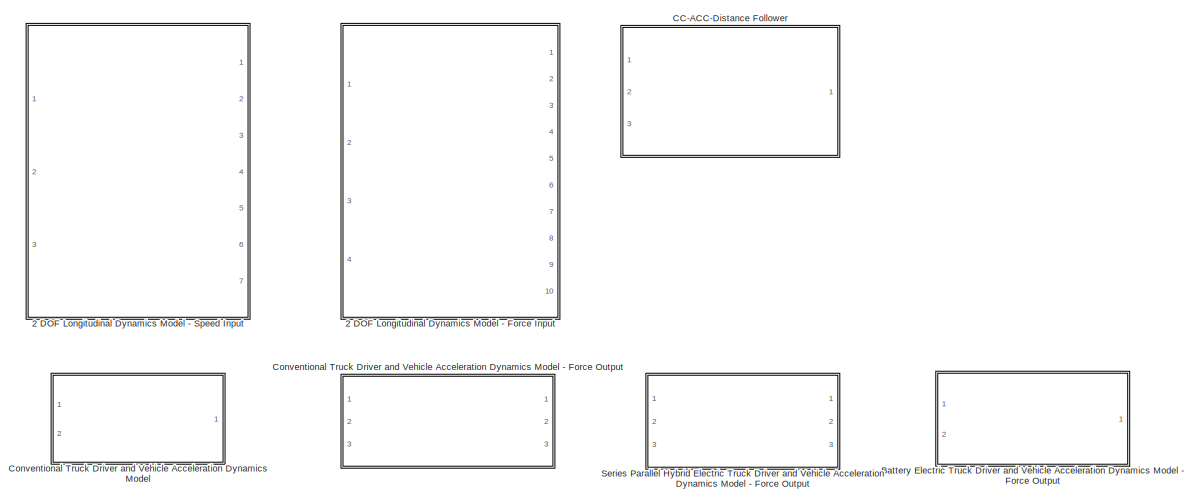
[diagram: root canvas - part 1/2, full width, top band]
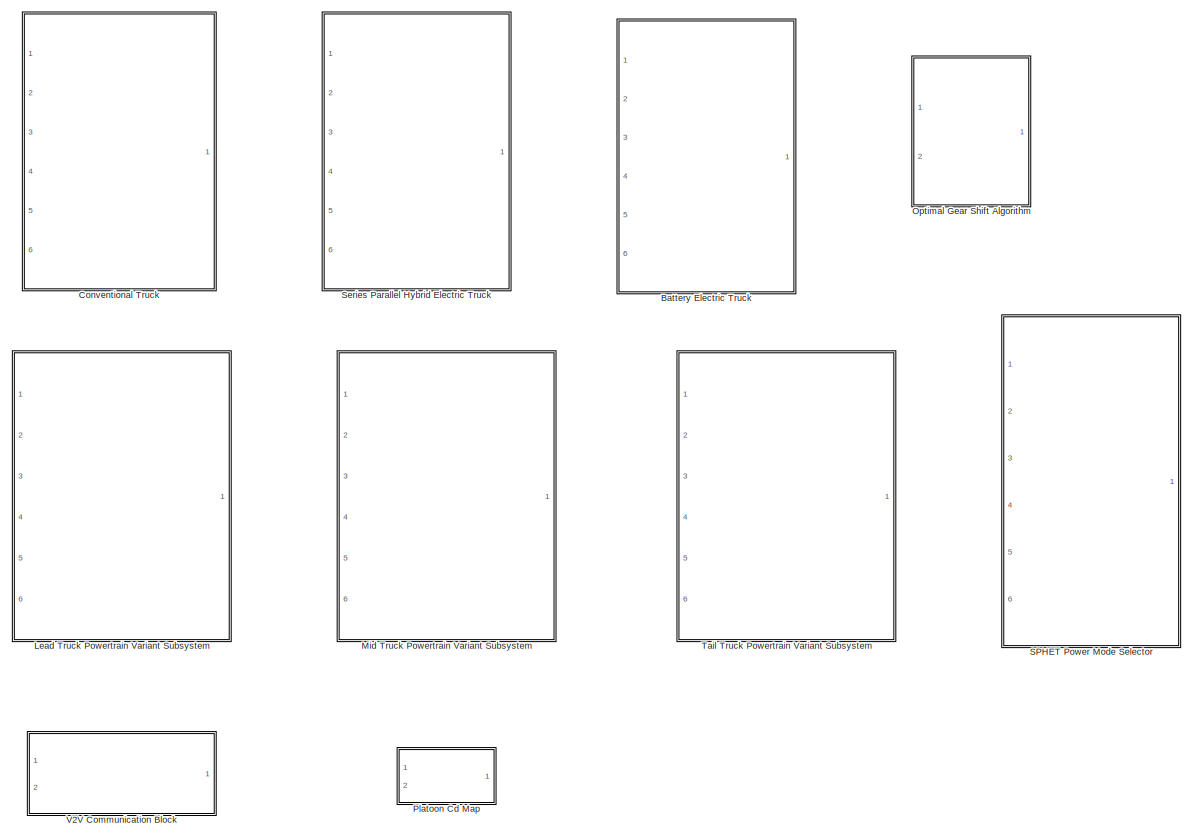
[diagram: root canvas - part 2/2, full width, bottom band]
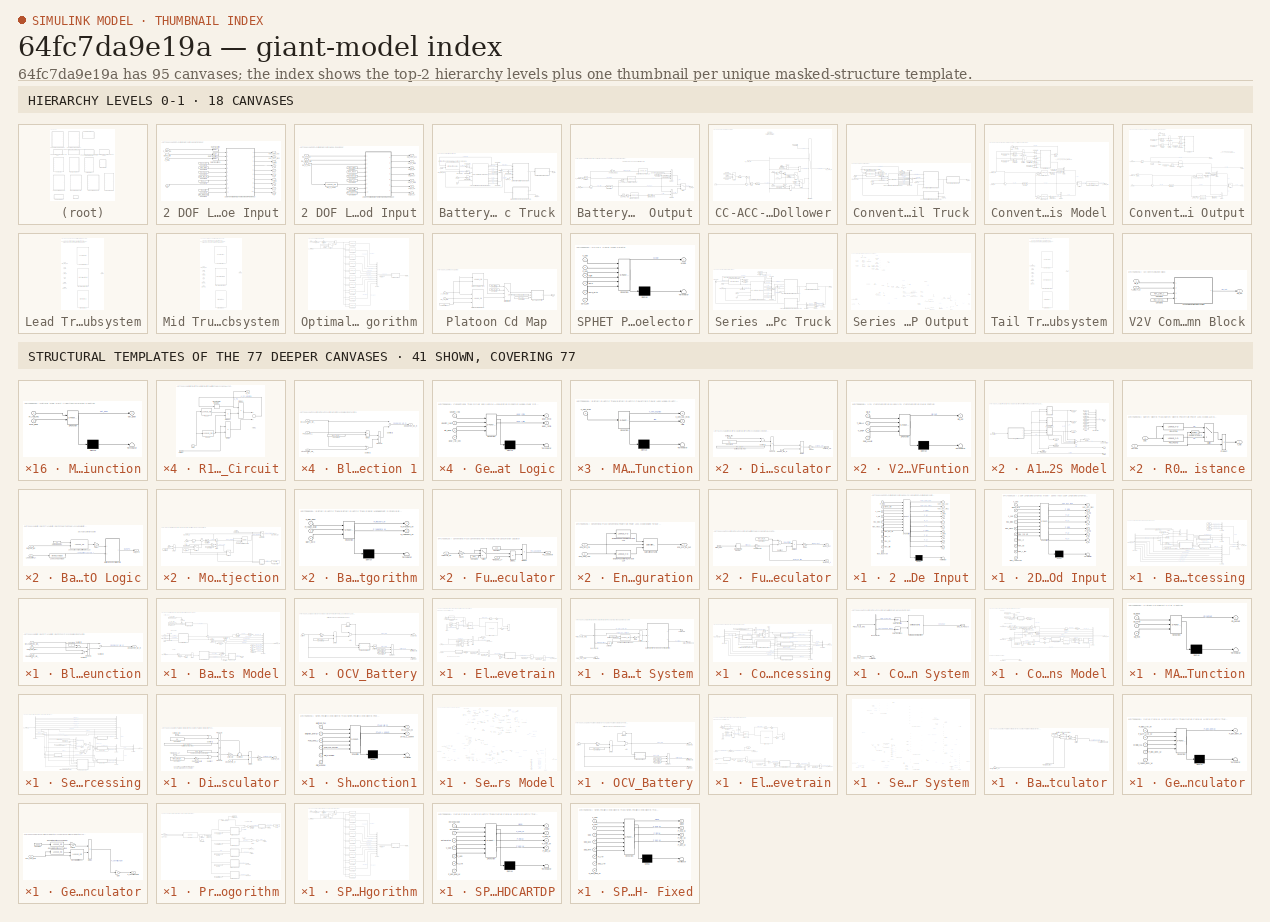
[diagram: thumbnail index - top-2 hierarchy levels (18 canvases) + 41 structural-template representatives of the remaining 77 canvases]
MODEL slx_64fc7da9e19a
KIND library
CONFIG AbsTol = auto
CONFIG EnableMultiTasking = off
CONFIG FixedStep = auto
CONFIG MaxStep = auto
CONFIG MinStep = auto
CONFIG RelTol = 1e-3
CONFIG SampleTimeConstraint = Unconstrained
CONFIG Solver = VariableStepAuto
CONFIG SolverName = VariableStepAuto
CONFIG StartTime = 0.0
CONFIG StopTime = 10.0
BLOCK [SubSystem] 2 DOF Longitudinal Dynamics Model - Force Input
  Ports = [4, 10]
  RequestExecContextInheritance = off
BLOCK [SubSystem] 2 DOF Longitudinal Dynamics Model - Force Input/2 DOF Longitudinal Dynamics Model - Force Input
  ErrorFcn = Stateflow.Translate.translate
  PermitHierarchicalResolution = ExplicitOnly
  Ports = [11, 10]
  RequestExecContextInheritance = off
  SFBlockType = MATLAB Function
  TreatAsAtomicUnit = on
BLOCK [Demux] 2 DOF Longitudinal Dynamics Model - Force Input/2 DOF Longitudinal Dynamics Model - Force Input/ Demux 
  Outputs = 1
  Ports = [1, 1]
BLOCK [S-Function] 2 DOF Longitudinal Dynamics Model - Force Input/2 DOF Longitudinal Dynamics Model - Force Input/ SFunction 
  EnableBusSupport = off
  FunctionName = sf_sfun
  PortCounts = [11 11]
  Ports = [11, 11]
  SFcnIsStateOwnerBlock = off
  SFunctionDeploymentMode = off
  Tag = Stateflow S-Function platooning_custom_blocks 2
BLOCK [Terminator] 2 DOF Longitudinal Dynamics Model - Force Input/2 DOF Longitudinal Dynamics Model - Force Input/ Terminator 
BLOCK [Outport] 2 DOF Longitudinal Dynamics Model - Force Input/2 DOF Longitudinal Dynamics Model - Force Input/F_ar
  IconDisplay = Port number
  Port = 4
BLOCK [Outport] 2 DOF Longitudinal Dynamics Model - Force Input/2 DOF Longitudinal Dynamics Model - Force Input/F_cr
  IconDisplay = Port number
  Port = 5
BLOCK [Outport] 2 DOF Longitudinal Dynamics Model - Force Input/2 DOF Longitudinal Dynamics Model - Force Input/F_prop
  IconDisplay = Port number
  Port = 3
BLOCK [Inport] 2 DOF Longitudinal Dynamics Model - Force Input/2 DOF Longitudinal Dynamics Model - Force Input/F_prop 
  IconDisplay = Port number
BLOCK [Outport] 2 DOF Longitudinal Dynamics Model - Force Input/2 DOF Longitudinal Dynamics Model - Force Input/F_rr
  IconDisplay = Port number
  Port = 6
BLOCK [Outport] 2 DOF Longitudinal Dynamics Model - Force Input/2 DOF Longitudinal Dynamics Model - Force Input/P_ar
  IconDisplay = Port number
  Port = 8
BLOCK [Outport] 2 DOF Longitudinal Dynamics Model - Force Input/2 DOF Longitudinal Dynamics Model - Force Input/P_cr
  IconDisplay = Port number
  Port = 9
BLOCK [Outport] 2 DOF Longitudinal Dynamics Model - Force Input/2 DOF Longitudinal Dynamics Model - Force Input/P_prop
  IconDisplay = Port number
  Port = 7
BLOCK [Outport] 2 DOF Longitudinal Dynamics Model - Force Input/2 DOF Longitudinal Dynamics Model - Force Input/P_rr
  IconDisplay = Port number
  Port = 10
BLOCK [Inport] 2 DOF Longitudinal Dynamics Model - Force Input/2 DOF Longitudinal Dynamics Model - Force Input/alpha_grd
  IconDisplay = Port number
  Port = 2
BLOCK [Inport] 2 DOF Longitudinal Dynamics Model - Force Input/2 DOF Longitudinal Dynamics Model - Force Input/msk_Af
  IconDisplay = Port number
  Port = 8
BLOCK [Inport] 2 DOF Longitudinal Dynamics Model - Force Input/2 DOF Longitudinal Dynamics Model - Force Input/msk_Cd
  IconDisplay = Port number
  Port = 9
BLOCK [Inport] 2 DOF Longitudinal Dynamics Model - Force Input/2 DOF Longitudinal Dynamics Model - Force Input/msk_mass
  IconDisplay = Port number
  Port = 6
BLOCK [Inport] 2 DOF Longitudinal Dynamics Model - Force Input/2 DOF Longitudinal Dynamics Model - Force Input/msk_r_tire
  IconDisplay = Port number
  Port = 10
BLOCK [Inport] 2 DOF Longitudinal Dynamics Model - Force Input/2 DOF Longitudinal Dynamics Model - Force Input/msk_rho_air
  IconDisplay = Port number
  Port = 7
BLOCK [Inport] 2 DOF Longitudinal Dynamics Model - Force Input/2 DOF Longitudinal Dynamics Model - Force Input/msk_roadType
  IconDisplay = Port number
  Port = 11
BLOCK [Inport] 2 DOF Longitudinal Dynamics Model - Force Input/2 DOF Longitudinal Dynamics Model - Force Input/msk_tstep
  IconDisplay = Port number
  Port = 5
BLOCK [Inport] 2 DOF Longitudinal Dynamics Model - Force Input/2 DOF Longitudinal Dynamics Model - Force Input/v_init
  IconDisplay = Port number
  Port = 4
BLOCK [Outport] 2 DOF Longitudinal Dynamics Model - Force Input/2 DOF Longitudinal Dynamics Model - Force Input/veh_acc_ms2
  IconDisplay = Port number
  Port = 2
BLOCK [Outport] 2 DOF Longitudinal Dynamics Model - Force Input/2 DOF Longitudinal Dynamics Model - Force Input/veh_spd_out
  IconDisplay = Port number
BLOCK [Inport] 2 DOF Longitudinal Dynamics Model - Force Input/2 DOF Longitudinal Dynamics Model - Force Input/x_sep
  IconDisplay = Port number
  Port = 3
BLOCK [Inport] 2 DOF Longitudinal Dynamics Model - Force Input/Cd
  IconDisplay = Port number
  Port = 4
BLOCK [Constant] 2 DOF Longitudinal Dynamics Model - Force Input/Constant2
  Value = msk_tstep
BLOCK [Constant] 2 DOF Longitudinal Dynamics Model - Force Input/Constant3
  Value = msk_mass
BLOCK [Constant] 2 DOF Longitudinal Dynamics Model - Force Input/Constant4
  Value = msk_rho_air
BLOCK [Constant] 2 DOF Longitudinal Dynamics Model - Force Input/Constant5
  Value = msk_Af
BLOCK [Constant] 2 DOF Longitudinal Dynamics Model - Force Input/Constant6
  Value = msk_r_tire
BLOCK [Constant] 2 DOF Longitudinal Dynamics Model - Force Input/Constant7
  Value = msk_roadType
BLOCK [Constant] 2 DOF Longitudinal Dynamics Model - Force Input/Constant8
  Value = msk_v_init
BLOCK [Outport] 2 DOF Longitudinal Dynamics Model - Force Input/F_ar
  IconDisplay = Port number
  Port = 4
BLOCK [Outport] 2 DOF Longitudinal Dynamics Model - Force Input/F_cr
  IconDisplay = Port number
  Port = 5
BLOCK [Outport] 2 DOF Longitudinal Dynamics Model - Force Input/F_prop
  IconDisplay = Port number
  Port = 3
BLOCK [Inport] 2 DOF Longitudinal Dynamics Model - Force Input/F_prop_inp
  IconDisplay = Port number
BLOCK [Outport] 2 DOF Longitudinal Dynamics Model - Force Input/F_rr
  IconDisplay = Port number
  Port = 6
BLOCK [Outport] 2 DOF Longitudinal Dynamics Model - Force Input/P_ar
  IconDisplay = Port number
  Port = 8
BLOCK [Outport] 2 DOF Longitudinal Dynamics Model - Force Input/P_cr
  IconDisplay = Port number
  Port = 9
BLOCK [Outport] 2 DOF Longitudinal Dynamics Model - Force Input/P_prop
  IconDisplay = Port number
  Port = 7
BLOCK [Outport] 2 DOF Longitudinal Dynamics Model - Force Input/P_rr
  IconDisplay = Port number
  Port = 10
BLOCK [RateTransition] 2 DOF Longitudinal Dynamics Model - Force Input/Rate Transition
  OutPortSampleTime = sim_t_step
BLOCK [RateTransition] 2 DOF Longitudinal Dynamics Model - Force Input/Rate Transition1
  OutPortSampleTime = sim_t_step
BLOCK [RateTransition] 2 DOF Longitudinal Dynamics Model - Force Input/Rate Transition2
  OutPortSampleTime = sim_t_step
BLOCK [Inport] 2 DOF Longitudinal Dynamics Model - Force Input/alpha_grd
  IconDisplay = Port number
  Port = 2
BLOCK [Outport] 2 DOF Longitudinal Dynamics Model - Force Input/veh_acc_ms2
  IconDisplay = Port number
  Port = 2
BLOCK [Outport] 2 DOF Longitudinal Dynamics Model - Force Input/veh_spd_out
  IconDisplay = Port number
BLOCK [Inport] 2 DOF Longitudinal Dynamics Model - Force Input/x_sep
  IconDisplay = Port number
  Port = 3
BLOCK [SubSystem] 2 DOF Longitudinal Dynamics Model - Speed Input
  Ports = [3, 7]
  RequestExecContextInheritance = off
BLOCK [SubSystem] 2 DOF Longitudinal Dynamics Model - Speed Input/2DOF Longitudinal Dynamics Model - Speed Input
  ErrorFcn = Stateflow.Translate.translate
  PermitHierarchicalResolution = ExplicitOnly
  Ports = [10, 7]
  RequestExecContextInheritance = off
  SFBlockType = MATLAB Function
  TreatAsAtomicUnit = on
BLOCK [Demux] 2 DOF Longitudinal Dynamics Model - Speed Input/2DOF Longitudinal Dynamics Model - Speed Input/ Demux 
  Outputs = 1
  Ports = [1, 1]
BLOCK [S-Function] 2 DOF Longitudinal Dynamics Model - Speed Input/2DOF Longitudinal Dynamics Model - Speed Input/ SFunction 
  EnableBusSupport = off
  FunctionName = sf_sfun
  PortCounts = [10 8]
  Ports = [10, 8]
  SFcnIsStateOwnerBlock = off
  SFunctionDeploymentMode = off
  Tag = Stateflow S-Function platooning_custom_blocks 3
BLOCK [Terminator] 2 DOF Longitudinal Dynamics Model - Speed Input/2DOF Longitudinal Dynamics Model - Speed Input/ Terminator 
BLOCK [Outport] 2 DOF Longitudinal Dynamics Model - Speed Input/2DOF Longitudinal Dynamics Model - Speed Input/F_ar
  IconDisplay = Port number
  Port = 3
BLOCK [Outport] 2 DOF Longitudinal Dynamics Model - Speed Input/2DOF Longitudinal Dynamics Model - Speed Input/F_cr
  IconDisplay = Port number
  Port = 4
BLOCK [Outport] 2 DOF Longitudinal Dynamics Model - Speed Input/2DOF Longitudinal Dynamics Model - Speed Input/F_prop
  IconDisplay = Port number
  Port = 2
BLOCK [Outport] 2 DOF Longitudinal Dynamics Model - Speed Input/2DOF Longitudinal Dynamics Model - Speed Input/P_ar
  IconDisplay = Port number
  Port = 6
BLOCK [Outport] 2 DOF Longitudinal Dynamics Model - Speed Input/2DOF Longitudinal Dynamics Model - Speed Input/P_cr
  IconDisplay = Port number
  Port = 7
BLOCK [Outport] 2 DOF Longitudinal Dynamics Model - Speed Input/2DOF Longitudinal Dynamics Model - Speed Input/P_prop
  IconDisplay = Port number
  Port = 5
BLOCK [Inport] 2 DOF Longitudinal Dynamics Model - Speed Input/2DOF Longitudinal Dynamics Model - Speed Input/alpha_grd
  IconDisplay = Port number
  Port = 2
BLOCK [Inport] 2 DOF Longitudinal Dynamics Model - Speed Input/2DOF Longitudinal Dynamics Model - Speed Input/msk_Af
  IconDisplay = Port number
  Port = 7
BLOCK [Inport] 2 DOF Longitudinal Dynamics Model - Speed Input/2DOF Longitudinal Dynamics Model - Speed Input/msk_Cd
  IconDisplay = Port number
  Port = 8
BLOCK [Inport] 2 DOF Longitudinal Dynamics Model - Speed Input/2DOF Longitudinal Dynamics Model - Speed Input/msk_mass
  IconDisplay = Port number
  Port = 5
BLOCK [Inport] 2 DOF Longitudinal Dynamics Model - Speed Input/2DOF Longitudinal Dynamics Model - Speed Input/msk_r_tire
  IconDisplay = Port number
  Port = 9
BLOCK [Inport] 2 DOF Longitudinal Dynamics Model - Speed Input/2DOF Longitudinal Dynamics Model - Speed Input/msk_rho_air
  IconDisplay = Port number
  Port = 6
BLOCK [Inport] 2 DOF Longitudinal Dynamics Model - Speed Input/2DOF Longitudinal Dynamics Model - Speed Input/msk_roadType
  IconDisplay = Port number
  Port = 10
BLOCK [Inport] 2 DOF Longitudinal Dynamics Model - Speed Input/2DOF Longitudinal Dynamics Model - Speed Input/msk_tstep
  IconDisplay = Port number
  Port = 4
BLOCK [Inport] 2 DOF Longitudinal Dynamics Model - Speed Input/2DOF Longitudinal Dynamics Model - Speed Input/v_spd
  IconDisplay = Port number
BLOCK [Outport] 2 DOF Longitudinal Dynamics Model - Speed Input/2DOF Longitudinal Dynamics Model - Speed Input/veh_acc_ms2
  IconDisplay = Port number
BLOCK [Inport] 2 DOF Longitudinal Dynamics Model - Speed Input/2DOF Longitudinal Dynamics Model - Speed Input/x_sep
  IconDisplay = Port number
  Port = 3
BLOCK [Lookup_n-D] 2 DOF Longitudinal Dynamics Model - Speed Input/Cd_v_xsep
  BreakpointsForDimension1 = msk_Cd_bpt
  InternalRulePriority = Speed
  NumberOfTableDimensions = 1
  Ports = [1, 1]
  RndMeth = Simplest
  Table = msk_Cd
BLOCK [Constant] 2 DOF Longitudinal Dynamics Model - Speed Input/Constant
  Value = msk_tstep
BLOCK [Constant] 2 DOF Longitudinal Dynamics Model - Speed Input/Constant1
  Value = msk_mass
BLOCK [Constant] 2 DOF Longitudinal Dynamics Model - Speed Input/Constant2
  Value = msk_rho_air
BLOCK [Constant] 2 DOF Longitudinal Dynamics Model - Speed Input/Constant3
  Value = msk_Af
BLOCK [Constant] 2 DOF Longitudinal Dynamics Model - Speed Input/Constant5
  Value = msk_r_tire
BLOCK [Constant] 2 DOF Longitudinal Dynamics Model - Speed Input/Constant6
  Value = msk_roadType
BLOCK [Inport] 2 DOF Longitudinal Dynamics Model - Speed Input/inp_alpha_grd
  IconDisplay = Port number
  Port = 2
BLOCK [Inport] 2 DOF Longitudinal Dynamics Model - Speed Input/inp_v_spd
  IconDisplay = Port number
BLOCK [Inport] 2 DOF Longitudinal Dynamics Model - Speed Input/inp_x_sep
  IconDisplay = Port number
  Port = 3
BLOCK [Outport] 2 DOF Longitudinal Dynamics Model - Speed Input/out_F_ar
  IconDisplay = Port number
  Port = 3
BLOCK [Outport] 2 DOF Longitudinal Dynamics Model - Speed Input/out_F_cr
  IconDisplay = Port number
  Port = 4
BLOCK [Outport] 2 DOF Longitudinal Dynamics Model - Speed Input/out_F_prop
  IconDisplay = Port number
  Port = 2
BLOCK [Outport] 2 DOF Longitudinal Dynamics Model - Speed Input/out_P_ar
  IconDisplay = Port number
  Port = 6
BLOCK [Outport] 2 DOF Longitudinal Dynamics Model - Speed Input/out_P_cr
  IconDisplay = Port number
  Port = 7
BLOCK [Outport] 2 DOF Longitudinal Dynamics Model - Speed Input/out_P_prop
  IconDisplay = Port number
  Port = 5
BLOCK [Outport] 2 DOF Longitudinal Dynamics Model - Speed Input/out_veh_acc
  IconDisplay = Port number
BLOCK [SubSystem] Battery Electric Truck
  Ports = [6, 1]
  RequestExecContextInheritance = off
  VariantControl = TT.Type == 3
BLOCK [SubSystem] Battery Electric Truck Driver and Vehicle Acceleration Dynamics Model - Force Output
  Ports = [2, 1]
  RequestExecContextInheritance = off
BLOCK [Saturate] Battery Electric Truck Driver and Vehicle Acceleration Dynamics Model - Force Output/Acc_Pedal
  InputPortMap = u0
  LowerLimit = 0
  Ports = [1, 1]
  UpperLimit = 1
BLOCK [Lookup_n-D] Battery Electric Truck Driver and Vehicle Acceleration Dynamics Model - Force Output/Acceleration Torque LUT
  BreakpointsForDimension1 = msk_acc_spdbpt
  BreakpointsForDimension2 = msk_acc_pdlbpt
  InternalRulePriority = Speed
  Ports = [2, 1]
  RndMeth = Simplest
  Table = msk_acc_trqmap
BLOCK [Sum] Battery Electric Truck Driver and Vehicle Acceleration Dynamics Model - Force Output/Add
  IconShape = round
  InputSameDT = off
  Inputs = -+|
  OutDataTypeStr = Inherit: Inherit via internal rule
  Ports = [2, 1]
  SaturateOnIntegerOverflow = off
BLOCK [Lookup_n-D] Battery Electric Truck Driver and Vehicle Acceleration Dynamics Model - Force Output/Braking Torque LUT
  BreakpointsForDimension1 = msk_brk_pdlbpt
  InternalRulePriority = Speed
  NumberOfTableDimensions = 1
  Ports = [1, 1]
  RndMeth = Simplest
  Table = msk_brk_trq * -1
BLOCK [Gain] Battery Electric Truck Driver and Vehicle Acceleration Dynamics Model - Force Output/Braking Wheels
  Gain = msk_brk_whl_num
  OutDataTypeStr = Inherit: Inherit via internal rule
  ParamDataTypeStr = Inherit: Inherit via internal rule
  SaturateOnIntegerOverflow = off
BLOCK [Saturate] Battery Electric Truck Driver and Vehicle Acceleration Dynamics Model - Force Output/Brk_Pedal
  InputPortMap = u0
  LowerLimit = -1
  Ports = [1, 1]
  UpperLimit = 0
BLOCK [Constant] Battery Electric Truck Driver and Vehicle Acceleration Dynamics Model - Force Output/Constant
  Value = msk_gear_ratio
BLOCK [Constant] Battery Electric Truck Driver and Vehicle Acceleration Dynamics Model - Force Output/Constant1
  Value = 1/msk_tire_radius
BLOCK [Constant] Battery Electric Truck Driver and Vehicle Acceleration Dynamics Model - Force Output/Constant2
  Value = msk_num_motors
BLOCK [Outport] Battery Electric Truck Driver and Vehicle Acceleration Dynamics Model - Force Output/F_out_N
  IconDisplay = Port number
BLOCK [Gain] Battery Electric Truck Driver and Vehicle Acceleration Dynamics Model - Force Output/Gain
  Gain = -1
  OutDataTypeStr = Inherit: Inherit via internal rule
  ParamDataTypeStr = Inherit: Inherit via internal rule
  SaturateOnIntegerOverflow = off
BLOCK [Lookup_n-D] Battery Electric Truck Driver and Vehicle Acceleration Dynamics Model - Force Output/Motor Continuous Torque LUT
  BreakpointsForDimension1 = msk_spd_bpt
  InternalRulePriority = Speed
  NumberOfTableDimensions = 1
  Ports = [1, 1]
  RndMeth = Simplest
  Table = msk_mtr_cont_trq
BLOCK [Reference] Battery Electric Truck Driver and Vehicle Acceleration Dynamics Model - Force Output/PID Controller  REF=simulink/Continuous/PID Controller
  Ports = [1, 1]
  SourceBlock = simulink/Continuous/PID Controller
  SourceProductBaseCode = SL
  SourceProductName = Simulink
  SourceType = PID 1dof
BLOCK [Product] Battery Electric Truck Driver and Vehicle Acceleration Dynamics Model - Force Output/Product
  InputSameDT = off
  Inputs = 5
  OutDataTypeStr = Inherit: Inherit via internal rule
  Ports = [5, 1]
  RndMeth = Floor
  SaturateOnIntegerOverflow = off
BLOCK [Product] Battery Electric Truck Driver and Vehicle Acceleration Dynamics Model - Force Output/Product1
  InputSameDT = off
  OutDataTypeStr = Inherit: Inherit via internal rule
  Ports = [2, 1]
  RndMeth = Floor
  SaturateOnIntegerOverflow = off
BLOCK [Switch] Battery Electric Truck Driver and Vehicle Acceleration Dynamics Model - Force Output/Switch
  Criteria = u2 > Threshold
  InputSameDT = off
  SaturateOnIntegerOverflow = off
BLOCK [UnitDelay] Battery Electric Truck Driver and Vehicle Acceleration Dynamics Model - Force Output/Unit Delay1
  InputProcessing = Elements as channels (sample based)
  SampleTime = -1
BLOCK [Inport] Battery Electric Truck Driver and Vehicle Acceleration Dynamics Model - Force Output/v_spd_mps
  IconDisplay = Port number
  Port = 2
BLOCK [Inport] Battery Electric Truck Driver and Vehicle Acceleration Dynamics Model - Force Output/v_spdfdbk_mps
  IconDisplay = Port number
BLOCK [Gain] Battery Electric Truck Driver and Vehicle Acceleration Dynamics Model - Force Output/vehSpd2motSpd
  Gain = (msk_gear_ratio/msk_tire_radius)*9.549
  OutDataTypeStr = Inherit: Inherit via internal rule
  ParamDataTypeStr = Inherit: Inherit via internal rule
  SaturateOnIntegerOverflow = off
BLOCK [Reference] Battery Electric Truck/2 DOF Longitudinal Dynamics Model - Force Input  REF=$bdroot/2 DOF Longitudinal Dynamics Model - Force Input
  Ports = [4, 10]
  SourceBlock = $bdroot/2 DOF Longitudinal Dynamics Model - Force Input
BLOCK [SubSystem] Battery Electric Truck/Battery Electric Post-Processing
  Ports = [1, 1]
  RequestExecContextInheritance = off
BLOCK [Constant] Battery Electric Truck/Battery Electric Post-Processing/Battery Energy Max
  Value = msk_batt_Ns * msk_batt_Np * msk_batt_Nmod * msk_cell_Vnom * msk_cell_Q_Ah
BLOCK [SubSystem] Battery Electric Truck/Battery Electric Post-Processing/Blending Function
  Ports = [3, 1]
  RequestExecContextInheritance = off
BLOCK [Inport] Battery Electric Truck/Battery Electric Post-Processing/Blending Function/<Batt_SOC_frac>
  IconDisplay = Port number
  Port = 2
BLOCK [Constant] Battery Electric Truck/Battery Electric Post-Processing/Blending Function/Constant1
BLOCK [Product] Battery Electric Truck/Battery Electric Post-Processing/Blending Function/Product1
  InputSameDT = off
  OutDataTypeStr = Inherit: Inherit via internal rule
  Ports = [2, 1]
  RndMeth = Floor
  SaturateOnIntegerOverflow = off
BLOCK [Sum] Battery Electric Truck/Battery Electric Post-Processing/Blending Function/Subtract1
  InputSameDT = off
  Inputs = +-
  OutDataTypeStr = Inherit: Inherit via internal rule
  Ports = [2, 1]
  SaturateOnIntegerOverflow = off
BLOCK [Sum] Battery Electric Truck/Battery Electric Post-Processing/Blending Function/Subtract2
  InputSameDT = off
  Inputs = +-
  OutDataTypeStr = Inherit: Inherit via internal rule
  Ports = [2, 1]
  SaturateOnIntegerOverflow = off
BLOCK [Sum] Battery Electric Truck/Battery Electric Post-Processing/Blending Function/Subtract3
  InputSameDT = off
  Inputs = +-
  OutDataTypeStr = Inherit: Inherit via internal rule
  Ports = [2, 1]
  SaturateOnIntegerOverflow = off
BLOCK [Outport] Battery Electric Truck/Battery Electric Post-Processing/Blending Function/blndElecEC_Wh_m
  IconDisplay = Port number
BLOCK [Inport] Battery Electric Truck/Battery Electric Post-Processing/Blending Function/runAvgElecEC_Wh_m
  IconDisplay = Port number
BLOCK [Inport] Battery Electric Truck/Battery Electric Post-Processing/Blending Function/stAvgElecEC_Wh_m
  IconDisplay = Port number
  Port = 3
BLOCK [BusCreator] Battery Electric Truck/Battery Electric Post-Processing/Bus Creator
  DisplayOption = bar
  InheritFromInputs = on
  Inputs = 3
  Ports = [3, 1]
BLOCK [BusCreator] Battery Electric Truck/Battery Electric Post-Processing/Bus Creator1
  DisplayOption = bar
  InheritFromInputs = on
  Inputs = 8
  Ports = [8, 1]
BLOCK [BusCreator] Battery Electric Truck/Battery Electric Post-Processing/Bus Creator2
  DisplayOption = bar
  InheritFromInputs = on
  Inputs = 3
  Ports = [3, 1]
BLOCK [BusCreator] Battery Electric Truck/Battery Electric Post-Processing/Bus Creator3
  DisplayOption = bar
  InheritFromInputs = on
  Inputs = 3
  Ports = [3, 1]
BLOCK [BusSelector] Battery Electric Truck/Battery Electric Post-Processing/Bus Selector
  OutputAsBus = off
  OutputSignals = Batt_SOC_frac,DistTrvld_m,Init_Pos_m,act_VehSpd_mps,Batt_Load_Voltage,Batt_Current_Ampere,Batt_EPO_Flag,P_elec_dem_W
  Ports = [1, 8]
BLOCK [Constant] Battery Electric Truck/Battery Electric Post-Processing/Constant
  Value = msk_batt_soc_init
BLOCK [Constant] Battery Electric Truck/Battery Electric Post-Processing/Constant1
  Value = NaN
BLOCK [Constant] Battery Electric Truck/Battery Electric Post-Processing/Constant2
  Value = NaN
BLOCK [Constant] Battery Electric Truck/Battery Electric Post-Processing/Constant3
  Value = NaN
BLOCK [SubSystem] Battery Electric Truck/Battery Electric Post-Processing/Distance to Empty Calculator
  Ports = [2, 1]
  RequestExecContextInheritance = off
BLOCK [Constant] Battery Electric Truck/Battery Electric Post-Processing/Distance to Empty Calculator/Battery Energy Max
  Value = msk_batt_Ns * msk_batt_Np * msk_batt_Nmod * msk_cell_Vnom * msk_cell_Q_Ah
BLOCK [Constant] Battery Electric Truck/Battery Electric Post-Processing/Distance to Empty Calculator/Constant1
  Value = 0.1
BLOCK [Product] Battery Electric Truck/Battery Electric Post-Processing/Distance to Empty Calculator/Divide
  InputSameDT = off
  Inputs = */
  OutDataTypeStr = Inherit: Inherit via internal rule
  Ports = [2, 1]
  RndMeth = Floor
  SaturateOnIntegerOverflow = off
BLOCK [Product] Battery Electric Truck/Battery Electric Post-Processing/Distance to Empty Calculator/Product3
  InputSameDT = off
  OutDataTypeStr = Inherit: Inherit via internal rule
  Ports = [2, 1]
  RndMeth = Floor
  SaturateOnIntegerOverflow = off
BLOCK [Sum] Battery Electric Truck/Battery Electric Post-Processing/Distance to Empty Calculator/Subtract1
  InputSameDT = off
  Inputs = +-
  OutDataTypeStr = Inherit: Inherit via internal rule
  Ports = [2, 1]
  SaturateOnIntegerOverflow = off
BLOCK [Inport] Battery Electric Truck/Battery Electric Post-Processing/Distance to Empty Calculator/battSOC_frac
  IconDisplay = Port number
  Port = 2
BLOCK [Inport] Battery Electric Truck/Battery Electric Post-Processing/Distance to Empty Calculator/blndEC_Wh_m
  IconDisplay = Port number
BLOCK [Outport] Battery Electric Truck/Battery Electric Post-Processing/Distance to Empty Calculator/estDTE_km
  IconDisplay = Port number
BLOCK [Gain] Battery Electric Truck/Battery Electric Post-Processing/Distance to Empty Calculator/m2km
  Gain = 0.001
  OutDataTypeStr = Inherit: Inherit via internal rule
  ParamDataTypeStr = Inherit: Inherit via internal rule
  SaturateOnIntegerOverflow = off
BLOCK [Product] Battery Electric Truck/Battery Electric Post-Processing/Divide
  InputSameDT = off
  Inputs = */
  OutDataTypeStr = Inherit: Inherit via internal rule
  Ports = [2, 1]
  RndMeth = Floor
  SaturateOnIntegerOverflow = off
BLOCK [Product] Battery Electric Truck/Battery Electric Post-Processing/Product
  InputSameDT = off
  OutDataTypeStr = Inherit: Inherit via internal rule
  Ports = [2, 1]
  RndMeth = Floor
  SaturateOnIntegerOverflow = off
BLOCK [Inport] Battery Electric Truck/Battery Electric Post-Processing/PropSys_to_EMC
  IconDisplay = Port number
BLOCK [RateTransition] Battery Electric Truck/Battery Electric Post-Processing/Rate Transition
  OutPortSampleTime = sim_t_step
BLOCK [RateTransition] Battery Electric Truck/Battery Electric Post-Processing/Rate Transition1
  OutPortSampleTime = sim_t_step
BLOCK [SubSystem] Battery Electric Truck/Battery Electric Post-Processing/Short Term Averaging Function
  ErrorFcn = Stateflow.Translate.translate
  PermitHierarchicalResolution = ExplicitOnly
  Ports = [4, 1]
  RequestExecContextInheritance = off
  SFBlockType = MATLAB Function
  TreatAsAtomicUnit = on
BLOCK [Demux] Battery Electric Truck/Battery Electric Post-Processing/Short Term Averaging Function/ Demux 
  Outputs = 1
  Ports = [1, 1]
BLOCK [S-Function] Battery Electric Truck/Battery Electric Post-Processing/Short Term Averaging Function/ SFunction 
  EnableBusSupport = off
  FunctionName = sf_sfun
  PortCounts = [4 2]
  Ports = [4, 2]
  SFcnIsStateOwnerBlock = off
  SFunctionDeploymentMode = off
  Tag = Stateflow S-Function platooning_custom_blocks 14
BLOCK [Terminator] Battery Electric Truck/Battery Electric Post-Processing/Short Term Averaging Function/ Terminator 
BLOCK [Inport] Battery Electric Truck/Battery Electric Post-Processing/Short Term Averaging Function/Batt_Max_Energy
  IconDisplay = Port number
  Port = 3
BLOCK [Inport] Battery Electric Truck/Battery Electric Post-Processing/Short Term Averaging Function/Batt_SOC_frac
  IconDisplay = Port number
BLOCK [Inport] Battery Electric Truck/Battery Electric Post-Processing/Short Term Averaging Function/Dist_Travelled
  IconDisplay = Port number
  Port = 2
BLOCK [Inport] Battery Electric Truck/Battery Electric Post-Processing/Short Term Averaging Function/Dist_Window
  IconDisplay = Port number
  Port = 4
BLOCK [Outport] Battery Electric Truck/Battery Electric Post-Processing/Short Term Averaging Function/STAvg_Wh_m
  IconDisplay = Port number
BLOCK [Constant] Battery Electric Truck/Battery Electric Post-Processing/Short term average distance window - meters
  Value = msk_distwin
BLOCK [Sum] Battery Electric Truck/Battery Electric Post-Processing/Subtract
  InputSameDT = off
  Inputs = +-
  OutDataTypeStr = Inherit: Inherit via internal rule
  Ports = [2, 1]
  SaturateOnIntegerOverflow = off
BLOCK [Sum] Battery Electric Truck/Battery Electric Post-Processing/Subtract1
  InputSameDT = off
  Inputs = +-
  OutDataTypeStr = Inherit: Inherit via internal rule
  Ports = [2, 1]
  SaturateOnIntegerOverflow = off
BLOCK [Outport] Battery Electric Truck/Battery Electric Post-Processing/To_PCL_BUS
  IconDisplay = Port number
BLOCK [SubSystem] Battery Electric Truck/Battery Electric Powertrain Power Loss Model
  Ports = [5, 1]
  RequestExecContextInheritance = off
BLOCK [SubSystem] Battery Electric Truck/Battery Electric Powertrain Power Loss Model/A123 ESS Model
  Ports = [1, 4]
  RequestExecContextInheritance = off
BLOCK [Sum] Battery Electric Truck/Battery Electric Powertrain Power Loss Model/A123 ESS Model/Add
  InputSameDT = off
  Inputs = ++++
  OutDataTypeStr = Inherit: Inherit via internal rule
  Ports = [4, 1]
  SaturateOnIntegerOverflow = off
BLOCK [BusCreator] Battery Electric Truck/Battery Electric Powertrain Power Loss Model/A123 ESS Model/Bus Creator
  DisplayOption = bar
  InheritFromInputs = on
  Inputs = 7
  Ports = [7, 1]
BLOCK [Outport] Battery Electric Truck/Battery Electric Powertrain Power Loss Model/A123 ESS Model/Current
  IconDisplay = Port number
  Port = 4
BLOCK [From] Battery Electric Truck/Battery Electric Powertrain Power Loss Model/A123 ESS Model/From
  GotoTag = U_PA
BLOCK [From] Battery Electric Truck/Battery Electric Powertrain Power Loss Model/A123 ESS Model/From1
  GotoTag = U_PC
BLOCK [From] Battery Electric Truck/Battery Electric Powertrain Power Loss Model/A123 ESS Model/From2
  GotoTag = V_R0
BLOCK [From] Battery Electric Truck/Battery Electric Powertrain Power Loss Model/A123 ESS Model/From3
  GotoTag = Em
BLOCK [From] Battery Electric Truck/Battery Electric Powertrain Power Loss Model/A123 ESS Model/From4
  GotoTag = V_L
BLOCK [From] Battery Electric Truck/Battery Electric Powertrain Power Loss Model/A123 ESS Model/From5
  GotoTag = SOC
BLOCK [From] Battery Electric Truck/Battery Electric Powertrain Power Loss Model/A123 ESS Model/From6
  GotoTag = current
BLOCK [Goto] Battery Electric Truck/Battery Electric Powertrain Power Loss Model/A123 ESS Model/Goto
  GotoTag = U_PA
BLOCK [Goto] Battery Electric Truck/Battery Electric Powertrain Power Loss Model/A123 ESS Model/Goto1
  GotoTag = U_PC
BLOCK [Goto] Battery Electric Truck/Battery Electric Powertrain Power Loss Model/A123 ESS Model/Goto2
  GotoTag = V_R0
BLOCK [Goto] Battery Electric Truck/Battery Electric Powertrain Power Loss Model/A123 ESS Model/Goto3
  GotoTag = V_L
BLOCK [Goto] Battery Electric Truck/Battery Electric Powertrain Power Loss Model/A123 ESS Model/Goto4
  GotoTag = Em
BLOCK [Goto] Battery Electric Truck/Battery Electric Powertrain Power Loss Model/A123 ESS Model/Goto5
  GotoTag = SOC
BLOCK [Goto] Battery Electric Truck/Battery Electric Powertrain Power Loss Model/A123 ESS Model/Goto6
  GotoTag = current
BLOCK [Outport] Battery Electric Truck/Battery Electric Powertrain Power Loss Model/A123 ESS Model/Info
  IconDisplay = Port number
BLOCK [Inport] Battery Electric Truck/Battery Electric Powertrain Power Loss Model/A123 ESS Model/Inp_Current
  IconDisplay = Port number
BLOCK [Outport] Battery Electric Truck/Battery Electric Powertrain Power Loss Model/A123 ESS Model/Load_Voltage
  IconDisplay = Port number
  Port = 2
BLOCK [SubSystem] Battery Electric Truck/Battery Electric Powertrain Power Loss Model/A123 ESS Model/OCV_Battery
  Ports = [1, 3]
  RequestExecContextInheritance = off
BLOCK [Sum] Battery Electric Truck/Battery Electric Powertrain Power Loss Model/A123 ESS Model/OCV_Battery/Add
  InputSameDT = off
  OutDataTypeStr = Inherit: Inherit via internal rule
  Ports = [2, 1]
  SaturateOnIntegerOverflow = off
BLOCK [Outport] Battery Electric Truck/Battery Electric Powertrain Power Loss Model/A123 ESS Model/OCV_Battery/BattVolt_calc
  IconDisplay = Port number
  Port = 3
BLOCK [Constant] Battery Electric Truck/Battery Electric Powertrain Power Loss Model/A123 ESS Model/OCV_Battery/Constant
  Value = msk_batt_Ns
BLOCK [Constant] Battery Electric Truck/Battery Electric Powertrain Power Loss Model/A123 ESS Model/OCV_Battery/Constant1
  Value = msk_cell_Q_Ah * msk_batt_Np
BLOCK [Constant] Battery Electric Truck/Battery Electric Powertrain Power Loss Model/A123 ESS Model/OCV_Battery/Constant2
  Value = msk_batt_Nmod
BLOCK [Inport] Battery Electric Truck/Battery Electric Powertrain Power Loss Model/A123 ESS Model/OCV_Battery/Current
  IconDisplay = Port number
BLOCK [Outport] Battery Electric Truck/Battery Electric Powertrain Power Loss Model/A123 ESS Model/OCV_Battery/Current_pt
  IconDisplay = Port number
  Port = 2
BLOCK [Product] Battery Electric Truck/Battery Electric Powertrain Power Loss Model/A123 ESS Model/OCV_Battery/Divide
  InputSameDT = off
  Inputs = */
  OutDataTypeStr = Inherit: Inherit via internal rule
  Ports = [2, 1]
  RndMeth = Floor
  SaturateOnIntegerOverflow = off
BLOCK [Gain] Battery Electric Truck/Battery Electric Powertrain Power Loss Model/A123 ESS Model/OCV_Battery/Gain
  Gain = msk_t_step/3600
  OutDataTypeStr = Inherit: Inherit via internal rule
  ParamDataTypeStr = Inherit: Inherit via internal rule
  SaturateOnIntegerOverflow = off
BLOCK [Memory] Battery Electric Truck/Battery Electric Powertrain Power Loss Model/A123 ESS Model/OCV_Battery/Memory
  InheritSampleTime = on
  InitialCondition = msk_batt_soc_init
  LinearizeAsDelay = on
BLOCK [SubSystem] Battery Electric Truck/Battery Electric Powertrain Power Loss Model/A123 ESS Model/OCV_Battery/OCV Function
  ErrorFcn = Stateflow.Translate.translate
  PermitHierarchicalResolution = ExplicitOnly
  Ports = [2, 1]
  RequestExecContextInheritance = off
  SFBlockType = MATLAB Function
  TreatAsAtomicUnit = on
BLOCK [Demux] Battery Electric Truck/Battery Electric Powertrain Power Loss Model/A123 ESS Model/OCV_Battery/OCV Function/ Demux 
  Outputs = 1
  Ports = [1, 1]
BLOCK [S-Function] Battery Electric Truck/Battery Electric Powertrain Power Loss Model/A123 ESS Model/OCV_Battery/OCV Function/ SFunction 
  EnableBusSupport = off
  FunctionName = sf_sfun
  PortCounts = [2 2]
  Ports = [2, 2]
  SFcnIsStateOwnerBlock = off
  SFunctionDeploymentMode = off
  Tag = Stateflow S-Function platooning_custom_blocks 7
BLOCK [Terminator] Battery Electric Truck/Battery Electric Powertrain Power Loss Model/A123 ESS Model/OCV_Battery/OCV Function/ Terminator 
BLOCK [Inport] Battery Electric Truck/Battery Electric Powertrain Power Loss Model/A123 ESS Model/OCV_Battery/OCV Function/current
  IconDisplay = Port number
  Port = 2
BLOCK [Outport] Battery Electric Truck/Battery Electric Powertrain Power Loss Model/A123 ESS Model/OCV_Battery/OCV Function/ocv
  IconDisplay = Port number
BLOCK [Inport] Battery Electric Truck/Battery Electric Powertrain Power Loss Model/A123 ESS Model/OCV_Battery/OCV Function/soc
  IconDisplay = Port number
BLOCK [Product] Battery Electric Truck/Battery Electric Powertrain Power Loss Model/A123 ESS Model/OCV_Battery/Product
  InputSameDT = off
  Inputs = 3
  OutDataTypeStr = Inherit: Inherit via internal rule
  Ports = [3, 1]
  RndMeth = Floor
  SaturateOnIntegerOverflow = off
BLOCK [Outport] Battery Electric Truck/Battery Electric Powertrain Power Loss Model/A123 ESS Model/OCV_Battery/SOC_calc
  IconDisplay = Port number
BLOCK [UnitDelay] Battery Electric Truck/Battery Electric Powertrain Power Loss Model/A123 ESS Model/OCV_Battery/Unit Delay
  InputProcessing = Elements as channels (sample based)
  SampleTime = -1
BLOCK [SubSystem] Battery Electric Truck/Battery Electric Powertrain Power Loss Model/A123 ESS Model/R0 Resistance
  Ports = [2, 1]
  RequestExecContextInheritance = off
BLOCK [Reference] Battery Electric Truck/Battery Electric Powertrain Power Loss Model/A123 ESS Model/R0 Resistance/Compare To Zero  REF=simulink/Logic and Bit
Operations/Compare
To Zero
  Ports = [1, 1]
  SourceBlock = simulink/Logic and Bit\nOperations/Compare\nTo Zero
  SourceProductBaseCode = SL
  SourceProductName = Simulink
  SourceType = Compare To Zero
BLOCK [Inport] Battery Electric Truck/Battery Electric Powertrain Power Loss Model/A123 ESS Model/R0 Resistance/Current
  IconDisplay = Port number
  Port = 2
BLOCK [Product] Battery Electric Truck/Battery Electric Powertrain Power Loss Model/A123 ESS Model/R0 Resistance/Product
  InputSameDT = off
  OutDataTypeStr = Inherit: Inherit via internal rule
  Ports = [2, 1]
  RndMeth = Floor
  SaturateOnIntegerOverflow = off
BLOCK [Lookup_n-D] Battery Electric Truck/Battery Electric Powertrain Power Loss Model/A123 ESS Model/R0 Resistance/R0 LUT Chg
  BreakpointsForDimension1 = msk_batt_soc_bpt
  InternalRulePriority = Speed
  NumberOfTableDimensions = 1
  Ports = [1, 1]
  RndMeth = Simplest
  Table = msk_batt_R0 * 0.05
BLOCK [Lookup_n-D] Battery Electric Truck/Battery Electric Powertrain Power Loss Model/A123 ESS Model/R0 Resistance/R0 LUT Dchg
  BreakpointsForDimension1 = msk_batt_soc_bpt
  InternalRulePriority = Speed
  NumberOfTableDimensions = 1
  Ports = [1, 1]
  RndMeth = Simplest
  Table = msk_batt_R0 * 0.25
BLOCK [Inport] Battery Electric Truck/Battery Electric Powertrain Power Loss Model/A123 ESS Model/R0 Resistance/SOC
  IconDisplay = Port number
BLOCK [Switch] Battery Electric Truck/Battery Electric Powertrain Power Loss Model/A123 ESS Model/R0 Resistance/Switch
  Criteria = u2 > Threshold
  InputSameDT = off
  SaturateOnIntegerOverflow = off
BLOCK [Outport] Battery Electric Truck/Battery Electric Powertrain Power Loss Model/A123 ESS Model/R0 Resistance/V_R0
  IconDisplay = Port number
BLOCK [SubSystem] Battery Electric Truck/Battery Electric Powertrain Power Loss Model/A123 ESS Model/R1_C1 Circuit
  Ports = [2, 1]
  RequestExecContextInheritance = off
BLOCK [Sum] Battery Electric Truck/Battery Electric Powertrain Power Loss Model/A123 ESS Model/R1_C1 Circuit/Add1
  InputSameDT = off
  OutDataTypeStr = Inherit: Inherit via internal rule
  Ports = [2, 1]
  SaturateOnIntegerOverflow = off
BLOCK [Lookup_n-D] Battery Electric Truck/Battery Electric Powertrain Power Loss Model/A123 ESS Model/R1_C1 Circuit/C1 LUT
  BreakpointsForDimension1 = msk_batt_soc_bpt
  InternalRulePriority = Speed
  NumberOfTableDimensions = 1
  Ports = [1, 1]
  RndMeth = Simplest
  Table = msk_batt_C1
BLOCK [Inport] Battery Electric Truck/Battery Electric Powertrain Power Loss Model/A123 ESS Model/R1_C1 Circuit/Current
  IconDisplay = Port number
  Port = 2
BLOCK [DiscreteIntegrator] Battery Electric Truck/Battery Electric Powertrain Power Loss Model/A123 ESS Model/R1_C1 Circuit/Discrete-Time Integrator
  ICPrevOutput = DiscIntNeverNeededParam
  ICPrevScaledInput = DiscIntNeverNeededParam
  InitialConditionSetting = Auto
  Ports = [1, 1]
  SampleTime = -1
BLOCK [Product] Battery Electric Truck/Battery Electric Powertrain Power Loss Model/A123 ESS Model/R1_C1 Circuit/Divide
  InputSameDT = off
  Inputs = */
  OutDataTypeStr = Inherit: Inherit via internal rule
  Ports = [2, 1]
  RndMeth = Floor
  SaturateOnIntegerOverflow = off
BLOCK [Product] Battery Electric Truck/Battery Electric Powertrain Power Loss Model/A123 ESS Model/R1_C1 Circuit/Divide1
  InputSameDT = off
  Inputs = */
  OutDataTypeStr = Inherit: Inherit via internal rule
  Ports = [2, 1]
  RndMeth = Floor
  SaturateOnIntegerOverflow = off
BLOCK [Product] Battery Electric Truck/Battery Electric Powertrain Power Loss Model/A123 ESS Model/R1_C1 Circuit/Product
  InputSameDT = off
  OutDataTypeStr = Inherit: Inherit via internal rule
  Ports = [2, 1]
  RndMeth = Floor
  SaturateOnIntegerOverflow = off
BLOCK [Lookup_n-D] Battery Electric Truck/Battery Electric Powertrain Power Loss Model/A123 ESS Model/R1_C1 Circuit/R1 LUT
  BreakpointsForDimension1 = msk_batt_soc_bpt
  InternalRulePriority = Speed
  NumberOfTableDimensions = 1
  Ports = [1, 1]
  RndMeth = Simplest
  Table = msk_batt_R1
BLOCK [Inport] Battery Electric Truck/Battery Electric Powertrain Power Loss Model/A123 ESS Model/R1_C1 Circuit/SOC
  IconDisplay = Port number
BLOCK [Outport] Battery Electric Truck/Battery Electric Powertrain Power Loss Model/A123 ESS Model/R1_C1 Circuit/U_PC
  IconDisplay = Port number
BLOCK [SubSystem] Battery Electric Truck/Battery Electric Powertrain Power Loss Model/A123 ESS Model/R2_C2 Circuit
  Ports = [2, 1]
  RequestExecContextInheritance = off
BLOCK [Sum] Battery Electric Truck/Battery Electric Powertrain Power Loss Model/A123 ESS Model/R2_C2 Circuit/Add1
  InputSameDT = off
  OutDataTypeStr = Inherit: Inherit via internal rule
  Ports = [2, 1]
  SaturateOnIntegerOverflow = off
BLOCK [Lookup_n-D] Battery Electric Truck/Battery Electric Powertrain Power Loss Model/A123 ESS Model/R2_C2 Circuit/C2 LUT
  BreakpointsForDimension1 = msk_batt_soc_bpt
  InternalRulePriority = Speed
  NumberOfTableDimensions = 1
  Ports = [1, 1]
  RndMeth = Simplest
  Table = msk_batt_C2
BLOCK [Inport] Battery Electric Truck/Battery Electric Powertrain Power Loss Model/A123 ESS Model/R2_C2 Circuit/Current
  IconDisplay = Port number
  Port = 2
BLOCK [DiscreteIntegrator] Battery Electric Truck/Battery Electric Powertrain Power Loss Model/A123 ESS Model/R2_C2 Circuit/Discrete-Time Integrator
  ICPrevOutput = DiscIntNeverNeededParam
  ICPrevScaledInput = DiscIntNeverNeededParam
  InitialConditionSetting = Auto
  Ports = [1, 1]
  SampleTime = -1
BLOCK [Product] Battery Electric Truck/Battery Electric Powertrain Power Loss Model/A123 ESS Model/R2_C2 Circuit/Divide
  InputSameDT = off
  Inputs = */
  OutDataTypeStr = Inherit: Inherit via internal rule
  Ports = [2, 1]
  RndMeth = Floor
  SaturateOnIntegerOverflow = off
BLOCK [Product] Battery Electric Truck/Battery Electric Powertrain Power Loss Model/A123 ESS Model/R2_C2 Circuit/Divide1
  InputSameDT = off
  Inputs = */
  OutDataTypeStr = Inherit: Inherit via internal rule
  Ports = [2, 1]
  RndMeth = Floor
  SaturateOnIntegerOverflow = off
BLOCK [Product] Battery Electric Truck/Battery Electric Powertrain Power Loss Model/A123 ESS Model/R2_C2 Circuit/Product
  InputSameDT = off
  OutDataTypeStr = Inherit: Inherit via internal rule
  Ports = [2, 1]
  RndMeth = Floor
  SaturateOnIntegerOverflow = off
BLOCK [Lookup_n-D] Battery Electric Truck/Battery Electric Powertrain Power Loss Model/A123 ESS Model/R2_C2 Circuit/R2 LUT
  BreakpointsForDimension1 = msk_batt_soc_bpt
  InternalRulePriority = Speed
  NumberOfTableDimensions = 1
  Ports = [1, 1]
  RndMeth = Simplest
  Table = msk_batt_R2
BLOCK [Inport] Battery Electric Truck/Battery Electric Powertrain Power Loss Model/A123 ESS Model/R2_C2 Circuit/SOC
  IconDisplay = Port number
BLOCK [Outport] Battery Electric Truck/Battery Electric Powertrain Power Loss Model/A123 ESS Model/R2_C2 Circuit/U_PA
  IconDisplay = Port number
BLOCK [Outport] Battery Electric Truck/Battery Electric Powertrain Power Loss Model/A123 ESS Model/SOC
  IconDisplay = Port number
  Port = 3
BLOCK [SubSystem] Battery Electric Truck/Battery Electric Powertrain Power Loss Model/AWGN Function
  ErrorFcn = Stateflow.Translate.translate
  PermitHierarchicalResolution = ExplicitOnly
  Ports = [2, 1]
  RequestExecContextInheritance = off
  SFBlockType = MATLAB Function
  TreatAsAtomicUnit = on
BLOCK [Demux] Battery Electric Truck/Battery Electric Powertrain Power Loss Model/AWGN Function/ Demux 
  Outputs = 1
  Ports = [1, 1]
BLOCK [S-Function] Battery Electric Truck/Battery Electric Powertrain Power Loss Model/AWGN Function/ SFunction 
  EnableBusSupport = off
  FunctionName = sf_sfun
  PortCounts = [2 2]
  Ports = [2, 2]
  SFcnIsStateOwnerBlock = off
  SFunctionDeploymentMode = off
  Tag = Stateflow S-Function platooning_custom_blocks 33
BLOCK [Terminator] Battery Electric Truck/Battery Electric Powertrain Power Loss Model/AWGN Function/ Terminator 
BLOCK [Inport] Battery Electric Truck/Battery Electric Powertrain Power Loss Model/AWGN Function/inp
  IconDisplay = Port number
BLOCK [Outport] Battery Electric Truck/Battery Electric Powertrain Power Loss Model/AWGN Function/out
  IconDisplay = Port number
BLOCK [Inport] Battery Electric Truck/Battery Electric Powertrain Power Loss Model/AWGN Function/snr
  IconDisplay = Port number
  Port = 2
BLOCK [Sum] Battery Electric Truck/Battery Electric Powertrain Power Loss Model/Add
  IconShape = round
  InputSameDT = off
  Inputs = ++|
  OutDataTypeStr = Inherit: Inherit via internal rule
  Ports = [2, 1]
  SaturateOnIntegerOverflow = off
BLOCK [Sum] Battery Electric Truck/Battery Electric Powertrain Power Loss Model/Add1
  IconShape = round
  InputSameDT = off
  Inputs = ++|
  OutDataTypeStr = Inherit: Inherit via internal rule
  Ports = [2, 1]
  SaturateOnIntegerOverflow = off
BLOCK [SubSystem] Battery Electric Truck/Battery Electric Powertrain Power Loss Model/Battery EPO Logic
  Ports = [2, 1]
  RequestExecContextInheritance = off
BLOCK [Reference] Battery Electric Truck/Battery Electric Powertrain Power Loss Model/Battery EPO Logic/10-second average  REF=dspstat3/Moving
Average
  Ports = [1, 1]
  SourceBlock = dspstat3/Moving\nAverage
  SourceProductBaseCode = DS
  SourceProductName = DSP System Toolbox
  SourceType = dsp.simulink.MovingAverage
BLOCK [Lookup_n-D] Battery Electric Truck/Battery Electric Powertrain Power Loss Model/Battery EPO Logic/10sec Discharge Limit Table A123
  BreakpointsForDimension1 = msk_cellTempbpt
  BreakpointsForDimension2 = msk_soc_bpt
  InternalRulePriority = Speed
  Ports = [2, 1]
  RndMeth = Simplest
  Table = msk_dchglim10s
BLOCK [Outport] Battery Electric Truck/Battery Electric Powertrain Power Loss Model/Battery EPO Logic/Batt_EPO
  IconDisplay = Port number
BLOCK [Inport] Battery Electric Truck/Battery Electric Powertrain Power Loss Model/Battery EPO Logic/Batt_SOC_frac
  IconDisplay = Port number
BLOCK [SubSystem] Battery Electric Truck/Battery Electric Powertrain Power Loss Model/Battery EPO Logic/Battery EPO Constraint Logic
  ErrorFcn = Stateflow.Translate.translate
  PermitHierarchicalResolution = ExplicitOnly
  Ports = [2, 1]
  RequestExecContextInheritance = off
  SFBlockType = Chart
  TreatAsAtomicUnit = on
BLOCK [Demux] Battery Electric Truck/Battery Electric Powertrain Power Loss Model/Battery EPO Logic/Battery EPO Constraint Logic/ Demux 
  Outputs = 1
  Ports = [1, 1]
BLOCK [S-Function] Battery Electric Truck/Battery Electric Powertrain Power Loss Model/Battery EPO Logic/Battery EPO Constraint Logic/ SFunction 
  EnableBusSupport = off
  FunctionName = sf_sfun
  PortCounts = [2 2]
  Ports = [2, 2]
  SFcnIsStateOwnerBlock = off
  SFunctionDeploymentMode = off
  Tag = Stateflow S-Function platooning_custom_blocks 34
BLOCK [Terminator] Battery Electric Truck/Battery Electric Powertrain Power Loss Model/Battery EPO Logic/Battery EPO Constraint Logic/ Terminator 
BLOCK [Inport] Battery Electric Truck/Battery Electric Powertrain Power Loss Model/Battery EPO Logic/Battery EPO Constraint Logic/DchgCurrLim
  IconDisplay = Port number
BLOCK [Inport] Battery Electric Truck/Battery Electric Powertrain Power Loss Model/Battery EPO Logic/Battery EPO Constraint Logic/LoadCurr
  IconDisplay = Port number
  Port = 2
BLOCK [Outport] Battery Electric Truck/Battery Electric Powertrain Power Loss Model/Battery EPO Logic/Battery EPO Constraint Logic/epo_flag
  IconDisplay = Port number
BLOCK [Constant] Battery Electric Truck/Battery Electric Powertrain Power Loss Model/Battery EPO Logic/CellTemp degC
  Value = 25
BLOCK [Gain] Battery Electric Truck/Battery Electric Powertrain Power Loss Model/Battery EPO Logic/Gain1
  Gain = -1
  OutDataTypeStr = Inherit: Inherit via internal rule
  ParamDataTypeStr = Inherit: Inherit via internal rule
  SaturateOnIntegerOverflow = off
BLOCK [Inport] Battery Electric Truck/Battery Electric Powertrain Power Loss Model/Battery EPO Logic/LoadCurrent_A
  IconDisplay = Port number
  Port = 2
BLOCK [BusCreator] Battery Electric Truck/Battery Electric Powertrain Power Loss Model/Bus Creator
  DisplayOption = bar
  InheritFromInputs = on
  Inputs = 9
  Ports = [9, 1]
BLOCK [BusSelector] Battery Electric Truck/Battery Electric Powertrain Power Loss Model/Bus Selector
  OutputAsBus = off
  OutputSignals = P_prop
  Ports = [1, 1]
BLOCK [BusSelector] Battery Electric Truck/Battery Electric Powertrain Power Loss Model/Bus Selector1
  OutputAsBus = off
  OutputSignals = vehSpdOut
  Ports = [1, 1]
BLOCK [DiscreteIntegrator] Battery Electric Truck/Battery Electric Powertrain Power Loss Model/Discrete-Time Integrator
  ICPrevOutput = DiscIntNeverNeededParam
  ICPrevScaledInput = DiscIntNeverNeededParam
  InitialConditionSetting = Auto
  Ports = [1, 1]
  SampleTime = msk_t_step
BLOCK [DiscreteIntegrator] Battery Electric Truck/Battery Electric Powertrain Power Loss Model/Discrete-Time Integrator1
  ICPrevOutput = DiscIntNeverNeededParam
  ICPrevScaledInput = DiscIntNeverNeededParam
  InitialConditionSetting = Auto
  InitialConditionSource = external
  Ports = [2, 1]
  SampleTime = msk_t_step
BLOCK [Product] Battery Electric Truck/Battery Electric Powertrain Power Loss Model/Divide2
  InputSameDT = off
  Inputs = */
  OutDataTypeStr = Inherit: Inherit via internal rule
  Ports = [2, 1]
  RndMeth = Floor
  SaturateOnIntegerOverflow = off
BLOCK [Inport] Battery Electric Truck/Battery Electric Powertrain Power Loss Model/EM_control_bus
  IconDisplay = Port number
  Port = 4
BLOCK [SubSystem] Battery Electric Truck/Battery Electric Powertrain Power Loss Model/Electric Drivetrain
  Ports = [3, 2]
  RequestExecContextInheritance = off
BLOCK [Inport] Battery Electric Truck/Battery Electric Powertrain Power Loss Model/Electric Drivetrain/Clock
  IconDisplay = Port number
  Port = 3
BLOCK [Constant] Battery Electric Truck/Battery Electric Powertrain Power Loss Model/Electric Drivetrain/Constant
  Commented = on
  Value = 0
BLOCK [Constant] Battery Electric Truck/Battery Electric Powertrain Power Loss Model/Electric Drivetrain/Constant1
BLOCK [Constant] Battery Electric Truck/Battery Electric Powertrain Power Loss Model/Electric Drivetrain/Constant2
  Value = msk_mot_eff * msk_gear_eff
BLOCK [Constant] Battery Electric Truck/Battery Electric Powertrain Power Loss Model/Electric Drivetrain/Constant3
  Value = -1
BLOCK [Product] Battery Electric Truck/Battery Electric Powertrain Power Loss Model/Electric Drivetrain/Divide
  InputSameDT = off
  Inputs = */
  OutDataTypeStr = Inherit: Inherit via internal rule
  Ports = [2, 1]
  RndMeth = Floor
  SaturateOnIntegerOverflow = off
BLOCK [Product] Battery Electric Truck/Battery Electric Powertrain Power Loss Model/Electric Drivetrain/Divide1
  Commented = on
  InputSameDT = off
  Inputs = */
  OutDataTypeStr = Inherit: Inherit via internal rule
  Ports = [2, 1]
  RndMeth = Floor
  SaturateOnIntegerOverflow = off
BLOCK [Product] Battery Electric Truck/Battery Electric Powertrain Power Loss Model/Electric Drivetrain/Divide2
  Commented = on
  InputSameDT = off
  Inputs = */
  OutDataTypeStr = Inherit: Inherit via internal rule
  Ports = [2, 1]
  RndMeth = Floor
  SaturateOnIntegerOverflow = off
BLOCK [Product] Battery Electric Truck/Battery Electric Powertrain Power Loss Model/Electric Drivetrain/Divide3
  InputSameDT = off
  Inputs = */
  OutDataTypeStr = Inherit: Inherit via internal rule
  Ports = [2, 1]
  RndMeth = Floor
  SaturateOnIntegerOverflow = off
BLOCK [Lookup_n-D] Battery Electric Truck/Battery Electric Powertrain Power Loss Model/Electric Drivetrain/EMRAX 268 Torque-Speed Curve Continuous
  BreakpointsForDimension1 = msk_mot_spd_bpt
  Commented = on
  InternalRulePriority = Speed
  NumberOfTableDimensions = 1
  Ports = [1, 1]
  RndMeth = Simplest
  Table = msk_mot_cont_trq
BLOCK [Lookup_n-D] Battery Electric Truck/Battery Electric Powertrain Power Loss Model/Electric Drivetrain/Efficiency Table
  BreakpointsForDimension1 = motTrqVec
  BreakpointsForDimension2 = motSpdVec
  Commented = on
  ExtrapMethod = Clip
  InternalRulePriority = Speed
  Ports = [2, 1]
  RndMeth = Simplest
  Table = adj_motEffMap
  UseLastTableValue = on
BLOCK [From] Battery Electric Truck/Battery Electric Powertrain Power Loss Model/Electric Drivetrain/From
  Commented = on
  GotoTag = zcflag_1
BLOCK [From] Battery Electric Truck/Battery Electric Powertrain Power Loss Model/Electric Drivetrain/From1
  GotoTag = P_elec
BLOCK [Gain] Battery Electric Truck/Battery Electric Powertrain Power Loss Model/Electric Drivetrain/Gain
  Commented = on
  Gain = -1
  OutDataTypeStr = Inherit: Inherit via internal rule
  ParamDataTypeStr = Inherit: Inherit via internal rule
  SaturateOnIntegerOverflow = off
BLOCK [Gain] Battery Electric Truck/Battery Electric Powertrain Power Loss Model/Electric Drivetrain/Gain2
  Commented = on
  OutDataTypeStr = Inherit: Inherit via internal rule
  ParamDataTypeStr = Inherit: Inherit via internal rule
  SaturateOnIntegerOverflow = off
BLOCK [Gain] Battery Electric Truck/Battery Electric Powertrain Power Loss Model/Electric Drivetrain/Gain3
  Commented = on
  Gain = msk_mot_num
  OutDataTypeStr = Inherit: Inherit via internal rule
  ParamDataTypeStr = Inherit: Inherit via internal rule
  SaturateOnIntegerOverflow = off
BLOCK [Goto] Battery Electric Truck/Battery Electric Powertrain Power Loss Model/Electric Drivetrain/Goto
  GotoTag = zcflag_1
BLOCK [Goto] Battery Electric Truck/Battery Electric Powertrain Power Loss Model/Electric Drivetrain/Goto1
  GotoTag = P_elec
BLOCK [SubSystem] Battery Electric Truck/Battery Electric Powertrain Power Loss Model/Electric Drivetrain/MATLAB Function
  ErrorFcn = Stateflow.Translate.translate
  PermitHierarchicalResolution = ExplicitOnly
  Ports = [1, 2]
  RequestExecContextInheritance = off
  SFBlockType = MATLAB Function
  TreatAsAtomicUnit = on
BLOCK [Demux] Battery Electric Truck/Battery Electric Powertrain Power Loss Model/Electric Drivetrain/MATLAB Function/ Demux 
  Outputs = 1
  Ports = [1, 1]
BLOCK [S-Function] Battery Electric Truck/Battery Electric Powertrain Power Loss Model/Electric Drivetrain/MATLAB Function/ SFunction 
  EnableBusSupport = off
  FunctionName = sf_sfun
  PortCounts = [1 3]
  Ports = [1, 3]
  SFcnIsStateOwnerBlock = off
  SFunctionDeploymentMode = off
  Tag = Stateflow S-Function platooning_custom_blocks 35
BLOCK [Terminator] Battery Electric Truck/Battery Electric Powertrain Power Loss Model/Electric Drivetrain/MATLAB Function/ Terminator 
BLOCK [Outport] Battery Electric Truck/Battery Electric Powertrain Power Loss Model/Electric Drivetrain/MATLAB Function/flag
  IconDisplay = Port number
  Port = 2
BLOCK [Inport] Battery Electric Truck/Battery Electric Powertrain Power Loss Model/Electric Drivetrain/MATLAB Function/v_veh_mps
  IconDisplay = Port number
BLOCK [Outport] Battery Electric Truck/Battery Electric Powertrain Power Loss Model/Electric Drivetrain/MATLAB Function/v_veh_out_mps
  IconDisplay = Port number
BLOCK [SubSystem] Battery Electric Truck/Battery Electric Powertrain Power Loss Model/Electric Drivetrain/Motor Fault Injection
  Ports = [3, 1]
  RequestExecContextInheritance = off
BLOCK [Sum] Battery Electric Truck/Battery Electric Powertrain Power Loss Model/Electric Drivetrain/Motor Fault Injection/Add
  IconShape = round
  InputSameDT = off
  Inputs = |-+
  OutDataTypeStr = Inherit: Inherit via internal rule
  Ports = [2, 1]
  SaturateOnIntegerOverflow = off
BLOCK [Sum] Battery Electric Truck/Battery Electric Powertrain Power Loss Model/Electric Drivetrain/Motor Fault Injection/Add1
  InputSameDT = off
  OutDataTypeStr = Inherit: Inherit via internal rule
  Ports = [2, 1]
  SaturateOnIntegerOverflow = off
BLOCK [Inport] Battery Electric Truck/Battery Electric Powertrain Power Loss Model/Electric Drivetrain/Motor Fault Injection/Clock
  IconDisplay = Port number
  Port = 3
BLOCK [Constant] Battery Electric Truck/Battery Electric Powertrain Power Loss Model/Electric Drivetrain/Motor Fault Injection/Constant
  Value = t_fault
BLOCK [Constant] Battery Electric Truck/Battery Electric Powertrain Power Loss Model/Electric Drivetrain/Motor Fault Injection/Constant1
  Value = 0
BLOCK [Constant] Battery Electric Truck/Battery Electric Powertrain Power Loss Model/Electric Drivetrain/Motor Fault Injection/Constant2
  Value = contMotTrqMax
BLOCK [Delay] Battery Electric Truck/Battery Electric Powertrain Power Loss Model/Electric Drivetrain/Motor Fault Injection/Delay
  DelayLength = 1
  InputPortMap = u0
  Ports = [1, 1]
BLOCK [Reference] Battery Electric Truck/Battery Electric Powertrain Power Loss Model/Electric Drivetrain/Motor Fault Injection/Discrete PID Controller  REF=simulink/Continuous/PID Controller
  Ports = [1, 1]
  SourceBlock = simulink/Continuous/PID Controller
  SourceProductBaseCode = SL
  SourceProductName = Simulink
  SourceType = PID 1dof
BLOCK [Product] Battery Electric Truck/Battery Electric Powertrain Power Loss Model/Electric Drivetrain/Motor Fault Injection/Divide
  InputSameDT = off
  Inputs = */
  OutDataTypeStr = Inherit: Inherit via internal rule
  Ports = [2, 1]
  RndMeth = Floor
  SaturateOnIntegerOverflow = off
BLOCK [RelationalOperator] Battery Electric Truck/Battery Electric Powertrain Power Loss Model/Electric Drivetrain/Motor Fault Injection/Equal
  InputSameDT = off
  OutDataTypeStr = boolean
  Ports = [2, 1]
  RndMeth = Simplest
BLOCK [Assertion] Battery Electric Truck/Battery Electric Powertrain Power Loss Model/Electric Drivetrain/Motor Fault Injection/Fault Assertion
  AssertionFailFcn = set_param(bdroot,'SimulationCommand','pause');\ndisp('## Paused due to Motor fault insertion')
  Commented = on
  StopWhenAssertionFail = off
BLOCK [Gain] Battery Electric Truck/Battery Electric Powertrain Power Loss Model/Electric Drivetrain/Motor Fault Injection/Gain
  Gain = 2
  OutDataTypeStr = Inherit: Inherit via internal rule
  ParamDataTypeStr = Inherit: Inherit via internal rule
  SaturateOnIntegerOverflow = off
BLOCK [SubSystem] Battery Electric Truck/Battery Electric Powertrain Power Loss Model/Electric Drivetrain/Motor Fault Injection/Logic
  ErrorFcn = Stateflow.Translate.translate
  PermitHierarchicalResolution = ExplicitOnly
  Ports = [2, 1]
  RequestExecContextInheritance = off
  SFBlockType = Chart
  TreatAsAtomicUnit = on
BLOCK [Demux] Battery Electric Truck/Battery Electric Powertrain Power Loss Model/Electric Drivetrain/Motor Fault Injection/Logic/ Demux 
  Outputs = 1
  Ports = [1, 1]
BLOCK [S-Function] Battery Electric Truck/Battery Electric Powertrain Power Loss Model/Electric Drivetrain/Motor Fault Injection/Logic/ SFunction 
  EnableBusSupport = off
  FunctionName = sf_sfun
  PortCounts = [2 2]
  Ports = [2, 2]
  SFcnIsStateOwnerBlock = off
  SFunctionDeploymentMode = off
  Tag = Stateflow S-Function platooning_custom_blocks 36
BLOCK [Terminator] Battery Electric Truck/Battery Electric Powertrain Power Loss Model/Electric Drivetrain/Motor Fault Injection/Logic/ Terminator 
BLOCK [Inport] Battery Electric Truck/Battery Electric Powertrain Power Loss Model/Electric Drivetrain/Motor Fault Injection/Logic/choice
  IconDisplay = Port number
  Port = 2
BLOCK [Inport] Battery Electric Truck/Battery Electric Powertrain Power Loss Model/Electric Drivetrain/Motor Fault Injection/Logic/input
  IconDisplay = Port number
BLOCK [Outport] Battery Electric Truck/Battery Electric Powertrain Power Loss Model/Electric Drivetrain/Motor Fault Injection/Logic/trigger
  IconDisplay = Port number
BLOCK [Inport] Battery Electric Truck/Battery Electric Powertrain Power Loss Model/Electric Drivetrain/Motor Fault Injection/MOT_SPD_IN
  IconDisplay = Port number
BLOCK [Outport] Battery Electric Truck/Battery Electric Powertrain Power Loss Model/Electric Drivetrain/Motor Fault Injection/MOT_SPD_OUT
  IconDisplay = Port number
BLOCK [MultiPortSwitch] Battery Electric Truck/Battery Electric Powertrain Power Loss Model/Electric Drivetrain/Motor Fault Injection/Multiport Switch
  DataPortOrder = Zero-based contiguous
  InputSameDT = off
  Inputs = 2
  Ports = [3, 1]
  SaturateOnIntegerOverflow = off
  zeroidx = on
BLOCK [Inport] Battery Electric Truck/Battery Electric Powertrain Power Loss Model/Electric Drivetrain/Motor Fault Injection/P_ELEC
  IconDisplay = Port number
  Port = 2
BLOCK [Constant] Battery Electric Truck/Battery Electric Powertrain Power Loss Model/Electric Drivetrain/Motor Fault Injection/P_ref
  Value = P_derate/2
BLOCK [Constant] Battery Electric Truck/Battery Electric Powertrain Power Loss Model/Electric Drivetrain/Motor Fault Injection/P_ref1
  Value = inf
BLOCK [Reference] Battery Electric Truck/Battery Electric Powertrain Power Loss Model/Electric Drivetrain/Motor Fault Injection/Saturation Dynamic  REF=simulink/Discontinuities/Saturation
Dynamic
  Ports = [3, 1]
  SourceBlock = simulink/Discontinuities/Saturation\nDynamic
  SourceProductBaseCode = SL
  SourceProductName = Simulink
  SourceType = Saturation Dynamic
BLOCK [Switch] Battery Electric Truck/Battery Electric Powertrain Power Loss Model/Electric Drivetrain/Motor Fault Injection/Switch
  Criteria = u2 > Threshold
  InputSameDT = off
  SaturateOnIntegerOverflow = off
BLOCK [Switch] Battery Electric Truck/Battery Electric Powertrain Power Loss Model/Electric Drivetrain/Motor Fault Injection/Switch1
  Criteria = u2 > Threshold
  InputSameDT = off
  SaturateOnIntegerOverflow = off
BLOCK [Constant] Battery Electric Truck/Battery Electric Powertrain Power Loss Model/Electric Drivetrain/Motor Fault Injection/choice
  Value = FaultDec
BLOCK [Product] Battery Electric Truck/Battery Electric Powertrain Power Loss Model/Electric Drivetrain/Multiply
  InputSameDT = off
  OutDataTypeStr = Inherit: Inherit via internal rule
  Ports = [2, 1]
  RndMeth = Floor
  SaturateOnIntegerOverflow = off
BLOCK [Outport] Battery Electric Truck/Battery Electric Powertrain Power Loss Model/Electric Drivetrain/P_elec_dem_W
  IconDisplay = Port number
BLOCK [Inport] Battery Electric Truck/Battery Electric Powertrain Power Loss Model/Electric Drivetrain/P_veh_W
  IconDisplay = Port number
BLOCK [Math] Battery Electric Truck/Battery Electric Powertrain Power Loss Model/Electric Drivetrain/Power
  Operator = pow
  Ports = [2, 1]
BLOCK [Product] Battery Electric Truck/Battery Electric Powertrain Power Loss Model/Electric Drivetrain/Product
  InputSameDT = off
  OutDataTypeStr = Inherit: Inherit via internal rule
  Ports = [2, 1]
  RndMeth = Floor
  SaturateOnIntegerOverflow = off
BLOCK [Product] Battery Electric Truck/Battery Electric Powertrain Power Loss Model/Electric Drivetrain/Product1
  Commented = on
  InputSameDT = off
  OutDataTypeStr = Inherit: Inherit via internal rule
  Ports = [2, 1]
  RndMeth = Floor
  SaturateOnIntegerOverflow = off
BLOCK [Product] Battery Electric Truck/Battery Electric Powertrain Power Loss Model/Electric Drivetrain/Product2
  InputSameDT = off
  OutDataTypeStr = Inherit: Inherit via internal rule
  Ports = [2, 1]
  RndMeth = Floor
  SaturateOnIntegerOverflow = off
BLOCK [Reference] Battery Electric Truck/Battery Electric Powertrain Power Loss Model/Electric Drivetrain/Saturation Dynamic  REF=simulink/Discontinuities/Saturation
Dynamic
  Commented = on
  Ports = [3, 1]
  SourceBlock = simulink/Discontinuities/Saturation\nDynamic
  SourceProductBaseCode = SL
  SourceProductName = Simulink
  SourceType = Saturation Dynamic
BLOCK [Switch] Battery Electric Truck/Battery Electric Powertrain Power Loss Model/Electric Drivetrain/Switch
  Commented = on
  Criteria = u2 > Threshold
  InputSameDT = off
  SaturateOnIntegerOverflow = off
BLOCK [Switch] Battery Electric Truck/Battery Electric Powertrain Power Loss Model/Electric Drivetrain/Switch1
  Criteria = u2 > Threshold
  InputSameDT = off
  SaturateOnIntegerOverflow = off
BLOCK [Outport] Battery Electric Truck/Battery Electric Powertrain Power Loss Model/Electric Drivetrain/act_VehSpd_mps
  IconDisplay = Port number
  Port = 2
BLOCK [Constant] Battery Electric Truck/Battery Electric Powertrain Power Loss Model/Electric Drivetrain/mot_const_1
  Value = msk_mot_gbx_rat
BLOCK [Constant] Battery Electric Truck/Battery Electric Powertrain Power Loss Model/Electric Drivetrain/mot_const_2
  Value = msk_tire_radius_m
BLOCK [Constant] Battery Electric Truck/Battery Electric Powertrain Power Loss Model/Electric Drivetrain/mot_const_3
  Value = msk_mot_gbx_rat
BLOCK [Constant] Battery Electric Truck/Battery Electric Powertrain Power Loss Model/Electric Drivetrain/mot_const_4
  Value = msk_tire_radius_m
BLOCK [Gain] Battery Electric Truck/Battery Electric Powertrain Power Loss Model/Electric Drivetrain/radps to RPM
  Commented = on
  Gain = 1/0.1047
  OutDataTypeStr = Inherit: Inherit via internal rule
  ParamDataTypeStr = Inherit: Inherit via internal rule
  SaturateOnIntegerOverflow = off
BLOCK [Inport] Battery Electric Truck/Battery Electric Powertrain Power Loss Model/Electric Drivetrain/v_veh_mps
  IconDisplay = Port number
  Port = 2
BLOCK [From] Battery Electric Truck/Battery Electric Powertrain Power Loss Model/From
  GotoTag = V_L
BLOCK [From] Battery Electric Truck/Battery Electric Powertrain Power Loss Model/From1
  GotoTag = V_L
BLOCK [From] Battery Electric Truck/Battery Electric Powertrain Power Loss Model/From2
  GotoTag = I_L
BLOCK [From] Battery Electric Truck/Battery Electric Powertrain Power Loss Model/From3
  GotoTag = EPO
BLOCK [From] Battery Electric Truck/Battery Electric Powertrain Power Loss Model/From4
  GotoTag = Init_Pos_m
BLOCK [Gain] Battery Electric Truck/Battery Electric Powertrain Power Loss Model/Gain
  Gain = msk_P_aux_load_frac
  OutDataTypeStr = Inherit: Inherit via internal rule
  ParamDataTypeStr = Inherit: Inherit via internal rule
  SaturateOnIntegerOverflow = off
BLOCK [Gain] Battery Electric Truck/Battery Electric Powertrain Power Loss Model/Gain1
  Gain = 1/(3600)
  OutDataTypeStr = Inherit: Inherit via internal rule
  ParamDataTypeStr = Inherit: Inherit via internal rule
  SaturateOnIntegerOverflow = off
BLOCK [Gain] Battery Electric Truck/Battery Electric Powertrain Power Loss Model/Gain2
  Gain = -1
  OutDataTypeStr = Inherit: Inherit via internal rule
  ParamDataTypeStr = Inherit: Inherit via internal rule
  SaturateOnIntegerOverflow = off
BLOCK [Goto] Battery Electric Truck/Battery Electric Powertrain Power Loss Model/Goto
  GotoTag = I_L
BLOCK [Goto] Battery Electric Truck/Battery Electric Powertrain Power Loss Model/Goto1
  GotoTag = V_L
BLOCK [Goto] Battery Electric Truck/Battery Electric Powertrain Power Loss Model/Goto2
  GotoTag = EPO
BLOCK [Goto] Battery Electric Truck/Battery Electric Powertrain Power Loss Model/Goto3
  GotoTag = Init_Pos_m
BLOCK [Inport] Battery Electric Truck/Battery Electric Powertrain Power Loss Model/Init_Pos_m
  IconDisplay = Port number
  Port = 5
BLOCK [Inport] Battery Electric Truck/Battery Electric Powertrain Power Loss Model/Motion_data_bus
  IconDisplay = Port number
BLOCK [Constant] Battery Electric Truck/Battery Electric Powertrain Power Loss Model/P_aux_load
  Value = msk_P_aux_elec_load
BLOCK [Constant] Battery Electric Truck/Battery Electric Powertrain Power Loss Model/P_aux_load1
  Value = msk_P_aux_mech_load
BLOCK [Inport] Battery Electric Truck/Battery Electric Powertrain Power Loss Model/Power_data_bus
  IconDisplay = Port number
  Port = 2
BLOCK [Outport] Battery Electric Truck/Battery Electric Powertrain Power Loss Model/PropSys_to_EMC
  IconDisplay = Port number
BLOCK [Terminator] Battery Electric Truck/Battery Electric Powertrain Power Loss Model/Terminator2
BLOCK [UnitDelay] Battery Electric Truck/Battery Electric Powertrain Power Loss Model/Unit Delay
  InitialCondition = msk_batt_Ns* msk_batt_Nmod * msk_cell_Vnom
  InputProcessing = Elements as channels (sample based)
  SampleTime = -1
BLOCK [UnitDelay] Battery Electric Truck/Battery Electric Powertrain Power Loss Model/Unit Delay1
  InputProcessing = Elements as channels (sample based)
  SampleTime = -1
BLOCK [Inport] Battery Electric Truck/Battery Electric Powertrain Power Loss Model/clock
  IconDisplay = Port number
  Port = 3
BLOCK [Constant] Battery Electric Truck/Battery Electric Powertrain Power Loss Model/snr
  Value = msk_snr_P_aux
BLOCK [Reference] Battery Electric Truck/Battery Electric Truck Driver and Vehicle Acceleration Dynamics Model - Force Output  REF=$bdroot/Battery Electric Truck Driver and 
Vehicle Acceleration Dynamics Model
 - Force Output
  Ports = [2, 1]
  SourceBlock = $bdroot/Battery Electric Truck Driver and \nVehicle Acceleration Dynamics Model\n - Force Output
BLOCK [SubSystem] Battery Electric Truck/Battery Electric Truck Energy Management System
  Ports = [2, 1]
  RequestExecContextInheritance = off
BLOCK [SubSystem] Battery Electric Truck/Battery Electric Truck Energy Management System/Battery Electric Truck Regen Control Algorithm
  ErrorFcn = Stateflow.Translate.translate
  PermitHierarchicalResolution = ExplicitOnly
  Ports = [3, 2]
  RequestExecContextInheritance = off
  SFBlockType = MATLAB Function
  TreatAsAtomicUnit = on
BLOCK [Demux] Battery Electric Truck/Battery Electric Truck Energy Management System/Battery Electric Truck Regen Control Algorithm/ Demux 
  Outputs = 1
  Ports = [1, 1]
BLOCK [S-Function] Battery Electric Truck/Battery Electric Truck Energy Management System/Battery Electric Truck Regen Control Algorithm/ SFunction 
  EnableBusSupport = off
  FunctionName = sf_sfun
  PortCounts = [3 3]
  Ports = [3, 3]
  SFcnIsStateOwnerBlock = off
  SFunctionDeploymentMode = off
  Tag = Stateflow S-Function platooning_custom_blocks 8
BLOCK [Terminator] Battery Electric Truck/Battery Electric Truck Energy Management System/Battery Electric Truck Regen Control Algorithm/ Terminator 
BLOCK [Inport] Battery Electric Truck/Battery Electric Truck Energy Management System/Battery Electric Truck Regen Control Algorithm/Batt_SOC
  IconDisplay = Port number
  Port = 3
BLOCK [Inport] Battery Electric Truck/Battery Electric Truck Energy Management System/Battery Electric Truck Regen Control Algorithm/P_elec_dem
  IconDisplay = Port number
BLOCK [Outport] Battery Electric Truck/Battery Electric Truck Energy Management System/Battery Electric Truck Regen Control Algorithm/P_mechbrk_W
  IconDisplay = Port number
BLOCK [Inport] Battery Electric Truck/Battery Electric Truck Energy Management System/Battery Electric Truck Regen Control Algorithm/P_regen_avail
  IconDisplay = Port number
  Port = 2
BLOCK [Outport] Battery Electric Truck/Battery Electric Truck Energy Management System/Battery Electric Truck Regen Control Algorithm/P_regenbrk_W
  IconDisplay = Port number
  Port = 2
BLOCK [Constant] Battery Electric Truck/Battery Electric Truck Energy Management System/Battery Temp degC
  Value = 25
BLOCK [BusSelector] Battery Electric Truck/Battery Electric Truck Energy Management System/Bus Selector
  OutputAsBus = off
  OutputSignals = P_elec_dem_W,Batt_Load_Voltage,Batt_SOC_frac
  Ports = [1, 3]
BLOCK [Lookup_n-D] Battery Electric Truck/Battery Electric Truck Energy Management System/Charge Current Continuous
  BreakpointsForDimension1 = msk_cell_temp_bpt
  BreakpointsForDimension2 = msk_soc_bpt
  InternalRulePriority = Speed
  Ports = [2, 1]
  RndMeth = Simplest
  Table = msk_cont_chg_map
BLOCK [Outport] Battery Electric Truck/Battery Electric Truck Energy Management System/EMC_to_PropSys
  IconDisplay = Port number
BLOCK [Inport] Battery Electric Truck/Battery Electric Truck Energy Management System/From_PCL_BUS
  IconDisplay = Port number
  Port = 2
BLOCK [Gain] Battery Electric Truck/Battery Electric Truck Energy Management System/Gain
  Gain = -1
  OutDataTypeStr = Inherit: Inherit via internal rule
  ParamDataTypeStr = Inherit: Inherit via internal rule
  SaturateOnIntegerOverflow = off
BLOCK [Product] Battery Electric Truck/Battery Electric Truck Energy Management System/Multiply
  InputSameDT = off
  OutDataTypeStr = Inherit: Inherit via internal rule
  Ports = [2, 1]
  RndMeth = Floor
  SaturateOnIntegerOverflow = off
BLOCK [Inport] Battery Electric Truck/Battery Electric Truck Energy Management System/PropSys_to_EMC
  IconDisplay = Port number
BLOCK [Terminator] Battery Electric Truck/Battery Electric Truck Energy Management System/Terminator
BLOCK [Terminator] Battery Electric Truck/Battery Electric Truck Energy Management System/Terminator2
BLOCK [UnitDelay] Battery Electric Truck/Battery Electric Truck Energy Management System/Unit Delay
  InputProcessing = Elements as channels (sample based)
  SampleTime = -1
BLOCK [BusCreator] Battery Electric Truck/Bus Creator1
  DisplayOption = bar
  InheritFromInputs = on
  Inputs = 2
  Ports = [2, 1]
BLOCK [BusCreator] Battery Electric Truck/Bus Creator2
  DisplayOption = bar
  InheritFromInputs = on
  Inputs = 4
  Ports = [4, 1]
BLOCK [BusCreator] Battery Electric Truck/Bus Creator3
  DisplayOption = bar
  InheritFromInputs = on
  Inputs = 4
  Ports = [4, 1]
BLOCK [BusSelector] Battery Electric Truck/Bus Selector2
  OutputAsBus = off
  OutputSignals = tail_grade_pct
  Ports = [1, 1]
BLOCK [BusSelector] Battery Electric Truck/Bus Selector3
  OutputAsBus = off
  OutputSignals = clock
  Ports = [1, 1]
BLOCK [Inport] Battery Electric Truck/Cd
  IconDisplay = Port number
  Port = 4
BLOCK [Inport] Battery Electric Truck/F_Dist_m
  IconDisplay = Port number
  Port = 3
BLOCK [Inport] Battery Electric Truck/From_DTIL_BUS
  IconDisplay = Port number
BLOCK [Inport] Battery Electric Truck/From_PCL
  IconDisplay = Port number
  Port = 5
BLOCK [Inport] Battery Electric Truck/Init_Pos_m
  IconDisplay = Port number
  Port = 6
BLOCK [RateTransition] Battery Electric Truck/Rate Transition
  OutPortSampleTime = sim_t_step
BLOCK [RateTransition] Battery Electric Truck/Rate Transition1
  OutPortSampleTime = sim_t_step
BLOCK [RateTransition] Battery Electric Truck/Rate Transition2
  OutPortSampleTime = sim_t_step
BLOCK [Terminator] Battery Electric Truck/Terminator
BLOCK [Outport] Battery Electric Truck/To_PCL
  IconDisplay = Port number
BLOCK [Inport] Battery Electric Truck/V_SPD
  IconDisplay = Port number
  Port = 2
BLOCK [SubSystem] CC-ACC-Distance Follower
  Ports = [3, 1]
  RequestExecContextInheritance = off
BLOCK [Sum] CC-ACC-Distance Follower/Add
  IconShape = round
  InputSameDT = off
  Inputs = -+|
  OutDataTypeStr = Inherit: Inherit via internal rule
  Ports = [2, 1]
  SaturateOnIntegerOverflow = off
BLOCK [Sum] CC-ACC-Distance Follower/Add1
  InputSameDT = off
  OutDataTypeStr = Inherit: Inherit via internal rule
  Ports = [2, 1]
  SaturateOnIntegerOverflow = off
BLOCK [Reference] CC-ACC-Distance Follower/Compare To Constant  REF=simulink/Logic and Bit
Operations/Compare
To Constant
  Ports = [1, 1]
  SourceBlock = simulink/Logic and Bit\nOperations/Compare\nTo Constant
  SourceProductBaseCode = SL
  SourceProductName = Simulink
  SourceType = Compare To Constant
BLOCK [Reference] CC-ACC-Distance Follower/Compare To Constant2  REF=simulink/Logic and Bit
Operations/Compare
To Constant
  Ports = [1, 1]
  SourceBlock = simulink/Logic and Bit\nOperations/Compare\nTo Constant
  SourceProductBaseCode = SL
  SourceProductName = Simulink
  SourceType = Compare To Constant
BLOCK [Constant] CC-ACC-Distance Follower/Constant
  Value = msk_ACC_setdist_init
BLOCK [Constant] CC-ACC-Distance Follower/Constant1
BLOCK [Constant] CC-ACC-Distance Follower/Constant2
  Value = msk_cc_setspd
BLOCK [Constant] CC-ACC-Distance Follower/Constant3
  Value = msk_cc_setspd
BLOCK [Constant] CC-ACC-Distance Follower/Constant4
  Value = msk_ACC_setdist_final
BLOCK [Constant] CC-ACC-Distance Follower/Constant6
  Value = msk_cc_mode
BLOCK [Product] CC-ACC-Distance Follower/Divide
  InputSameDT = off
  Inputs = /*
  OutDataTypeStr = Inherit: Inherit via internal rule
  Ports = [2, 1]
  RndMeth = Floor
  SaturateOnIntegerOverflow = off
BLOCK [Inport] CC-ACC-Distance Follower/F_veh_spd
  IconDisplay = Port number
  Port = 3
BLOCK [Gain] CC-ACC-Distance Follower/Gain
  OutDataTypeStr = Inherit: Inherit via internal rule
  ParamDataTypeStr = Inherit: Inherit via internal rule
  SaturateOnIntegerOverflow = off
BLOCK [MinMax] CC-ACC-Distance Follower/Max
  Function = max
  InputSameDT = off
  Inputs = 2
  Ports = [2, 1]
  SaturateOnIntegerOverflow = off
BLOCK [MinMax] CC-ACC-Distance Follower/Max1
  Function = max
  InputSameDT = off
  Inputs = 2
  Ports = [2, 1]
  SaturateOnIntegerOverflow = off
BLOCK [Product] CC-ACC-Distance Follower/Multiply
  InputSameDT = off
  OutDataTypeStr = Inherit: Inherit via internal rule
  Ports = [2, 1]
  RndMeth = Floor
  SaturateOnIntegerOverflow = off
BLOCK [MultiPortSwitch] CC-ACC-Distance Follower/Multiport Switch
  InputSameDT = off
  Inputs = 4
  Ports = [5, 1]
  SaturateOnIntegerOverflow = off
BLOCK [Reference] CC-ACC-Distance Follower/PID Controller  REF=simulink/Continuous/PID Controller
  Ports = [1, 1]
  SourceBlock = simulink/Continuous/PID Controller
  SourceProductBaseCode = SL
  SourceProductName = Simulink
  SourceType = PID 1dof
BLOCK [Product] CC-ACC-Distance Follower/Product2
  InputSameDT = off
  OutDataTypeStr = Inherit: Inherit via internal rule
  Ports = [2, 1]
  RndMeth = Floor
  SaturateOnIntegerOverflow = off
BLOCK [Product] CC-ACC-Distance Follower/Product3
  InputSameDT = off
  OutDataTypeStr = Inherit: Inherit via internal rule
  Ports = [2, 1]
  RndMeth = Floor
  SaturateOnIntegerOverflow = off
BLOCK [RateLimiter] CC-ACC-Distance Follower/Rate Limiter
  FallingSlewLimit = -0.1
  InitialCondition = msk_ACC_setdist_init
  RisingSlewLimit = 0.1
  SampleTimeMode = inherited
BLOCK [Saturate] CC-ACC-Distance Follower/Saturation
  InputPortMap = u0
  LowerLimit = 0
  Ports = [1, 1]
  UpperLimit = 1
BLOCK [Step] CC-ACC-Distance Follower/Step1
  SampleTime = 0.1
  Time = msk_cc_time
BLOCK [Step] CC-ACC-Distance Follower/Step2
  SampleTime = 0.1
  Time = msk_cc_time
BLOCK [Step] CC-ACC-Distance Follower/Step3
  SampleTime = 0.1
  Time = msk_platoon_time
BLOCK [Switch] CC-ACC-Distance Follower/Switch
  Criteria = u2 > Threshold
  InputSameDT = off
  SaturateOnIntegerOverflow = off
BLOCK [Switch] CC-ACC-Distance Follower/Switch1
  Criteria = u2 > Threshold
  InputSameDT = off
  SaturateOnIntegerOverflow = off
BLOCK [Switch] CC-ACC-Distance Follower/Switch2
  Criteria = u2 > Threshold
  InputSameDT = off
  SaturateOnIntegerOverflow = off
BLOCK [Inport] CC-ACC-Distance Follower/in_v_spd_mps
  IconDisplay = Port number
BLOCK [Outport] CC-ACC-Distance Follower/out_v_spd_mps
  IconDisplay = Port number
BLOCK [Inport] CC-ACC-Distance Follower/x_sep
  IconDisplay = Port number
  Port = 2
BLOCK [SubSystem] Conventional Truck
  Ports = [6, 1]
  RequestExecContextInheritance = off
  VariantControl = LT.Type == 1
BLOCK [SubSystem] Conventional Truck Driver and Vehicle Acceleration Dynamics Model
  Ports = [2, 1]
  RequestExecContextInheritance = off
BLOCK [SubSystem] Conventional Truck Driver and Vehicle Acceleration Dynamics Model - Force Output
  Ports = [3, 3]
  RequestExecContextInheritance = off
BLOCK [Saturate] Conventional Truck Driver and Vehicle Acceleration Dynamics Model - Force Output/Acc_Pedal
  InputPortMap = u0
  LowerLimit = 0
  Ports = [1, 1]
  UpperLimit = 1
BLOCK [Lookup_n-D] Conventional Truck Driver and Vehicle Acceleration Dynamics Model - Force Output/Acceleration Torque LUT
  BreakpointsForDimension1 = msk_acc_spdbpt
  BreakpointsForDimension2 = msk_acc_pdlbpt
  InternalRulePriority = Speed
  Ports = [2, 1]
  RndMeth = Simplest
  Table = msk_acc_trqmap
BLOCK [Sum] Conventional Truck Driver and Vehicle Acceleration Dynamics Model - Force Output/Add
  IconShape = round
  InputSameDT = off
  Inputs = -+|
  OutDataTypeStr = Inherit: Inherit via internal rule
  Ports = [2, 1]
  SaturateOnIntegerOverflow = off
BLOCK [Lookup_n-D] Conventional Truck Driver and Vehicle Acceleration Dynamics Model - Force Output/Braking Torque LUT
  BreakpointsForDimension1 = msk_brk_pdlbpt
  InternalRulePriority = Speed
  NumberOfTableDimensions = 1
  Ports = [1, 1]
  RndMeth = Simplest
  Table = msk_brk_trq * -1
BLOCK [Gain] Conventional Truck Driver and Vehicle Acceleration Dynamics Model - Force Output/Braking Wheels
  Gain = msk_brk_whl_num
  OutDataTypeStr = Inherit: Inherit via internal rule
  ParamDataTypeStr = Inherit: Inherit via internal rule
  SaturateOnIntegerOverflow = off
BLOCK [Saturate] Conventional Truck Driver and Vehicle Acceleration Dynamics Model - Force Output/Brk_Pedal
  InputPortMap = u0
  LowerLimit = -1
  Ports = [1, 1]
  UpperLimit = 0
BLOCK [Constant] Conventional Truck Driver and Vehicle Acceleration Dynamics Model - Force Output/Constant
  Value = msk_fd_ratio
BLOCK [Constant] Conventional Truck Driver and Vehicle Acceleration Dynamics Model - Force Output/Constant1
  Value = 1/msk_tire_radius
BLOCK [Constant] Conventional Truck Driver and Vehicle Acceleration Dynamics Model - Force Output/Constant2
  Commented = on
  Value = msk_gearShft_UL
BLOCK [Constant] Conventional Truck Driver and Vehicle Acceleration Dynamics Model - Force Output/Constant3
  Commented = on
  Value = msk_gearShft_LL
BLOCK [Constant] Conventional Truck Driver and Vehicle Acceleration Dynamics Model - Force Output/Constant4
  Value = msk_gear_ratio_vec
BLOCK [Constant] Conventional Truck Driver and Vehicle Acceleration Dynamics Model - Force Output/Constant5
  Commented = on
BLOCK [Constant] Conventional Truck Driver and Vehicle Acceleration Dynamics Model - Force Output/Constant6
BLOCK [LookupNDDirect] Conventional Truck Driver and Vehicle Acceleration Dynamics Model - Force Output/Direct Lookup Table (n-D)
  Commented = on
  NumberOfTableDimensions = 1
  Ports = [2, 1]
  TableIsInput = on
BLOCK [LookupNDDirect] Conventional Truck Driver and Vehicle Acceleration Dynamics Model - Force Output/Direct Lookup Table (n-D)1
  Commented = on
  NumberOfTableDimensions = 1
  Ports = [2, 1]
  TableIsInput = on
BLOCK [LookupNDDirect] Conventional Truck Driver and Vehicle Acceleration Dynamics Model - Force Output/Direct Lookup Table (n-D)2
  NumberOfTableDimensions = 1
  Ports = [2, 1]
  TableIsInput = on
BLOCK [Outport] Conventional Truck Driver and Vehicle Acceleration Dynamics Model - Force Output/F_out_N
  IconDisplay = Port number
  Port = 3
BLOCK [Gain] Conventional Truck Driver and Vehicle Acceleration Dynamics Model - Force Output/Gain
  Gain = -1
  OutDataTypeStr = Inherit: Inherit via internal rule
  ParamDataTypeStr = Inherit: Inherit via internal rule
  SaturateOnIntegerOverflow = off
BLOCK [Constant] Conventional Truck Driver and Vehicle Acceleration Dynamics Model - Force Output/Gear Initialization
  Commented = on
  Value = msk_gearInit
BLOCK [SubSystem] Conventional Truck Driver and Vehicle Acceleration Dynamics Model - Force Output/Gear Shift Logic
  Commented = on
  ErrorFcn = Stateflow.Translate.translate
  PermitHierarchicalResolution = ExplicitOnly
  Ports = [4, 2]
  RequestExecContextInheritance = off
  SFBlockType = MATLAB Function
  TreatAsAtomicUnit = on
BLOCK [Demux] Conventional Truck Driver and Vehicle Acceleration Dynamics Model - Force Output/Gear Shift Logic/ Demux 
  Outputs = 1
  Ports = [1, 1]
BLOCK [S-Function] Conventional Truck Driver and Vehicle Acceleration Dynamics Model - Force Output/Gear Shift Logic/ SFunction 
  EnableBusSupport = off
  FunctionName = sf_sfun
  PortCounts = [4 3]
  Ports = [4, 3]
  SFcnIsStateOwnerBlock = off
  SFunctionDeploymentMode = off
  Tag = Stateflow S-Function platooning_custom_blocks 17
BLOCK [Terminator] Conventional Truck Driver and Vehicle Acceleration Dynamics Model - Force Output/Gear Shift Logic/ Terminator 
BLOCK [Inport] Conventional Truck Driver and Vehicle Acceleration Dynamics Model - Force Output/Gear Shift Logic/dnshift_req
  IconDisplay = Port number
  Port = 2
BLOCK [Outport] Conventional Truck Driver and Vehicle Acceleration Dynamics Model - Force Output/Gear Shift Logic/gear_cmd
  IconDisplay = Port number
BLOCK [Inport] Conventional Truck Driver and Vehicle Acceleration Dynamics Model - Force Output/Gear Shift Logic/gear_rat_vec
  IconDisplay = Port number
  Port = 4
BLOCK [Outport] Conventional Truck Driver and Vehicle Acceleration Dynamics Model - Force Output/Gear Shift Logic/gear_ratio
  IconDisplay = Port number
  Port = 2
BLOCK [Inport] Conventional Truck Driver and Vehicle Acceleration Dynamics Model - Force Output/Gear Shift Logic/init_gear
  IconDisplay = Port number
  Port = 3
BLOCK [Inport] Conventional Truck Driver and Vehicle Acceleration Dynamics Model - Force Output/Gear Shift Logic/upshift_req
  IconDisplay = Port number
BLOCK [Gain] Conventional Truck Driver and Vehicle Acceleration Dynamics Model - Force Output/Max Trq Nm
  Gain = msk_max_trq
  OutDataTypeStr = Inherit: Inherit via internal rule
  ParamDataTypeStr = Inherit: Inherit via internal rule
  SaturateOnIntegerOverflow = off
BLOCK [Reference] Conventional Truck Driver and Vehicle Acceleration Dynamics Model - Force Output/PID Controller  REF=simulink/Continuous/PID Controller
  Ports = [1, 1]
  SourceBlock = simulink/Continuous/PID Controller
  SourceProductBaseCode = SL
  SourceProductName = Simulink
  SourceType = PID 1dof
BLOCK [Product] Conventional Truck Driver and Vehicle Acceleration Dynamics Model - Force Output/Product
  InputSameDT = off
  Inputs = 4
  OutDataTypeStr = Inherit: Inherit via internal rule
  Ports = [4, 1]
  RndMeth = Floor
  SaturateOnIntegerOverflow = off
BLOCK [Product] Conventional Truck Driver and Vehicle Acceleration Dynamics Model - Force Output/Product1
  InputSameDT = off
  OutDataTypeStr = Inherit: Inherit via internal rule
  Ports = [2, 1]
  RndMeth = Floor
  SaturateOnIntegerOverflow = off
BLOCK [RateTransition] Conventional Truck Driver and Vehicle Acceleration Dynamics Model - Force Output/Rate Transition
  Commented = on
  OutPortSampleTime = msk_t_step
BLOCK [RateTransition] Conventional Truck Driver and Vehicle Acceleration Dynamics Model - Force Output/Rate Transition1
  Commented = on
  OutPortSampleTime = msk_t_step
BLOCK [RateTransition] Conventional Truck Driver and Vehicle Acceleration Dynamics Model - Force Output/Rate Transition2
  Commented = on
  OutPortSampleTime = msk_t_step
BLOCK [RateTransition] Conventional Truck Driver and Vehicle Acceleration Dynamics Model - Force Output/Rate Transition3
  OutPortSampleTime = msk_t_step
BLOCK [RelationalOperator] Conventional Truck Driver and Vehicle Acceleration Dynamics Model - Force Output/Relational Operator
  Commented = on
  InputSameDT = off
  OutDataTypeStr = boolean
  Ports = [2, 1]
  RndMeth = Simplest
BLOCK [RelationalOperator] Conventional Truck Driver and Vehicle Acceleration Dynamics Model - Force Output/Relational Operator1
  Commented = on
  InputSameDT = off
  Operator = <
  OutDataTypeStr = boolean
  Ports = [2, 1]
  RndMeth = Simplest
BLOCK [Sum] Conventional Truck Driver and Vehicle Acceleration Dynamics Model - Force Output/Subtract
  Commented = on
  InputSameDT = off
  Inputs = +-
  OutDataTypeStr = Inherit: Inherit via internal rule
  Ports = [2, 1]
  SaturateOnIntegerOverflow = off
BLOCK [Sum] Conventional Truck Driver and Vehicle Acceleration Dynamics Model - Force Output/Subtract1
  InputSameDT = off
  Inputs = +-
  OutDataTypeStr = Inherit: Inherit via internal rule
  Ports = [2, 1]
  SaturateOnIntegerOverflow = off
BLOCK [Switch] Conventional Truck Driver and Vehicle Acceleration Dynamics Model - Force Output/Switch
  Criteria = u2 > Threshold
  InputSameDT = off
  SaturateOnIntegerOverflow = off
BLOCK [UnitDelay] Conventional Truck Driver and Vehicle Acceleration Dynamics Model - Force Output/Unit Delay
  InitialCondition = msk_gearInit
  InputProcessing = Elements as channels (sample based)
  SampleTime = -1
BLOCK [UnitDelay] Conventional Truck Driver and Vehicle Acceleration Dynamics Model - Force Output/Unit Delay1
  InputProcessing = Elements as channels (sample based)
  SampleTime = -1
BLOCK [Outport] Conventional Truck Driver and Vehicle Acceleration Dynamics Model - Force Output/gear_cmd
  IconDisplay = Port number
BLOCK [Outport] Conventional Truck Driver and Vehicle Acceleration Dynamics Model - Force Output/gear_ratio
  IconDisplay = Port number
  Port = 2
BLOCK [Inport] Conventional Truck Driver and Vehicle Acceleration Dynamics Model - Force Output/opt_gear_cmd
  IconDisplay = Port number
  Port = 2
BLOCK [Inport] Conventional Truck Driver and Vehicle Acceleration Dynamics Model - Force Output/v_spd_mps
  IconDisplay = Port number
  Port = 3
BLOCK [Inport] Conventional Truck Driver and Vehicle Acceleration Dynamics Model - Force Output/v_spdfdbk_mps
  IconDisplay = Port number
BLOCK [Saturate] Conventional Truck Driver and Vehicle Acceleration Dynamics Model/Acc_Pedal
  InputPortMap = u0
  LowerLimit = 0
  Ports = [1, 1]
  UpperLimit = 1
BLOCK [Lookup_n-D] Conventional Truck Driver and Vehicle Acceleration Dynamics Model/Acceleration Torque LUT
  BreakpointsForDimension1 = msk_acc_spdbpt
  BreakpointsForDimension2 = msk_acc_pdlbpt
  InternalRulePriority = Speed
  Ports = [2, 1]
  RndMeth = Simplest
  Table = msk_acc_trqmap
BLOCK [Sum] Conventional Truck Driver and Vehicle Acceleration Dynamics Model/Add
  IconShape = round
  InputSameDT = off
  Inputs = -+|
  OutDataTypeStr = Inherit: Inherit via internal rule
  Ports = [2, 1]
  SaturateOnIntegerOverflow = off
BLOCK [Lookup_n-D] Conventional Truck Driver and Vehicle Acceleration Dynamics Model/Braking Torque LUT
  BreakpointsForDimension1 = msk_brk_pdlbpt
  InternalRulePriority = Speed
  NumberOfTableDimensions = 1
  Ports = [1, 1]
  RndMeth = Simplest
  Table = msk_brk_trq
BLOCK [Gain] Conventional Truck Driver and Vehicle Acceleration Dynamics Model/Braking Wheels
  Gain = msk_brk_whl_num
  OutDataTypeStr = Inherit: Inherit via internal rule
  ParamDataTypeStr = Inherit: Inherit via internal rule
  SaturateOnIntegerOverflow = off
BLOCK [Saturate] Conventional Truck Driver and Vehicle Acceleration Dynamics Model/Brk_Pedal
  InputPortMap = u0
  LowerLimit = -1
  Ports = [1, 1]
  UpperLimit = 0
BLOCK [Constant] Conventional Truck Driver and Vehicle Acceleration Dynamics Model/Constant
  Value = msk_fd_ratio
BLOCK [Constant] Conventional Truck Driver and Vehicle Acceleration Dynamics Model/Constant1
  Value = 1/msk_tire_radius
BLOCK [Constant] Conventional Truck Driver and Vehicle Acceleration Dynamics Model/Constant2
  Value = msk_gearShft_UL
BLOCK [Constant] Conventional Truck Driver and Vehicle Acceleration Dynamics Model/Constant3
  Value = msk_gearShft_LL
BLOCK [Constant] Conventional Truck Driver and Vehicle Acceleration Dynamics Model/Constant4
  Value = msk_gear_ratio_vec
BLOCK [Constant] Conventional Truck Driver and Vehicle Acceleration Dynamics Model/Constant5
BLOCK [LookupNDDirect] Conventional Truck Driver and Vehicle Acceleration Dynamics Model/Direct Lookup Table (n-D)
  NumberOfTableDimensions = 1
  Ports = [2, 1]
  TableIsInput = on
BLOCK [LookupNDDirect] Conventional Truck Driver and Vehicle Acceleration Dynamics Model/Direct Lookup Table (n-D)1
  NumberOfTableDimensions = 1
  Ports = [2, 1]
  TableIsInput = on
BLOCK [Constant] Conventional Truck Driver and Vehicle Acceleration Dynamics Model/Gear Initialization
  Value = msk_gearInit
BLOCK [SubSystem] Conventional Truck Driver and Vehicle Acceleration Dynamics Model/Gear Shift Logic
  ErrorFcn = Stateflow.Translate.translate
  PermitHierarchicalResolution = ExplicitOnly
  Ports = [4, 2]
  RequestExecContextInheritance = off
  SFBlockType = MATLAB Function
  TreatAsAtomicUnit = on
BLOCK [Demux] Conventional Truck Driver and Vehicle Acceleration Dynamics Model/Gear Shift Logic/ Demux 
  Outputs = 1
  Ports = [1, 1]
BLOCK [S-Function] Conventional Truck Driver and Vehicle Acceleration Dynamics Model/Gear Shift Logic/ SFunction 
  EnableBusSupport = off
  FunctionName = sf_sfun
  PortCounts = [4 3]
  Ports = [4, 3]
  SFcnIsStateOwnerBlock = off
  SFunctionDeploymentMode = off
  Tag = Stateflow S-Function platooning_custom_blocks 1
BLOCK [Terminator] Conventional Truck Driver and Vehicle Acceleration Dynamics Model/Gear Shift Logic/ Terminator 
BLOCK [Inport] Conventional Truck Driver and Vehicle Acceleration Dynamics Model/Gear Shift Logic/dnshift_req
  IconDisplay = Port number
  Port = 2
BLOCK [Outport] Conventional Truck Driver and Vehicle Acceleration Dynamics Model/Gear Shift Logic/gear_cmd
  IconDisplay = Port number
BLOCK [Inport] Conventional Truck Driver and Vehicle Acceleration Dynamics Model/Gear Shift Logic/gear_rat_vec
  IconDisplay = Port number
  Port = 4
BLOCK [Outport] Conventional Truck Driver and Vehicle Acceleration Dynamics Model/Gear Shift Logic/gear_ratio
  IconDisplay = Port number
  Port = 2
BLOCK [Inport] Conventional Truck Driver and Vehicle Acceleration Dynamics Model/Gear Shift Logic/init_gear
  IconDisplay = Port number
  Port = 3
BLOCK [Inport] Conventional Truck Driver and Vehicle Acceleration Dynamics Model/Gear Shift Logic/upshift_req
  IconDisplay = Port number
BLOCK [Gain] Conventional Truck Driver and Vehicle Acceleration Dynamics Model/Max Trq Nm
  Gain = msk_max_trq
  OutDataTypeStr = Inherit: Inherit via internal rule
  ParamDataTypeStr = Inherit: Inherit via internal rule
  SaturateOnIntegerOverflow = off
BLOCK [Reference] Conventional Truck Driver and Vehicle Acceleration Dynamics Model/PID Controller  REF=simulink/Continuous/PID Controller
  Ports = [1, 1]
  SourceBlock = simulink/Continuous/PID Controller
  SourceProductBaseCode = SL
  SourceProductName = Simulink
  SourceType = PID 1dof
BLOCK [Product] Conventional Truck Driver and Vehicle Acceleration Dynamics Model/Product
  InputSameDT = off
  Inputs = 4
  OutDataTypeStr = Inherit: Inherit via internal rule
  Ports = [4, 1]
  RndMeth = Floor
  SaturateOnIntegerOverflow = off
BLOCK [Product] Conventional Truck Driver and Vehicle Acceleration Dynamics Model/Product1
  InputSameDT = off
  OutDataTypeStr = Inherit: Inherit via internal rule
  Ports = [2, 1]
  RndMeth = Floor
  SaturateOnIntegerOverflow = off
BLOCK [RateTransition] Conventional Truck Driver and Vehicle Acceleration Dynamics Model/Rate Transition
  OutPortSampleTime = msk_t_step
BLOCK [RateTransition] Conventional Truck Driver and Vehicle Acceleration Dynamics Model/Rate Transition1
  OutPortSampleTime = msk_t_step
BLOCK [RateTransition] Conventional Truck Driver and Vehicle Acceleration Dynamics Model/Rate Transition2
  OutPortSampleTime = msk_t_step
BLOCK [RateTransition] Conventional Truck Driver and Vehicle Acceleration Dynamics Model/Rate Transition3
  OutPortSampleTime = msk_t_step
BLOCK [RelationalOperator] Conventional Truck Driver and Vehicle Acceleration Dynamics Model/Relational Operator
  InputSameDT = off
  OutDataTypeStr = boolean
  Ports = [2, 1]
  RndMeth = Simplest
BLOCK [RelationalOperator] Conventional Truck Driver and Vehicle Acceleration Dynamics Model/Relational Operator1
  InputSameDT = off
  Operator = <
  OutDataTypeStr = boolean
  Ports = [2, 1]
  RndMeth = Simplest
BLOCK [Sum] Conventional Truck Driver and Vehicle Acceleration Dynamics Model/Subtract
  InputSameDT = off
  Inputs = +-
  OutDataTypeStr = Inherit: Inherit via internal rule
  Ports = [2, 1]
  SaturateOnIntegerOverflow = off
BLOCK [Switch] Conventional Truck Driver and Vehicle Acceleration Dynamics Model/Switch
  Criteria = u2 > Threshold
  InputSameDT = off
  SaturateOnIntegerOverflow = off
BLOCK [UnitDelay] Conventional Truck Driver and Vehicle Acceleration Dynamics Model/Unit Delay
  InputProcessing = Elements as channels (sample based)
  SampleTime = -1
BLOCK [TransferFcn] Conventional Truck Driver and Vehicle Acceleration Dynamics Model/Vehicle Acceleration Dynamics
  Denominator = [msk_mass msk_damp_acc]
BLOCK [Inport] Conventional Truck Driver and Vehicle Acceleration Dynamics Model/v_spd_mps
  IconDisplay = Port number
  Port = 2
BLOCK [Inport] Conventional Truck Driver and Vehicle Acceleration Dynamics Model/v_spdfdbk_mps
  IconDisplay = Port number
BLOCK [Outport] Conventional Truck Driver and Vehicle Acceleration Dynamics Model/v_spdout_mps
  IconDisplay = Port number
BLOCK [Reference] Conventional Truck/2 DOF Longitudinal Dynamics Model - Force Input  REF=$bdroot/2 DOF Longitudinal Dynamics Model - Force Input
  Ports = [4, 10]
  SourceBlock = $bdroot/2 DOF Longitudinal Dynamics Model - Force Input
BLOCK [BusCreator] Conventional Truck/Bus Creator1
  DisplayOption = bar
  InheritFromInputs = on
  Inputs = 4
  Ports = [4, 1]
BLOCK [BusCreator] Conventional Truck/Bus Creator2
  DisplayOption = bar
  InheritFromInputs = on
  Inputs = 4
  Ports = [4, 1]
BLOCK [BusCreator] Conventional Truck/Bus Creator3
  DisplayOption = bar
  InheritFromInputs = on
  Inputs = 4
  Ports = [4, 1]
BLOCK [BusSelector] Conventional Truck/Bus Selector1
  OutputAsBus = off
  OutputSignals = lead_grade_pct
  Ports = [1, 1]
BLOCK [Inport] Conventional Truck/Cd
  IconDisplay = Port number
  Port = 4
BLOCK [SubSystem] Conventional Truck/Conventional Post-Processing
  Ports = [1, 1]
  RequestExecContextInheritance = off
BLOCK [SubSystem] Conventional Truck/Conventional Post-Processing/Blending Function 1
  Ports = [3, 1]
  RequestExecContextInheritance = off
BLOCK [Constant] Conventional Truck/Conventional Post-Processing/Blending Function 1/Constant1
  Value = msk_fuel_init_liters
BLOCK [Product] Conventional Truck/Conventional Post-Processing/Blending Function 1/Divide
  InputSameDT = off
  Inputs = */
  OutDataTypeStr = Inherit: Inherit via internal rule
  Ports = [2, 1]
  RndMeth = Floor
  SaturateOnIntegerOverflow = off
BLOCK [Inport] Conventional Truck/Conventional Post-Processing/Blending Function 1/Fuel_Used_L
  IconDisplay = Port number
  Port = 2
BLOCK [Product] Conventional Truck/Conventional Post-Processing/Blending Function 1/Product1
  InputSameDT = off
  OutDataTypeStr = Inherit: Inherit via internal rule
  Ports = [2, 1]
  RndMeth = Floor
  SaturateOnIntegerOverflow = off
BLOCK [Sum] Conventional Truck/Conventional Post-Processing/Blending Function 1/Subtract1
  InputSameDT = off
  Inputs = -+
  OutDataTypeStr = Inherit: Inherit via internal rule
  Ports = [2, 1]
  SaturateOnIntegerOverflow = off
BLOCK [Sum] Conventional Truck/Conventional Post-Processing/Blending Function 1/Subtract2
  InputSameDT = off
  OutDataTypeStr = Inherit: Inherit via internal rule
  Ports = [2, 1]
  SaturateOnIntegerOverflow = off
BLOCK [Outport] Conventional Truck/Conventional Post-Processing/Blending Function 1/blndElecEC_Wh_m
  IconDisplay = Port number
BLOCK [Inport] Conventional Truck/Conventional Post-Processing/Blending Function 1/runAvgFuelEC_Wh_m
  IconDisplay = Port number
BLOCK [Inport] Conventional Truck/Conventional Post-Processing/Blending Function 1/stAvgFuelEC_Wh_m
  IconDisplay = Port number
  Port = 3
BLOCK [SubSystem] Conventional Truck/Conventional Post-Processing/Blending Function 2
  Ports = [3, 1]
  RequestExecContextInheritance = off
BLOCK [Constant] Conventional Truck/Conventional Post-Processing/Blending Function 2/Constant1
  Value = msk_fuel_init_liters
BLOCK [Product] Conventional Truck/Conventional Post-Processing/Blending Function 2/Divide
  InputSameDT = off
  Inputs = */
  OutDataTypeStr = Inherit: Inherit via internal rule
  Ports = [2, 1]
  RndMeth = Floor
  SaturateOnIntegerOverflow = off
BLOCK [Inport] Conventional Truck/Conventional Post-Processing/Blending Function 2/Fuel_Used_L
  IconDisplay = Port number
  Port = 2
BLOCK [Product] Conventional Truck/Conventional Post-Processing/Blending Function 2/Product1
  InputSameDT = off
  OutDataTypeStr = Inherit: Inherit via internal rule
  Ports = [2, 1]
  RndMeth = Floor
  SaturateOnIntegerOverflow = off
BLOCK [Sum] Conventional Truck/Conventional Post-Processing/Blending Function 2/Subtract1
  InputSameDT = off
  Inputs = -+
  OutDataTypeStr = Inherit: Inherit via internal rule
  Ports = [2, 1]
  SaturateOnIntegerOverflow = off
BLOCK [Sum] Conventional Truck/Conventional Post-Processing/Blending Function 2/Subtract2
  InputSameDT = off
  OutDataTypeStr = Inherit: Inherit via internal rule
  Ports = [2, 1]
  SaturateOnIntegerOverflow = off
BLOCK [Outport] Conventional Truck/Conventional Post-Processing/Blending Function 2/blndFC_L_100km
  IconDisplay = Port number
BLOCK [Inport] Conventional Truck/Conventional Post-Processing/Blending Function 2/runAvgFC_L_100km
  IconDisplay = Port number
BLOCK [Inport] Conventional Truck/Conventional Post-Processing/Blending Function 2/stAvgFC_L_100km
  IconDisplay = Port number
  Port = 3
BLOCK [BusCreator] Conventional Truck/Conventional Post-Processing/Bus Creator
  DisplayOption = bar
  InheritFromInputs = on
  Inputs = 3
  Ports = [3, 1]
BLOCK [BusCreator] Conventional Truck/Conventional Post-Processing/Bus Creator1
  DisplayOption = bar
  InheritFromInputs = on
  Inputs = 5
  Ports = [5, 1]
BLOCK [BusCreator] Conventional Truck/Conventional Post-Processing/Bus Creator2
  DisplayOption = bar
  InheritFromInputs = on
  Inputs = 3
  Ports = [3, 1]
BLOCK [BusCreator] Conventional Truck/Conventional Post-Processing/Bus Creator3
  DisplayOption = bar
  InheritFromInputs = on
  Inputs = 3
  Ports = [3, 1]
BLOCK [BusSelector] Conventional Truck/Conventional Post-Processing/Bus Selector
  OutputAsBus = off
  OutputSignals = fuelUsed_L,DistTrvld_m,InitPos_m,act_VehSpd_mps,gear_cmd
  Ports = [1, 5]
BLOCK [Constant] Conventional Truck/Conventional Post-Processing/Constant1
  Value = eps
BLOCK [SubSystem] Conventional Truck/Conventional Post-Processing/Distance to Empty Calculator
  Ports = [2, 1]
  RequestExecContextInheritance = off
BLOCK [Inport] Conventional Truck/Conventional Post-Processing/Distance to Empty Calculator/<fuelUsed_L>
  IconDisplay = Port number
  Port = 2
BLOCK [Constant] Conventional Truck/Conventional Post-Processing/Distance to Empty Calculator/Constant
  Value = msk_fuel_init_liters
BLOCK [Constant] Conventional Truck/Conventional Post-Processing/Distance to Empty Calculator/Constant2
  Value = 100
BLOCK [Product] Conventional Truck/Conventional Post-Processing/Distance to Empty Calculator/Divide1
  InputSameDT = off
  Inputs = */
  OutDataTypeStr = Inherit: Inherit via internal rule
  Ports = [2, 1]
  RndMeth = Floor
  SaturateOnIntegerOverflow = off
BLOCK [Gain] Conventional Truck/Conventional Post-Processing/Distance to Empty Calculator/Percent of Fuel in Tank
  Gain = 0.9
  OutDataTypeStr = Inherit: Inherit via internal rule
  ParamDataTypeStr = Inherit: Inherit via internal rule
  SaturateOnIntegerOverflow = off
BLOCK [Product] Conventional Truck/Conventional Post-Processing/Distance to Empty Calculator/Product1
  InputSameDT = off
  OutDataTypeStr = Inherit: Inherit via internal rule
  Ports = [2, 1]
  RndMeth = Floor
  SaturateOnIntegerOverflow = off
BLOCK [Sum] Conventional Truck/Conventional Post-Processing/Distance to Empty Calculator/Subtract
  InputSameDT = off
  Inputs = -+
  OutDataTypeStr = Inherit: Inherit via internal rule
  Ports = [2, 1]
  SaturateOnIntegerOverflow = off
BLOCK [Inport] Conventional Truck/Conventional Post-Processing/Distance to Empty Calculator/blndFC_L_100km
  IconDisplay = Port number
BLOCK [Outport] Conventional Truck/Conventional Post-Processing/Distance to Empty Calculator/estDTE_km
  IconDisplay = Port number
BLOCK [Product] Conventional Truck/Conventional Post-Processing/Divide1
  InputSameDT = off
  Inputs = */
  OutDataTypeStr = Inherit: Inherit via internal rule
  Ports = [2, 1]
  RndMeth = Floor
  SaturateOnIntegerOverflow = off
BLOCK [SubSystem] Conventional Truck/Conventional Post-Processing/Fuel Consumption Calculator
  Ports = [2, 1]
  RequestExecContextInheritance = off
BLOCK [Inport] Conventional Truck/Conventional Post-Processing/Fuel Consumption Calculator/<DistTrvld_m>
  IconDisplay = Port number
  Port = 2
BLOCK [Inport] Conventional Truck/Conventional Post-Processing/Fuel Consumption Calculator/<fuelUsed_L>
  IconDisplay = Port number
BLOCK [Constant] Conventional Truck/Conventional Post-Processing/Fuel Consumption Calculator/Constant
  Value = 100
BLOCK [Constant] Conventional Truck/Conventional Post-Processing/Fuel Consumption Calculator/Constant1
  Value = eps
BLOCK [Product] Conventional Truck/Conventional Post-Processing/Fuel Consumption Calculator/Divide1
  InputSameDT = off
  Inputs = */
  OutDataTypeStr = Inherit: Inherit via internal rule
  Ports = [2, 1]
  RndMeth = Floor
  SaturateOnIntegerOverflow = off
BLOCK [Product] Conventional Truck/Conventional Post-Processing/Fuel Consumption Calculator/Divide2
  InputSameDT = off
  Inputs = */
  OutDataTypeStr = Inherit: Inherit via internal rule
  Ports = [2, 1]
  RndMeth = Floor
  SaturateOnIntegerOverflow = off
BLOCK [Outport] Conventional Truck/Conventional Post-Processing/Fuel Consumption Calculator/FC_Lp100km
  IconDisplay = Port number
BLOCK [Switch] Conventional Truck/Conventional Post-Processing/Fuel Consumption Calculator/Switch
  Criteria = u2 > Threshold
  InputSameDT = off
  SaturateOnIntegerOverflow = off
BLOCK [Gain] Conventional Truck/Conventional Post-Processing/Fuel Consumption Calculator/m2km
  Gain = 1/1000
  OutDataTypeStr = Inherit: Inherit via internal rule
  ParamDataTypeStr = Inherit: Inherit via internal rule
  SaturateOnIntegerOverflow = off
BLOCK [Constant] Conventional Truck/Conventional Post-Processing/Fuel LHV energy per volume
  Value = msk_fuel_rho_kgpl * msk_fuel_lhv_kwhpkg
BLOCK [Product] Conventional Truck/Conventional Post-Processing/Product
  InputSameDT = off
  OutDataTypeStr = Inherit: Inherit via internal rule
  Ports = [2, 1]
  RndMeth = Floor
  SaturateOnIntegerOverflow = off
BLOCK [Inport] Conventional Truck/Conventional Post-Processing/PropSys_to_EMC
  IconDisplay = Port number
BLOCK [SubSystem] Conventional Truck/Conventional Post-Processing/Short Term Averaging Function
  ErrorFcn = Stateflow.Translate.translate
  PermitHierarchicalResolution = ExplicitOnly
  Ports = [4, 2]
  RequestExecContextInheritance = off
  SFBlockType = MATLAB Function
  TreatAsAtomicUnit = on
BLOCK [Demux] Conventional Truck/Conventional Post-Processing/Short Term Averaging Function/ Demux 
  Outputs = 1
  Ports = [1, 1]
BLOCK [S-Function] Conventional Truck/Conventional Post-Processing/Short Term Averaging Function/ SFunction 
  EnableBusSupport = off
  FunctionName = sf_sfun
  PortCounts = [4 3]
  Ports = [4, 3]
  SFcnIsStateOwnerBlock = off
  SFunctionDeploymentMode = off
  Tag = Stateflow S-Function platooning_custom_blocks 16
BLOCK [Terminator] Conventional Truck/Conventional Post-Processing/Short Term Averaging Function/ Terminator 
BLOCK [Inport] Conventional Truck/Conventional Post-Processing/Short Term Averaging Function/Dist_Traveled
  IconDisplay = Port number
  Port = 3
BLOCK [Inport] Conventional Truck/Conventional Post-Processing/Short Term Averaging Function/Dist_Window
  IconDisplay = Port number
  Port = 4
BLOCK [Inport] Conventional Truck/Conventional Post-Processing/Short Term Averaging Function/Fuel_LHV_kWhpL
  IconDisplay = Port number
  Port = 2
BLOCK [Inport] Conventional Truck/Conventional Post-Processing/Short Term Averaging Function/Fuel_Used_L
  IconDisplay = Port number
BLOCK [Outport] Conventional Truck/Conventional Post-Processing/Short Term Averaging Function/STAvg_L_100km
  IconDisplay = Port number
  Port = 2
BLOCK [Outport] Conventional Truck/Conventional Post-Processing/Short Term Averaging Function/STAvg_Wh_m
  IconDisplay = Port number
BLOCK [Constant] Conventional Truck/Conventional Post-Processing/Short term average distance window - meters
  Value = msk_distwin
BLOCK [Sum] Conventional Truck/Conventional Post-Processing/Subtract
  InputSameDT = off
  Inputs = +-
  OutDataTypeStr = Inherit: Inherit via internal rule
  Ports = [2, 1]
  SaturateOnIntegerOverflow = off
BLOCK [Switch] Conventional Truck/Conventional Post-Processing/Switch
  Criteria = u2 > Threshold
  InputSameDT = off
  SaturateOnIntegerOverflow = off
BLOCK [Outport] Conventional Truck/Conventional Post-Processing/To_PCL_BUS
  IconDisplay = Port number
BLOCK [Gain] Conventional Truck/Conventional Post-Processing/kWh2Wh
  Gain = 1000
  OutDataTypeStr = Inherit: Inherit via internal rule
  ParamDataTypeStr = Inherit: Inherit via internal rule
  SaturateOnIntegerOverflow = off
BLOCK [SubSystem] Conventional Truck/Conventional Powertrain Energy Management System
  Ports = [2, 1]
  RequestExecContextInheritance = off
BLOCK [BusSelector] Conventional Truck/Conventional Powertrain Energy Management System/Bus Selector
  OutputAsBus = off
  OutputSignals = total_power_W,act_VehSpd_mps
  Ports = [1, 2]
BLOCK [Outport] Conventional Truck/Conventional Powertrain Energy Management System/EMC_to_PropSys
  IconDisplay = Port number
BLOCK [Inport] Conventional Truck/Conventional Powertrain Energy Management System/From_PCL_BUS
  IconDisplay = Port number
  Port = 2
BLOCK [Reference] Conventional Truck/Conventional Powertrain Energy Management System/Optimal Gear Shift Algorithm  REF=$bdroot/Optimal Gear Shift Algorithm
  Ports = [2, 1]
  SourceBlock = $bdroot/Optimal Gear Shift Algorithm
BLOCK [Inport] Conventional Truck/Conventional Powertrain Energy Management System/PropSys_to_EMC
  IconDisplay = Port number
BLOCK [RateTransition] Conventional Truck/Conventional Powertrain Energy Management System/Rate Transition
  OutPortSampleTime = sim_t_step
BLOCK [RateTransition] Conventional Truck/Conventional Powertrain Energy Management System/Rate Transition1
  OutPortSampleTime = sim_t_step
BLOCK [Terminator] Conventional Truck/Conventional Powertrain Energy Management System/Terminator
BLOCK [SubSystem] Conventional Truck/Conventional Powertrain Power Loss Model
  Ports = [4, 1]
  RequestExecContextInheritance = off
BLOCK [SubSystem] Conventional Truck/Conventional Powertrain Power Loss Model/AWGN Function
  ErrorFcn = Stateflow.Translate.translate
  PermitHierarchicalResolution = ExplicitOnly
  Ports = [2, 1]
  RequestExecContextInheritance = off
  SFBlockType = MATLAB Function
  TreatAsAtomicUnit = on
BLOCK [Demux] Conventional Truck/Conventional Powertrain Power Loss Model/AWGN Function/ Demux 
  Outputs = 1
  Ports = [1, 1]
BLOCK [S-Function] Conventional Truck/Conventional Powertrain Power Loss Model/AWGN Function/ SFunction 
  EnableBusSupport = off
  FunctionName = sf_sfun
  PortCounts = [2 2]
  Ports = [2, 2]
  SFcnIsStateOwnerBlock = off
  SFunctionDeploymentMode = off
  Tag = Stateflow S-Function platooning_custom_blocks 5
BLOCK [Terminator] Conventional Truck/Conventional Powertrain Power Loss Model/AWGN Function/ Terminator 
BLOCK [Inport] Conventional Truck/Conventional Powertrain Power Loss Model/AWGN Function/inp
  IconDisplay = Port number
BLOCK [Outport] Conventional Truck/Conventional Powertrain Power Loss Model/AWGN Function/out
  IconDisplay = Port number
BLOCK [Inport] Conventional Truck/Conventional Powertrain Power Loss Model/AWGN Function/snr
  IconDisplay = Port number
  Port = 2
BLOCK [Sum] Conventional Truck/Conventional Powertrain Power Loss Model/Add
  IconShape = round
  InputSameDT = off
  Inputs = ++|
  OutDataTypeStr = Inherit: Inherit via internal rule
  Ports = [2, 1]
  SaturateOnIntegerOverflow = off
BLOCK [Sum] Conventional Truck/Conventional Powertrain Power Loss Model/Add1
  IconShape = round
  InputSameDT = off
  Inputs = ++|
  OutDataTypeStr = Inherit: Inherit via internal rule
  Ports = [2, 1]
  SaturateOnIntegerOverflow = off
BLOCK [Gain] Conventional Truck/Conventional Powertrain Power Loss Model/Alternator Efficiency
  Gain = 1/msk_alt_eff
  OutDataTypeStr = Inherit: Inherit via internal rule
  ParamDataTypeStr = Inherit: Inherit via internal rule
  SaturateOnIntegerOverflow = off
BLOCK [BusCreator] Conventional Truck/Conventional Powertrain Power Loss Model/Bus Creator
  DisplayOption = bar
  InheritFromInputs = on
  Inputs = 8
  Ports = [8, 1]
BLOCK [BusSelector] Conventional Truck/Conventional Powertrain Power Loss Model/Bus Selector
  OutputAsBus = off
  OutputSignals = P_prop
  Ports = [1, 1]
BLOCK [BusSelector] Conventional Truck/Conventional Powertrain Power Loss Model/Bus Selector1
  OutputAsBus = off
  OutputSignals = gear_cmd,gear_ratio,vehSpdOut
  Ports = [1, 3]
BLOCK [Constant] Conventional Truck/Conventional Powertrain Power Loss Model/Constant
  Value = msk_tire_radius_m
BLOCK [Constant] Conventional Truck/Conventional Powertrain Power Loss Model/Constant1
BLOCK [Constant] Conventional Truck/Conventional Powertrain Power Loss Model/Constant2
  Value = msk_P_aux_mech_load
BLOCK [LookupNDDirect] Conventional Truck/Conventional Powertrain Power Loss Model/Direct Lookup Table (n-D)
  NumberOfTableDimensions = 1
  Ports = [2, 1]
  TableIsInput = on
BLOCK [DiscreteIntegrator] Conventional Truck/Conventional Powertrain Power Loss Model/Discrete-Time Integrator
  ICPrevOutput = DiscIntNeverNeededParam
  ICPrevScaledInput = DiscIntNeverNeededParam
  InitialConditionSetting = Auto
  Ports = [1, 1]
  SampleTime = -1
BLOCK [DiscreteIntegrator] Conventional Truck/Conventional Powertrain Power Loss Model/Discrete-Time Integrator1
  ICPrevOutput = DiscIntNeverNeededParam
  ICPrevScaledInput = DiscIntNeverNeededParam
  InitialCondition = msk_init_pos_m
  InitialConditionSetting = Auto
  InitialConditionSource = external
  Ports = [2, 1]
  SampleTime = msk_t_step
BLOCK [Product] Conventional Truck/Conventional Powertrain Power Loss Model/Divide
  InputSameDT = off
  Inputs = */
  OutDataTypeStr = Inherit: Inherit via internal rule
  Ports = [2, 1]
  RndMeth = Floor
  SaturateOnIntegerOverflow = off
BLOCK [Product] Conventional Truck/Conventional Powertrain Power Loss Model/Divide1
  InputSameDT = off
  Inputs = */
  OutDataTypeStr = Inherit: Inherit via internal rule
  Ports = [2, 1]
  RndMeth = Floor
  SaturateOnIntegerOverflow = off
BLOCK [Product] Conventional Truck/Conventional Powertrain Power Loss Model/Divide2
  InputSameDT = off
  Inputs = */
  OutDataTypeStr = Inherit: Inherit via internal rule
  Ports = [2, 1]
  RndMeth = Floor
  SaturateOnIntegerOverflow = off
BLOCK [Gain] Conventional Truck/Conventional Powertrain Power Loss Model/Driveline Efficiency
  Gain = 1/msk_drv_eff
  OutDataTypeStr = Inherit: Inherit via internal rule
  ParamDataTypeStr = Inherit: Inherit via internal rule
  SaturateOnIntegerOverflow = off
BLOCK [Inport] Conventional Truck/Conventional Powertrain Power Loss Model/EM_control_bus
  IconDisplay = Port number
  Port = 4
BLOCK [Constant] Conventional Truck/Conventional Powertrain Power Loss Model/Efficiency Table
  Value = msk_gear_eff_vec
BLOCK [Lookup_n-D] Conventional Truck/Conventional Powertrain Power Loss Model/Engine Fuel Map
  BreakpointsForDimension1 = msk_eng_trq_bpt
  BreakpointsForDimension2 = msk_eng_spd_bpt
  ExtrapMethod = Clip
  InternalRulePriority = Speed
  Ports = [2, 1]
  RndMeth = Simplest
  Table = msk_eng_fuel_map
  UseLastTableValue = on
BLOCK [SubSystem] Conventional Truck/Conventional Powertrain Power Loss Model/Engine Torque Saturation
  Ports = [2, 1]
  RequestExecContextInheritance = off
BLOCK [Lookup_n-D] Conventional Truck/Conventional Powertrain Power Loss Model/Engine Torque Saturation/Engine Peak Motoring Torque LUT
  BreakpointsForDimension1 = eng_spd_bpt
  InternalRulePriority = Speed
  NumberOfTableDimensions = 1
  Ports = [1, 1]
  RndMeth = Simplest
  Table = eng_pk_mtr_trq
BLOCK [Lookup_n-D] Conventional Truck/Conventional Powertrain Power Loss Model/Engine Torque Saturation/Engine Peak Propulsion Torque LUT 
  BreakpointsForDimension1 = eng_spd_bpt
  InternalRulePriority = Speed
  NumberOfTableDimensions = 1
  Ports = [1, 1]
  RndMeth = Simplest
  Table = eng_pk_trq_vec
BLOCK [Reference] Conventional Truck/Conventional Powertrain Power Loss Model/Engine Torque Saturation/Saturation Dynamic  REF=simulink/Discontinuities/Saturation
Dynamic
  Ports = [3, 1]
  SourceBlock = simulink/Discontinuities/Saturation\nDynamic
  SourceProductBaseCode = SL
  SourceProductName = Simulink
  SourceType = Saturation Dynamic
BLOCK [Inport] Conventional Truck/Conventional Powertrain Power Loss Model/Engine Torque Saturation/eng_brk_trq
  IconDisplay = Port number
BLOCK [Outport] Conventional Truck/Conventional Powertrain Power Loss Model/Engine Torque Saturation/eng_brk_trq_out
  IconDisplay = Port number
BLOCK [Inport] Conventional Truck/Conventional Powertrain Power Loss Model/Engine Torque Saturation/eng_spd_rpm
  IconDisplay = Port number
  Port = 2
BLOCK [SubSystem] Conventional Truck/Conventional Powertrain Power Loss Model/Fuel Level Calculator
  Ports = [1, 2]
  RequestExecContextInheritance = off
BLOCK [Constant] Conventional Truck/Conventional Powertrain Power Loss Model/Fuel Level Calculator/Constant
  Value = msk_fuel_init_liters
BLOCK [DiscreteIntegrator] Conventional Truck/Conventional Powertrain Power Loss Model/Fuel Level Calculator/Discrete-Time Integrator
  ICPrevOutput = DiscIntNeverNeededParam
  ICPrevScaledInput = DiscIntNeverNeededParam
  InitialConditionSetting = Auto
  Ports = [1, 1]
  SampleTime = msk_t_step
BLOCK [Product] Conventional Truck/Conventional Powertrain Power Loss Model/Fuel Level Calculator/Divide1
  InputSameDT = off
  Inputs = */
  OutDataTypeStr = Inherit: Inherit via internal rule
  Ports = [2, 1]
  RndMeth = Floor
  SaturateOnIntegerOverflow = off
BLOCK [Gain] Conventional Truck/Conventional Powertrain Power Loss Model/Fuel Level Calculator/Fuel Density
  Gain = (0.001/msk_rho_fuel_kgpL)
  OutDataTypeStr = Inherit: Inherit via internal rule
  ParamDataTypeStr = Inherit: Inherit via internal rule
  SaturateOnIntegerOverflow = off
BLOCK [Gain] Conventional Truck/Conventional Powertrain Power Loss Model/Fuel Level Calculator/Gain1
  Gain = 100
  OutDataTypeStr = Inherit: Inherit via internal rule
  ParamDataTypeStr = Inherit: Inherit via internal rule
  SaturateOnIntegerOverflow = off
BLOCK [Sum] Conventional Truck/Conventional Powertrain Power Loss Model/Fuel Level Calculator/Subtract
  InputSameDT = off
  Inputs = +-
  OutDataTypeStr = Inherit: Inherit via internal rule
  Ports = [2, 1]
  SaturateOnIntegerOverflow = off
BLOCK [Outport] Conventional Truck/Conventional Powertrain Power Loss Model/Fuel Level Calculator/fuelLvl_pct
  IconDisplay = Port number
BLOCK [Outport] Conventional Truck/Conventional Powertrain Power Loss Model/Fuel Level Calculator/fuelUsed_L
  IconDisplay = Port number
  Port = 2
BLOCK [Inport] Conventional Truck/Conventional Powertrain Power Loss Model/Fuel Level Calculator/mfuel_gps
  IconDisplay = Port number
BLOCK [Gain] Conventional Truck/Conventional Powertrain Power Loss Model/Gain
  Gain = 9.549
  OutDataTypeStr = Inherit: Inherit via internal rule
  ParamDataTypeStr = Inherit: Inherit via internal rule
  SaturateOnIntegerOverflow = off
BLOCK [Gain] Conventional Truck/Conventional Powertrain Power Loss Model/Gain1
  Gain = 1/(3600)
  OutDataTypeStr = Inherit: Inherit via internal rule
  ParamDataTypeStr = Inherit: Inherit via internal rule
  SaturateOnIntegerOverflow = off
BLOCK [Gain] Conventional Truck/Conventional Powertrain Power Loss Model/Gain2
  OutDataTypeStr = Inherit: Inherit via internal rule
  ParamDataTypeStr = Inherit: Inherit via internal rule
  SaturateOnIntegerOverflow = off
BLOCK [Gain] Conventional Truck/Conventional Powertrain Power Loss Model/Gain3
  Gain = msk_load_frac
  OutDataTypeStr = Inherit: Inherit via internal rule
  ParamDataTypeStr = Inherit: Inherit via internal rule
  SaturateOnIntegerOverflow = off
BLOCK [Inport] Conventional Truck/Conventional Powertrain Power Loss Model/Init_Pos_m
  IconDisplay = Port number
  Port = 3
BLOCK [RelationalOperator] Conventional Truck/Conventional Powertrain Power Loss Model/IsNaN
  InputSameDT = off
  Operator = isNaN
  OutDataTypeStr = boolean
  Ports = [1, 1]
  RndMeth = Simplest
BLOCK [Memory] Conventional Truck/Conventional Powertrain Power Loss Model/Memory
BLOCK [Inport] Conventional Truck/Conventional Powertrain Power Loss Model/Motion_data_bus
  IconDisplay = Port number
BLOCK [Product] Conventional Truck/Conventional Powertrain Power Loss Model/Multiply
  InputSameDT = off
  OutDataTypeStr = Inherit: Inherit via internal rule
  Ports = [2, 1]
  RndMeth = Floor
  SaturateOnIntegerOverflow = off
BLOCK [Constant] Conventional Truck/Conventional Powertrain Power Loss Model/P_aux_load
  Value = msk_P_aux_elec_load
BLOCK [Inport] Conventional Truck/Conventional Powertrain Power Loss Model/Power_data_bus
  IconDisplay = Port number
  Port = 2
BLOCK [Outport] Conventional Truck/Conventional Powertrain Power Loss Model/PropSys_to_EMC
  IconDisplay = Port number
BLOCK [Sum] Conventional Truck/Conventional Powertrain Power Loss Model/Subtract
  InputSameDT = off
  Inputs = +-
  OutDataTypeStr = Inherit: Inherit via internal rule
  Ports = [2, 1]
  SaturateOnIntegerOverflow = off
BLOCK [Switch] Conventional Truck/Conventional Powertrain Power Loss Model/Switch
  Criteria = u2 > Threshold
  InputSameDT = off
  SaturateOnIntegerOverflow = off
BLOCK [Terminator] Conventional Truck/Conventional Powertrain Power Loss Model/Terminator
BLOCK [UnitDelay] Conventional Truck/Conventional Powertrain Power Loss Model/Unit Delay1
  InputProcessing = Elements as channels (sample based)
  SampleTime = -1
BLOCK [Gain] Conventional Truck/Conventional Powertrain Power Loss Model/final drive ratio
  Gain = msk_fd_ratio
  OutDataTypeStr = Inherit: Inherit via internal rule
  ParamDataTypeStr = Inherit: Inherit via internal rule
  SaturateOnIntegerOverflow = off
BLOCK [Constant] Conventional Truck/Conventional Powertrain Power Loss Model/snr
  Value = msk_snr_P_aux
BLOCK [Reference] Conventional Truck/Conventional Truck Driver and Vehicle Acceleration Dynamics Model - Force Output  REF=$bdroot/Conventional Truck Driver and 
Vehicle Acceleration Dynamics Model
 - Force Output
  Ports = [3, 3]
  SourceBlock = $bdroot/Conventional Truck Driver and \nVehicle Acceleration Dynamics Model\n - Force Output
BLOCK [Inport] Conventional Truck/F_Dist_m
  IconDisplay = Port number
  Port = 3
BLOCK [From] Conventional Truck/From
  GotoTag = gear_cmd
BLOCK [From] Conventional Truck/From8
  GotoTag = gear_ratio
BLOCK [Inport] Conventional Truck/From_DTIL_BUS
  IconDisplay = Port number
BLOCK [Inport] Conventional Truck/From_PCL
  IconDisplay = Port number
  Port = 5
BLOCK [Goto] Conventional Truck/Goto
  GotoTag = gear_cmd
BLOCK [Goto] Conventional Truck/Goto5
  GotoTag = gear_ratio
BLOCK [Inport] Conventional Truck/Init_Pos_m
  IconDisplay = Port number
  Port = 6
BLOCK [RateTransition] Conventional Truck/Rate Transition
  OutPortSampleTime = sim_t_step
BLOCK [Terminator] Conventional Truck/Terminator
BLOCK [Outport] Conventional Truck/To_PCL
  IconDisplay = Port number
BLOCK [Inport] Conventional Truck/V_SPD
  IconDisplay = Port number
  Port = 2
BLOCK [SubSystem] Lead Truck Powertrain Variant Subsystem
  Ports = [6, 1]
  RequestExecContextInheritance = off
  Variant = on
BLOCK [Reference] Lead Truck Powertrain Variant Subsystem/Battery Electric Truck  REF=$bdroot/Battery Electric Truck
  Ports = [6, 1]
  SourceBlock = $bdroot/Battery Electric Truck
  SourceType = SubSystem
BLOCK [Inport] Lead Truck Powertrain Variant Subsystem/Cd
  IconDisplay = Port number
  Port = 4
BLOCK [Reference] Lead Truck Powertrain Variant Subsystem/Conventional Truck  REF=$bdroot/Conventional Truck
  Ports = [6, 1]
  SourceBlock = $bdroot/Conventional Truck
  SourceType = SubSystem
BLOCK [Inport] Lead Truck Powertrain Variant Subsystem/F_Dist_m
  IconDisplay = Port number
  Port = 3
BLOCK [Inport] Lead Truck Powertrain Variant Subsystem/From_DTIL_BUS
  IconDisplay = Port number
BLOCK [Inport] Lead Truck Powertrain Variant Subsystem/From_PCL
  IconDisplay = Port number
  Port = 5
BLOCK [Inport] Lead Truck Powertrain Variant Subsystem/Init_Pos_m
  IconDisplay = Port number
  Port = 6
BLOCK [Reference] Lead Truck Powertrain Variant Subsystem/Series Parallel Hybrid Electric Truck  REF=$bdroot/Series Parallel Hybrid
Electric Truck
  Ports = [6, 1]
  SourceBlock = $bdroot/Series Parallel Hybrid\nElectric Truck
  SourceType = SubSystem
BLOCK [Outport] Lead Truck Powertrain Variant Subsystem/To_PCL
  IconDisplay = Port number
BLOCK [Inport] Lead Truck Powertrain Variant Subsystem/V_SPD
  IconDisplay = Port number
  Port = 2
BLOCK [SubSystem] Mid Truck Powertrain Variant Subsystem
  Ports = [6, 1]
  RequestExecContextInheritance = off
  Variant = on
BLOCK [Reference] Mid Truck Powertrain Variant Subsystem/Battery Electric Truck  REF=$bdroot/Battery Electric Truck
  Ports = [6, 1]
  SourceBlock = $bdroot/Battery Electric Truck
  SourceType = SubSystem
BLOCK [Inport] Mid Truck Powertrain Variant Subsystem/Cd
  IconDisplay = Port number
  Port = 4
BLOCK [Reference] Mid Truck Powertrain Variant Subsystem/Conventional Truck  REF=$bdroot/Conventional Truck
  Ports = [6, 1]
  SourceBlock = $bdroot/Conventional Truck
  SourceType = SubSystem
BLOCK [Inport] Mid Truck Powertrain Variant Subsystem/F_Dist_m
  IconDisplay = Port number
  Port = 3
BLOCK [Inport] Mid Truck Powertrain Variant Subsystem/From_DTIL_BUS
  IconDisplay = Port number
BLOCK [Inport] Mid Truck Powertrain Variant Subsystem/From_PCL
  IconDisplay = Port number
  Port = 5
BLOCK [Inport] Mid Truck Powertrain Variant Subsystem/Init_Pos_m
  IconDisplay = Port number
  Port = 6
BLOCK [Reference] Mid Truck Powertrain Variant Subsystem/Series Parallel Hybrid Electric Truck  REF=$bdroot/Series Parallel Hybrid
Electric Truck
  Ports = [6, 1]
  SourceBlock = $bdroot/Series Parallel Hybrid\nElectric Truck
  SourceType = SubSystem
BLOCK [Outport] Mid Truck Powertrain Variant Subsystem/To_PCL
  IconDisplay = Port number
BLOCK [Inport] Mid Truck Powertrain Variant Subsystem/V_SPD
  IconDisplay = Port number
  Port = 2
BLOCK [SubSystem] Optimal Gear Shift Algorithm
  Ports = [2, 1]
  RequestExecContextInheritance = off
BLOCK [BusCreator] Optimal Gear Shift Algorithm/Bus Creator
  DisplayOption = bar
  InheritFromInputs = on
  Inputs = 10
  Ports = [10, 1]
BLOCK [Constant] Optimal Gear Shift Algorithm/Constant
  Value = eps
BLOCK [Product] Optimal Gear Shift Algorithm/Divide
  InputSameDT = off
  Inputs = */
  OutDataTypeStr = Inherit: Inherit via internal rule
  Ports = [2, 1]
  RndMeth = Floor
  SaturateOnIntegerOverflow = off
BLOCK [Lookup_n-D] Optimal Gear Shift Algorithm/Fuel LUT @ Gear 1
  BreakpointsForDimension1 = CTModel.eng_map_trq_bpt(10:end) * (CTModel.gear_ratios(1) * CTModel.fd_ratio)
  BreakpointsForDimension2 = (CTModel.eng_map_spd_bpt * 0.1047 * CTModel.ld_tire_rad_m)/(CTModel.gear_ratios(1) * CTModel.fd_ratio)
  ExtrapMethod = Clip
  InternalRulePriority = Speed
  Ports = [2, 1]
  RndMeth = Simplest
  Table = CTModel.eng_fuel_map(10:end,:)
  UseLastTableValue = on
BLOCK [Lookup_n-D] Optimal Gear Shift Algorithm/Fuel LUT @ Gear 10
  BreakpointsForDimension1 = CTModel.eng_map_trq_bpt(10:end) * (CTModel.gear_ratios(10) * CTModel.fd_ratio)
  BreakpointsForDimension2 = (CTModel.eng_map_spd_bpt * 0.1047 * CTModel.ld_tire_rad_m)/(CTModel.gear_ratios(10) * CTModel.fd_ratio)
  ExtrapMethod = Clip
  InternalRulePriority = Speed
  Ports = [2, 1]
  RndMeth = Simplest
  Table = CTModel.eng_fuel_map(10:end,:)
  UseLastTableValue = on
BLOCK [Lookup_n-D] Optimal Gear Shift Algorithm/Fuel LUT @ Gear 2
  BreakpointsForDimension1 = CTModel.eng_map_trq_bpt(10:end) * (CTModel.gear_ratios(2) * CTModel.fd_ratio)
  BreakpointsForDimension2 = (CTModel.eng_map_spd_bpt * 0.1047 * CTModel.ld_tire_rad_m)/(CTModel.gear_ratios(2) * CTModel.fd_ratio)
  ExtrapMethod = Clip
  InternalRulePriority = Speed
  Ports = [2, 1]
  RndMeth = Simplest
  Table = CTModel.eng_fuel_map(10:end,:)
  UseLastTableValue = on
BLOCK [Lookup_n-D] Optimal Gear Shift Algorithm/Fuel LUT @ Gear 3
  BreakpointsForDimension1 = CTModel.eng_map_trq_bpt(10:end) * (CTModel.gear_ratios(3) * CTModel.fd_ratio)
  BreakpointsForDimension2 = (CTModel.eng_map_spd_bpt * 0.1047 * CTModel.ld_tire_rad_m)/(CTModel.gear_ratios(3) * CTModel.fd_ratio)
  ExtrapMethod = Clip
  InternalRulePriority = Speed
  Ports = [2, 1]
  RndMeth = Simplest
  Table = CTModel.eng_fuel_map(10:end,:)
  UseLastTableValue = on
BLOCK [Lookup_n-D] Optimal Gear Shift Algorithm/Fuel LUT @ Gear 4
  BreakpointsForDimension1 = CTModel.eng_map_trq_bpt(10:end) * (CTModel.gear_ratios(4) * CTModel.fd_ratio)
  BreakpointsForDimension2 = (CTModel.eng_map_spd_bpt * 0.1047 * CTModel.ld_tire_rad_m)/(CTModel.gear_ratios(4) * CTModel.fd_ratio)
  ExtrapMethod = Clip
  InternalRulePriority = Speed
  Ports = [2, 1]
  RndMeth = Simplest
  Table = CTModel.eng_fuel_map(10:end,:)
  UseLastTableValue = on
BLOCK [Lookup_n-D] Optimal Gear Shift Algorithm/Fuel LUT @ Gear 5
  BreakpointsForDimension1 = CTModel.eng_map_trq_bpt(10:end) * (CTModel.gear_ratios(5) * CTModel.fd_ratio)
  BreakpointsForDimension2 = (CTModel.eng_map_spd_bpt * 0.1047 * CTModel.ld_tire_rad_m)/(CTModel.gear_ratios(5) * CTModel.fd_ratio)
  ExtrapMethod = Clip
  InternalRulePriority = Speed
  Ports = [2, 1]
  RndMeth = Simplest
  Table = CTModel.eng_fuel_map(10:end,:)
  UseLastTableValue = on
BLOCK [Lookup_n-D] Optimal Gear Shift Algorithm/Fuel LUT @ Gear 6
  BreakpointsForDimension1 = CTModel.eng_map_trq_bpt(10:end) * (CTModel.gear_ratios(6) * CTModel.fd_ratio)
  BreakpointsForDimension2 = (CTModel.eng_map_spd_bpt * 0.1047 * CTModel.ld_tire_rad_m)/(CTModel.gear_ratios(6) * CTModel.fd_ratio)
  ExtrapMethod = Clip
  InternalRulePriority = Speed
  Ports = [2, 1]
  RndMeth = Simplest
  Table = CTModel.eng_fuel_map(10:end,:)
  UseLastTableValue = on
BLOCK [Lookup_n-D] Optimal Gear Shift Algorithm/Fuel LUT @ Gear 7
  BreakpointsForDimension1 = CTModel.eng_map_trq_bpt(10:end) * (CTModel.gear_ratios(7) * CTModel.fd_ratio)
  BreakpointsForDimension2 = (CTModel.eng_map_spd_bpt * 0.1047 * CTModel.ld_tire_rad_m)/(CTModel.gear_ratios(7) * CTModel.fd_ratio)
  ExtrapMethod = Clip
  InternalRulePriority = Speed
  Ports = [2, 1]
  RndMeth = Simplest
  Table = CTModel.eng_fuel_map(10:end,:)
  UseLastTableValue = on
BLOCK [Lookup_n-D] Optimal Gear Shift Algorithm/Fuel LUT @ Gear 8
  BreakpointsForDimension1 = CTModel.eng_map_trq_bpt(10:end) * (CTModel.gear_ratios(8) * CTModel.fd_ratio)
  BreakpointsForDimension2 = (CTModel.eng_map_spd_bpt * 0.1047 * CTModel.ld_tire_rad_m)/(CTModel.gear_ratios(8) * CTModel.fd_ratio)
  ExtrapMethod = Clip
  InternalRulePriority = Speed
  Ports = [2, 1]
  RndMeth = Simplest
  Table = CTModel.eng_fuel_map(10:end,:)
  UseLastTableValue = on
BLOCK [Lookup_n-D] Optimal Gear Shift Algorithm/Fuel LUT @ Gear 9
  BreakpointsForDimension1 = CTModel.eng_map_trq_bpt(10:end) * (CTModel.gear_ratios(9) * CTModel.fd_ratio)
  BreakpointsForDimension2 = (CTModel.eng_map_spd_bpt * 0.1047 * CTModel.ld_tire_rad_m)/(CTModel.gear_ratios(9) * CTModel.fd_ratio)
  ExtrapMethod = Clip
  InternalRulePriority = Speed
  Ports = [2, 1]
  RndMeth = Simplest
  Table = CTModel.eng_fuel_map(10:end,:)
  UseLastTableValue = on
BLOCK [Gain] Optimal Gear Shift Algorithm/Loaded Tire Radius m
  Gain = msk_tire_radius_m
  OutDataTypeStr = Inherit: Inherit via internal rule
  ParamDataTypeStr = Inherit: Inherit via internal rule
  SaturateOnIntegerOverflow = off
BLOCK [SubSystem] Optimal Gear Shift Algorithm/Minimum Function
  ErrorFcn = Stateflow.Translate.translate
  PermitHierarchicalResolution = ExplicitOnly
  Ports = [2, 1]
  RequestExecContextInheritance = off
  SFBlockType = MATLAB Function
  TreatAsAtomicUnit = on
BLOCK [Demux] Optimal Gear Shift Algorithm/Minimum Function/ Demux 
  Outputs = 1
  Ports = [1, 1]
BLOCK [S-Function] Optimal Gear Shift Algorithm/Minimum Function/ SFunction 
  EnableBusSupport = off
  FunctionName = sf_sfun
  PortCounts = [2 2]
  Ports = [2, 2]
  SFcnIsStateOwnerBlock = off
  SFunctionDeploymentMode = off
  Tag = Stateflow S-Function platooning_custom_blocks 18
BLOCK [Terminator] Optimal Gear Shift Algorithm/Minimum Function/ Terminator 
BLOCK [Inport] Optimal Gear Shift Algorithm/Minimum Function/m_fuel_vec
  IconDisplay = Port number
BLOCK [Outport] Optimal Gear Shift Algorithm/Minimum Function/opt_gear
  IconDisplay = Port number
BLOCK [Inport] Optimal Gear Shift Algorithm/Minimum Function/prev_gear
  IconDisplay = Port number
  Port = 2
BLOCK [Inport] Optimal Gear Shift Algorithm/P_dem_W
  IconDisplay = Port number
BLOCK [Switch] Optimal Gear Shift Algorithm/Switch
  Criteria = u2 > Threshold
  InputSameDT = off
  SaturateOnIntegerOverflow = off
BLOCK [Gain] Optimal Gear Shift Algorithm/Transmission Efficiency
  Gain = 1/msk_trns_eff_avg
  OutDataTypeStr = Inherit: Inherit via internal rule
  ParamDataTypeStr = Inherit: Inherit via internal rule
  SaturateOnIntegerOverflow = off
BLOCK [Constant] Optimal Gear Shift Algorithm/init_gear
  Value = msk_init_gear
BLOCK [Outport] Optimal Gear Shift Algorithm/opt_gear
  IconDisplay = Port number
BLOCK [Inport] Optimal Gear Shift Algorithm/veh_spd_mps
  IconDisplay = Port number
  Port = 2
BLOCK [SubSystem] Platoon Cd Map
  Ports = [2, 1]
  RequestExecContextInheritance = off
BLOCK [Outport] Platoon Cd Map/Cd
  IconDisplay = Port number
BLOCK [Constant] Platoon Cd Map/Constant
  Value = pos
BLOCK [Constant] Platoon Cd Map/Constant1
  Value = max_Cd_frac * msk_cd_avg
BLOCK [Constant] Platoon Cd Map/Constant2
  Value = min_Cd_frac * msk_cd_avg
BLOCK [Constant] Platoon Cd Map/Constant3
  Value = msk_platoon_type
BLOCK [Constant] Platoon Cd Map/Constant4
  Value = msk_cd_avg
BLOCK [Inport] Platoon Cd Map/LT_MT_Dist
  IconDisplay = Port number
BLOCK [SubSystem] Platoon Cd Map/MATLAB Function
  ErrorFcn = Stateflow.Translate.translate
  PermitHierarchicalResolution = ExplicitOnly
  Ports = [3, 1]
  RequestExecContextInheritance = off
  SFBlockType = MATLAB Function
  TreatAsAtomicUnit = on
BLOCK [Demux] Platoon Cd Map/MATLAB Function/ Demux 
  Outputs = 1
  Ports = [1, 1]
BLOCK [S-Function] Platoon Cd Map/MATLAB Function/ SFunction 
  EnableBusSupport = off
  FunctionName = sf_sfun
  PortCounts = [3 2]
  Ports = [3, 2]
  SFcnIsStateOwnerBlock = off
  SFunctionDeploymentMode = off
  Tag = Stateflow S-Function platooning_custom_blocks 24
BLOCK [Terminator] Platoon Cd Map/MATLAB Function/ Terminator 
BLOCK [Inport] Platoon Cd Map/MATLAB Function/Cd_input
  IconDisplay = Port number
BLOCK [Inport] Platoon Cd Map/MATLAB Function/Cd_max
  IconDisplay = Port number
  Port = 2
BLOCK [Inport] Platoon Cd Map/MATLAB Function/Cd_min
  IconDisplay = Port number
  Port = 3
BLOCK [Outport] Platoon Cd Map/MATLAB Function/Cd_output
  IconDisplay = Port number
BLOCK [Inport] Platoon Cd Map/MT_TT_Dist
  IconDisplay = Port number
  Port = 2
BLOCK [MultiPortSwitch] Platoon Cd Map/Multiport Switch
  InputSameDT = off
  Ports = [4, 1]
  SaturateOnIntegerOverflow = off
BLOCK [Lookup_n-D] Platoon Cd Map/Platoon Cd Map - 2 Truck
  BreakpointsForDimension1 = msk_d1_bpt
  BreakpointsForDimension2 = [1:2]
  InternalRulePriority = Speed
  Ports = [2, 1]
  RndMeth = Simplest
  Table = msk_platoon_cd_map_t2
BLOCK [Lookup_n-D] Platoon Cd Map/Platoon Cd Map - 3 Truck
  BreakpointsForDimension1 = msk_d1_bpt
  BreakpointsForDimension2 = msk_d2_bpt
  BreakpointsForDimension3 = [1,2,3]
  InternalRulePriority = Speed
  NumberOfTableDimensions = 3
  Ports = [3, 1]
  RndMeth = Simplest
  Table = msk_platoon_cd_map
BLOCK [SubSystem] SPHET Power Mode Selector
  ErrorFcn = Stateflow.Translate.translate
  PermitHierarchicalResolution = ExplicitOnly
  Ports = [6, 1]
  RequestExecContextInheritance = off
  SFBlockType = Chart
  TreatAsAtomicUnit = on
BLOCK [Demux] SPHET Power Mode Selector/ Demux 
  Outputs = 1
  Ports = [1, 1]
BLOCK [S-Function] SPHET Power Mode Selector/ SFunction 
  EnableBusSupport = off
  FunctionName = sf_sfun
  PortCounts = [6 2]
  Ports = [6, 2]
  SFcnIsStateOwnerBlock = off
  SFunctionDeploymentMode = off
  Tag = Stateflow S-Function platooning_custom_blocks 21
BLOCK [Terminator] SPHET Power Mode Selector/ Terminator 
BLOCK [Outport] SPHET Power Mode Selector/Mode
  IconDisplay = Port number
BLOCK [Inport] SPHET Power Mode Selector/P_lim
  IconDisplay = Port number
  Port = 3
BLOCK [Inport] SPHET Power Mode Selector/P_veh
  IconDisplay = Port number
  Port = 2
BLOCK [Inport] SPHET Power Mode Selector/SOC
  IconDisplay = Port number
  Port = 4
BLOCK [Inport] SPHET Power Mode Selector/SOC_Lim
  IconDisplay = Port number
  Port = 6
BLOCK [Inport] SPHET Power Mode Selector/SOC_MAX
  IconDisplay = Port number
  Port = 5
BLOCK [Inport] SPHET Power Mode Selector/v_spd
  IconDisplay = Port number
BLOCK [SubSystem] Series Parallel Hybrid Electric Truck
  Ports = [6, 1]
  RequestExecContextInheritance = off
  VariantControl = MT.Type == 2
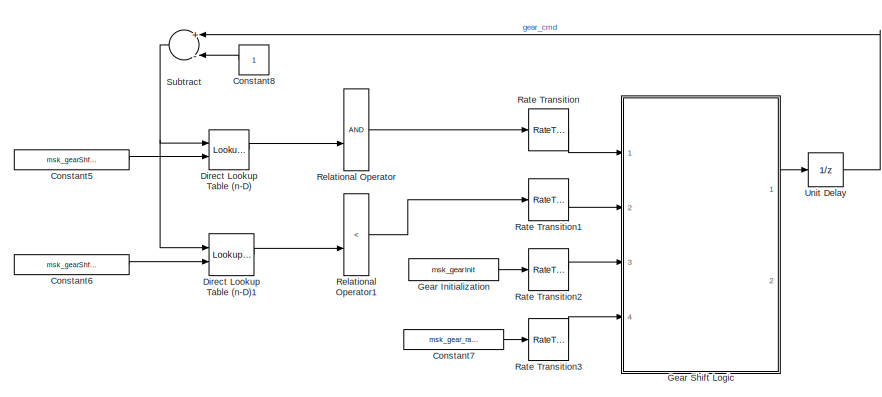
[diagram: Series Parallel Hybrid Electric Truck Driver and Vehicle Acceleration Dynamics Model - Force Output - part 1/5, top left region]
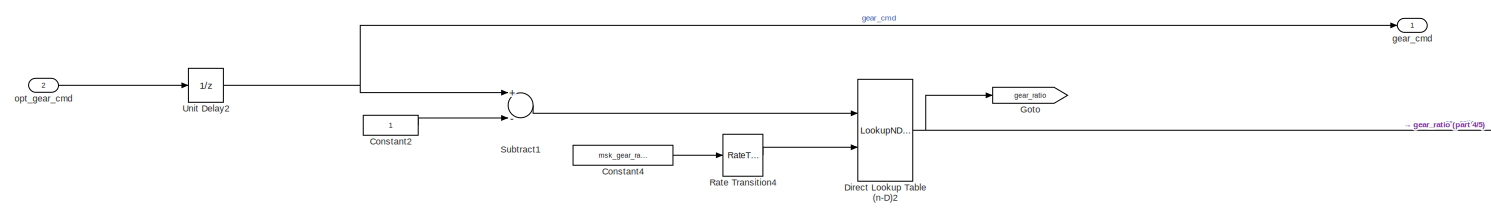
[diagram: Series Parallel Hybrid Electric Truck Driver and Vehicle Acceleration Dynamics Model - Force Output - part 2/5, central region]
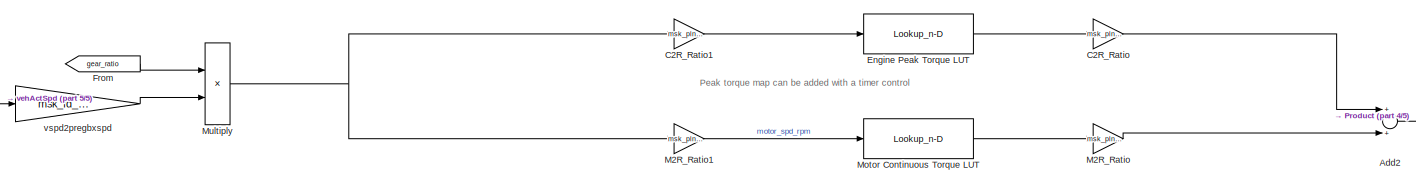
[diagram: Series Parallel Hybrid Electric Truck Driver and Vehicle Acceleration Dynamics Model - Force Output - part 3/5, bottom center region]
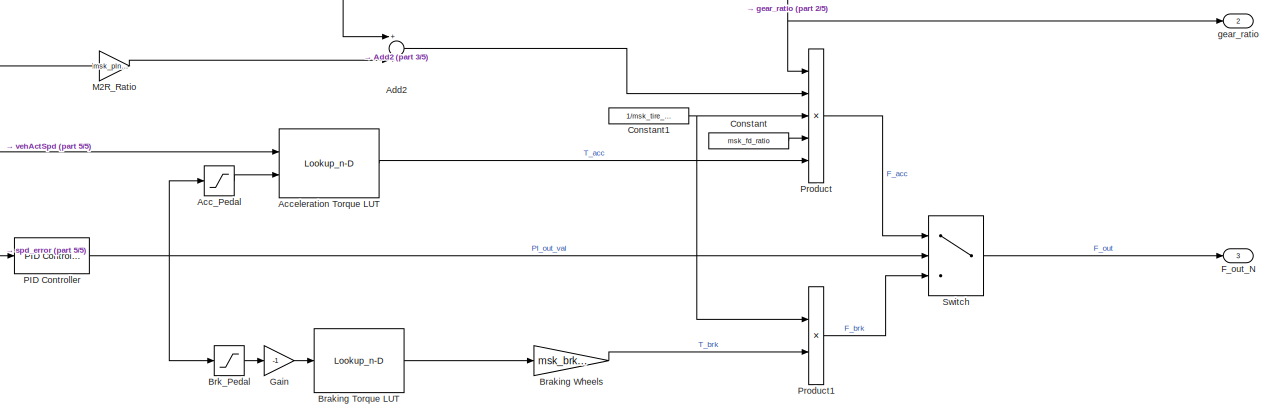
[diagram: Series Parallel Hybrid Electric Truck Driver and Vehicle Acceleration Dynamics Model - Force Output - part 4/5, bottom right region]
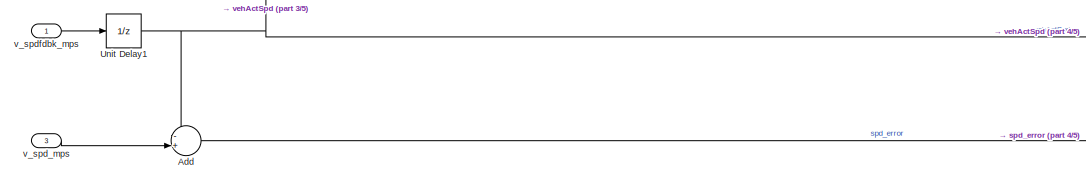
[diagram: Series Parallel Hybrid Electric Truck Driver and Vehicle Acceleration Dynamics Model - Force Output - part 5/5, bottom left region]
BLOCK [SubSystem] Series Parallel Hybrid Electric Truck Driver and Vehicle Acceleration Dynamics Model - Force Output
  Ports = [3, 3]
  RequestExecContextInheritance = off
BLOCK [Saturate] Series Parallel Hybrid Electric Truck Driver and Vehicle Acceleration Dynamics Model - Force Output/Acc_Pedal
  InputPortMap = u0
  LowerLimit = 0
  Ports = [1, 1]
  UpperLimit = 1
BLOCK [Lookup_n-D] Series Parallel Hybrid Electric Truck Driver and Vehicle Acceleration Dynamics Model - Force Output/Acceleration Torque LUT
  BreakpointsForDimension1 = msk_acc_spdbpt
  BreakpointsForDimension2 = msk_acc_pdlbpt
  InternalRulePriority = Speed
  Ports = [2, 1]
  RndMeth = Simplest
  Table = msk_acc_trqmap
BLOCK [Sum] Series Parallel Hybrid Electric Truck Driver and Vehicle Acceleration Dynamics Model - Force Output/Add
  IconShape = round
  InputSameDT = off
  Inputs = -+|
  OutDataTypeStr = Inherit: Inherit via internal rule
  Ports = [2, 1]
  SaturateOnIntegerOverflow = off
BLOCK [Sum] Series Parallel Hybrid Electric Truck Driver and Vehicle Acceleration Dynamics Model - Force Output/Add2
  InputSameDT = off
  OutDataTypeStr = Inherit: Inherit via internal rule
  Ports = [2, 1]
  SaturateOnIntegerOverflow = off
BLOCK [Lookup_n-D] Series Parallel Hybrid Electric Truck Driver and Vehicle Acceleration Dynamics Model - Force Output/Braking Torque LUT
  BreakpointsForDimension1 = msk_brk_pdlbpt
  ExtrapMethod = Clip
  InternalRulePriority = Speed
  NumberOfTableDimensions = 1
  Ports = [1, 1]
  RndMeth = Simplest
  Table = msk_brk_trq * -1
  UseLastTableValue = on
BLOCK [Gain] Series Parallel Hybrid Electric Truck Driver and Vehicle Acceleration Dynamics Model - Force Output/Braking Wheels
  Gain = msk_brk_whl_num
  OutDataTypeStr = Inherit: Inherit via internal rule
  ParamDataTypeStr = Inherit: Inherit via internal rule
  SaturateOnIntegerOverflow = off
BLOCK [Saturate] Series Parallel Hybrid Electric Truck Driver and Vehicle Acceleration Dynamics Model - Force Output/Brk_Pedal
  InputPortMap = u0
  LowerLimit = -1
  Ports = [1, 1]
  UpperLimit = 0
BLOCK [Gain] Series Parallel Hybrid Electric Truck Driver and Vehicle Acceleration Dynamics Model - Force Output/C2R_Ratio
  Gain = msk_plnt_c_r_ratio
  OutDataTypeStr = Inherit: Inherit via internal rule
  ParamDataTypeStr = Inherit: Inherit via internal rule
  SaturateOnIntegerOverflow = off
BLOCK [Gain] Series Parallel Hybrid Electric Truck Driver and Vehicle Acceleration Dynamics Model - Force Output/C2R_Ratio1
  Gain = msk_plnt_c_r_ratio
  OutDataTypeStr = Inherit: Inherit via internal rule
  ParamDataTypeStr = Inherit: Inherit via internal rule
  SaturateOnIntegerOverflow = off
BLOCK [Constant] Series Parallel Hybrid Electric Truck Driver and Vehicle Acceleration Dynamics Model - Force Output/Constant
  Value = msk_fd_ratio
BLOCK [Constant] Series Parallel Hybrid Electric Truck Driver and Vehicle Acceleration Dynamics Model - Force Output/Constant1
  Value = 1/msk_tire_radius
BLOCK [Constant] Series Parallel Hybrid Electric Truck Driver and Vehicle Acceleration Dynamics Model - Force Output/Constant2
BLOCK [Constant] Series Parallel Hybrid Electric Truck Driver and Vehicle Acceleration Dynamics Model - Force Output/Constant4
  Value = msk_gear_ratio_vec
BLOCK [Constant] Series Parallel Hybrid Electric Truck Driver and Vehicle Acceleration Dynamics Model - Force Output/Constant5
  Commented = on
  Value = msk_gearShft_UL
BLOCK [Constant] Series Parallel Hybrid Electric Truck Driver and Vehicle Acceleration Dynamics Model - Force Output/Constant6
  Commented = on
  Value = msk_gearShft_LL
BLOCK [Constant] Series Parallel Hybrid Electric Truck Driver and Vehicle Acceleration Dynamics Model - Force Output/Constant7
  Commented = on
  Value = msk_gear_ratio_vec
BLOCK [Constant] Series Parallel Hybrid Electric Truck Driver and Vehicle Acceleration Dynamics Model - Force Output/Constant8
  Commented = on
BLOCK [LookupNDDirect] Series Parallel Hybrid Electric Truck Driver and Vehicle Acceleration Dynamics Model - Force Output/Direct Lookup Table (n-D)
  Commented = on
  NumberOfTableDimensions = 1
  Ports = [2, 1]
  TableIsInput = on
BLOCK [LookupNDDirect] Series Parallel Hybrid Electric Truck Driver and Vehicle Acceleration Dynamics Model - Force Output/Direct Lookup Table (n-D)1
  Commented = on
  NumberOfTableDimensions = 1
  Ports = [2, 1]
  TableIsInput = on
BLOCK [LookupNDDirect] Series Parallel Hybrid Electric Truck Driver and Vehicle Acceleration Dynamics Model - Force Output/Direct Lookup Table (n-D)2
  NumberOfTableDimensions = 1
  Ports = [2, 1]
  TableIsInput = on
BLOCK [Lookup_n-D] Series Parallel Hybrid Electric Truck Driver and Vehicle Acceleration Dynamics Model - Force Output/Engine Peak Torque LUT
  BreakpointsForDimension1 = msk_eng_spd_bpt
  ExtrapMethod = Clip
  InternalRulePriority = Speed
  NumberOfTableDimensions = 1
  Ports = [1, 1]
  RndMeth = Simplest
  Table = msk_eng_pk_trq
  UseLastTableValue = on
BLOCK [Outport] Series Parallel Hybrid Electric Truck Driver and Vehicle Acceleration Dynamics Model - Force Output/F_out_N
  IconDisplay = Port number
  Port = 3
BLOCK [From] Series Parallel Hybrid Electric Truck Driver and Vehicle Acceleration Dynamics Model - Force Output/From
  GotoTag = gear_ratio
BLOCK [Gain] Series Parallel Hybrid Electric Truck Driver and Vehicle Acceleration Dynamics Model - Force Output/Gain
  Gain = -1
  OutDataTypeStr = Inherit: Inherit via internal rule
  ParamDataTypeStr = Inherit: Inherit via internal rule
  SaturateOnIntegerOverflow = off
BLOCK [Constant] Series Parallel Hybrid Electric Truck Driver and Vehicle Acceleration Dynamics Model - Force Output/Gear Initialization
  Commented = on
  Value = msk_gearInit
BLOCK [SubSystem] Series Parallel Hybrid Electric Truck Driver and Vehicle Acceleration Dynamics Model - Force Output/Gear Shift Logic
  Commented = on
  ErrorFcn = Stateflow.Translate.translate
  PermitHierarchicalResolution = ExplicitOnly
  Ports = [4, 2]
  RequestExecContextInheritance = off
  SFBlockType = MATLAB Function
  TreatAsAtomicUnit = on
BLOCK [Demux] Series Parallel Hybrid Electric Truck Driver and Vehicle Acceleration Dynamics Model - Force Output/Gear Shift Logic/ Demux 
  Outputs = 1
  Ports = [1, 1]
BLOCK [S-Function] Series Parallel Hybrid Electric Truck Driver and Vehicle Acceleration Dynamics Model - Force Output/Gear Shift Logic/ SFunction 
  EnableBusSupport = off
  FunctionName = sf_sfun
  PortCounts = [4 3]
  Ports = [4, 3]
  SFcnIsStateOwnerBlock = off
  SFunctionDeploymentMode = off
  Tag = Stateflow S-Function platooning_custom_blocks 4
BLOCK [Terminator] Series Parallel Hybrid Electric Truck Driver and Vehicle Acceleration Dynamics Model - Force Output/Gear Shift Logic/ Terminator 
BLOCK [Inport] Series Parallel Hybrid Electric Truck Driver and Vehicle Acceleration Dynamics Model - Force Output/Gear Shift Logic/dnshift_req
  IconDisplay = Port number
  Port = 2
BLOCK [Outport] Series Parallel Hybrid Electric Truck Driver and Vehicle Acceleration Dynamics Model - Force Output/Gear Shift Logic/gear_cmd
  IconDisplay = Port number
BLOCK [Inport] Series Parallel Hybrid Electric Truck Driver and Vehicle Acceleration Dynamics Model - Force Output/Gear Shift Logic/gear_rat_vec
  IconDisplay = Port number
  Port = 4
BLOCK [Outport] Series Parallel Hybrid Electric Truck Driver and Vehicle Acceleration Dynamics Model - Force Output/Gear Shift Logic/gear_ratio
  IconDisplay = Port number
  Port = 2
BLOCK [Inport] Series Parallel Hybrid Electric Truck Driver and Vehicle Acceleration Dynamics Model - Force Output/Gear Shift Logic/init_gear
  IconDisplay = Port number
  Port = 3
BLOCK [Inport] Series Parallel Hybrid Electric Truck Driver and Vehicle Acceleration Dynamics Model - Force Output/Gear Shift Logic/upshift_req
  IconDisplay = Port number
BLOCK [Goto] Series Parallel Hybrid Electric Truck Driver and Vehicle Acceleration Dynamics Model - Force Output/Goto
  GotoTag = gear_ratio
BLOCK [Gain] Series Parallel Hybrid Electric Truck Driver and Vehicle Acceleration Dynamics Model - Force Output/M2R_Ratio
  Gain = msk_plnt_m_r_ratio
  OutDataTypeStr = Inherit: Inherit via internal rule
  ParamDataTypeStr = Inherit: Inherit via internal rule
  SaturateOnIntegerOverflow = off
BLOCK [Gain] Series Parallel Hybrid Electric Truck Driver and Vehicle Acceleration Dynamics Model - Force Output/M2R_Ratio1
  Gain = msk_plnt_m_r_ratio
  OutDataTypeStr = Inherit: Inherit via internal rule
  ParamDataTypeStr = Inherit: Inherit via internal rule
  SaturateOnIntegerOverflow = off
BLOCK [Lookup_n-D] Series Parallel Hybrid Electric Truck Driver and Vehicle Acceleration Dynamics Model - Force Output/Motor Continuous Torque LUT
  BreakpointsForDimension1 = msk_spd_bpt
  ExtrapMethod = Clip
  InternalRulePriority = Speed
  NumberOfTableDimensions = 1
  Ports = [1, 1]
  RndMeth = Simplest
  Table = msk_mtr_cont_trq
  UseLastTableValue = on
BLOCK [Product] Series Parallel Hybrid Electric Truck Driver and Vehicle Acceleration Dynamics Model - Force Output/Multiply
  InputSameDT = off
  OutDataTypeStr = Inherit: Inherit via internal rule
  Ports = [2, 1]
  RndMeth = Floor
  SaturateOnIntegerOverflow = off
BLOCK [Reference] Series Parallel Hybrid Electric Truck Driver and Vehicle Acceleration Dynamics Model - Force Output/PID Controller  REF=simulink/Continuous/PID Controller
  Ports = [1, 1]
  SourceBlock = simulink/Continuous/PID Controller
  SourceProductBaseCode = SL
  SourceProductName = Simulink
  SourceType = PID 1dof
BLOCK [Product] Series Parallel Hybrid Electric Truck Driver and Vehicle Acceleration Dynamics Model - Force Output/Product
  InputSameDT = off
  Inputs = 5
  OutDataTypeStr = Inherit: Inherit via internal rule
  Ports = [5, 1]
  RndMeth = Floor
  SaturateOnIntegerOverflow = off
BLOCK [Product] Series Parallel Hybrid Electric Truck Driver and Vehicle Acceleration Dynamics Model - Force Output/Product1
  InputSameDT = off
  OutDataTypeStr = Inherit: Inherit via internal rule
  Ports = [2, 1]
  RndMeth = Floor
  SaturateOnIntegerOverflow = off
BLOCK [RateTransition] Series Parallel Hybrid Electric Truck Driver and Vehicle Acceleration Dynamics Model - Force Output/Rate Transition
  Commented = on
  OutPortSampleTime = msk_t_step
BLOCK [RateTransition] Series Parallel Hybrid Electric Truck Driver and Vehicle Acceleration Dynamics Model - Force Output/Rate Transition1
  Commented = on
  OutPortSampleTime = msk_t_step
BLOCK [RateTransition] Series Parallel Hybrid Electric Truck Driver and Vehicle Acceleration Dynamics Model - Force Output/Rate Transition2
  Commented = on
  OutPortSampleTime = msk_t_step
BLOCK [RateTransition] Series Parallel Hybrid Electric Truck Driver and Vehicle Acceleration Dynamics Model - Force Output/Rate Transition3
  Commented = on
  OutPortSampleTime = msk_t_step
BLOCK [RateTransition] Series Parallel Hybrid Electric Truck Driver and Vehicle Acceleration Dynamics Model - Force Output/Rate Transition4
  OutPortSampleTime = msk_t_step
BLOCK [RelationalOperator] Series Parallel Hybrid Electric Truck Driver and Vehicle Acceleration Dynamics Model - Force Output/Relational Operator
  Commented = on
  InputSameDT = off
  OutDataTypeStr = boolean
  Ports = [2, 1]
  RndMeth = Simplest
BLOCK [RelationalOperator] Series Parallel Hybrid Electric Truck Driver and Vehicle Acceleration Dynamics Model - Force Output/Relational Operator1
  Commented = on
  InputSameDT = off
  Operator = <
  OutDataTypeStr = boolean
  Ports = [2, 1]
  RndMeth = Simplest
BLOCK [Sum] Series Parallel Hybrid Electric Truck Driver and Vehicle Acceleration Dynamics Model - Force Output/Subtract
  Commented = on
  InputSameDT = off
  Inputs = +-
  OutDataTypeStr = Inherit: Inherit via internal rule
  Ports = [2, 1]
  SaturateOnIntegerOverflow = off
BLOCK [Sum] Series Parallel Hybrid Electric Truck Driver and Vehicle Acceleration Dynamics Model - Force Output/Subtract1
  InputSameDT = off
  Inputs = +-
  OutDataTypeStr = Inherit: Inherit via internal rule
  Ports = [2, 1]
  SaturateOnIntegerOverflow = off
BLOCK [Switch] Series Parallel Hybrid Electric Truck Driver and Vehicle Acceleration Dynamics Model - Force Output/Switch
  Criteria = u2 > Threshold
  InputSameDT = off
  SaturateOnIntegerOverflow = off
BLOCK [UnitDelay] Series Parallel Hybrid Electric Truck Driver and Vehicle Acceleration Dynamics Model - Force Output/Unit Delay
  Commented = on
  InputProcessing = Elements as channels (sample based)
  SampleTime = -1
BLOCK [UnitDelay] Series Parallel Hybrid Electric Truck Driver and Vehicle Acceleration Dynamics Model - Force Output/Unit Delay1
  InputProcessing = Elements as channels (sample based)
  SampleTime = -1
BLOCK [UnitDelay] Series Parallel Hybrid Electric Truck Driver and Vehicle Acceleration Dynamics Model - Force Output/Unit Delay2
  InitialCondition = msk_gearInit
  InputProcessing = Elements as channels (sample based)
  SampleTime = -1
BLOCK [Outport] Series Parallel Hybrid Electric Truck Driver and Vehicle Acceleration Dynamics Model - Force Output/gear_cmd
  IconDisplay = Port number
BLOCK [Outport] Series Parallel Hybrid Electric Truck Driver and Vehicle Acceleration Dynamics Model - Force Output/gear_ratio
  IconDisplay = Port number
  Port = 2
BLOCK [Inport] Series Parallel Hybrid Electric Truck Driver and Vehicle Acceleration Dynamics Model - Force Output/opt_gear_cmd
  IconDisplay = Port number
  Port = 2
BLOCK [Inport] Series Parallel Hybrid Electric Truck Driver and Vehicle Acceleration Dynamics Model - Force Output/v_spd_mps
  IconDisplay = Port number
  Port = 3
BLOCK [Inport] Series Parallel Hybrid Electric Truck Driver and Vehicle Acceleration Dynamics Model - Force Output/v_spdfdbk_mps
  IconDisplay = Port number
BLOCK [Gain] Series Parallel Hybrid Electric Truck Driver and Vehicle Acceleration Dynamics Model - Force Output/vspd2pregbxspd
  Gain = msk_fd_ratio/msk_tire_radius
  OutDataTypeStr = Inherit: Inherit via internal rule
  ParamDataTypeStr = Inherit: Inherit via internal rule
  SaturateOnIntegerOverflow = off
BLOCK [Reference] Series Parallel Hybrid Electric Truck/2 DOF Longitudinal Dynamics Model - Force Input  REF=$bdroot/2 DOF Longitudinal Dynamics Model - Force Input
  Ports = [4, 10]
  SourceBlock = $bdroot/2 DOF Longitudinal Dynamics Model - Force Input
BLOCK [BusCreator] Series Parallel Hybrid Electric Truck/Bus Creator
  DisplayOption = bar
  InheritFromInputs = on
  Inputs = 3
  Ports = [3, 1]
BLOCK [BusCreator] Series Parallel Hybrid Electric Truck/Bus Creator1
  DisplayOption = bar
  InheritFromInputs = on
  Inputs = 4
  Ports = [4, 1]
BLOCK [BusCreator] Series Parallel Hybrid Electric Truck/Bus Creator2
  DisplayOption = bar
  InheritFromInputs = on
  Inputs = 4
  Ports = [4, 1]
BLOCK [BusCreator] Series Parallel Hybrid Electric Truck/Bus Creator3
  DisplayOption = bar
  InheritFromInputs = on
  Inputs = 4
  Ports = [4, 1]
BLOCK [BusSelector] Series Parallel Hybrid Electric Truck/Bus Selector
  OutputAsBus = off
  OutputSignals = opt_gear
  Ports = [1, 1]
BLOCK [BusSelector] Series Parallel Hybrid Electric Truck/Bus Selector1
  OutputAsBus = off
  OutputSignals = EC_BUS.blndElecEC_Wh_m,State_BUS.DistTrvld_m
  Ports = [1, 2]
BLOCK [BusSelector] Series Parallel Hybrid Electric Truck/Bus Selector2
  OutputAsBus = off
  OutputSignals = tail_grade_pct
  Ports = [1, 1]
BLOCK [BusSelector] Series Parallel Hybrid Electric Truck/Bus Selector3
  OutputAsBus = off
  OutputSignals = clock
  Ports = [1, 1]
BLOCK [Inport] Series Parallel Hybrid Electric Truck/Cd
  IconDisplay = Port number
  Port = 4
BLOCK [Inport] Series Parallel Hybrid Electric Truck/F_Dist_m
  IconDisplay = Port number
  Port = 3
BLOCK [From] Series Parallel Hybrid Electric Truck/From
  GotoTag = gear_ratio
BLOCK [From] Series Parallel Hybrid Electric Truck/From1
  GotoTag = gear_cmd
BLOCK [Inport] Series Parallel Hybrid Electric Truck/From_DTIL_BUS
  IconDisplay = Port number
BLOCK [Inport] Series Parallel Hybrid Electric Truck/From_PCL
  IconDisplay = Port number
  Port = 5
BLOCK [Goto] Series Parallel Hybrid Electric Truck/Goto
  GotoTag = gear_ratio
BLOCK [Goto] Series Parallel Hybrid Electric Truck/Goto1
  GotoTag = gear_cmd
BLOCK [Inport] Series Parallel Hybrid Electric Truck/Init_Pos_m
  IconDisplay = Port number
  Port = 6
BLOCK [SubSystem] Series Parallel Hybrid Electric Truck/Series Parallel Hybrid Electric Post-Processing
  Ports = [1, 1]
  RequestExecContextInheritance = off
BLOCK [Sum] Series Parallel Hybrid Electric Truck/Series Parallel Hybrid Electric Post-Processing/Add
  InputSameDT = off
  OutDataTypeStr = Inherit: Inherit via internal rule
  Ports = [2, 1]
  SaturateOnIntegerOverflow = off
BLOCK [Constant] Series Parallel Hybrid Electric Truck/Series Parallel Hybrid Electric Post-Processing/Battery Energy Max
  Value = msk_batt_Ns * msk_batt_Np * msk_batt_Nmod * msk_cell_Vnom * msk_cell_Q_Ah
BLOCK [SubSystem] Series Parallel Hybrid Electric Truck/Series Parallel Hybrid Electric Post-Processing/Blending Function 1
  Ports = [3, 1]
  RequestExecContextInheritance = off
BLOCK [Constant] Series Parallel Hybrid Electric Truck/Series Parallel Hybrid Electric Post-Processing/Blending Function 1/Constant1
  Value = msk_fuel_init_liters
BLOCK [Product] Series Parallel Hybrid Electric Truck/Series Parallel Hybrid Electric Post-Processing/Blending Function 1/Divide
  InputSameDT = off
  Inputs = */
  OutDataTypeStr = Inherit: Inherit via internal rule
  Ports = [2, 1]
  RndMeth = Floor
  SaturateOnIntegerOverflow = off
BLOCK [Inport] Series Parallel Hybrid Electric Truck/Series Parallel Hybrid Electric Post-Processing/Blending Function 1/Fuel_Used_L
  IconDisplay = Port number
  Port = 2
BLOCK [Product] Series Parallel Hybrid Electric Truck/Series Parallel Hybrid Electric Post-Processing/Blending Function 1/Product1
  InputSameDT = off
  OutDataTypeStr = Inherit: Inherit via internal rule
  Ports = [2, 1]
  RndMeth = Floor
  SaturateOnIntegerOverflow = off
BLOCK [Sum] Series Parallel Hybrid Electric Truck/Series Parallel Hybrid Electric Post-Processing/Blending Function 1/Subtract1
  InputSameDT = off
  Inputs = -+
  OutDataTypeStr = Inherit: Inherit via internal rule
  Ports = [2, 1]
  SaturateOnIntegerOverflow = off
BLOCK [Sum] Series Parallel Hybrid Electric Truck/Series Parallel Hybrid Electric Post-Processing/Blending Function 1/Subtract2
  InputSameDT = off
  OutDataTypeStr = Inherit: Inherit via internal rule
  Ports = [2, 1]
  SaturateOnIntegerOverflow = off
BLOCK [Outport] Series Parallel Hybrid Electric Truck/Series Parallel Hybrid Electric Post-Processing/Blending Function 1/blndElecEC_Wh_m
  IconDisplay = Port number
BLOCK [Inport] Series Parallel Hybrid Electric Truck/Series Parallel Hybrid Electric Post-Processing/Blending Function 1/runAvgFuelEC_Wh_m
  IconDisplay = Port number
BLOCK [Inport] Series Parallel Hybrid Electric Truck/Series Parallel Hybrid Electric Post-Processing/Blending Function 1/stAvgFuelEC_Wh_m
  IconDisplay = Port number
  Port = 3
BLOCK [SubSystem] Series Parallel Hybrid Electric Truck/Series Parallel Hybrid Electric Post-Processing/Blending Function 2
  Ports = [3, 1]
  RequestExecContextInheritance = off
BLOCK [Constant] Series Parallel Hybrid Electric Truck/Series Parallel Hybrid Electric Post-Processing/Blending Function 2/Constant1
  Value = msk_fuel_init_liters
BLOCK [Product] Series Parallel Hybrid Electric Truck/Series Parallel Hybrid Electric Post-Processing/Blending Function 2/Divide
  InputSameDT = off
  Inputs = */
  OutDataTypeStr = Inherit: Inherit via internal rule
  Ports = [2, 1]
  RndMeth = Floor
  SaturateOnIntegerOverflow = off
BLOCK [Inport] Series Parallel Hybrid Electric Truck/Series Parallel Hybrid Electric Post-Processing/Blending Function 2/Fuel_Used_L
  IconDisplay = Port number
  Port = 2
BLOCK [Product] Series Parallel Hybrid Electric Truck/Series Parallel Hybrid Electric Post-Processing/Blending Function 2/Product1
  InputSameDT = off
  OutDataTypeStr = Inherit: Inherit via internal rule
  Ports = [2, 1]
  RndMeth = Floor
  SaturateOnIntegerOverflow = off
BLOCK [Sum] Series Parallel Hybrid Electric Truck/Series Parallel Hybrid Electric Post-Processing/Blending Function 2/Subtract1
  InputSameDT = off
  Inputs = -+
  OutDataTypeStr = Inherit: Inherit via internal rule
  Ports = [2, 1]
  SaturateOnIntegerOverflow = off
BLOCK [Sum] Series Parallel Hybrid Electric Truck/Series Parallel Hybrid Electric Post-Processing/Blending Function 2/Subtract2
  InputSameDT = off
  OutDataTypeStr = Inherit: Inherit via internal rule
  Ports = [2, 1]
  SaturateOnIntegerOverflow = off
BLOCK [Outport] Series Parallel Hybrid Electric Truck/Series Parallel Hybrid Electric Post-Processing/Blending Function 2/blndFC_L_100km
  IconDisplay = Port number
BLOCK [Inport] Series Parallel Hybrid Electric Truck/Series Parallel Hybrid Electric Post-Processing/Blending Function 2/runAvgFC_L_100km
  IconDisplay = Port number
BLOCK [Inport] Series Parallel Hybrid Electric Truck/Series Parallel Hybrid Electric Post-Processing/Blending Function 2/stAvgFC_L_100km
  IconDisplay = Port number
  Port = 3
BLOCK [BusCreator] Series Parallel Hybrid Electric Truck/Series Parallel Hybrid Electric Post-Processing/Bus Creator1
  DisplayOption = bar
  InheritFromInputs = on
  Inputs = 11
  Ports = [11, 1]
BLOCK [BusCreator] Series Parallel Hybrid Electric Truck/Series Parallel Hybrid Electric Post-Processing/Bus Creator2
  DisplayOption = bar
  InheritFromInputs = on
  Inputs = 3
  Ports = [3, 1]
BLOCK [BusCreator] Series Parallel Hybrid Electric Truck/Series Parallel Hybrid Electric Post-Processing/Bus Creator3
  DisplayOption = bar
  InheritFromInputs = on
  Inputs = 3
  Ports = [3, 1]
BLOCK [BusCreator] Series Parallel Hybrid Electric Truck/Series Parallel Hybrid Electric Post-Processing/Bus Creator5
  DisplayOption = bar
  InheritFromInputs = on
  Inputs = 3
  Ports = [3, 1]
BLOCK [BusSelector] Series Parallel Hybrid Electric Truck/Series Parallel Hybrid Electric Post-Processing/Bus Selector
  OutputAsBus = off
  OutputSignals = Batt_Voltage_V,Batt_EPO_Flag,Batt_Current_A,P_gen_mech_W,GearCmd,eng_spd_rpm,Batt_SOC_frac,DistTrvld_m,Init_Pos_m,act_VehSpd_mps,fuelUsed_L
  Ports = [1, 11]
BLOCK [Constant] Series Parallel Hybrid Electric Truck/Series Parallel Hybrid Electric Post-Processing/Constant
  Value = msk_batt_soc_init
BLOCK [Constant] Series Parallel Hybrid Electric Truck/Series Parallel Hybrid Electric Post-Processing/Constant2
  Value = eps
BLOCK [SubSystem] Series Parallel Hybrid Electric Truck/Series Parallel Hybrid Electric Post-Processing/Distance to Empty Calculator
  Ports = [3, 1]
  RequestExecContextInheritance = off
BLOCK [Inport] Series Parallel Hybrid Electric Truck/Series Parallel Hybrid Electric Post-Processing/Distance to Empty Calculator/<fuelUsed_L>
  IconDisplay = Port number
  Port = 2
BLOCK [Constant] Series Parallel Hybrid Electric Truck/Series Parallel Hybrid Electric Post-Processing/Distance to Empty Calculator/Battery Energy Max
  Value = msk_batt_Ns * msk_batt_Np * msk_batt_Nmod * msk_cell_Vnom * msk_cell_Q_Ah
BLOCK [Constant] Series Parallel Hybrid Electric Truck/Series Parallel Hybrid Electric Post-Processing/Distance to Empty Calculator/Constant
  Value = msk_fuel_init_liters
BLOCK [Constant] Series Parallel Hybrid Electric Truck/Series Parallel Hybrid Electric Post-Processing/Distance to Empty Calculator/Constant1
  Value = 0.2
BLOCK [Product] Series Parallel Hybrid Electric Truck/Series Parallel Hybrid Electric Post-Processing/Distance to Empty Calculator/Divide
  InputSameDT = off
  Inputs = */
  OutDataTypeStr = Inherit: Inherit via internal rule
  Ports = [2, 1]
  RndMeth = Floor
  SaturateOnIntegerOverflow = off
BLOCK [Constant] Series Parallel Hybrid Electric Truck/Series Parallel Hybrid Electric Post-Processing/Distance to Empty Calculator/Fuel LHV energy per volume
  Value = msk_fuel_rho_kgpl * msk_fuel_lhv_kwhpkg
BLOCK [Gain] Series Parallel Hybrid Electric Truck/Series Parallel Hybrid Electric Post-Processing/Distance to Empty Calculator/Percent of Fuel in Tank
  Gain = 0.9
  OutDataTypeStr = Inherit: Inherit via internal rule
  ParamDataTypeStr = Inherit: Inherit via internal rule
  SaturateOnIntegerOverflow = off
BLOCK [Product] Series Parallel Hybrid Electric Truck/Series Parallel Hybrid Electric Post-Processing/Distance to Empty Calculator/Product2
  InputSameDT = off
  OutDataTypeStr = Inherit: Inherit via internal rule
  Ports = [2, 1]
  RndMeth = Floor
  SaturateOnIntegerOverflow = off
BLOCK [Product] Series Parallel Hybrid Electric Truck/Series Parallel Hybrid Electric Post-Processing/Distance to Empty Calculator/Product3
  InputSameDT = off
  OutDataTypeStr = Inherit: Inherit via internal rule
  Ports = [2, 1]
  RndMeth = Floor
  SaturateOnIntegerOverflow = off
BLOCK [Sum] Series Parallel Hybrid Electric Truck/Series Parallel Hybrid Electric Post-Processing/Distance to Empty Calculator/Subtract
  InputSameDT = off
  Inputs = -+
  OutDataTypeStr = Inherit: Inherit via internal rule
  Ports = [2, 1]
  SaturateOnIntegerOverflow = off
BLOCK [Sum] Series Parallel Hybrid Electric Truck/Series Parallel Hybrid Electric Post-Processing/Distance to Empty Calculator/Subtract1
  InputSameDT = off
  Inputs = +-
  OutDataTypeStr = Inherit: Inherit via internal rule
  Ports = [2, 1]
  SaturateOnIntegerOverflow = off
BLOCK [Sum] Series Parallel Hybrid Electric Truck/Series Parallel Hybrid Electric Post-Processing/Distance to Empty Calculator/Subtract2
  IconShape = round
  InputSameDT = off
  Inputs = ++|
  OutDataTypeStr = Inherit: Inherit via internal rule
  Ports = [2, 1]
  SaturateOnIntegerOverflow = off
BLOCK [Inport] Series Parallel Hybrid Electric Truck/Series Parallel Hybrid Electric Post-Processing/Distance to Empty Calculator/battSOC_frac
  IconDisplay = Port number
  Port = 3
BLOCK [Inport] Series Parallel Hybrid Electric Truck/Series Parallel Hybrid Electric Post-Processing/Distance to Empty Calculator/blndEC_Wh_m
  IconDisplay = Port number
BLOCK [Outport] Series Parallel Hybrid Electric Truck/Series Parallel Hybrid Electric Post-Processing/Distance to Empty Calculator/estDTE_km
  IconDisplay = Port number
BLOCK [Gain] Series Parallel Hybrid Electric Truck/Series Parallel Hybrid Electric Post-Processing/Distance to Empty Calculator/kWh2Wh
  Gain = 1000
  OutDataTypeStr = Inherit: Inherit via internal rule
  ParamDataTypeStr = Inherit: Inherit via internal rule
  SaturateOnIntegerOverflow = off
BLOCK [Gain] Series Parallel Hybrid Electric Truck/Series Parallel Hybrid Electric Post-Processing/Distance to Empty Calculator/m2km
  Gain = 0.001
  OutDataTypeStr = Inherit: Inherit via internal rule
  ParamDataTypeStr = Inherit: Inherit via internal rule
  SaturateOnIntegerOverflow = off
BLOCK [Product] Series Parallel Hybrid Electric Truck/Series Parallel Hybrid Electric Post-Processing/Divide1
  InputSameDT = off
  Inputs = */
  OutDataTypeStr = Inherit: Inherit via internal rule
  Ports = [2, 1]
  RndMeth = Floor
  SaturateOnIntegerOverflow = off
BLOCK [SubSystem] Series Parallel Hybrid Electric Truck/Series Parallel Hybrid Electric Post-Processing/Fuel Consumption Calculator
  Ports = [2, 1]
  RequestExecContextInheritance = off
BLOCK [Inport] Series Parallel Hybrid Electric Truck/Series Parallel Hybrid Electric Post-Processing/Fuel Consumption Calculator/<DistTrvld_m>
  IconDisplay = Port number
  Port = 2
BLOCK [Inport] Series Parallel Hybrid Electric Truck/Series Parallel Hybrid Electric Post-Processing/Fuel Consumption Calculator/<fuelUsed_L>
  IconDisplay = Port number
BLOCK [Constant] Series Parallel Hybrid Electric Truck/Series Parallel Hybrid Electric Post-Processing/Fuel Consumption Calculator/Constant
  Value = 100
BLOCK [Constant] Series Parallel Hybrid Electric Truck/Series Parallel Hybrid Electric Post-Processing/Fuel Consumption Calculator/Constant1
  Value = eps
BLOCK [Product] Series Parallel Hybrid Electric Truck/Series Parallel Hybrid Electric Post-Processing/Fuel Consumption Calculator/Divide1
  InputSameDT = off
  Inputs = */
  OutDataTypeStr = Inherit: Inherit via internal rule
  Ports = [2, 1]
  RndMeth = Floor
  SaturateOnIntegerOverflow = off
BLOCK [Product] Series Parallel Hybrid Electric Truck/Series Parallel Hybrid Electric Post-Processing/Fuel Consumption Calculator/Divide2
  InputSameDT = off
  Inputs = */
  OutDataTypeStr = Inherit: Inherit via internal rule
  Ports = [2, 1]
  RndMeth = Floor
  SaturateOnIntegerOverflow = off
BLOCK [Outport] Series Parallel Hybrid Electric Truck/Series Parallel Hybrid Electric Post-Processing/Fuel Consumption Calculator/FC_Lp100km
  IconDisplay = Port number
BLOCK [Switch] Series Parallel Hybrid Electric Truck/Series Parallel Hybrid Electric Post-Processing/Fuel Consumption Calculator/Switch
  Criteria = u2 > Threshold
  InputSameDT = off
  SaturateOnIntegerOverflow = off
BLOCK [Gain] Series Parallel Hybrid Electric Truck/Series Parallel Hybrid Electric Post-Processing/Fuel Consumption Calculator/m2km
  Gain = 1/1000
  OutDataTypeStr = Inherit: Inherit via internal rule
  ParamDataTypeStr = Inherit: Inherit via internal rule
  SaturateOnIntegerOverflow = off
BLOCK [Constant] Series Parallel Hybrid Electric Truck/Series Parallel Hybrid Electric Post-Processing/Fuel LHV energy per volume
  Value = msk_fuel_rho_kgpl * msk_fuel_lhv_kwhpkg
BLOCK [Product] Series Parallel Hybrid Electric Truck/Series Parallel Hybrid Electric Post-Processing/Product
  InputSameDT = off
  OutDataTypeStr = Inherit: Inherit via internal rule
  Ports = [2, 1]
  RndMeth = Floor
  SaturateOnIntegerOverflow = off
BLOCK [Product] Series Parallel Hybrid Electric Truck/Series Parallel Hybrid Electric Post-Processing/Product1
  InputSameDT = off
  OutDataTypeStr = Inherit: Inherit via internal rule
  Ports = [2, 1]
  RndMeth = Floor
  SaturateOnIntegerOverflow = off
BLOCK [Inport] Series Parallel Hybrid Electric Truck/Series Parallel Hybrid Electric Post-Processing/PropSys_to_EMC
  IconDisplay = Port number
BLOCK [SubSystem] Series Parallel Hybrid Electric Truck/Series Parallel Hybrid Electric Post-Processing/Short Term Averaging Function1
  ErrorFcn = Stateflow.Translate.translate
  PermitHierarchicalResolution = ExplicitOnly
  Ports = [6, 2]
  RequestExecContextInheritance = off
  SFBlockType = MATLAB Function
  TreatAsAtomicUnit = on
BLOCK [Demux] Series Parallel Hybrid Electric Truck/Series Parallel Hybrid Electric Post-Processing/Short Term Averaging Function1/ Demux 
  Outputs = 1
  Ports = [1, 1]
BLOCK [S-Function] Series Parallel Hybrid Electric Truck/Series Parallel Hybrid Electric Post-Processing/Short Term Averaging Function1/ SFunction 
  EnableBusSupport = off
  FunctionName = sf_sfun
  PortCounts = [6 3]
  Ports = [6, 3]
  SFcnIsStateOwnerBlock = off
  SFunctionDeploymentMode = off
  Tag = Stateflow S-Function platooning_custom_blocks 6
BLOCK [Terminator] Series Parallel Hybrid Electric Truck/Series Parallel Hybrid Electric Post-Processing/Short Term Averaging Function1/ Terminator 
BLOCK [Inport] Series Parallel Hybrid Electric Truck/Series Parallel Hybrid Electric Post-Processing/Short Term Averaging Function1/Batt_Max_Energy
  IconDisplay = Port number
  Port = 2
BLOCK [Inport] Series Parallel Hybrid Electric Truck/Series Parallel Hybrid Electric Post-Processing/Short Term Averaging Function1/Batt_SOC_frac
  IconDisplay = Port number
BLOCK [Inport] Series Parallel Hybrid Electric Truck/Series Parallel Hybrid Electric Post-Processing/Short Term Averaging Function1/Dist_Traveled
  IconDisplay = Port number
  Port = 5
BLOCK [Inport] Series Parallel Hybrid Electric Truck/Series Parallel Hybrid Electric Post-Processing/Short Term Averaging Function1/Dist_Window
  IconDisplay = Port number
  Port = 6
BLOCK [Inport] Series Parallel Hybrid Electric Truck/Series Parallel Hybrid Electric Post-Processing/Short Term Averaging Function1/Fuel_LHV_kWhpL
  IconDisplay = Port number
  Port = 4
BLOCK [Inport] Series Parallel Hybrid Electric Truck/Series Parallel Hybrid Electric Post-Processing/Short Term Averaging Function1/Fuel_Used_L
  IconDisplay = Port number
  Port = 3
BLOCK [Outport] Series Parallel Hybrid Electric Truck/Series Parallel Hybrid Electric Post-Processing/Short Term Averaging Function1/STAvg_L_100km
  IconDisplay = Port number
  Port = 2
BLOCK [Outport] Series Parallel Hybrid Electric Truck/Series Parallel Hybrid Electric Post-Processing/Short Term Averaging Function1/STAvg_Wh_m
  IconDisplay = Port number
BLOCK [Constant] Series Parallel Hybrid Electric Truck/Series Parallel Hybrid Electric Post-Processing/Short term average distance window - meters1
  Value = msk_distwin
BLOCK [Sum] Series Parallel Hybrid Electric Truck/Series Parallel Hybrid Electric Post-Processing/Subtract
  InputSameDT = off
  Inputs = +-
  OutDataTypeStr = Inherit: Inherit via internal rule
  Ports = [2, 1]
  SaturateOnIntegerOverflow = off
BLOCK [Sum] Series Parallel Hybrid Electric Truck/Series Parallel Hybrid Electric Post-Processing/Subtract1
  InputSameDT = off
  Inputs = +-
  OutDataTypeStr = Inherit: Inherit via internal rule
  Ports = [2, 1]
  SaturateOnIntegerOverflow = off
BLOCK [Switch] Series Parallel Hybrid Electric Truck/Series Parallel Hybrid Electric Post-Processing/Switch
  Criteria = u2 > Threshold
  InputSameDT = off
  SaturateOnIntegerOverflow = off
BLOCK [Outport] Series Parallel Hybrid Electric Truck/Series Parallel Hybrid Electric Post-Processing/To_PCL_BUS
  IconDisplay = Port number
BLOCK [Gain] Series Parallel Hybrid Electric Truck/Series Parallel Hybrid Electric Post-Processing/kWh2Wh
  Gain = 1000
  OutDataTypeStr = Inherit: Inherit via internal rule
  ParamDataTypeStr = Inherit: Inherit via internal rule
  SaturateOnIntegerOverflow = off
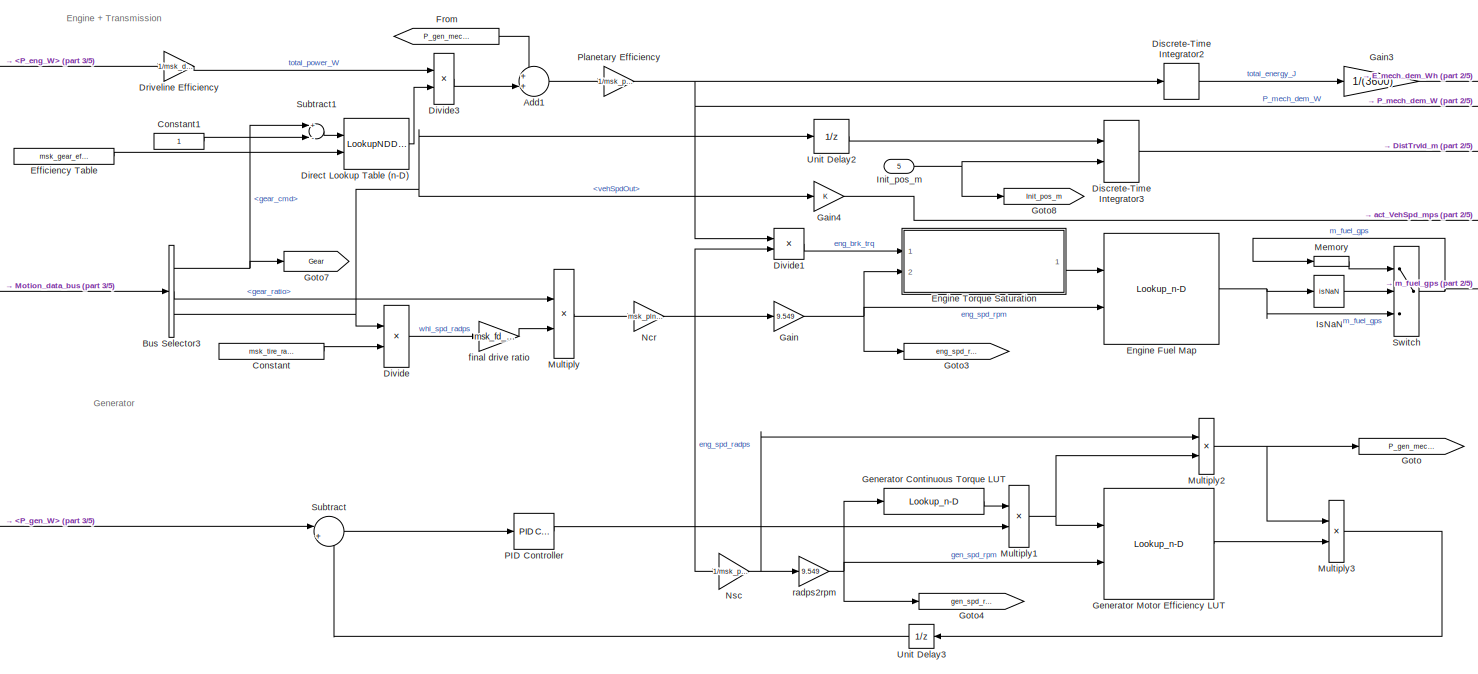
[diagram: Series Parallel Hybrid Electric Truck/Series Parallel Hybrid Electric Powertrain Power Loss Model - part 1/5, top center region]
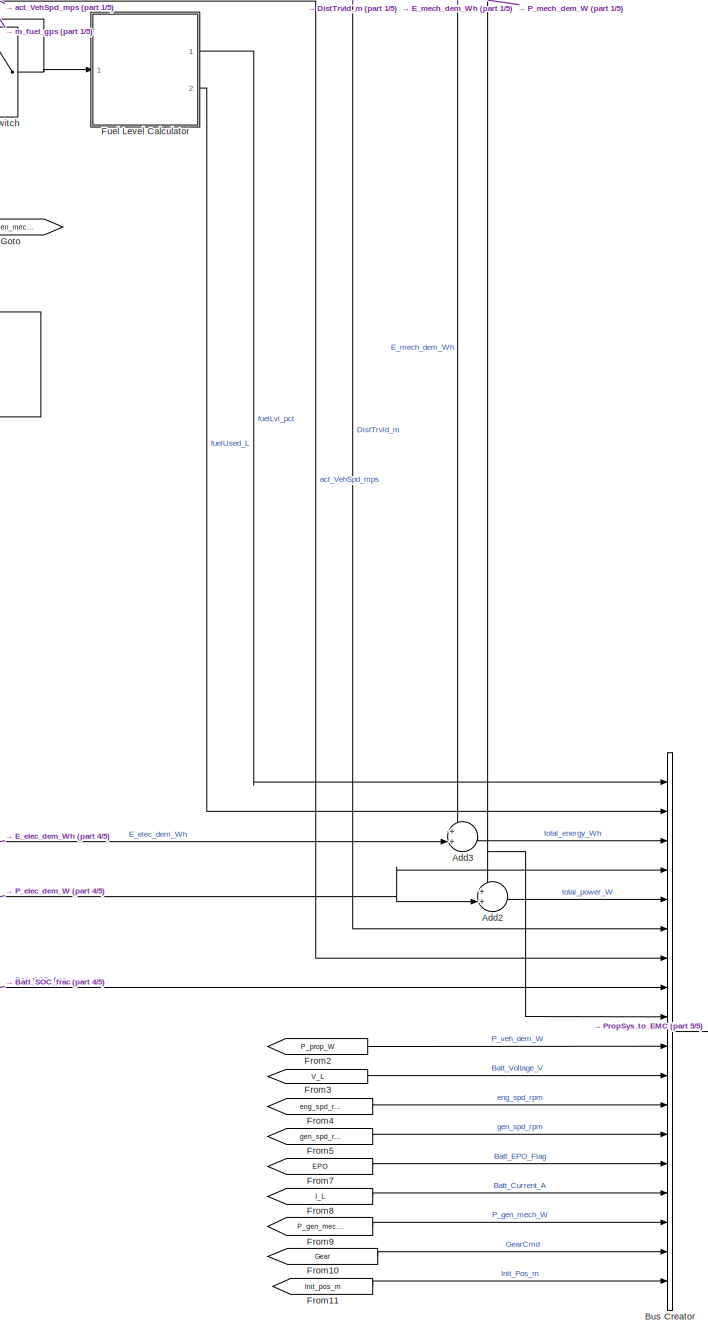
[diagram: Series Parallel Hybrid Electric Truck/Series Parallel Hybrid Electric Powertrain Power Loss Model - part 2/5, right side, full height]
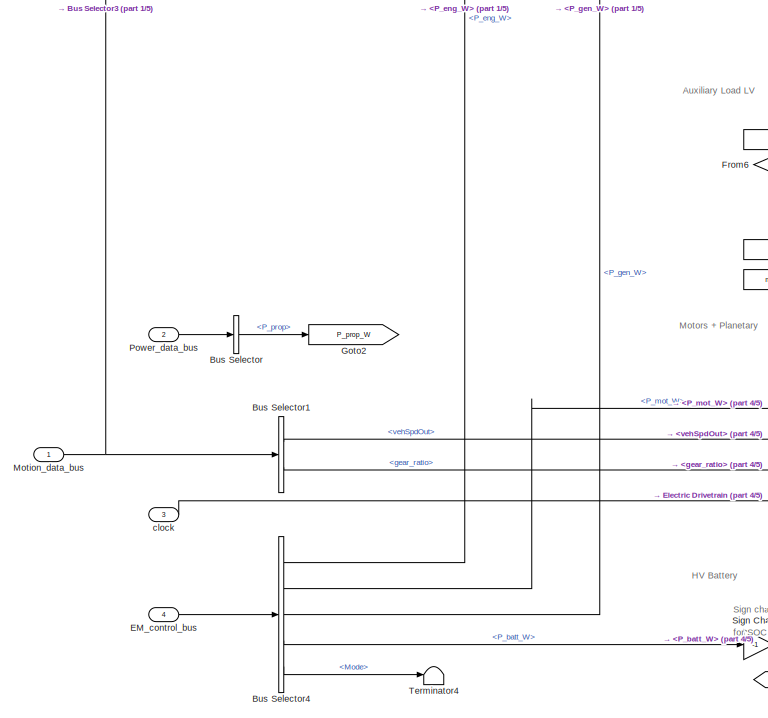
[diagram: Series Parallel Hybrid Electric Truck/Series Parallel Hybrid Electric Powertrain Power Loss Model - part 3/5, middle left region]
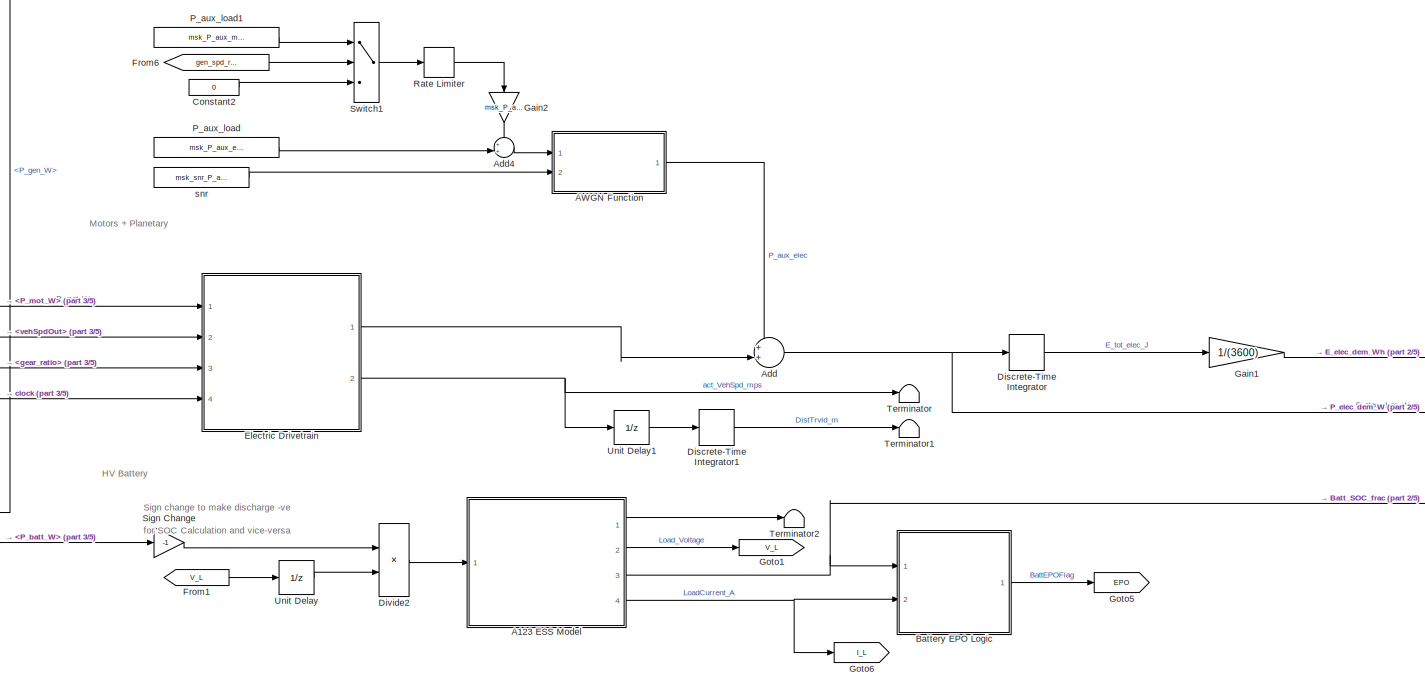
[diagram: Series Parallel Hybrid Electric Truck/Series Parallel Hybrid Electric Powertrain Power Loss Model - part 4/5, bottom center region]
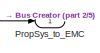
[diagram: Series Parallel Hybrid Electric Truck/Series Parallel Hybrid Electric Powertrain Power Loss Model - part 5/5, bottom right region]
BLOCK [SubSystem] Series Parallel Hybrid Electric Truck/Series Parallel Hybrid Electric Powertrain Power Loss Model
  Ports = [5, 1]
  RequestExecContextInheritance = off
BLOCK [SubSystem] Series Parallel Hybrid Electric Truck/Series Parallel Hybrid Electric Powertrain Power Loss Model/A123 ESS Model
  Ports = [1, 4]
  RequestExecContextInheritance = off
BLOCK [Sum] Series Parallel Hybrid Electric Truck/Series Parallel Hybrid Electric Powertrain Power Loss Model/A123 ESS Model/Add
  InputSameDT = off
  Inputs = ++++
  OutDataTypeStr = Inherit: Inherit via internal rule
  Ports = [4, 1]
  SaturateOnIntegerOverflow = off
BLOCK [BusCreator] Series Parallel Hybrid Electric Truck/Series Parallel Hybrid Electric Powertrain Power Loss Model/A123 ESS Model/Bus Creator
  DisplayOption = bar
  InheritFromInputs = on
  Inputs = 7
  Ports = [7, 1]
BLOCK [Outport] Series Parallel Hybrid Electric Truck/Series Parallel Hybrid Electric Powertrain Power Loss Model/A123 ESS Model/Current
  IconDisplay = Port number
  Port = 4
BLOCK [From] Series Parallel Hybrid Electric Truck/Series Parallel Hybrid Electric Powertrain Power Loss Model/A123 ESS Model/From
  GotoTag = U_PA
BLOCK [From] Series Parallel Hybrid Electric Truck/Series Parallel Hybrid Electric Powertrain Power Loss Model/A123 ESS Model/From1
  GotoTag = U_PC
BLOCK [From] Series Parallel Hybrid Electric Truck/Series Parallel Hybrid Electric Powertrain Power Loss Model/A123 ESS Model/From2
  GotoTag = V_R0
BLOCK [From] Series Parallel Hybrid Electric Truck/Series Parallel Hybrid Electric Powertrain Power Loss Model/A123 ESS Model/From3
  GotoTag = Em
BLOCK [From] Series Parallel Hybrid Electric Truck/Series Parallel Hybrid Electric Powertrain Power Loss Model/A123 ESS Model/From4
  GotoTag = V_L
BLOCK [From] Series Parallel Hybrid Electric Truck/Series Parallel Hybrid Electric Powertrain Power Loss Model/A123 ESS Model/From5
  GotoTag = SOC
BLOCK [From] Series Parallel Hybrid Electric Truck/Series Parallel Hybrid Electric Powertrain Power Loss Model/A123 ESS Model/From6
  GotoTag = current
BLOCK [Goto] Series Parallel Hybrid Electric Truck/Series Parallel Hybrid Electric Powertrain Power Loss Model/A123 ESS Model/Goto
  GotoTag = U_PA
BLOCK [Goto] Series Parallel Hybrid Electric Truck/Series Parallel Hybrid Electric Powertrain Power Loss Model/A123 ESS Model/Goto1
  GotoTag = U_PC
BLOCK [Goto] Series Parallel Hybrid Electric Truck/Series Parallel Hybrid Electric Powertrain Power Loss Model/A123 ESS Model/Goto2
  GotoTag = V_R0
BLOCK [Goto] Series Parallel Hybrid Electric Truck/Series Parallel Hybrid Electric Powertrain Power Loss Model/A123 ESS Model/Goto3
  GotoTag = V_L
BLOCK [Goto] Series Parallel Hybrid Electric Truck/Series Parallel Hybrid Electric Powertrain Power Loss Model/A123 ESS Model/Goto4
  GotoTag = Em
BLOCK [Goto] Series Parallel Hybrid Electric Truck/Series Parallel Hybrid Electric Powertrain Power Loss Model/A123 ESS Model/Goto5
  GotoTag = SOC
BLOCK [Goto] Series Parallel Hybrid Electric Truck/Series Parallel Hybrid Electric Powertrain Power Loss Model/A123 ESS Model/Goto6
  GotoTag = current
BLOCK [Outport] Series Parallel Hybrid Electric Truck/Series Parallel Hybrid Electric Powertrain Power Loss Model/A123 ESS Model/Info
  IconDisplay = Port number
BLOCK [Inport] Series Parallel Hybrid Electric Truck/Series Parallel Hybrid Electric Powertrain Power Loss Model/A123 ESS Model/Inp_Current
  IconDisplay = Port number
BLOCK [Outport] Series Parallel Hybrid Electric Truck/Series Parallel Hybrid Electric Powertrain Power Loss Model/A123 ESS Model/Load_Voltage
  IconDisplay = Port number
  Port = 2
BLOCK [SubSystem] Series Parallel Hybrid Electric Truck/Series Parallel Hybrid Electric Powertrain Power Loss Model/A123 ESS Model/OCV_Battery
  Ports = [1, 3]
  RequestExecContextInheritance = off
BLOCK [Sum] Series Parallel Hybrid Electric Truck/Series Parallel Hybrid Electric Powertrain Power Loss Model/A123 ESS Model/OCV_Battery/Add
  InputSameDT = off
  OutDataTypeStr = Inherit: Inherit via internal rule
  Ports = [2, 1]
  SaturateOnIntegerOverflow = off
BLOCK [Outport] Series Parallel Hybrid Electric Truck/Series Parallel Hybrid Electric Powertrain Power Loss Model/A123 ESS Model/OCV_Battery/BattVolt_calc
  IconDisplay = Port number
  Port = 3
BLOCK [Constant] Series Parallel Hybrid Electric Truck/Series Parallel Hybrid Electric Powertrain Power Loss Model/A123 ESS Model/OCV_Battery/Constant
  Value = msk_batt_Ns
BLOCK [Constant] Series Parallel Hybrid Electric Truck/Series Parallel Hybrid Electric Powertrain Power Loss Model/A123 ESS Model/OCV_Battery/Constant1
  Value = msk_cell_Q_Ah * msk_batt_Np
BLOCK [Constant] Series Parallel Hybrid Electric Truck/Series Parallel Hybrid Electric Powertrain Power Loss Model/A123 ESS Model/OCV_Battery/Constant2
  Value = msk_batt_Nmod
BLOCK [Inport] Series Parallel Hybrid Electric Truck/Series Parallel Hybrid Electric Powertrain Power Loss Model/A123 ESS Model/OCV_Battery/Current
  IconDisplay = Port number
BLOCK [Outport] Series Parallel Hybrid Electric Truck/Series Parallel Hybrid Electric Powertrain Power Loss Model/A123 ESS Model/OCV_Battery/Current_pt
  IconDisplay = Port number
  Port = 2
BLOCK [Product] Series Parallel Hybrid Electric Truck/Series Parallel Hybrid Electric Powertrain Power Loss Model/A123 ESS Model/OCV_Battery/Divide
  InputSameDT = off
  Inputs = */
  OutDataTypeStr = Inherit: Inherit via internal rule
  Ports = [2, 1]
  RndMeth = Floor
  SaturateOnIntegerOverflow = off
BLOCK [Gain] Series Parallel Hybrid Electric Truck/Series Parallel Hybrid Electric Powertrain Power Loss Model/A123 ESS Model/OCV_Battery/Gain
  Gain = msk_t_step/3600
  OutDataTypeStr = Inherit: Inherit via internal rule
  ParamDataTypeStr = Inherit: Inherit via internal rule
  SaturateOnIntegerOverflow = off
BLOCK [Memory] Series Parallel Hybrid Electric Truck/Series Parallel Hybrid Electric Powertrain Power Loss Model/A123 ESS Model/OCV_Battery/Memory
  InheritSampleTime = on
  InitialCondition = msk_batt_soc_init
  LinearizeAsDelay = on
BLOCK [SubSystem] Series Parallel Hybrid Electric Truck/Series Parallel Hybrid Electric Powertrain Power Loss Model/A123 ESS Model/OCV_Battery/OCV Function
  ErrorFcn = Stateflow.Translate.translate
  PermitHierarchicalResolution = ExplicitOnly
  Ports = [2, 1]
  RequestExecContextInheritance = off
  SFBlockType = MATLAB Function
  TreatAsAtomicUnit = on
BLOCK [Demux] Series Parallel Hybrid Electric Truck/Series Parallel Hybrid Electric Powertrain Power Loss Model/A123 ESS Model/OCV_Battery/OCV Function/ Demux 
  Outputs = 1
  Ports = [1, 1]
BLOCK [S-Function] Series Parallel Hybrid Electric Truck/Series Parallel Hybrid Electric Powertrain Power Loss Model/A123 ESS Model/OCV_Battery/OCV Function/ SFunction 
  EnableBusSupport = off
  FunctionName = sf_sfun
  PortCounts = [2 2]
  Ports = [2, 2]
  SFcnIsStateOwnerBlock = off
  SFunctionDeploymentMode = off
  Tag = Stateflow S-Function platooning_custom_blocks 9
BLOCK [Terminator] Series Parallel Hybrid Electric Truck/Series Parallel Hybrid Electric Powertrain Power Loss Model/A123 ESS Model/OCV_Battery/OCV Function/ Terminator 
BLOCK [Inport] Series Parallel Hybrid Electric Truck/Series Parallel Hybrid Electric Powertrain Power Loss Model/A123 ESS Model/OCV_Battery/OCV Function/current
  IconDisplay = Port number
  Port = 2
BLOCK [Outport] Series Parallel Hybrid Electric Truck/Series Parallel Hybrid Electric Powertrain Power Loss Model/A123 ESS Model/OCV_Battery/OCV Function/ocv
  IconDisplay = Port number
BLOCK [Inport] Series Parallel Hybrid Electric Truck/Series Parallel Hybrid Electric Powertrain Power Loss Model/A123 ESS Model/OCV_Battery/OCV Function/soc
  IconDisplay = Port number
BLOCK [Product] Series Parallel Hybrid Electric Truck/Series Parallel Hybrid Electric Powertrain Power Loss Model/A123 ESS Model/OCV_Battery/Product
  InputSameDT = off
  Inputs = 3
  OutDataTypeStr = Inherit: Inherit via internal rule
  Ports = [3, 1]
  RndMeth = Floor
  SaturateOnIntegerOverflow = off
BLOCK [Outport] Series Parallel Hybrid Electric Truck/Series Parallel Hybrid Electric Powertrain Power Loss Model/A123 ESS Model/OCV_Battery/SOC_calc
  IconDisplay = Port number
BLOCK [SubSystem] Series Parallel Hybrid Electric Truck/Series Parallel Hybrid Electric Powertrain Power Loss Model/A123 ESS Model/R0 Resistance
  Ports = [2, 1]
  RequestExecContextInheritance = off
BLOCK [Reference] Series Parallel Hybrid Electric Truck/Series Parallel Hybrid Electric Powertrain Power Loss Model/A123 ESS Model/R0 Resistance/Compare To Zero  REF=simulink/Logic and Bit
Operations/Compare
To Zero
  Ports = [1, 1]
  SourceBlock = simulink/Logic and Bit\nOperations/Compare\nTo Zero
  SourceProductBaseCode = SL
  SourceProductName = Simulink
  SourceType = Compare To Zero
BLOCK [Inport] Series Parallel Hybrid Electric Truck/Series Parallel Hybrid Electric Powertrain Power Loss Model/A123 ESS Model/R0 Resistance/Current
  IconDisplay = Port number
  Port = 2
BLOCK [Product] Series Parallel Hybrid Electric Truck/Series Parallel Hybrid Electric Powertrain Power Loss Model/A123 ESS Model/R0 Resistance/Product
  InputSameDT = off
  OutDataTypeStr = Inherit: Inherit via internal rule
  Ports = [2, 1]
  RndMeth = Floor
  SaturateOnIntegerOverflow = off
BLOCK [Lookup_n-D] Series Parallel Hybrid Electric Truck/Series Parallel Hybrid Electric Powertrain Power Loss Model/A123 ESS Model/R0 Resistance/R0 LUT Chg
  BreakpointsForDimension1 = msk_batt_soc_bpt
  ExtrapMethod = Clip
  InternalRulePriority = Speed
  NumberOfTableDimensions = 1
  Ports = [1, 1]
  RndMeth = Simplest
  Table = msk_batt_R0 * 0.05
  UseLastTableValue = on
BLOCK [Lookup_n-D] Series Parallel Hybrid Electric Truck/Series Parallel Hybrid Electric Powertrain Power Loss Model/A123 ESS Model/R0 Resistance/R0 LUT Dchg
  BreakpointsForDimension1 = msk_batt_soc_bpt
  ExtrapMethod = Clip
  InternalRulePriority = Speed
  NumberOfTableDimensions = 1
  Ports = [1, 1]
  RndMeth = Simplest
  Table = msk_batt_R0 * 0.25
  UseLastTableValue = on
BLOCK [Inport] Series Parallel Hybrid Electric Truck/Series Parallel Hybrid Electric Powertrain Power Loss Model/A123 ESS Model/R0 Resistance/SOC
  IconDisplay = Port number
BLOCK [Switch] Series Parallel Hybrid Electric Truck/Series Parallel Hybrid Electric Powertrain Power Loss Model/A123 ESS Model/R0 Resistance/Switch
  Criteria = u2 > Threshold
  InputSameDT = off
  SaturateOnIntegerOverflow = off
BLOCK [Outport] Series Parallel Hybrid Electric Truck/Series Parallel Hybrid Electric Powertrain Power Loss Model/A123 ESS Model/R0 Resistance/V_R0
  IconDisplay = Port number
BLOCK [SubSystem] Series Parallel Hybrid Electric Truck/Series Parallel Hybrid Electric Powertrain Power Loss Model/A123 ESS Model/R1_C1 Circuit
  Ports = [2, 1]
  RequestExecContextInheritance = off
BLOCK [Sum] Series Parallel Hybrid Electric Truck/Series Parallel Hybrid Electric Powertrain Power Loss Model/A123 ESS Model/R1_C1 Circuit/Add1
  InputSameDT = off
  OutDataTypeStr = Inherit: Inherit via internal rule
  Ports = [2, 1]
  SaturateOnIntegerOverflow = off
BLOCK [Lookup_n-D] Series Parallel Hybrid Electric Truck/Series Parallel Hybrid Electric Powertrain Power Loss Model/A123 ESS Model/R1_C1 Circuit/C1 LUT
  BreakpointsForDimension1 = msk_batt_soc_bpt
  ExtrapMethod = Clip
  InternalRulePriority = Speed
  NumberOfTableDimensions = 1
  Ports = [1, 1]
  RndMeth = Simplest
  Table = msk_batt_C1
  UseLastTableValue = on
BLOCK [Inport] Series Parallel Hybrid Electric Truck/Series Parallel Hybrid Electric Powertrain Power Loss Model/A123 ESS Model/R1_C1 Circuit/Current
  IconDisplay = Port number
  Port = 2
BLOCK [DiscreteIntegrator] Series Parallel Hybrid Electric Truck/Series Parallel Hybrid Electric Powertrain Power Loss Model/A123 ESS Model/R1_C1 Circuit/Discrete-Time Integrator
  ICPrevOutput = DiscIntNeverNeededParam
  ICPrevScaledInput = DiscIntNeverNeededParam
  InitialConditionSetting = Auto
  Ports = [1, 1]
  SampleTime = -1
BLOCK [Product] Series Parallel Hybrid Electric Truck/Series Parallel Hybrid Electric Powertrain Power Loss Model/A123 ESS Model/R1_C1 Circuit/Divide
  InputSameDT = off
  Inputs = */
  OutDataTypeStr = Inherit: Inherit via internal rule
  Ports = [2, 1]
  RndMeth = Floor
  SaturateOnIntegerOverflow = off
BLOCK [Product] Series Parallel Hybrid Electric Truck/Series Parallel Hybrid Electric Powertrain Power Loss Model/A123 ESS Model/R1_C1 Circuit/Divide1
  InputSameDT = off
  Inputs = */
  OutDataTypeStr = Inherit: Inherit via internal rule
  Ports = [2, 1]
  RndMeth = Floor
  SaturateOnIntegerOverflow = off
BLOCK [Product] Series Parallel Hybrid Electric Truck/Series Parallel Hybrid Electric Powertrain Power Loss Model/A123 ESS Model/R1_C1 Circuit/Product
  InputSameDT = off
  OutDataTypeStr = Inherit: Inherit via internal rule
  Ports = [2, 1]
  RndMeth = Floor
  SaturateOnIntegerOverflow = off
BLOCK [Lookup_n-D] Series Parallel Hybrid Electric Truck/Series Parallel Hybrid Electric Powertrain Power Loss Model/A123 ESS Model/R1_C1 Circuit/R1 LUT
  BreakpointsForDimension1 = msk_batt_soc_bpt
  ExtrapMethod = Clip
  InternalRulePriority = Speed
  NumberOfTableDimensions = 1
  Ports = [1, 1]
  RndMeth = Simplest
  Table = msk_batt_R1
  UseLastTableValue = on
BLOCK [Inport] Series Parallel Hybrid Electric Truck/Series Parallel Hybrid Electric Powertrain Power Loss Model/A123 ESS Model/R1_C1 Circuit/SOC
  IconDisplay = Port number
BLOCK [Outport] Series Parallel Hybrid Electric Truck/Series Parallel Hybrid Electric Powertrain Power Loss Model/A123 ESS Model/R1_C1 Circuit/U_PC
  IconDisplay = Port number
BLOCK [SubSystem] Series Parallel Hybrid Electric Truck/Series Parallel Hybrid Electric Powertrain Power Loss Model/A123 ESS Model/R2_C2 Circuit
  Ports = [2, 1]
  RequestExecContextInheritance = off
BLOCK [Sum] Series Parallel Hybrid Electric Truck/Series Parallel Hybrid Electric Powertrain Power Loss Model/A123 ESS Model/R2_C2 Circuit/Add1
  InputSameDT = off
  OutDataTypeStr = Inherit: Inherit via internal rule
  Ports = [2, 1]
  SaturateOnIntegerOverflow = off
BLOCK [Lookup_n-D] Series Parallel Hybrid Electric Truck/Series Parallel Hybrid Electric Powertrain Power Loss Model/A123 ESS Model/R2_C2 Circuit/C2 LUT
  BreakpointsForDimension1 = msk_batt_soc_bpt
  ExtrapMethod = Clip
  InternalRulePriority = Speed
  NumberOfTableDimensions = 1
  Ports = [1, 1]
  RndMeth = Simplest
  Table = msk_batt_C2
  UseLastTableValue = on
BLOCK [Inport] Series Parallel Hybrid Electric Truck/Series Parallel Hybrid Electric Powertrain Power Loss Model/A123 ESS Model/R2_C2 Circuit/Current
  IconDisplay = Port number
  Port = 2
BLOCK [DiscreteIntegrator] Series Parallel Hybrid Electric Truck/Series Parallel Hybrid Electric Powertrain Power Loss Model/A123 ESS Model/R2_C2 Circuit/Discrete-Time Integrator
  ICPrevOutput = DiscIntNeverNeededParam
  ICPrevScaledInput = DiscIntNeverNeededParam
  InitialConditionSetting = Auto
  Ports = [1, 1]
  SampleTime = -1
BLOCK [Product] Series Parallel Hybrid Electric Truck/Series Parallel Hybrid Electric Powertrain Power Loss Model/A123 ESS Model/R2_C2 Circuit/Divide
  InputSameDT = off
  Inputs = */
  OutDataTypeStr = Inherit: Inherit via internal rule
  Ports = [2, 1]
  RndMeth = Floor
  SaturateOnIntegerOverflow = off
BLOCK [Product] Series Parallel Hybrid Electric Truck/Series Parallel Hybrid Electric Powertrain Power Loss Model/A123 ESS Model/R2_C2 Circuit/Divide1
  InputSameDT = off
  Inputs = */
  OutDataTypeStr = Inherit: Inherit via internal rule
  Ports = [2, 1]
  RndMeth = Floor
  SaturateOnIntegerOverflow = off
BLOCK [Product] Series Parallel Hybrid Electric Truck/Series Parallel Hybrid Electric Powertrain Power Loss Model/A123 ESS Model/R2_C2 Circuit/Product
  InputSameDT = off
  OutDataTypeStr = Inherit: Inherit via internal rule
  Ports = [2, 1]
  RndMeth = Floor
  SaturateOnIntegerOverflow = off
BLOCK [Lookup_n-D] Series Parallel Hybrid Electric Truck/Series Parallel Hybrid Electric Powertrain Power Loss Model/A123 ESS Model/R2_C2 Circuit/R2 LUT
  BreakpointsForDimension1 = msk_batt_soc_bpt
  ExtrapMethod = Clip
  InternalRulePriority = Speed
  NumberOfTableDimensions = 1
  Ports = [1, 1]
  RndMeth = Simplest
  Table = msk_batt_R2
  UseLastTableValue = on
BLOCK [Inport] Series Parallel Hybrid Electric Truck/Series Parallel Hybrid Electric Powertrain Power Loss Model/A123 ESS Model/R2_C2 Circuit/SOC
  IconDisplay = Port number
BLOCK [Outport] Series Parallel Hybrid Electric Truck/Series Parallel Hybrid Electric Powertrain Power Loss Model/A123 ESS Model/R2_C2 Circuit/U_PA
  IconDisplay = Port number
BLOCK [Outport] Series Parallel Hybrid Electric Truck/Series Parallel Hybrid Electric Powertrain Power Loss Model/A123 ESS Model/SOC
  IconDisplay = Port number
  Port = 3
BLOCK [SubSystem] Series Parallel Hybrid Electric Truck/Series Parallel Hybrid Electric Powertrain Power Loss Model/AWGN Function
  ErrorFcn = Stateflow.Translate.translate
  PermitHierarchicalResolution = ExplicitOnly
  Ports = [2, 1]
  RequestExecContextInheritance = off
  SFBlockType = MATLAB Function
  TreatAsAtomicUnit = on
BLOCK [Demux] Series Parallel Hybrid Electric Truck/Series Parallel Hybrid Electric Powertrain Power Loss Model/AWGN Function/ Demux 
  Outputs = 1
  Ports = [1, 1]
BLOCK [S-Function] Series Parallel Hybrid Electric Truck/Series Parallel Hybrid Electric Powertrain Power Loss Model/AWGN Function/ SFunction 
  EnableBusSupport = off
  FunctionName = sf_sfun
  PortCounts = [2 2]
  Ports = [2, 2]
  SFcnIsStateOwnerBlock = off
  SFunctionDeploymentMode = off
  Tag = Stateflow S-Function platooning_custom_blocks 10
BLOCK [Terminator] Series Parallel Hybrid Electric Truck/Series Parallel Hybrid Electric Powertrain Power Loss Model/AWGN Function/ Terminator 
BLOCK [Inport] Series Parallel Hybrid Electric Truck/Series Parallel Hybrid Electric Powertrain Power Loss Model/AWGN Function/inp
  IconDisplay = Port number
BLOCK [Outport] Series Parallel Hybrid Electric Truck/Series Parallel Hybrid Electric Powertrain Power Loss Model/AWGN Function/out
  IconDisplay = Port number
BLOCK [Inport] Series Parallel Hybrid Electric Truck/Series Parallel Hybrid Electric Powertrain Power Loss Model/AWGN Function/snr
  IconDisplay = Port number
  Port = 2
BLOCK [Sum] Series Parallel Hybrid Electric Truck/Series Parallel Hybrid Electric Powertrain Power Loss Model/Add
  IconShape = round
  InputSameDT = off
  Inputs = ++|
  OutDataTypeStr = Inherit: Inherit via internal rule
  Ports = [2, 1]
  SaturateOnIntegerOverflow = off
BLOCK [Sum] Series Parallel Hybrid Electric Truck/Series Parallel Hybrid Electric Powertrain Power Loss Model/Add1
  IconShape = round
  InputSameDT = off
  Inputs = ++|
  OutDataTypeStr = Inherit: Inherit via internal rule
  Ports = [2, 1]
  SaturateOnIntegerOverflow = off
BLOCK [Sum] Series Parallel Hybrid Electric Truck/Series Parallel Hybrid Electric Powertrain Power Loss Model/Add2
  IconShape = round
  InputSameDT = off
  Inputs = ++|
  OutDataTypeStr = Inherit: Inherit via internal rule
  Ports = [2, 1]
  SaturateOnIntegerOverflow = off
BLOCK [Sum] Series Parallel Hybrid Electric Truck/Series Parallel Hybrid Electric Powertrain Power Loss Model/Add3
  IconShape = round
  InputSameDT = off
  Inputs = ++|
  OutDataTypeStr = Inherit: Inherit via internal rule
  Ports = [2, 1]
  SaturateOnIntegerOverflow = off
BLOCK [Sum] Series Parallel Hybrid Electric Truck/Series Parallel Hybrid Electric Powertrain Power Loss Model/Add4
  IconShape = round
  InputSameDT = off
  Inputs = ++|
  OutDataTypeStr = Inherit: Inherit via internal rule
  Ports = [2, 1]
  SaturateOnIntegerOverflow = off
BLOCK [SubSystem] Series Parallel Hybrid Electric Truck/Series Parallel Hybrid Electric Powertrain Power Loss Model/Battery EPO Logic
  Ports = [2, 1]
  RequestExecContextInheritance = off
BLOCK [Reference] Series Parallel Hybrid Electric Truck/Series Parallel Hybrid Electric Powertrain Power Loss Model/Battery EPO Logic/10-second average  REF=dspstat3/Moving
Average
  Ports = [1, 1]
  SourceBlock = dspstat3/Moving\nAverage
  SourceProductBaseCode = DS
  SourceProductName = DSP System Toolbox
  SourceType = dsp.simulink.MovingAverage
BLOCK [Lookup_n-D] Series Parallel Hybrid Electric Truck/Series Parallel Hybrid Electric Powertrain Power Loss Model/Battery EPO Logic/10sec Discharge Limit Table A123
  BreakpointsForDimension1 = msk_cellTempbpt
  BreakpointsForDimension2 = msk_soc_bpt
  ExtrapMethod = Clip
  InternalRulePriority = Speed
  Ports = [2, 1]
  RndMeth = Simplest
  Table = msk_dchglim10s
  UseLastTableValue = on
BLOCK [Outport] Series Parallel Hybrid Electric Truck/Series Parallel Hybrid Electric Powertrain Power Loss Model/Battery EPO Logic/Batt_EPO
  IconDisplay = Port number
BLOCK [Inport] Series Parallel Hybrid Electric Truck/Series Parallel Hybrid Electric Powertrain Power Loss Model/Battery EPO Logic/Batt_SOC_frac
  IconDisplay = Port number
BLOCK [SubSystem] Series Parallel Hybrid Electric Truck/Series Parallel Hybrid Electric Powertrain Power Loss Model/Battery EPO Logic/Battery EPO Constraint Logic
  ErrorFcn = Stateflow.Translate.translate
  PermitHierarchicalResolution = ExplicitOnly
  Ports = [2, 1]
  RequestExecContextInheritance = off
  SFBlockType = Chart
  TreatAsAtomicUnit = on
BLOCK [Demux] Series Parallel Hybrid Electric Truck/Series Parallel Hybrid Electric Powertrain Power Loss Model/Battery EPO Logic/Battery EPO Constraint Logic/ Demux 
  Outputs = 1
  Ports = [1, 1]
BLOCK [S-Function] Series Parallel Hybrid Electric Truck/Series Parallel Hybrid Electric Powertrain Power Loss Model/Battery EPO Logic/Battery EPO Constraint Logic/ SFunction 
  EnableBusSupport = off
  FunctionName = sf_sfun
  PortCounts = [2 2]
  Ports = [2, 2]
  SFcnIsStateOwnerBlock = off
  SFunctionDeploymentMode = off
  Tag = Stateflow S-Function platooning_custom_blocks 11
BLOCK [Terminator] Series Parallel Hybrid Electric Truck/Series Parallel Hybrid Electric Powertrain Power Loss Model/Battery EPO Logic/Battery EPO Constraint Logic/ Terminator 
BLOCK [Inport] Series Parallel Hybrid Electric Truck/Series Parallel Hybrid Electric Powertrain Power Loss Model/Battery EPO Logic/Battery EPO Constraint Logic/DchgCurrLim
  IconDisplay = Port number
BLOCK [Inport] Series Parallel Hybrid Electric Truck/Series Parallel Hybrid Electric Powertrain Power Loss Model/Battery EPO Logic/Battery EPO Constraint Logic/LoadCurr
  IconDisplay = Port number
  Port = 2
BLOCK [Outport] Series Parallel Hybrid Electric Truck/Series Parallel Hybrid Electric Powertrain Power Loss Model/Battery EPO Logic/Battery EPO Constraint Logic/epo_flag
  IconDisplay = Port number
BLOCK [Constant] Series Parallel Hybrid Electric Truck/Series Parallel Hybrid Electric Powertrain Power Loss Model/Battery EPO Logic/CellTemp degC
  Value = 35
BLOCK [Gain] Series Parallel Hybrid Electric Truck/Series Parallel Hybrid Electric Powertrain Power Loss Model/Battery EPO Logic/Gain1
  Gain = -1
  OutDataTypeStr = Inherit: Inherit via internal rule
  ParamDataTypeStr = Inherit: Inherit via internal rule
  SaturateOnIntegerOverflow = off
BLOCK [Inport] Series Parallel Hybrid Electric Truck/Series Parallel Hybrid Electric Powertrain Power Loss Model/Battery EPO Logic/LoadCurrent_A
  IconDisplay = Port number
  Port = 2
BLOCK [BusCreator] Series Parallel Hybrid Electric Truck/Series Parallel Hybrid Electric Powertrain Power Loss Model/Bus Creator
  DisplayOption = bar
  InheritFromInputs = on
  Inputs = 18
  Ports = [18, 1]
BLOCK [BusSelector] Series Parallel Hybrid Electric Truck/Series Parallel Hybrid Electric Powertrain Power Loss Model/Bus Selector
  OutputAsBus = off
  OutputSignals = P_prop
  Ports = [1, 1]
BLOCK [BusSelector] Series Parallel Hybrid Electric Truck/Series Parallel Hybrid Electric Powertrain Power Loss Model/Bus Selector1
  OutputAsBus = off
  OutputSignals = vehSpdOut,gear_ratio
  Ports = [1, 2]
BLOCK [BusSelector] Series Parallel Hybrid Electric Truck/Series Parallel Hybrid Electric Powertrain Power Loss Model/Bus Selector3
  OutputAsBus = off
  OutputSignals = gear_cmd,gear_ratio,vehSpdOut
  Ports = [1, 3]
BLOCK [BusSelector] Series Parallel Hybrid Electric Truck/Series Parallel Hybrid Electric Powertrain Power Loss Model/Bus Selector4
  OutputAsBus = off
  OutputSignals = P_eng_W,P_mot_W,P_gen_W,P_batt_W,Mode
  Ports = [1, 5]
BLOCK [Constant] Series Parallel Hybrid Electric Truck/Series Parallel Hybrid Electric Powertrain Power Loss Model/Constant
  Value = msk_tire_radius_m
BLOCK [Constant] Series Parallel Hybrid Electric Truck/Series Parallel Hybrid Electric Powertrain Power Loss Model/Constant1
BLOCK [Constant] Series Parallel Hybrid Electric Truck/Series Parallel Hybrid Electric Powertrain Power Loss Model/Constant2
  Value = 0
BLOCK [LookupNDDirect] Series Parallel Hybrid Electric Truck/Series Parallel Hybrid Electric Powertrain Power Loss Model/Direct Lookup Table (n-D)
  NumberOfTableDimensions = 1
  Ports = [2, 1]
  TableIsInput = on
BLOCK [DiscreteIntegrator] Series Parallel Hybrid Electric Truck/Series Parallel Hybrid Electric Powertrain Power Loss Model/Discrete-Time Integrator
  ICPrevOutput = DiscIntNeverNeededParam
  ICPrevScaledInput = DiscIntNeverNeededParam
  InitialConditionSetting = Auto
  Ports = [1, 1]
  SampleTime = msk_t_step
BLOCK [DiscreteIntegrator] Series Parallel Hybrid Electric Truck/Series Parallel Hybrid Electric Powertrain Power Loss Model/Discrete-Time Integrator1
  ICPrevOutput = DiscIntNeverNeededParam
  ICPrevScaledInput = DiscIntNeverNeededParam
  InitialConditionSetting = Auto
  Ports = [1, 1]
  SampleTime = msk_t_step
BLOCK [DiscreteIntegrator] Series Parallel Hybrid Electric Truck/Series Parallel Hybrid Electric Powertrain Power Loss Model/Discrete-Time Integrator2
  ICPrevOutput = DiscIntNeverNeededParam
  ICPrevScaledInput = DiscIntNeverNeededParam
  InitialConditionSetting = Auto
  Ports = [1, 1]
  SampleTime = -1
BLOCK [DiscreteIntegrator] Series Parallel Hybrid Electric Truck/Series Parallel Hybrid Electric Powertrain Power Loss Model/Discrete-Time Integrator3
  ICPrevOutput = DiscIntNeverNeededParam
  ICPrevScaledInput = DiscIntNeverNeededParam
  InitialConditionSetting = Auto
  InitialConditionSource = external
  Ports = [2, 1]
  SampleTime = msk_t_step
BLOCK [Product] Series Parallel Hybrid Electric Truck/Series Parallel Hybrid Electric Powertrain Power Loss Model/Divide
  InputSameDT = off
  Inputs = */
  OutDataTypeStr = Inherit: Inherit via internal rule
  Ports = [2, 1]
  RndMeth = Floor
  SaturateOnIntegerOverflow = off
BLOCK [Product] Series Parallel Hybrid Electric Truck/Series Parallel Hybrid Electric Powertrain Power Loss Model/Divide1
  InputSameDT = off
  Inputs = */
  OutDataTypeStr = Inherit: Inherit via internal rule
  Ports = [2, 1]
  RndMeth = Floor
  SaturateOnIntegerOverflow = off
BLOCK [Product] Series Parallel Hybrid Electric Truck/Series Parallel Hybrid Electric Powertrain Power Loss Model/Divide2
  InputSameDT = off
  Inputs = */
  OutDataTypeStr = Inherit: Inherit via internal rule
  Ports = [2, 1]
  RndMeth = Floor
  SaturateOnIntegerOverflow = off
BLOCK [Product] Series Parallel Hybrid Electric Truck/Series Parallel Hybrid Electric Powertrain Power Loss Model/Divide3
  InputSameDT = off
  Inputs = */
  OutDataTypeStr = Inherit: Inherit via internal rule
  Ports = [2, 1]
  RndMeth = Floor
  SaturateOnIntegerOverflow = off
BLOCK [Gain] Series Parallel Hybrid Electric Truck/Series Parallel Hybrid Electric Powertrain Power Loss Model/Driveline Efficiency
  Gain = 1/msk_drv_eff
  OutDataTypeStr = Inherit: Inherit via internal rule
  ParamDataTypeStr = Inherit: Inherit via internal rule
  SaturateOnIntegerOverflow = off
BLOCK [Inport] Series Parallel Hybrid Electric Truck/Series Parallel Hybrid Electric Powertrain Power Loss Model/EM_control_bus
  IconDisplay = Port number
  Port = 4
BLOCK [Constant] Series Parallel Hybrid Electric Truck/Series Parallel Hybrid Electric Powertrain Power Loss Model/Efficiency Table
  Value = msk_gear_eff_vec
BLOCK [SubSystem] Series Parallel Hybrid Electric Truck/Series Parallel Hybrid Electric Powertrain Power Loss Model/Electric Drivetrain
  Ports = [4, 2]
  RequestExecContextInheritance = off
BLOCK [Inport] Series Parallel Hybrid Electric Truck/Series Parallel Hybrid Electric Powertrain Power Loss Model/Electric Drivetrain/Clock
  IconDisplay = Port number
  Port = 4
BLOCK [Constant] Series Parallel Hybrid Electric Truck/Series Parallel Hybrid Electric Powertrain Power Loss Model/Electric Drivetrain/Constant
  Commented = on
  Value = 0
BLOCK [Product] Series Parallel Hybrid Electric Truck/Series Parallel Hybrid Electric Powertrain Power Loss Model/Electric Drivetrain/Divide
  InputSameDT = off
  Inputs = */
  OutDataTypeStr = Inherit: Inherit via internal rule
  Ports = [2, 1]
  RndMeth = Floor
  SaturateOnIntegerOverflow = off
BLOCK [Product] Series Parallel Hybrid Electric Truck/Series Parallel Hybrid Electric Powertrain Power Loss Model/Electric Drivetrain/Divide1
  Commented = on
  InputSameDT = off
  Inputs = */
  OutDataTypeStr = Inherit: Inherit via internal rule
  Ports = [2, 1]
  RndMeth = Floor
  SaturateOnIntegerOverflow = off
BLOCK [Product] Series Parallel Hybrid Electric Truck/Series Parallel Hybrid Electric Powertrain Power Loss Model/Electric Drivetrain/Divide2
  Commented = on
  InputSameDT = off
  Inputs = */
  OutDataTypeStr = Inherit: Inherit via internal rule
  Ports = [2, 1]
  RndMeth = Floor
  SaturateOnIntegerOverflow = off
BLOCK [Product] Series Parallel Hybrid Electric Truck/Series Parallel Hybrid Electric Powertrain Power Loss Model/Electric Drivetrain/Divide3
  InputSameDT = off
  Inputs = */
  OutDataTypeStr = Inherit: Inherit via internal rule
  Ports = [2, 1]
  RndMeth = Floor
  SaturateOnIntegerOverflow = off
BLOCK [Lookup_n-D] Series Parallel Hybrid Electric Truck/Series Parallel Hybrid Electric Powertrain Power Loss Model/Electric Drivetrain/EMRAX 268 Torque-Speed Curve Continuous
  BreakpointsForDimension1 = msk_mot_spd_bpt
  Commented = on
  InternalRulePriority = Speed
  NumberOfTableDimensions = 1
  Ports = [1, 1]
  RndMeth = Simplest
  Table = msk_mot_cont_trq
BLOCK [Lookup_n-D] Series Parallel Hybrid Electric Truck/Series Parallel Hybrid Electric Powertrain Power Loss Model/Electric Drivetrain/Efficiency Table
  BreakpointsForDimension1 = motTrqVec
  BreakpointsForDimension2 = motSpdVec
  Commented = on
  ExtrapMethod = Clip
  InternalRulePriority = Speed
  Ports = [2, 1]
  RndMeth = Simplest
  Table = adj_motEffMap
  UseLastTableValue = on
BLOCK [From] Series Parallel Hybrid Electric Truck/Series Parallel Hybrid Electric Powertrain Power Loss Model/Electric Drivetrain/From
  Commented = on
  GotoTag = zcflag_1
BLOCK [From] Series Parallel Hybrid Electric Truck/Series Parallel Hybrid Electric Powertrain Power Loss Model/Electric Drivetrain/From1
  GotoTag = P_elec
BLOCK [Gain] Series Parallel Hybrid Electric Truck/Series Parallel Hybrid Electric Powertrain Power Loss Model/Electric Drivetrain/Gain
  Commented = on
  Gain = -1
  OutDataTypeStr = Inherit: Inherit via internal rule
  ParamDataTypeStr = Inherit: Inherit via internal rule
  SaturateOnIntegerOverflow = off
BLOCK [Gain] Series Parallel Hybrid Electric Truck/Series Parallel Hybrid Electric Powertrain Power Loss Model/Electric Drivetrain/Gain1
  Gain = msk_plnt_m_r_ratio
  OutDataTypeStr = Inherit: Inherit via internal rule
  ParamDataTypeStr = Inherit: Inherit via internal rule
  SaturateOnIntegerOverflow = off
BLOCK [Gain] Series Parallel Hybrid Electric Truck/Series Parallel Hybrid Electric Powertrain Power Loss Model/Electric Drivetrain/Gain2
  Commented = on
  OutDataTypeStr = Inherit: Inherit via internal rule
  ParamDataTypeStr = Inherit: Inherit via internal rule
  SaturateOnIntegerOverflow = off
BLOCK [Gain] Series Parallel Hybrid Electric Truck/Series Parallel Hybrid Electric Powertrain Power Loss Model/Electric Drivetrain/Gain3
  Commented = on
  Gain = msk_mot_num
  OutDataTypeStr = Inherit: Inherit via internal rule
  ParamDataTypeStr = Inherit: Inherit via internal rule
  SaturateOnIntegerOverflow = off
BLOCK [Gain] Series Parallel Hybrid Electric Truck/Series Parallel Hybrid Electric Powertrain Power Loss Model/Electric Drivetrain/Gain4
  Gain = 1/msk_plnt_m_r_ratio
  OutDataTypeStr = Inherit: Inherit via internal rule
  ParamDataTypeStr = Inherit: Inherit via internal rule
  SaturateOnIntegerOverflow = off
BLOCK [Goto] Series Parallel Hybrid Electric Truck/Series Parallel Hybrid Electric Powertrain Power Loss Model/Electric Drivetrain/Goto
  GotoTag = zcflag_1
BLOCK [Goto] Series Parallel Hybrid Electric Truck/Series Parallel Hybrid Electric Powertrain Power Loss Model/Electric Drivetrain/Goto1
  GotoTag = P_elec
BLOCK [SubSystem] Series Parallel Hybrid Electric Truck/Series Parallel Hybrid Electric Powertrain Power Loss Model/Electric Drivetrain/MATLAB Function
  ErrorFcn = Stateflow.Translate.translate
  PermitHierarchicalResolution = ExplicitOnly
  Ports = [1, 2]
  RequestExecContextInheritance = off
  SFBlockType = MATLAB Function
  TreatAsAtomicUnit = on
BLOCK [Demux] Series Parallel Hybrid Electric Truck/Series Parallel Hybrid Electric Powertrain Power Loss Model/Electric Drivetrain/MATLAB Function/ Demux 
  Outputs = 1
  Ports = [1, 1]
BLOCK [S-Function] Series Parallel Hybrid Electric Truck/Series Parallel Hybrid Electric Powertrain Power Loss Model/Electric Drivetrain/MATLAB Function/ SFunction 
  EnableBusSupport = off
  FunctionName = sf_sfun
  PortCounts = [1 3]
  Ports = [1, 3]
  SFcnIsStateOwnerBlock = off
  SFunctionDeploymentMode = off
  Tag = Stateflow S-Function platooning_custom_blocks 12
BLOCK [Terminator] Series Parallel Hybrid Electric Truck/Series Parallel Hybrid Electric Powertrain Power Loss Model/Electric Drivetrain/MATLAB Function/ Terminator 
BLOCK [Outport] Series Parallel Hybrid Electric Truck/Series Parallel Hybrid Electric Powertrain Power Loss Model/Electric Drivetrain/MATLAB Function/flag
  IconDisplay = Port number
  Port = 2
BLOCK [Inport] Series Parallel Hybrid Electric Truck/Series Parallel Hybrid Electric Powertrain Power Loss Model/Electric Drivetrain/MATLAB Function/v_veh_mps
  IconDisplay = Port number
BLOCK [Outport] Series Parallel Hybrid Electric Truck/Series Parallel Hybrid Electric Powertrain Power Loss Model/Electric Drivetrain/MATLAB Function/v_veh_out_mps
  IconDisplay = Port number
BLOCK [SubSystem] Series Parallel Hybrid Electric Truck/Series Parallel Hybrid Electric Powertrain Power Loss Model/Electric Drivetrain/Motor Fault Injection
  Ports = [3, 1]
  RequestExecContextInheritance = off
BLOCK [Sum] Series Parallel Hybrid Electric Truck/Series Parallel Hybrid Electric Powertrain Power Loss Model/Electric Drivetrain/Motor Fault Injection/Add
  IconShape = round
  InputSameDT = off
  Inputs = |-+
  OutDataTypeStr = Inherit: Inherit via internal rule
  Ports = [2, 1]
  SaturateOnIntegerOverflow = off
BLOCK [Sum] Series Parallel Hybrid Electric Truck/Series Parallel Hybrid Electric Powertrain Power Loss Model/Electric Drivetrain/Motor Fault Injection/Add1
  InputSameDT = off
  OutDataTypeStr = Inherit: Inherit via internal rule
  Ports = [2, 1]
  SaturateOnIntegerOverflow = off
BLOCK [Inport] Series Parallel Hybrid Electric Truck/Series Parallel Hybrid Electric Powertrain Power Loss Model/Electric Drivetrain/Motor Fault Injection/Clock
  IconDisplay = Port number
  Port = 3
BLOCK [Constant] Series Parallel Hybrid Electric Truck/Series Parallel Hybrid Electric Powertrain Power Loss Model/Electric Drivetrain/Motor Fault Injection/Constant
  Value = t_fault
BLOCK [Constant] Series Parallel Hybrid Electric Truck/Series Parallel Hybrid Electric Powertrain Power Loss Model/Electric Drivetrain/Motor Fault Injection/Constant1
  Value = 0
BLOCK [Constant] Series Parallel Hybrid Electric Truck/Series Parallel Hybrid Electric Powertrain Power Loss Model/Electric Drivetrain/Motor Fault Injection/Constant2
  Value = contMotTrqMax
BLOCK [Delay] Series Parallel Hybrid Electric Truck/Series Parallel Hybrid Electric Powertrain Power Loss Model/Electric Drivetrain/Motor Fault Injection/Delay
  DelayLength = 1
  InputPortMap = u0
  Ports = [1, 1]
BLOCK [Reference] Series Parallel Hybrid Electric Truck/Series Parallel Hybrid Electric Powertrain Power Loss Model/Electric Drivetrain/Motor Fault Injection/Discrete PID Controller  REF=simulink/Continuous/PID Controller
  Ports = [1, 1]
  SourceBlock = simulink/Continuous/PID Controller
  SourceProductBaseCode = SL
  SourceProductName = Simulink
  SourceType = PID 1dof
BLOCK [Product] Series Parallel Hybrid Electric Truck/Series Parallel Hybrid Electric Powertrain Power Loss Model/Electric Drivetrain/Motor Fault Injection/Divide
  InputSameDT = off
  Inputs = */
  OutDataTypeStr = Inherit: Inherit via internal rule
  Ports = [2, 1]
  RndMeth = Floor
  SaturateOnIntegerOverflow = off
BLOCK [RelationalOperator] Series Parallel Hybrid Electric Truck/Series Parallel Hybrid Electric Powertrain Power Loss Model/Electric Drivetrain/Motor Fault Injection/Equal
  InputSameDT = off
  OutDataTypeStr = boolean
  Ports = [2, 1]
  RndMeth = Simplest
BLOCK [Assertion] Series Parallel Hybrid Electric Truck/Series Parallel Hybrid Electric Powertrain Power Loss Model/Electric Drivetrain/Motor Fault Injection/Fault Assertion
  AssertionFailFcn = set_param(bdroot,'SimulationCommand','pause');\ndisp('## Paused due to Motor fault insertion')
  Commented = on
  StopWhenAssertionFail = off
BLOCK [Gain] Series Parallel Hybrid Electric Truck/Series Parallel Hybrid Electric Powertrain Power Loss Model/Electric Drivetrain/Motor Fault Injection/Gain
  Gain = 2
  OutDataTypeStr = Inherit: Inherit via internal rule
  ParamDataTypeStr = Inherit: Inherit via internal rule
  SaturateOnIntegerOverflow = off
BLOCK [SubSystem] Series Parallel Hybrid Electric Truck/Series Parallel Hybrid Electric Powertrain Power Loss Model/Electric Drivetrain/Motor Fault Injection/Logic
  ErrorFcn = Stateflow.Translate.translate
  PermitHierarchicalResolution = ExplicitOnly
  Ports = [2, 1]
  RequestExecContextInheritance = off
  SFBlockType = Chart
  TreatAsAtomicUnit = on
BLOCK [Demux] Series Parallel Hybrid Electric Truck/Series Parallel Hybrid Electric Powertrain Power Loss Model/Electric Drivetrain/Motor Fault Injection/Logic/ Demux 
  Outputs = 1
  Ports = [1, 1]
BLOCK [S-Function] Series Parallel Hybrid Electric Truck/Series Parallel Hybrid Electric Powertrain Power Loss Model/Electric Drivetrain/Motor Fault Injection/Logic/ SFunction 
  EnableBusSupport = off
  FunctionName = sf_sfun
  PortCounts = [2 2]
  Ports = [2, 2]
  SFcnIsStateOwnerBlock = off
  SFunctionDeploymentMode = off
  Tag = Stateflow S-Function platooning_custom_blocks 13
BLOCK [Terminator] Series Parallel Hybrid Electric Truck/Series Parallel Hybrid Electric Powertrain Power Loss Model/Electric Drivetrain/Motor Fault Injection/Logic/ Terminator 
BLOCK [Inport] Series Parallel Hybrid Electric Truck/Series Parallel Hybrid Electric Powertrain Power Loss Model/Electric Drivetrain/Motor Fault Injection/Logic/choice
  IconDisplay = Port number
  Port = 2
BLOCK [Inport] Series Parallel Hybrid Electric Truck/Series Parallel Hybrid Electric Powertrain Power Loss Model/Electric Drivetrain/Motor Fault Injection/Logic/input
  IconDisplay = Port number
BLOCK [Outport] Series Parallel Hybrid Electric Truck/Series Parallel Hybrid Electric Powertrain Power Loss Model/Electric Drivetrain/Motor Fault Injection/Logic/trigger
  IconDisplay = Port number
BLOCK [Inport] Series Parallel Hybrid Electric Truck/Series Parallel Hybrid Electric Powertrain Power Loss Model/Electric Drivetrain/Motor Fault Injection/MOT_SPD_IN
  IconDisplay = Port number
BLOCK [Outport] Series Parallel Hybrid Electric Truck/Series Parallel Hybrid Electric Powertrain Power Loss Model/Electric Drivetrain/Motor Fault Injection/MOT_SPD_OUT
  IconDisplay = Port number
BLOCK [MultiPortSwitch] Series Parallel Hybrid Electric Truck/Series Parallel Hybrid Electric Powertrain Power Loss Model/Electric Drivetrain/Motor Fault Injection/Multiport Switch
  DataPortOrder = Zero-based contiguous
  InputSameDT = off
  Inputs = 2
  Ports = [3, 1]
  SaturateOnIntegerOverflow = off
  zeroidx = on
BLOCK [Inport] Series Parallel Hybrid Electric Truck/Series Parallel Hybrid Electric Powertrain Power Loss Model/Electric Drivetrain/Motor Fault Injection/P_ELEC
  IconDisplay = Port number
  Port = 2
BLOCK [Constant] Series Parallel Hybrid Electric Truck/Series Parallel Hybrid Electric Powertrain Power Loss Model/Electric Drivetrain/Motor Fault Injection/P_ref
  Value = P_derate/2
BLOCK [Constant] Series Parallel Hybrid Electric Truck/Series Parallel Hybrid Electric Powertrain Power Loss Model/Electric Drivetrain/Motor Fault Injection/P_ref1
  Value = inf
BLOCK [Reference] Series Parallel Hybrid Electric Truck/Series Parallel Hybrid Electric Powertrain Power Loss Model/Electric Drivetrain/Motor Fault Injection/Saturation Dynamic  REF=simulink/Discontinuities/Saturation
Dynamic
  Ports = [3, 1]
  SourceBlock = simulink/Discontinuities/Saturation\nDynamic
  SourceProductBaseCode = SL
  SourceProductName = Simulink
  SourceType = Saturation Dynamic
BLOCK [Switch] Series Parallel Hybrid Electric Truck/Series Parallel Hybrid Electric Powertrain Power Loss Model/Electric Drivetrain/Motor Fault Injection/Switch
  Criteria = u2 > Threshold
  InputSameDT = off
  SaturateOnIntegerOverflow = off
BLOCK [Switch] Series Parallel Hybrid Electric Truck/Series Parallel Hybrid Electric Powertrain Power Loss Model/Electric Drivetrain/Motor Fault Injection/Switch1
  Criteria = u2 > Threshold
  InputSameDT = off
  SaturateOnIntegerOverflow = off
BLOCK [Constant] Series Parallel Hybrid Electric Truck/Series Parallel Hybrid Electric Powertrain Power Loss Model/Electric Drivetrain/Motor Fault Injection/choice
  Value = FaultDec
BLOCK [Product] Series Parallel Hybrid Electric Truck/Series Parallel Hybrid Electric Powertrain Power Loss Model/Electric Drivetrain/Multiply
  InputSameDT = off
  OutDataTypeStr = Inherit: Inherit via internal rule
  Ports = [2, 1]
  RndMeth = Floor
  SaturateOnIntegerOverflow = off
BLOCK [Outport] Series Parallel Hybrid Electric Truck/Series Parallel Hybrid Electric Powertrain Power Loss Model/Electric Drivetrain/P_elec_dem_W
  IconDisplay = Port number
BLOCK [Gain] Series Parallel Hybrid Electric Truck/Series Parallel Hybrid Electric Powertrain Power Loss Model/Electric Drivetrain/P_mech 2 P_elec
  Gain = 1/(msk_mot_eff * msk_plnt_gear_eff)
  OutDataTypeStr = Inherit: Inherit via internal rule
  ParamDataTypeStr = Inherit: Inherit via internal rule
  SaturateOnIntegerOverflow = off
BLOCK [Inport] Series Parallel Hybrid Electric Truck/Series Parallel Hybrid Electric Powertrain Power Loss Model/Electric Drivetrain/P_veh_W
  IconDisplay = Port number
BLOCK [Product] Series Parallel Hybrid Electric Truck/Series Parallel Hybrid Electric Powertrain Power Loss Model/Electric Drivetrain/Product
  InputSameDT = off
  Inputs = 3
  OutDataTypeStr = Inherit: Inherit via internal rule
  Ports = [3, 1]
  RndMeth = Floor
  SaturateOnIntegerOverflow = off
BLOCK [Product] Series Parallel Hybrid Electric Truck/Series Parallel Hybrid Electric Powertrain Power Loss Model/Electric Drivetrain/Product1
  Commented = on
  InputSameDT = off
  OutDataTypeStr = Inherit: Inherit via internal rule
  Ports = [2, 1]
  RndMeth = Floor
  SaturateOnIntegerOverflow = off
BLOCK [Product] Series Parallel Hybrid Electric Truck/Series Parallel Hybrid Electric Powertrain Power Loss Model/Electric Drivetrain/Product2
  InputSameDT = off
  OutDataTypeStr = Inherit: Inherit via internal rule
  Ports = [2, 1]
  RndMeth = Floor
  SaturateOnIntegerOverflow = off
BLOCK [Reference] Series Parallel Hybrid Electric Truck/Series Parallel Hybrid Electric Powertrain Power Loss Model/Electric Drivetrain/Saturation Dynamic  REF=simulink/Discontinuities/Saturation
Dynamic
  Commented = on
  Ports = [3, 1]
  SourceBlock = simulink/Discontinuities/Saturation\nDynamic
  SourceProductBaseCode = SL
  SourceProductName = Simulink
  SourceType = Saturation Dynamic
BLOCK [Switch] Series Parallel Hybrid Electric Truck/Series Parallel Hybrid Electric Powertrain Power Loss Model/Electric Drivetrain/Switch
  Commented = on
  Criteria = u2 > Threshold
  InputSameDT = off
  SaturateOnIntegerOverflow = off
BLOCK [Outport] Series Parallel Hybrid Electric Truck/Series Parallel Hybrid Electric Powertrain Power Loss Model/Electric Drivetrain/act_VehSpd_mps
  IconDisplay = Port number
  Port = 2
BLOCK [Inport] Series Parallel Hybrid Electric Truck/Series Parallel Hybrid Electric Powertrain Power Loss Model/Electric Drivetrain/gear_ratio
  IconDisplay = Port number
  Port = 3
BLOCK [Constant] Series Parallel Hybrid Electric Truck/Series Parallel Hybrid Electric Powertrain Power Loss Model/Electric Drivetrain/mot_const_1
  Value = msk_fd_ratio
BLOCK [Constant] Series Parallel Hybrid Electric Truck/Series Parallel Hybrid Electric Powertrain Power Loss Model/Electric Drivetrain/mot_const_2
  Value = msk_tire_radius_m
BLOCK [Constant] Series Parallel Hybrid Electric Truck/Series Parallel Hybrid Electric Powertrain Power Loss Model/Electric Drivetrain/mot_const_3
  Value = msk_fd_ratio
BLOCK [Constant] Series Parallel Hybrid Electric Truck/Series Parallel Hybrid Electric Powertrain Power Loss Model/Electric Drivetrain/mot_const_4
  Value = msk_tire_radius_m
BLOCK [Gain] Series Parallel Hybrid Electric Truck/Series Parallel Hybrid Electric Powertrain Power Loss Model/Electric Drivetrain/radps to RPM
  Commented = on
  Gain = 1/0.1047
  OutDataTypeStr = Inherit: Inherit via internal rule
  ParamDataTypeStr = Inherit: Inherit via internal rule
  SaturateOnIntegerOverflow = off
BLOCK [Inport] Series Parallel Hybrid Electric Truck/Series Parallel Hybrid Electric Powertrain Power Loss Model/Electric Drivetrain/v_veh_mps
  IconDisplay = Port number
  Port = 2
BLOCK [Lookup_n-D] Series Parallel Hybrid Electric Truck/Series Parallel Hybrid Electric Powertrain Power Loss Model/Engine Fuel Map
  BreakpointsForDimension1 = msk_eng_trq_bpt
  BreakpointsForDimension2 = msk_eng_spd_bpt
  ExtrapMethod = Clip
  InternalRulePriority = Speed
  Ports = [2, 1]
  RndMeth = Simplest
  Table = msk_eng_fuel_map
  UseLastTableValue = on
BLOCK [SubSystem] Series Parallel Hybrid Electric Truck/Series Parallel Hybrid Electric Powertrain Power Loss Model/Engine Torque Saturation
  Ports = [2, 1]
  RequestExecContextInheritance = off
BLOCK [Lookup_n-D] Series Parallel Hybrid Electric Truck/Series Parallel Hybrid Electric Powertrain Power Loss Model/Engine Torque Saturation/Engine Peak Motoring Torque LUT
  BreakpointsForDimension1 = msk_eng_trq_spd_bpt
  ExtrapMethod = Clip
  InternalRulePriority = Speed
  NumberOfTableDimensions = 1
  Ports = [1, 1]
  RndMeth = Simplest
  Table = msk_eng_pk_mtr_trq
  UseLastTableValue = on
BLOCK [Lookup_n-D] Series Parallel Hybrid Electric Truck/Series Parallel Hybrid Electric Powertrain Power Loss Model/Engine Torque Saturation/Engine Peak Propulsion Torque LUT 
  BreakpointsForDimension1 = msk_eng_trq_spd_bpt
  ExtrapMethod = Clip
  InternalRulePriority = Speed
  NumberOfTableDimensions = 1
  Ports = [1, 1]
  RndMeth = Simplest
  Table = msk_eng_pk_trq_vec
  UseLastTableValue = on
BLOCK [Reference] Series Parallel Hybrid Electric Truck/Series Parallel Hybrid Electric Powertrain Power Loss Model/Engine Torque Saturation/Saturation Dynamic  REF=simulink/Discontinuities/Saturation
Dynamic
  Ports = [3, 1]
  SourceBlock = simulink/Discontinuities/Saturation\nDynamic
  SourceProductBaseCode = SL
  SourceProductName = Simulink
  SourceType = Saturation Dynamic
BLOCK [Inport] Series Parallel Hybrid Electric Truck/Series Parallel Hybrid Electric Powertrain Power Loss Model/Engine Torque Saturation/eng_brk_trq
  IconDisplay = Port number
BLOCK [Outport] Series Parallel Hybrid Electric Truck/Series Parallel Hybrid Electric Powertrain Power Loss Model/Engine Torque Saturation/eng_brk_trq_out
  IconDisplay = Port number
BLOCK [Inport] Series Parallel Hybrid Electric Truck/Series Parallel Hybrid Electric Powertrain Power Loss Model/Engine Torque Saturation/eng_spd_rpm
  IconDisplay = Port number
  Port = 2
BLOCK [From] Series Parallel Hybrid Electric Truck/Series Parallel Hybrid Electric Powertrain Power Loss Model/From
  GotoTag = P_gen_mech_W
BLOCK [From] Series Parallel Hybrid Electric Truck/Series Parallel Hybrid Electric Powertrain Power Loss Model/From1
  GotoTag = V_L
BLOCK [From] Series Parallel Hybrid Electric Truck/Series Parallel Hybrid Electric Powertrain Power Loss Model/From10
  GotoTag = Gear
BLOCK [From] Series Parallel Hybrid Electric Truck/Series Parallel Hybrid Electric Powertrain Power Loss Model/From11
  GotoTag = Init_pos_m
BLOCK [From] Series Parallel Hybrid Electric Truck/Series Parallel Hybrid Electric Powertrain Power Loss Model/From2
  GotoTag = P_prop_W
BLOCK [From] Series Parallel Hybrid Electric Truck/Series Parallel Hybrid Electric Powertrain Power Loss Model/From3
  GotoTag = V_L
BLOCK [From] Series Parallel Hybrid Electric Truck/Series Parallel Hybrid Electric Powertrain Power Loss Model/From4
  GotoTag = eng_spd_rpm
BLOCK [From] Series Parallel Hybrid Electric Truck/Series Parallel Hybrid Electric Powertrain Power Loss Model/From5
  GotoTag = gen_spd_rpm
BLOCK [From] Series Parallel Hybrid Electric Truck/Series Parallel Hybrid Electric Powertrain Power Loss Model/From6
  GotoTag = gen_spd_rpm
BLOCK [From] Series Parallel Hybrid Electric Truck/Series Parallel Hybrid Electric Powertrain Power Loss Model/From7
  GotoTag = EPO
BLOCK [From] Series Parallel Hybrid Electric Truck/Series Parallel Hybrid Electric Powertrain Power Loss Model/From8
  GotoTag = I_L
BLOCK [From] Series Parallel Hybrid Electric Truck/Series Parallel Hybrid Electric Powertrain Power Loss Model/From9
  GotoTag = P_gen_mech_W
BLOCK [SubSystem] Series Parallel Hybrid Electric Truck/Series Parallel Hybrid Electric Powertrain Power Loss Model/Fuel Level Calculator
  Ports = [1, 2]
  RequestExecContextInheritance = off
BLOCK [Constant] Series Parallel Hybrid Electric Truck/Series Parallel Hybrid Electric Powertrain Power Loss Model/Fuel Level Calculator/Constant
  Value = msk_fuel_init_liters
BLOCK [DiscreteIntegrator] Series Parallel Hybrid Electric Truck/Series Parallel Hybrid Electric Powertrain Power Loss Model/Fuel Level Calculator/Discrete-Time Integrator
  ICPrevOutput = DiscIntNeverNeededParam
  ICPrevScaledInput = DiscIntNeverNeededParam
  InitialConditionSetting = Auto
  Ports = [1, 1]
  SampleTime = msk_t_step
BLOCK [Product] Series Parallel Hybrid Electric Truck/Series Parallel Hybrid Electric Powertrain Power Loss Model/Fuel Level Calculator/Divide1
  InputSameDT = off
  Inputs = */
  OutDataTypeStr = Inherit: Inherit via internal rule
  Ports = [2, 1]
  RndMeth = Floor
  SaturateOnIntegerOverflow = off
BLOCK [Gain] Series Parallel Hybrid Electric Truck/Series Parallel Hybrid Electric Powertrain Power Loss Model/Fuel Level Calculator/Fuel Density
  Gain = (0.001/msk_rho_fuel_kgpL)
  OutDataTypeStr = Inherit: Inherit via internal rule
  ParamDataTypeStr = Inherit: Inherit via internal rule
  SaturateOnIntegerOverflow = off
BLOCK [Gain] Series Parallel Hybrid Electric Truck/Series Parallel Hybrid Electric Powertrain Power Loss Model/Fuel Level Calculator/Gain1
  Gain = 100
  OutDataTypeStr = Inherit: Inherit via internal rule
  ParamDataTypeStr = Inherit: Inherit via internal rule
  SaturateOnIntegerOverflow = off
BLOCK [Sum] Series Parallel Hybrid Electric Truck/Series Parallel Hybrid Electric Powertrain Power Loss Model/Fuel Level Calculator/Subtract
  InputSameDT = off
  Inputs = +-
  OutDataTypeStr = Inherit: Inherit via internal rule
  Ports = [2, 1]
  SaturateOnIntegerOverflow = off
BLOCK [Outport] Series Parallel Hybrid Electric Truck/Series Parallel Hybrid Electric Powertrain Power Loss Model/Fuel Level Calculator/fuelLvl_pct
  IconDisplay = Port number
BLOCK [Outport] Series Parallel Hybrid Electric Truck/Series Parallel Hybrid Electric Powertrain Power Loss Model/Fuel Level Calculator/fuelUsed_L
  IconDisplay = Port number
  Port = 2
BLOCK [Inport] Series Parallel Hybrid Electric Truck/Series Parallel Hybrid Electric Powertrain Power Loss Model/Fuel Level Calculator/mfuel_gps
  IconDisplay = Port number
BLOCK [Gain] Series Parallel Hybrid Electric Truck/Series Parallel Hybrid Electric Powertrain Power Loss Model/Gain
  Gain = 9.549
  OutDataTypeStr = Inherit: Inherit via internal rule
  ParamDataTypeStr = Inherit: Inherit via internal rule
  SaturateOnIntegerOverflow = off
BLOCK [Gain] Series Parallel Hybrid Electric Truck/Series Parallel Hybrid Electric Powertrain Power Loss Model/Gain1
  Gain = 1/(3600)
  OutDataTypeStr = Inherit: Inherit via internal rule
  ParamDataTypeStr = Inherit: Inherit via internal rule
  SaturateOnIntegerOverflow = off
BLOCK [Gain] Series Parallel Hybrid Electric Truck/Series Parallel Hybrid Electric Powertrain Power Loss Model/Gain2
  Gain = msk_P_aux_load_frac
  OutDataTypeStr = Inherit: Inherit via internal rule
  ParamDataTypeStr = Inherit: Inherit via internal rule
  SaturateOnIntegerOverflow = off
BLOCK [Gain] Series Parallel Hybrid Electric Truck/Series Parallel Hybrid Electric Powertrain Power Loss Model/Gain3
  Gain = 1/(3600)
  OutDataTypeStr = Inherit: Inherit via internal rule
  ParamDataTypeStr = Inherit: Inherit via internal rule
  SaturateOnIntegerOverflow = off
BLOCK [Gain] Series Parallel Hybrid Electric Truck/Series Parallel Hybrid Electric Powertrain Power Loss Model/Gain4
  OutDataTypeStr = Inherit: Inherit via internal rule
  ParamDataTypeStr = Inherit: Inherit via internal rule
  SaturateOnIntegerOverflow = off
BLOCK [Lookup_n-D] Series Parallel Hybrid Electric Truck/Series Parallel Hybrid Electric Powertrain Power Loss Model/Generator Continuous Torque LUT
  BreakpointsForDimension1 = msk_gen_mtr_spdbpt
  InternalRulePriority = Speed
  NumberOfTableDimensions = 1
  Ports = [1, 1]
  RndMeth = Simplest
  Table = msk_gen_mtr_cont_trq
BLOCK [Lookup_n-D] Series Parallel Hybrid Electric Truck/Series Parallel Hybrid Electric Powertrain Power Loss Model/Generator Motor Efficiency LUT
  BreakpointsForDimension1 = msk_gen_mtr_trqbpt
  BreakpointsForDimension2 = msk_gen_mtr_spdbpt
  ExtrapMethod = Clip
  InternalRulePriority = Speed
  Ports = [2, 1]
  RndMeth = Simplest
  Table = msk_gen_mtr_eff_map
  UseLastTableValue = on
BLOCK [Goto] Series Parallel Hybrid Electric Truck/Series Parallel Hybrid Electric Powertrain Power Loss Model/Goto
  GotoTag = P_gen_mech_W
BLOCK [Goto] Series Parallel Hybrid Electric Truck/Series Parallel Hybrid Electric Powertrain Power Loss Model/Goto1
  GotoTag = V_L
BLOCK [Goto] Series Parallel Hybrid Electric Truck/Series Parallel Hybrid Electric Powertrain Power Loss Model/Goto2
  GotoTag = P_prop_W
BLOCK [Goto] Series Parallel Hybrid Electric Truck/Series Parallel Hybrid Electric Powertrain Power Loss Model/Goto3
  GotoTag = eng_spd_rpm
BLOCK [Goto] Series Parallel Hybrid Electric Truck/Series Parallel Hybrid Electric Powertrain Power Loss Model/Goto4
  GotoTag = gen_spd_rpm
BLOCK [Goto] Series Parallel Hybrid Electric Truck/Series Parallel Hybrid Electric Powertrain Power Loss Model/Goto5
  GotoTag = EPO
BLOCK [Goto] Series Parallel Hybrid Electric Truck/Series Parallel Hybrid Electric Powertrain Power Loss Model/Goto6
  GotoTag = I_L
BLOCK [Goto] Series Parallel Hybrid Electric Truck/Series Parallel Hybrid Electric Powertrain Power Loss Model/Goto7
  GotoTag = Gear
BLOCK [Goto] Series Parallel Hybrid Electric Truck/Series Parallel Hybrid Electric Powertrain Power Loss Model/Goto8
  GotoTag = Init_pos_m
BLOCK [Inport] Series Parallel Hybrid Electric Truck/Series Parallel Hybrid Electric Powertrain Power Loss Model/Init_pos_m
  IconDisplay = Port number
  Port = 5
BLOCK [RelationalOperator] Series Parallel Hybrid Electric Truck/Series Parallel Hybrid Electric Powertrain Power Loss Model/IsNaN
  InputSameDT = off
  Operator = isNaN
  OutDataTypeStr = boolean
  Ports = [1, 1]
  RndMeth = Simplest
BLOCK [Memory] Series Parallel Hybrid Electric Truck/Series Parallel Hybrid Electric Powertrain Power Loss Model/Memory
BLOCK [Inport] Series Parallel Hybrid Electric Truck/Series Parallel Hybrid Electric Powertrain Power Loss Model/Motion_data_bus
  IconDisplay = Port number
BLOCK [Product] Series Parallel Hybrid Electric Truck/Series Parallel Hybrid Electric Powertrain Power Loss Model/Multiply
  InputSameDT = off
  OutDataTypeStr = Inherit: Inherit via internal rule
  Ports = [2, 1]
  RndMeth = Floor
  SaturateOnIntegerOverflow = off
BLOCK [Product] Series Parallel Hybrid Electric Truck/Series Parallel Hybrid Electric Powertrain Power Loss Model/Multiply1
  InputSameDT = off
  OutDataTypeStr = Inherit: Inherit via internal rule
  Ports = [2, 1]
  RndMeth = Floor
  SaturateOnIntegerOverflow = off
BLOCK [Product] Series Parallel Hybrid Electric Truck/Series Parallel Hybrid Electric Powertrain Power Loss Model/Multiply2
  InputSameDT = off
  OutDataTypeStr = Inherit: Inherit via internal rule
  Ports = [2, 1]
  RndMeth = Floor
  SaturateOnIntegerOverflow = off
BLOCK [Product] Series Parallel Hybrid Electric Truck/Series Parallel Hybrid Electric Powertrain Power Loss Model/Multiply3
  InputSameDT = off
  OutDataTypeStr = Inherit: Inherit via internal rule
  Ports = [2, 1]
  RndMeth = Floor
  SaturateOnIntegerOverflow = off
BLOCK [Gain] Series Parallel Hybrid Electric Truck/Series Parallel Hybrid Electric Powertrain Power Loss Model/Ncr
  Gain = msk_plnt_c_r_ratio
  OutDataTypeStr = Inherit: Inherit via internal rule
  ParamDataTypeStr = Inherit: Inherit via internal rule
  SaturateOnIntegerOverflow = off
BLOCK [Gain] Series Parallel Hybrid Electric Truck/Series Parallel Hybrid Electric Powertrain Power Loss Model/Nsc
  Gain = 1/msk_plnt_c_s_ratio
  OutDataTypeStr = Inherit: Inherit via internal rule
  ParamDataTypeStr = Inherit: Inherit via internal rule
  SaturateOnIntegerOverflow = off
BLOCK [Reference] Series Parallel Hybrid Electric Truck/Series Parallel Hybrid Electric Powertrain Power Loss Model/PID Controller  REF=simulink/Continuous/PID Controller
  Ports = [1, 1]
  SourceBlock = simulink/Continuous/PID Controller
  SourceProductBaseCode = SL
  SourceProductName = Simulink
  SourceType = PID 1dof
BLOCK [Constant] Series Parallel Hybrid Electric Truck/Series Parallel Hybrid Electric Powertrain Power Loss Model/P_aux_load
  Value = msk_P_aux_elec_load
BLOCK [Constant] Series Parallel Hybrid Electric Truck/Series Parallel Hybrid Electric Powertrain Power Loss Model/P_aux_load1
  Value = msk_P_aux_mech_load
BLOCK [Gain] Series Parallel Hybrid Electric Truck/Series Parallel Hybrid Electric Powertrain Power Loss Model/Planetary Efficiency
  Gain = 1/msk_plnt_gear_eff
  OutDataTypeStr = Inherit: Inherit via internal rule
  ParamDataTypeStr = Inherit: Inherit via internal rule
  SaturateOnIntegerOverflow = off
BLOCK [Inport] Series Parallel Hybrid Electric Truck/Series Parallel Hybrid Electric Powertrain Power Loss Model/Power_data_bus
  IconDisplay = Port number
  Port = 2
BLOCK [Outport] Series Parallel Hybrid Electric Truck/Series Parallel Hybrid Electric Powertrain Power Loss Model/PropSys_to_EMC
  IconDisplay = Port number
BLOCK [RateLimiter] Series Parallel Hybrid Electric Truck/Series Parallel Hybrid Electric Powertrain Power Loss Model/Rate Limiter
  FallingSlewLimit = -100
  RisingSlewLimit = 100
  SampleTimeMode = inherited
BLOCK [Gain] Series Parallel Hybrid Electric Truck/Series Parallel Hybrid Electric Powertrain Power Loss Model/Sign Change
  Gain = -1
  OutDataTypeStr = Inherit: Inherit via internal rule
  ParamDataTypeStr = Inherit: Inherit via internal rule
  SaturateOnIntegerOverflow = off
BLOCK [Sum] Series Parallel Hybrid Electric Truck/Series Parallel Hybrid Electric Powertrain Power Loss Model/Subtract
  IconShape = round
  InputSameDT = off
  Inputs = |+-
  OutDataTypeStr = Inherit: Inherit via internal rule
  Ports = [2, 1]
  SaturateOnIntegerOverflow = off
BLOCK [Sum] Series Parallel Hybrid Electric Truck/Series Parallel Hybrid Electric Powertrain Power Loss Model/Subtract1
  InputSameDT = off
  Inputs = +-
  OutDataTypeStr = Inherit: Inherit via internal rule
  Ports = [2, 1]
  SaturateOnIntegerOverflow = off
BLOCK [Switch] Series Parallel Hybrid Electric Truck/Series Parallel Hybrid Electric Powertrain Power Loss Model/Switch
  Criteria = u2 > Threshold
  InputSameDT = off
  SaturateOnIntegerOverflow = off
BLOCK [Switch] Series Parallel Hybrid Electric Truck/Series Parallel Hybrid Electric Powertrain Power Loss Model/Switch1
  Criteria = u2 > Threshold
  InputSameDT = off
  SaturateOnIntegerOverflow = off
BLOCK [Terminator] Series Parallel Hybrid Electric Truck/Series Parallel Hybrid Electric Powertrain Power Loss Model/Terminator
BLOCK [Terminator] Series Parallel Hybrid Electric Truck/Series Parallel Hybrid Electric Powertrain Power Loss Model/Terminator1
BLOCK [Terminator] Series Parallel Hybrid Electric Truck/Series Parallel Hybrid Electric Powertrain Power Loss Model/Terminator2
BLOCK [Terminator] Series Parallel Hybrid Electric Truck/Series Parallel Hybrid Electric Powertrain Power Loss Model/Terminator4
BLOCK [UnitDelay] Series Parallel Hybrid Electric Truck/Series Parallel Hybrid Electric Powertrain Power Loss Model/Unit Delay
  InitialCondition = msk_batt_Ns* msk_batt_Nmod * msk_cell_Vnom
  InputProcessing = Elements as channels (sample based)
  SampleTime = -1
BLOCK [UnitDelay] Series Parallel Hybrid Electric Truck/Series Parallel Hybrid Electric Powertrain Power Loss Model/Unit Delay1
  InputProcessing = Elements as channels (sample based)
  SampleTime = -1
BLOCK [UnitDelay] Series Parallel Hybrid Electric Truck/Series Parallel Hybrid Electric Powertrain Power Loss Model/Unit Delay2
  InputProcessing = Elements as channels (sample based)
  SampleTime = -1
BLOCK [UnitDelay] Series Parallel Hybrid Electric Truck/Series Parallel Hybrid Electric Powertrain Power Loss Model/Unit Delay3
  InputProcessing = Elements as channels (sample based)
  SampleTime = -1
BLOCK [Inport] Series Parallel Hybrid Electric Truck/Series Parallel Hybrid Electric Powertrain Power Loss Model/clock
  IconDisplay = Port number
  Port = 3
BLOCK [Gain] Series Parallel Hybrid Electric Truck/Series Parallel Hybrid Electric Powertrain Power Loss Model/final drive ratio
  Gain = msk_fd_ratio
  OutDataTypeStr = Inherit: Inherit via internal rule
  ParamDataTypeStr = Inherit: Inherit via internal rule
  SaturateOnIntegerOverflow = off
BLOCK [Gain] Series Parallel Hybrid Electric Truck/Series Parallel Hybrid Electric Powertrain Power Loss Model/radps2rpm
  Gain = 9.549
  OutDataTypeStr = Inherit: Inherit via internal rule
  ParamDataTypeStr = Inherit: Inherit via internal rule
  SaturateOnIntegerOverflow = off
BLOCK [Constant] Series Parallel Hybrid Electric Truck/Series Parallel Hybrid Electric Powertrain Power Loss Model/snr
  Value = msk_snr_P_aux
BLOCK [Reference] Series Parallel Hybrid Electric Truck/Series Parallel Hybrid Electric Truck Driver and Vehicle Acceleration Dynamics Model - Force Output  REF=$bdroot/Series Parallel Hybrid Electric Truck Driver and 
Vehicle Acceleration Dynamics Model
 - Force Output
  Ports = [3, 3]
  SourceBlock = $bdroot/Series Parallel Hybrid Electric Truck Driver and \nVehicle Acceleration Dynamics Model\n - Force Output
BLOCK [SubSystem] Series Parallel Hybrid Electric Truck/Series Parallel Hybrid Electric Truck Energy Management System
  Ports = [2, 1]
  RequestExecContextInheritance = off
BLOCK [Sum] Series Parallel Hybrid Electric Truck/Series Parallel Hybrid Electric Truck Energy Management System/Add
  IconShape = round
  InputSameDT = off
  Inputs = -+|
  OutDataTypeStr = Inherit: Inherit via internal rule
  Ports = [2, 1]
  SaturateOnIntegerOverflow = off
BLOCK [SubSystem] Series Parallel Hybrid Electric Truck/Series Parallel Hybrid Electric Truck Energy Management System/Battery Power Limit Calculator
  Ports = [2, 1]
  RequestExecContextInheritance = off
BLOCK [Inport] Series Parallel Hybrid Electric Truck/Series Parallel Hybrid Electric Truck Energy Management System/Battery Power Limit Calculator/<Batt_SOC_frac>
  IconDisplay = Port number
BLOCK [Inport] Series Parallel Hybrid Electric Truck/Series Parallel Hybrid Electric Truck Energy Management System/Battery Power Limit Calculator/<Batt_Voltage_V>
  IconDisplay = Port number
  Port = 2
BLOCK [Lookup_n-D] Series Parallel Hybrid Electric Truck/Series Parallel Hybrid Electric Truck Energy Management System/Battery Power Limit Calculator/Battery Continuous Charge Limit
  BreakpointsForDimension1 = SPHETModel.cellTempbpt_C
  BreakpointsForDimension2 = SPHETModel.socbpt
  ExtrapMethod = Clip
  InternalRulePriority = Speed
  Ports = [2, 1]
  RndMeth = Simplest
  Table = SPHETModel.ChgCurrLim_cont_A
  UseLastTableValue = on
BLOCK [Constant] Series Parallel Hybrid Electric Truck/Series Parallel Hybrid Electric Truck Energy Management System/Battery Power Limit Calculator/Constant3
  Value = 25
BLOCK [Gain] Series Parallel Hybrid Electric Truck/Series Parallel Hybrid Electric Truck Energy Management System/Battery Power Limit Calculator/Gain1
  OutDataTypeStr = Inherit: Inherit via internal rule
  ParamDataTypeStr = Inherit: Inherit via internal rule
  SaturateOnIntegerOverflow = off
BLOCK [Product] Series Parallel Hybrid Electric Truck/Series Parallel Hybrid Electric Truck Energy Management System/Battery Power Limit Calculator/Multiply
  InputSameDT = off
  OutDataTypeStr = Inherit: Inherit via internal rule
  Ports = [2, 1]
  RndMeth = Floor
  SaturateOnIntegerOverflow = off
BLOCK [Outport] Series Parallel Hybrid Electric Truck/Series Parallel Hybrid Electric Truck Energy Management System/Battery Power Limit Calculator/P_BattChgContLim
  IconDisplay = Port number
BLOCK [BusCreator] Series Parallel Hybrid Electric Truck/Series Parallel Hybrid Electric Truck Energy Management System/Bus Creator
  DisplayOption = bar
  InheritFromInputs = on
  Inputs = 8
  Ports = [8, 1]
BLOCK [BusSelector] Series Parallel Hybrid Electric Truck/Series Parallel Hybrid Electric Truck Energy Management System/Bus Selector
  OutputAsBus = off
  OutputSignals = P_veh_dem_W,P_elec_dem_W,act_VehSpd_mps,Batt_SOC_frac,Batt_Voltage_V,eng_spd_rpm,gen_spd_rpm
  Ports = [1, 7]
BLOCK [BusSelector] Series Parallel Hybrid Electric Truck/Series Parallel Hybrid Electric Truck Energy Management System/Bus Selector1
  OutputAsBus = off
  OutputSignals = DistTrvld_m,EC_Wh_m
  Ports = [1, 2]
BLOCK [Constant] Series Parallel Hybrid Electric Truck/Series Parallel Hybrid Electric Truck Energy Management System/Constant
  Value = msk_algoChoice
BLOCK [Constant] Series Parallel Hybrid Electric Truck/Series Parallel Hybrid Electric Truck Energy Management System/Constant1
  Value = 0.8
BLOCK [Constant] Series Parallel Hybrid Electric Truck/Series Parallel Hybrid Electric Truck Energy Management System/Constant2
  Value = 0.5
BLOCK [Constant] Series Parallel Hybrid Electric Truck/Series Parallel Hybrid Electric Truck Energy Management System/Constant3
  Value = msk_DistVector
BLOCK [Constant] Series Parallel Hybrid Electric Truck/Series Parallel Hybrid Electric Truck Energy Management System/Constant4
  Value = 0.2
BLOCK [Lookup_n-D] Series Parallel Hybrid Electric Truck/Series Parallel Hybrid Electric Truck Energy Management System/Continuous Motor Power Limit
  BreakpointsForDimension1 = SPHETModel.cont_mtr_trq_spdbpt
  InternalRulePriority = Speed
  NumberOfTableDimensions = 1
  Ports = [1, 1]
  RndMeth = Simplest
  Table = SPHETModel.cont_mtr_pwr_map
BLOCK [Outport] Series Parallel Hybrid Electric Truck/Series Parallel Hybrid Electric Truck Energy Management System/EMC_to_PropSys
  IconDisplay = Port number
BLOCK [From] Series Parallel Hybrid Electric Truck/Series Parallel Hybrid Electric Truck Energy Management System/From
  GotoTag = gen_spd_rpm
BLOCK [From] Series Parallel Hybrid Electric Truck/Series Parallel Hybrid Electric Truck Energy Management System/From1
  GotoTag = Mode
BLOCK [From] Series Parallel Hybrid Electric Truck/Series Parallel Hybrid Electric Truck Energy Management System/From2
  GotoTag = eng_spd_rpm
BLOCK [Inport] Series Parallel Hybrid Electric Truck/Series Parallel Hybrid Electric Truck Energy Management System/From_PCL_BUS
  IconDisplay = Port number
  Port = 2
BLOCK [Gain] Series Parallel Hybrid Electric Truck/Series Parallel Hybrid Electric Truck Energy Management System/Gain
  Gain = -1
  OutDataTypeStr = Inherit: Inherit via internal rule
  ParamDataTypeStr = Inherit: Inherit via internal rule
  SaturateOnIntegerOverflow = off
BLOCK [Gain] Series Parallel Hybrid Electric Truck/Series Parallel Hybrid Electric Truck Energy Management System/Gain1
  OutDataTypeStr = Inherit: Inherit via internal rule
  ParamDataTypeStr = Inherit: Inherit via internal rule
  SaturateOnIntegerOverflow = off
BLOCK [Gain] Series Parallel Hybrid Electric Truck/Series Parallel Hybrid Electric Truck Energy Management System/Gain2
  Gain = SPHETModel.mg_ratio_mot_out/SPHETModel.mg_ratio_eng_out
  OutDataTypeStr = Inherit: Inherit via internal rule
  ParamDataTypeStr = Inherit: Inherit via internal rule
  SaturateOnIntegerOverflow = off
BLOCK [SubSystem] Series Parallel Hybrid Electric Truck/Series Parallel Hybrid Electric Truck Energy Management System/Generator Load Calculator
  ErrorFcn = Stateflow.Translate.translate
  PermitHierarchicalResolution = ExplicitOnly
  Ports = [5, 1]
  RequestExecContextInheritance = off
  SFBlockType = MATLAB Function
  TreatAsAtomicUnit = on
BLOCK [Demux] Series Parallel Hybrid Electric Truck/Series Parallel Hybrid Electric Truck Energy Management System/Generator Load Calculator/ Demux 
  Outputs = 1
  Ports = [1, 1]
BLOCK [S-Function] Series Parallel Hybrid Electric Truck/Series Parallel Hybrid Electric Truck Energy Management System/Generator Load Calculator/ SFunction 
  EnableBusSupport = off
  FunctionName = sf_sfun
  PortCounts = [5 2]
  Ports = [5, 2]
  SFcnIsStateOwnerBlock = off
  SFunctionDeploymentMode = off
  Tag = Stateflow S-Function platooning_custom_blocks 15
BLOCK [Terminator] Series Parallel Hybrid Electric Truck/Series Parallel Hybrid Electric Truck Energy Management System/Generator Load Calculator/ Terminator 
BLOCK [Inport] Series Parallel Hybrid Electric Truck/Series Parallel Hybrid Electric Truck Energy Management System/Generator Load Calculator/MODE_VAL
  IconDisplay = Port number
  Port = 3
BLOCK [Inport] Series Parallel Hybrid Electric Truck/Series Parallel Hybrid Electric Truck Energy Management System/Generator Load Calculator/P_BATT_LIM_W
  IconDisplay = Port number
  Port = 2
BLOCK [Inport] Series Parallel Hybrid Electric Truck/Series Parallel Hybrid Electric Truck Energy Management System/Generator Load Calculator/P_GEN_LIM_W
  IconDisplay = Port number
BLOCK [Inport] Series Parallel Hybrid Electric Truck/Series Parallel Hybrid Electric Truck Energy Management System/Generator Load Calculator/P_elec_dem_W
  IconDisplay = Port number
  Port = 4
BLOCK [Outport] Series Parallel Hybrid Electric Truck/Series Parallel Hybrid Electric Truck Energy Management System/Generator Load Calculator/P_gen_dem_W
  IconDisplay = Port number
BLOCK [Inport] Series Parallel Hybrid Electric Truck/Series Parallel Hybrid Electric Truck Energy Management System/Generator Load Calculator/P_regen_dem_W
  IconDisplay = Port number
  Port = 5
BLOCK [SubSystem] Series Parallel Hybrid Electric Truck/Series Parallel Hybrid Electric Truck Energy Management System/Generator Power Limit Calculator
  Ports = [1, 1]
  RequestExecContextInheritance = off
BLOCK [Constant] Series Parallel Hybrid Electric Truck/Series Parallel Hybrid Electric Truck Energy Management System/Generator Power Limit Calculator/Constant
  Value = 5000
BLOCK [Product] Series Parallel Hybrid Electric Truck/Series Parallel Hybrid Electric Truck Energy Management System/Generator Power Limit Calculator/Divide
  InputSameDT = off
  Inputs = */
  OutDataTypeStr = Inherit: Inherit via internal rule
  Ports = [2, 1]
  RndMeth = Floor
  SaturateOnIntegerOverflow = off
BLOCK [Gain] Series Parallel Hybrid Electric Truck/Series Parallel Hybrid Electric Truck Energy Management System/Generator Power Limit Calculator/Gain
  OutDataTypeStr = Inherit: Inherit via internal rule
  ParamDataTypeStr = Inherit: Inherit via internal rule
  SaturateOnIntegerOverflow = off
BLOCK [Lookup_n-D] Series Parallel Hybrid Electric Truck/Series Parallel Hybrid Electric Truck Energy Management System/Generator Power Limit Calculator/Generator Continuous Power kW
  BreakpointsForDimension1 = SPHETModel.cont_gen_mtr_trq_spdbpt
  ExtrapMethod = Clip
  InternalRulePriority = Speed
  NumberOfTableDimensions = 1
  Ports = [1, 1]
  RndMeth = Simplest
  Table = SPHETModel.cont_gen_mtr_pwr_map
  UseLastTableValue = on
BLOCK [Lookup_n-D] Series Parallel Hybrid Electric Truck/Series Parallel Hybrid Electric Truck Energy Management System/Generator Power Limit Calculator/Generator Continuous Torque
  BreakpointsForDimension1 = SPHETModel.cont_gen_mtr_trq_spdbpt
  ExtrapMethod = Clip
  InternalRulePriority = Speed
  NumberOfTableDimensions = 1
  Ports = [1, 1]
  RndMeth = Simplest
  Table = SPHETModel.cont_gen_mtr_trq_map
  UseLastTableValue = on
BLOCK [Lookup_n-D] Series Parallel Hybrid Electric Truck/Series Parallel Hybrid Electric Truck Energy Management System/Generator Power Limit Calculator/Generator Efficiency
  BreakpointsForDimension1 = SPHETModel.gen_mtr_trqbpt
  BreakpointsForDimension2 = SPHETModel.gen_mtr_spdbpt
  ExtrapMethod = Clip
  InternalRulePriority = Speed
  Ports = [2, 1]
  RndMeth = Simplest
  Table = SPHETModel.gen_mtr_eff_map
  UseLastTableValue = on
BLOCK [Outport] Series Parallel Hybrid Electric Truck/Series Parallel Hybrid Electric Truck Energy Management System/Generator Power Limit Calculator/P_GenMtrContLim
  IconDisplay = Port number
BLOCK [Inport] Series Parallel Hybrid Electric Truck/Series Parallel Hybrid Electric Truck Energy Management System/Generator Power Limit Calculator/gen_spd_rpm
  IconDisplay = Port number
BLOCK [Gain] Series Parallel Hybrid Electric Truck/Series Parallel Hybrid Electric Truck Energy Management System/Generator Power Limit Calculator/kW2W
  Gain = 1000
  OutDataTypeStr = Inherit: Inherit via internal rule
  ParamDataTypeStr = Inherit: Inherit via internal rule
  SaturateOnIntegerOverflow = off
BLOCK [Constant] Series Parallel Hybrid Electric Truck/Series Parallel Hybrid Electric Truck Energy Management System/Generator Power W
  Value = 15000
BLOCK [Goto] Series Parallel Hybrid Electric Truck/Series Parallel Hybrid Electric Truck Energy Management System/Goto
  GotoTag = eng_spd_rpm
BLOCK [Goto] Series Parallel Hybrid Electric Truck/Series Parallel Hybrid Electric Truck Energy Management System/Goto1
  GotoTag = gen_spd_rpm
BLOCK [Goto] Series Parallel Hybrid Electric Truck/Series Parallel Hybrid Electric Truck Energy Management System/Goto2
  GotoTag = Mode
BLOCK [MultiPortSwitch] Series Parallel Hybrid Electric Truck/Series Parallel Hybrid Electric Truck Energy Management System/Multiport Switch
  InputSameDT = off
  Inputs = 2
  Ports = [3, 1]
  SaturateOnIntegerOverflow = off
BLOCK [MultiPortSwitch] Series Parallel Hybrid Electric Truck/Series Parallel Hybrid Electric Truck Energy Management System/Multiport Switch1
  InputSameDT = off
  Inputs = 2
  Ports = [3, 1]
  SaturateOnIntegerOverflow = off
BLOCK [MultiPortSwitch] Series Parallel Hybrid Electric Truck/Series Parallel Hybrid Electric Truck Energy Management System/Multiport Switch2
  InputSameDT = off
  Inputs = 2
  Ports = [3, 1]
  SaturateOnIntegerOverflow = off
BLOCK [MultiPortSwitch] Series Parallel Hybrid Electric Truck/Series Parallel Hybrid Electric Truck Energy Management System/Multiport Switch3
  InputSameDT = off
  Inputs = 2
  Ports = [3, 1]
  SaturateOnIntegerOverflow = off
BLOCK [Constant] Series Parallel Hybrid Electric Truck/Series Parallel Hybrid Electric Truck Energy Management System/Power Split - Engine Factor
  Value = 0.5
BLOCK [Inport] Series Parallel Hybrid Electric Truck/Series Parallel Hybrid Electric Truck Energy Management System/PropSys_to_EMC
  IconDisplay = Port number
BLOCK [SubSystem] Series Parallel Hybrid Electric Truck/Series Parallel Hybrid Electric Truck Energy Management System/Proposed ReOpt DP Algorithm
  Ports = [4, 4]
  RequestExecContextInheritance = off
BLOCK [Inport] Series Parallel Hybrid Electric Truck/Series Parallel Hybrid Electric Truck Energy Management System/Proposed ReOpt DP Algorithm/<Batt_SOC_frac>
  IconDisplay = Port number
BLOCK [Abs] Series Parallel Hybrid Electric Truck/Series Parallel Hybrid Electric Truck Energy Management System/Proposed ReOpt DP Algorithm/Abs
  SaturateOnIntegerOverflow = off
BLOCK [Abs] Series Parallel Hybrid Electric Truck/Series Parallel Hybrid Electric Truck Energy Management System/Proposed ReOpt DP Algorithm/Abs1
  SaturateOnIntegerOverflow = off
BLOCK [Assertion] Series Parallel Hybrid Electric Truck/Series Parallel Hybrid Electric Truck Energy Management System/Proposed ReOpt DP Algorithm/Assertion
  AssertionFailFcn = set_param(bdroot,'SimulationCommand','pause');
  StopWhenAssertionFail = off
BLOCK [Reference] Series Parallel Hybrid Electric Truck/Series Parallel Hybrid Electric Truck Energy Management System/Proposed ReOpt DP Algorithm/Compare To Constant  REF=simulink/Logic and Bit
Operations/Compare
To Constant
  Ports = [1, 1]
  SourceBlock = simulink/Logic and Bit\nOperations/Compare\nTo Constant
  SourceProductBaseCode = SL
  SourceProductName = Simulink
  SourceType = Compare To Constant
BLOCK [Constant] Series Parallel Hybrid Electric Truck/Series Parallel Hybrid Electric Truck Energy Management System/Proposed ReOpt DP Algorithm/Constant1
  Value = msk_OptHybMode
BLOCK [Constant] Series Parallel Hybrid Electric Truck/Series Parallel Hybrid Electric Truck Energy Management System/Proposed ReOpt DP Algorithm/Constant14
  Value = msk_OptEC
BLOCK [Constant] Series Parallel Hybrid Electric Truck/Series Parallel Hybrid Electric Truck Energy Management System/Proposed ReOpt DP Algorithm/Constant2
  Value = msk_OptMotPwr
BLOCK [Constant] Series Parallel Hybrid Electric Truck/Series Parallel Hybrid Electric Truck Energy Management System/Proposed ReOpt DP Algorithm/Constant5
  Value = msk_OptGenPwr
BLOCK [Constant] Series Parallel Hybrid Electric Truck/Series Parallel Hybrid Electric Truck Energy Management System/Proposed ReOpt DP Algorithm/Constant6
  Value = msk_OptSOC
BLOCK [Inport] Series Parallel Hybrid Electric Truck/Series Parallel Hybrid Electric Truck Energy Management System/Proposed ReOpt DP Algorithm/Distance_Query
  IconDisplay = Port number
  Port = 3
BLOCK [Inport] Series Parallel Hybrid Electric Truck/Series Parallel Hybrid Electric Truck Energy Management System/Proposed ReOpt DP Algorithm/Distance_Vector
  IconDisplay = Port number
  Port = 2
BLOCK [Inport] Series Parallel Hybrid Electric Truck/Series Parallel Hybrid Electric Truck Energy Management System/Proposed ReOpt DP Algorithm/EC_Wh_m
  IconDisplay = Port number
  Port = 4
BLOCK [Reference] Series Parallel Hybrid Electric Truck/Series Parallel Hybrid Electric Truck Energy Management System/Proposed ReOpt DP Algorithm/Index Finder  REF=custom_func/Index Finder
  Ports = [2, 2]
  SourceBlock = custom_func/Index Finder
  SourceType = SubSystem
BLOCK [Outport] Series Parallel Hybrid Electric Truck/Series Parallel Hybrid Electric Truck Energy Management System/Proposed ReOpt DP Algorithm/Opt_HybMode
  IconDisplay = Port number
  Port = 2
BLOCK [Outport] Series Parallel Hybrid Electric Truck/Series Parallel Hybrid Electric Truck Energy Management System/Proposed ReOpt DP Algorithm/Opt_P_gen_W
  IconDisplay = Port number
  Port = 3
BLOCK [Outport] Series Parallel Hybrid Electric Truck/Series Parallel Hybrid Electric Truck Energy Management System/Proposed ReOpt DP Algorithm/Opt_P_mot_W
  IconDisplay = Port number
  Port = 4
BLOCK [SubSystem] Series Parallel Hybrid Electric Truck/Series Parallel Hybrid Electric Truck Energy Management System/Proposed ReOpt DP Algorithm/Optimal EC_Wh_m
  ErrorFcn = Stateflow.Translate.translate
  PermitHierarchicalResolution = ExplicitOnly
  Ports = [2, 1]
  RequestExecContextInheritance = off
  SFBlockType = MATLAB Function
  TreatAsAtomicUnit = on
BLOCK [Demux] Series Parallel Hybrid Electric Truck/Series Parallel Hybrid Electric Truck Energy Management System/Proposed ReOpt DP Algorithm/Optimal EC_Wh_m/ Demux 
  Outputs = 1
  Ports = [1, 1]
BLOCK [S-Function] Series Parallel Hybrid Electric Truck/Series Parallel Hybrid Electric Truck Energy Management System/Proposed ReOpt DP Algorithm/Optimal EC_Wh_m/ SFunction 
  EnableBusSupport = off
  FunctionName = sf_sfun
  PortCounts = [2 2]
  Ports = [2, 2]
  SFcnIsStateOwnerBlock = off
  SFunctionDeploymentMode = off
  Tag = Stateflow S-Function platooning_custom_blocks 19
BLOCK [Terminator] Series Parallel Hybrid Electric Truck/Series Parallel Hybrid Electric Truck Energy Management System/Proposed ReOpt DP Algorithm/Optimal EC_Wh_m/ Terminator 
BLOCK [Outport] Series Parallel Hybrid Electric Truck/Series Parallel Hybrid Electric Truck Energy Management System/Proposed ReOpt DP Algorithm/Optimal EC_Wh_m/element
  IconDisplay = Port number
BLOCK [Inport] Series Parallel Hybrid Electric Truck/Series Parallel Hybrid Electric Truck Energy Management System/Proposed ReOpt DP Algorithm/Optimal EC_Wh_m/index
  IconDisplay = Port number
BLOCK [Inport] Series Parallel Hybrid Electric Truck/Series Parallel Hybrid Electric Truck Energy Management System/Proposed ReOpt DP Algorithm/Optimal EC_Wh_m/vector
  IconDisplay = Port number
  Port = 2
BLOCK [SubSystem] Series Parallel Hybrid Electric Truck/Series Parallel Hybrid Electric Truck Energy Management System/Proposed ReOpt DP Algorithm/Optimal HybMode Lookup
  ErrorFcn = Stateflow.Translate.translate
  PermitHierarchicalResolution = ExplicitOnly
  Ports = [2, 1]
  RequestExecContextInheritance = off
  SFBlockType = MATLAB Function
  TreatAsAtomicUnit = on
BLOCK [Demux] Series Parallel Hybrid Electric Truck/Series Parallel Hybrid Electric Truck Energy Management System/Proposed ReOpt DP Algorithm/Optimal HybMode Lookup/ Demux 
  Outputs = 1
  Ports = [1, 1]
BLOCK [S-Function] Series Parallel Hybrid Electric Truck/Series Parallel Hybrid Electric Truck Energy Management System/Proposed ReOpt DP Algorithm/Optimal HybMode Lookup/ SFunction 
  EnableBusSupport = off
  FunctionName = sf_sfun
  PortCounts = [2 2]
  Ports = [2, 2]
  SFcnIsStateOwnerBlock = off
  SFunctionDeploymentMode = off
  Tag = Stateflow S-Function platooning_custom_blocks 20
BLOCK [Terminator] Series Parallel Hybrid Electric Truck/Series Parallel Hybrid Electric Truck Energy Management System/Proposed ReOpt DP Algorithm/Optimal HybMode Lookup/ Terminator 
BLOCK [Outport] Series Parallel Hybrid Electric Truck/Series Parallel Hybrid Electric Truck Energy Management System/Proposed ReOpt DP Algorithm/Optimal HybMode Lookup/element
  IconDisplay = Port number
BLOCK [Inport] Series Parallel Hybrid Electric Truck/Series Parallel Hybrid Electric Truck Energy Management System/Proposed ReOpt DP Algorithm/Optimal HybMode Lookup/index
  IconDisplay = Port number
BLOCK [Inport] Series Parallel Hybrid Electric Truck/Series Parallel Hybrid Electric Truck Energy Management System/Proposed ReOpt DP Algorithm/Optimal HybMode Lookup/vector
  IconDisplay = Port number
  Port = 2
BLOCK [SubSystem] Series Parallel Hybrid Electric Truck/Series Parallel Hybrid Electric Truck Energy Management System/Proposed ReOpt DP Algorithm/Optimal Pgen Lookup
  ErrorFcn = Stateflow.Translate.translate
  PermitHierarchicalResolution = ExplicitOnly
  Ports = [2, 1]
  RequestExecContextInheritance = off
  SFBlockType = MATLAB Function
  TreatAsAtomicUnit = on
BLOCK [Demux] Series Parallel Hybrid Electric Truck/Series Parallel Hybrid Electric Truck Energy Management System/Proposed ReOpt DP Algorithm/Optimal Pgen Lookup/ Demux 
  Outputs = 1
  Ports = [1, 1]
BLOCK [S-Function] Series Parallel Hybrid Electric Truck/Series Parallel Hybrid Electric Truck Energy Management System/Proposed ReOpt DP Algorithm/Optimal Pgen Lookup/ SFunction 
  EnableBusSupport = off
  FunctionName = sf_sfun
  PortCounts = [2 2]
  Ports = [2, 2]
  SFcnIsStateOwnerBlock = off
  SFunctionDeploymentMode = off
  Tag = Stateflow S-Function platooning_custom_blocks 22
BLOCK [Terminator] Series Parallel Hybrid Electric Truck/Series Parallel Hybrid Electric Truck Energy Management System/Proposed ReOpt DP Algorithm/Optimal Pgen Lookup/ Terminator 
BLOCK [Outport] Series Parallel Hybrid Electric Truck/Series Parallel Hybrid Electric Truck Energy Management System/Proposed ReOpt DP Algorithm/Optimal Pgen Lookup/element
  IconDisplay = Port number
BLOCK [Inport] Series Parallel Hybrid Electric Truck/Series Parallel Hybrid Electric Truck Energy Management System/Proposed ReOpt DP Algorithm/Optimal Pgen Lookup/index
  IconDisplay = Port number
BLOCK [Inport] Series Parallel Hybrid Electric Truck/Series Parallel Hybrid Electric Truck Energy Management System/Proposed ReOpt DP Algorithm/Optimal Pgen Lookup/vector
  IconDisplay = Port number
  Port = 2
BLOCK [SubSystem] Series Parallel Hybrid Electric Truck/Series Parallel Hybrid Electric Truck Energy Management System/Proposed ReOpt DP Algorithm/Optimal Pmot Lookup
  ErrorFcn = Stateflow.Translate.translate
  PermitHierarchicalResolution = ExplicitOnly
  Ports = [2, 1]
  RequestExecContextInheritance = off
  SFBlockType = MATLAB Function
  TreatAsAtomicUnit = on
BLOCK [Demux] Series Parallel Hybrid Electric Truck/Series Parallel Hybrid Electric Truck Energy Management System/Proposed ReOpt DP Algorithm/Optimal Pmot Lookup/ Demux 
  Outputs = 1
  Ports = [1, 1]
BLOCK [S-Function] Series Parallel Hybrid Electric Truck/Series Parallel Hybrid Electric Truck Energy Management System/Proposed ReOpt DP Algorithm/Optimal Pmot Lookup/ SFunction 
  EnableBusSupport = off
  FunctionName = sf_sfun
  PortCounts = [2 2]
  Ports = [2, 2]
  SFcnIsStateOwnerBlock = off
  SFunctionDeploymentMode = off
  Tag = Stateflow S-Function platooning_custom_blocks 25
BLOCK [Terminator] Series Parallel Hybrid Electric Truck/Series Parallel Hybrid Electric Truck Energy Management System/Proposed ReOpt DP Algorithm/Optimal Pmot Lookup/ Terminator 
BLOCK [Outport] Series Parallel Hybrid Electric Truck/Series Parallel Hybrid Electric Truck Energy Management System/Proposed ReOpt DP Algorithm/Optimal Pmot Lookup/element
  IconDisplay = Port number
BLOCK [Inport] Series Parallel Hybrid Electric Truck/Series Parallel Hybrid Electric Truck Energy Management System/Proposed ReOpt DP Algorithm/Optimal Pmot Lookup/index
  IconDisplay = Port number
BLOCK [Inport] Series Parallel Hybrid Electric Truck/Series Parallel Hybrid Electric Truck Energy Management System/Proposed ReOpt DP Algorithm/Optimal Pmot Lookup/vector
  IconDisplay = Port number
  Port = 2
BLOCK [SubSystem] Series Parallel Hybrid Electric Truck/Series Parallel Hybrid Electric Truck Energy Management System/Proposed ReOpt DP Algorithm/Optimal SoC Lookup
  ErrorFcn = Stateflow.Translate.translate
  PermitHierarchicalResolution = ExplicitOnly
  Ports = [2, 1]
  RequestExecContextInheritance = off
  SFBlockType = MATLAB Function
  TreatAsAtomicUnit = on
BLOCK [Demux] Series Parallel Hybrid Electric Truck/Series Parallel Hybrid Electric Truck Energy Management System/Proposed ReOpt DP Algorithm/Optimal SoC Lookup/ Demux 
  Outputs = 1
  Ports = [1, 1]
BLOCK [S-Function] Series Parallel Hybrid Electric Truck/Series Parallel Hybrid Electric Truck Energy Management System/Proposed ReOpt DP Algorithm/Optimal SoC Lookup/ SFunction 
  EnableBusSupport = off
  FunctionName = sf_sfun
  PortCounts = [2 2]
  Ports = [2, 2]
  SFcnIsStateOwnerBlock = off
  SFunctionDeploymentMode = off
  Tag = Stateflow S-Function platooning_custom_blocks 26
BLOCK [Terminator] Series Parallel Hybrid Electric Truck/Series Parallel Hybrid Electric Truck Energy Management System/Proposed ReOpt DP Algorithm/Optimal SoC Lookup/ Terminator 
BLOCK [Outport] Series Parallel Hybrid Electric Truck/Series Parallel Hybrid Electric Truck Energy Management System/Proposed ReOpt DP Algorithm/Optimal SoC Lookup/element
  IconDisplay = Port number
BLOCK [Inport] Series Parallel Hybrid Electric Truck/Series Parallel Hybrid Electric Truck Energy Management System/Proposed ReOpt DP Algorithm/Optimal SoC Lookup/index
  IconDisplay = Port number
BLOCK [Inport] Series Parallel Hybrid Electric Truck/Series Parallel Hybrid Electric Truck Energy Management System/Proposed ReOpt DP Algorithm/Optimal SoC Lookup/vector
  IconDisplay = Port number
  Port = 2
BLOCK [Stop] Series Parallel Hybrid Electric Truck/Series Parallel Hybrid Electric Truck Energy Management System/Proposed ReOpt DP Algorithm/Stop Simulation
  Commented = on
BLOCK [Sum] Series Parallel Hybrid Electric Truck/Series Parallel Hybrid Electric Truck Energy Management System/Proposed ReOpt DP Algorithm/Subtract
  InputSameDT = off
  Inputs = +-
  OutDataTypeStr = Inherit: Inherit via internal rule
  Ports = [2, 1]
  SaturateOnIntegerOverflow = off
BLOCK [Sum] Series Parallel Hybrid Electric Truck/Series Parallel Hybrid Electric Truck Energy Management System/Proposed ReOpt DP Algorithm/Subtract1
  InputSameDT = off
  Inputs = +-
  OutDataTypeStr = Inherit: Inherit via internal rule
  Ports = [2, 1]
  SaturateOnIntegerOverflow = off
BLOCK [Terminator] Series Parallel Hybrid Electric Truck/Series Parallel Hybrid Electric Truck Energy Management System/Proposed ReOpt DP Algorithm/Terminator3
BLOCK [Terminator] Series Parallel Hybrid Electric Truck/Series Parallel Hybrid Electric Truck Energy Management System/Proposed ReOpt DP Algorithm/Terminator6
BLOCK [Terminator] Series Parallel Hybrid Electric Truck/Series Parallel Hybrid Electric Truck Energy Management System/Proposed ReOpt DP Algorithm/Terminator7
BLOCK [Terminator] Series Parallel Hybrid Electric Truck/Series Parallel Hybrid Electric Truck Energy Management System/Proposed ReOpt DP Algorithm/Terminator9
BLOCK [ToWorkspace] Series Parallel Hybrid Electric Truck/Series Parallel Hybrid Electric Truck Energy Management System/Proposed ReOpt DP Algorithm/To Workspace
  FixptAsFi = on
  MaxDataPoints = inf
  Ports = [1]
  SampleTime = 1
  Save2DSignal = 2-D array (concatenate along first dimension)
  SaveFormat = Timeseries
  VariableName = simidx
BLOCK [ToWorkspace] Series Parallel Hybrid Electric Truck/Series Parallel Hybrid Electric Truck Energy Management System/Proposed ReOpt DP Algorithm/To Workspace1
  FixptAsFi = on
  MaxDataPoints = inf
  Ports = [1]
  SampleTime = 1
  Save2DSignal = 2-D array (concatenate along first dimension)
  SaveFormat = Timeseries
  VariableName = simbattSOC
BLOCK [SubSystem] Series Parallel Hybrid Electric Truck/Series Parallel Hybrid Electric Truck Energy Management System/Proposed ReOpt DP Algorithm/Wait
  ErrorFcn = Stateflow.Translate.translate
  PermitHierarchicalResolution = ExplicitOnly
  Ports = [1, 2]
  RequestExecContextInheritance = off
  SFBlockType = Chart
  TreatAsAtomicUnit = on
BLOCK [Demux] Series Parallel Hybrid Electric Truck/Series Parallel Hybrid Electric Truck Energy Management System/Proposed ReOpt DP Algorithm/Wait/ Demux 
  Outputs = 1
  Ports = [1, 1]
BLOCK [S-Function] Series Parallel Hybrid Electric Truck/Series Parallel Hybrid Electric Truck Energy Management System/Proposed ReOpt DP Algorithm/Wait/ SFunction 
  EnableBusSupport = off
  FunctionName = sf_sfun
  PortCounts = [1 3]
  Ports = [1, 3]
  SFcnIsStateOwnerBlock = off
  SFunctionDeploymentMode = off
  Tag = Stateflow S-Function platooning_custom_blocks 27
BLOCK [Terminator] Series Parallel Hybrid Electric Truck/Series Parallel Hybrid Electric Truck Energy Management System/Proposed ReOpt DP Algorithm/Wait/ Terminator 
BLOCK [Outport] Series Parallel Hybrid Electric Truck/Series Parallel Hybrid Electric Truck Energy Management System/Proposed ReOpt DP Algorithm/Wait/Counter
  IconDisplay = Port number
  Port = 2
BLOCK [Inport] Series Parallel Hybrid Electric Truck/Series Parallel Hybrid Electric Truck Energy Management System/Proposed ReOpt DP Algorithm/Wait/ReOptReq
  IconDisplay = Port number
BLOCK [Outport] Series Parallel Hybrid Electric Truck/Series Parallel Hybrid Electric Truck Energy Management System/Proposed ReOpt DP Algorithm/Wait/Trigger
  IconDisplay = Port number
BLOCK [Outport] Series Parallel Hybrid Electric Truck/Series Parallel Hybrid Electric Truck Energy Management System/Proposed ReOpt DP Algorithm/distIdx
  IconDisplay = Port number
BLOCK [RateTransition] Series Parallel Hybrid Electric Truck/Series Parallel Hybrid Electric Truck Energy Management System/Rate Transition
  OutPortSampleTime = sim_t_step
BLOCK [RateTransition] Series Parallel Hybrid Electric Truck/Series Parallel Hybrid Electric Truck Energy Management System/Rate Transition1
  OutPortSampleTime = sim_t_step
BLOCK [SubSystem] Series Parallel Hybrid Electric Truck/Series Parallel Hybrid Electric Truck Energy Management System/Regen Braking Algorithm
  ErrorFcn = Stateflow.Translate.translate
  PermitHierarchicalResolution = ExplicitOnly
  Ports = [3, 2]
  RequestExecContextInheritance = off
  SFBlockType = Chart
  TreatAsAtomicUnit = on
BLOCK [Demux] Series Parallel Hybrid Electric Truck/Series Parallel Hybrid Electric Truck Energy Management System/Regen Braking Algorithm/ Demux 
  Outputs = 1
  Ports = [1, 1]
BLOCK [S-Function] Series Parallel Hybrid Electric Truck/Series Parallel Hybrid Electric Truck Energy Management System/Regen Braking Algorithm/ SFunction 
  EnableBusSupport = off
  FunctionName = sf_sfun
  PortCounts = [3 3]
  Ports = [3, 3]
  SFcnIsStateOwnerBlock = off
  SFunctionDeploymentMode = off
  Tag = Stateflow S-Function platooning_custom_blocks 28
BLOCK [Terminator] Series Parallel Hybrid Electric Truck/Series Parallel Hybrid Electric Truck Energy Management System/Regen Braking Algorithm/ Terminator 
BLOCK [Outport] Series Parallel Hybrid Electric Truck/Series Parallel Hybrid Electric Truck Energy Management System/Regen Braking Algorithm/P_batt_W
  IconDisplay = Port number
  Port = 2
BLOCK [Inport] Series Parallel Hybrid Electric Truck/Series Parallel Hybrid Electric Truck Energy Management System/Regen Braking Algorithm/P_elec_W
  IconDisplay = Port number
BLOCK [Outport] Series Parallel Hybrid Electric Truck/Series Parallel Hybrid Electric Truck Energy Management System/Regen Braking Algorithm/P_mechbrk_W
  IconDisplay = Port number
BLOCK [Inport] Series Parallel Hybrid Electric Truck/Series Parallel Hybrid Electric Truck Energy Management System/Regen Braking Algorithm/P_motreg_max_W
  IconDisplay = Port number
  Port = 2
BLOCK [Inport] Series Parallel Hybrid Electric Truck/Series Parallel Hybrid Electric Truck Energy Management System/Regen Braking Algorithm/SoC
  IconDisplay = Port number
  Port = 3
BLOCK [Lookup_n-D] Series Parallel Hybrid Electric Truck/Series Parallel Hybrid Electric Truck Energy Management System/Regen LUT
  BreakpointsForDimension1 = msk_regen_spd_bpt
  ExtrapMethod = Clip
  InternalRulePriority = Speed
  NumberOfTableDimensions = 1
  Ports = [1, 1]
  RndMeth = Simplest
  Table = msk_regen_pwr_vec*-1
  UseLastTableValue = on
BLOCK [SubSystem] Series Parallel Hybrid Electric Truck/Series Parallel Hybrid Electric Truck Energy Management System/SPHET Optimal Gear Shift Algorithm
  Ports = [2, 1]
  RequestExecContextInheritance = off
BLOCK [BusCreator] Series Parallel Hybrid Electric Truck/Series Parallel Hybrid Electric Truck Energy Management System/SPHET Optimal Gear Shift Algorithm/Bus Creator
  DisplayOption = bar
  InheritFromInputs = on
  Inputs = 10
  Ports = [10, 1]
BLOCK [Constant] Series Parallel Hybrid Electric Truck/Series Parallel Hybrid Electric Truck Energy Management System/SPHET Optimal Gear Shift Algorithm/Constant
  Value = eps
BLOCK [Product] Series Parallel Hybrid Electric Truck/Series Parallel Hybrid Electric Truck Energy Management System/SPHET Optimal Gear Shift Algorithm/Divide
  InputSameDT = off
  Inputs = */
  OutDataTypeStr = Inherit: Inherit via internal rule
  Ports = [2, 1]
  RndMeth = Floor
  SaturateOnIntegerOverflow = off
BLOCK [Lookup_n-D] Series Parallel Hybrid Electric Truck/Series Parallel Hybrid Electric Truck Energy Management System/SPHET Optimal Gear Shift Algorithm/Fuel LUT @ Gear 1
  BreakpointsForDimension1 = CTModel.eng_map_trq_bpt(10:end) * (CTModel.gear_ratios(1) * CTModel.fd_ratio)
  BreakpointsForDimension2 = (CTModel.eng_map_spd_bpt * 0.1047 * CTModel.ld_tire_rad_m)/(CTModel.gear_ratios(1) * CTModel.fd_ratio)
  ExtrapMethod = Clip
  InternalRulePriority = Speed
  Ports = [2, 1]
  RndMeth = Simplest
  Table = CTModel.eng_fuel_map(10:end,:)
  UseLastTableValue = on
BLOCK [Lookup_n-D] Series Parallel Hybrid Electric Truck/Series Parallel Hybrid Electric Truck Energy Management System/SPHET Optimal Gear Shift Algorithm/Fuel LUT @ Gear 10
  BreakpointsForDimension1 = CTModel.eng_map_trq_bpt(10:end) * (CTModel.gear_ratios(10) * CTModel.fd_ratio)
  BreakpointsForDimension2 = (CTModel.eng_map_spd_bpt * 0.1047 * CTModel.ld_tire_rad_m)/(CTModel.gear_ratios(10) * CTModel.fd_ratio)
  ExtrapMethod = Clip
  InternalRulePriority = Speed
  Ports = [2, 1]
  RndMeth = Simplest
  Table = CTModel.eng_fuel_map(10:end,:)
  UseLastTableValue = on
BLOCK [Lookup_n-D] Series Parallel Hybrid Electric Truck/Series Parallel Hybrid Electric Truck Energy Management System/SPHET Optimal Gear Shift Algorithm/Fuel LUT @ Gear 2
  BreakpointsForDimension1 = CTModel.eng_map_trq_bpt(10:end) * (CTModel.gear_ratios(2) * CTModel.fd_ratio)
  BreakpointsForDimension2 = (CTModel.eng_map_spd_bpt * 0.1047 * CTModel.ld_tire_rad_m)/(CTModel.gear_ratios(2) * CTModel.fd_ratio)
  ExtrapMethod = Clip
  InternalRulePriority = Speed
  Ports = [2, 1]
  RndMeth = Simplest
  Table = CTModel.eng_fuel_map(10:end,:)
  UseLastTableValue = on
BLOCK [Lookup_n-D] Series Parallel Hybrid Electric Truck/Series Parallel Hybrid Electric Truck Energy Management System/SPHET Optimal Gear Shift Algorithm/Fuel LUT @ Gear 3
  BreakpointsForDimension1 = CTModel.eng_map_trq_bpt(10:end) * (CTModel.gear_ratios(3) * CTModel.fd_ratio)
  BreakpointsForDimension2 = (CTModel.eng_map_spd_bpt * 0.1047 * CTModel.ld_tire_rad_m)/(CTModel.gear_ratios(3) * CTModel.fd_ratio)
  ExtrapMethod = Clip
  InternalRulePriority = Speed
  Ports = [2, 1]
  RndMeth = Simplest
  Table = CTModel.eng_fuel_map(10:end,:)
  UseLastTableValue = on
BLOCK [Lookup_n-D] Series Parallel Hybrid Electric Truck/Series Parallel Hybrid Electric Truck Energy Management System/SPHET Optimal Gear Shift Algorithm/Fuel LUT @ Gear 4
  BreakpointsForDimension1 = CTModel.eng_map_trq_bpt(10:end) * (CTModel.gear_ratios(4) * CTModel.fd_ratio)
  BreakpointsForDimension2 = (CTModel.eng_map_spd_bpt * 0.1047 * CTModel.ld_tire_rad_m)/(CTModel.gear_ratios(4) * CTModel.fd_ratio)
  ExtrapMethod = Clip
  InternalRulePriority = Speed
  Ports = [2, 1]
  RndMeth = Simplest
  Table = CTModel.eng_fuel_map(10:end,:)
  UseLastTableValue = on
BLOCK [Lookup_n-D] Series Parallel Hybrid Electric Truck/Series Parallel Hybrid Electric Truck Energy Management System/SPHET Optimal Gear Shift Algorithm/Fuel LUT @ Gear 5
  BreakpointsForDimension1 = CTModel.eng_map_trq_bpt(10:end) * (CTModel.gear_ratios(5) * CTModel.fd_ratio)
  BreakpointsForDimension2 = (CTModel.eng_map_spd_bpt * 0.1047 * CTModel.ld_tire_rad_m)/(CTModel.gear_ratios(5) * CTModel.fd_ratio)
  ExtrapMethod = Clip
  InternalRulePriority = Speed
  Ports = [2, 1]
  RndMeth = Simplest
  Table = CTModel.eng_fuel_map(10:end,:)
  UseLastTableValue = on
BLOCK [Lookup_n-D] Series Parallel Hybrid Electric Truck/Series Parallel Hybrid Electric Truck Energy Management System/SPHET Optimal Gear Shift Algorithm/Fuel LUT @ Gear 6
  BreakpointsForDimension1 = CTModel.eng_map_trq_bpt(10:end) * (CTModel.gear_ratios(6) * CTModel.fd_ratio)
  BreakpointsForDimension2 = (CTModel.eng_map_spd_bpt * 0.1047 * CTModel.ld_tire_rad_m)/(CTModel.gear_ratios(6) * CTModel.fd_ratio)
  ExtrapMethod = Clip
  InternalRulePriority = Speed
  Ports = [2, 1]
  RndMeth = Simplest
  Table = CTModel.eng_fuel_map(10:end,:)
  UseLastTableValue = on
BLOCK [Lookup_n-D] Series Parallel Hybrid Electric Truck/Series Parallel Hybrid Electric Truck Energy Management System/SPHET Optimal Gear Shift Algorithm/Fuel LUT @ Gear 7
  BreakpointsForDimension1 = CTModel.eng_map_trq_bpt(10:end) * (CTModel.gear_ratios(7) * CTModel.fd_ratio)
  BreakpointsForDimension2 = (CTModel.eng_map_spd_bpt * 0.1047 * CTModel.ld_tire_rad_m)/(CTModel.gear_ratios(7) * CTModel.fd_ratio)
  ExtrapMethod = Clip
  InternalRulePriority = Speed
  Ports = [2, 1]
  RndMeth = Simplest
  Table = CTModel.eng_fuel_map(10:end,:)
  UseLastTableValue = on
BLOCK [Lookup_n-D] Series Parallel Hybrid Electric Truck/Series Parallel Hybrid Electric Truck Energy Management System/SPHET Optimal Gear Shift Algorithm/Fuel LUT @ Gear 8
  BreakpointsForDimension1 = CTModel.eng_map_trq_bpt(10:end) * (CTModel.gear_ratios(8) * CTModel.fd_ratio)
  BreakpointsForDimension2 = (CTModel.eng_map_spd_bpt * 0.1047 * CTModel.ld_tire_rad_m)/(CTModel.gear_ratios(8) * CTModel.fd_ratio)
  ExtrapMethod = Clip
  InternalRulePriority = Speed
  Ports = [2, 1]
  RndMeth = Simplest
  Table = CTModel.eng_fuel_map(10:end,:)
  UseLastTableValue = on
BLOCK [Lookup_n-D] Series Parallel Hybrid Electric Truck/Series Parallel Hybrid Electric Truck Energy Management System/SPHET Optimal Gear Shift Algorithm/Fuel LUT @ Gear 9
  BreakpointsForDimension1 = CTModel.eng_map_trq_bpt(10:end) * (CTModel.gear_ratios(9) * CTModel.fd_ratio)
  BreakpointsForDimension2 = (CTModel.eng_map_spd_bpt * 0.1047 * CTModel.ld_tire_rad_m)/(CTModel.gear_ratios(9) * CTModel.fd_ratio)
  ExtrapMethod = Clip
  InternalRulePriority = Speed
  Ports = [2, 1]
  RndMeth = Simplest
  Table = CTModel.eng_fuel_map(10:end,:)
  UseLastTableValue = on
BLOCK [Gain] Series Parallel Hybrid Electric Truck/Series Parallel Hybrid Electric Truck Energy Management System/SPHET Optimal Gear Shift Algorithm/Loaded Tire Radius m
  Gain = msk_tire_radius_m
  OutDataTypeStr = Inherit: Inherit via internal rule
  ParamDataTypeStr = Inherit: Inherit via internal rule
  SaturateOnIntegerOverflow = off
BLOCK [SubSystem] Series Parallel Hybrid Electric Truck/Series Parallel Hybrid Electric Truck Energy Management System/SPHET Optimal Gear Shift Algorithm/Minimum Function
  ErrorFcn = Stateflow.Translate.translate
  PermitHierarchicalResolution = ExplicitOnly
  Ports = [2, 1]
  RequestExecContextInheritance = off
  SFBlockType = MATLAB Function
  TreatAsAtomicUnit = on
BLOCK [Demux] Series Parallel Hybrid Electric Truck/Series Parallel Hybrid Electric Truck Energy Management System/SPHET Optimal Gear Shift Algorithm/Minimum Function/ Demux 
  Outputs = 1
  Ports = [1, 1]
BLOCK [S-Function] Series Parallel Hybrid Electric Truck/Series Parallel Hybrid Electric Truck Energy Management System/SPHET Optimal Gear Shift Algorithm/Minimum Function/ SFunction 
  EnableBusSupport = off
  FunctionName = sf_sfun
  PortCounts = [2 2]
  Ports = [2, 2]
  SFcnIsStateOwnerBlock = off
  SFunctionDeploymentMode = off
  Tag = Stateflow S-Function platooning_custom_blocks 29
BLOCK [Terminator] Series Parallel Hybrid Electric Truck/Series Parallel Hybrid Electric Truck Energy Management System/SPHET Optimal Gear Shift Algorithm/Minimum Function/ Terminator 
BLOCK [Inport] Series Parallel Hybrid Electric Truck/Series Parallel Hybrid Electric Truck Energy Management System/SPHET Optimal Gear Shift Algorithm/Minimum Function/m_fuel_vec
  IconDisplay = Port number
BLOCK [Outport] Series Parallel Hybrid Electric Truck/Series Parallel Hybrid Electric Truck Energy Management System/SPHET Optimal Gear Shift Algorithm/Minimum Function/opt_gear
  IconDisplay = Port number
BLOCK [Inport] Series Parallel Hybrid Electric Truck/Series Parallel Hybrid Electric Truck Energy Management System/SPHET Optimal Gear Shift Algorithm/Minimum Function/prev_gear
  IconDisplay = Port number
  Port = 2
BLOCK [Inport] Series Parallel Hybrid Electric Truck/Series Parallel Hybrid Electric Truck Energy Management System/SPHET Optimal Gear Shift Algorithm/P_dem_W
  IconDisplay = Port number
BLOCK [Switch] Series Parallel Hybrid Electric Truck/Series Parallel Hybrid Electric Truck Energy Management System/SPHET Optimal Gear Shift Algorithm/Switch
  Criteria = u2 > Threshold
  InputSameDT = off
  SaturateOnIntegerOverflow = off
BLOCK [Gain] Series Parallel Hybrid Electric Truck/Series Parallel Hybrid Electric Truck Energy Management System/SPHET Optimal Gear Shift Algorithm/Transmission Efficiency
  Gain = 1/msk_trns_eff_avg
  OutDataTypeStr = Inherit: Inherit via internal rule
  ParamDataTypeStr = Inherit: Inherit via internal rule
  SaturateOnIntegerOverflow = off
BLOCK [Constant] Series Parallel Hybrid Electric Truck/Series Parallel Hybrid Electric Truck Energy Management System/SPHET Optimal Gear Shift Algorithm/init_gear
  Value = msk_init_gear
BLOCK [Outport] Series Parallel Hybrid Electric Truck/Series Parallel Hybrid Electric Truck Energy Management System/SPHET Optimal Gear Shift Algorithm/opt_gear
  IconDisplay = Port number
BLOCK [Inport] Series Parallel Hybrid Electric Truck/Series Parallel Hybrid Electric Truck Energy Management System/SPHET Optimal Gear Shift Algorithm/veh_spd_mps
  IconDisplay = Port number
  Port = 2
BLOCK [SubSystem] Series Parallel Hybrid Electric Truck/Series Parallel Hybrid Electric Truck Energy Management System/SPHET Power Mode Selector - DCARTDP
  ErrorFcn = Stateflow.Translate.translate
  PermitHierarchicalResolution = ExplicitOnly
  Ports = [7, 4]
  RequestExecContextInheritance = off
  SFBlockType = Chart
  TreatAsAtomicUnit = on
BLOCK [Demux] Series Parallel Hybrid Electric Truck/Series Parallel Hybrid Electric Truck Energy Management System/SPHET Power Mode Selector - DCARTDP/ Demux 
  Outputs = 1
  Ports = [1, 1]
BLOCK [S-Function] Series Parallel Hybrid Electric Truck/Series Parallel Hybrid Electric Truck Energy Management System/SPHET Power Mode Selector - DCARTDP/ SFunction 
  EnableBusSupport = off
  FunctionName = sf_sfun
  PortCounts = [7 5]
  Ports = [7, 5]
  SFcnIsStateOwnerBlock = off
  SFunctionDeploymentMode = off
  Tag = Stateflow S-Function platooning_custom_blocks 30
BLOCK [Terminator] Series Parallel Hybrid Electric Truck/Series Parallel Hybrid Electric Truck Energy Management System/SPHET Power Mode Selector - DCARTDP/ Terminator 
BLOCK [Outport] Series Parallel Hybrid Electric Truck/Series Parallel Hybrid Electric Truck Energy Management System/SPHET Power Mode Selector - DCARTDP/Mode
  IconDisplay = Port number
BLOCK [Inport] Series Parallel Hybrid Electric Truck/Series Parallel Hybrid Electric Truck Energy Management System/SPHET Power Mode Selector - DCARTDP/P_LIM
  IconDisplay = Port number
  Port = 6
BLOCK [Outport] Series Parallel Hybrid Electric Truck/Series Parallel Hybrid Electric Truck Energy Management System/SPHET Power Mode Selector - DCARTDP/P_eng_W
  IconDisplay = Port number
  Port = 2
BLOCK [Outport] Series Parallel Hybrid Electric Truck/Series Parallel Hybrid Electric Truck Energy Management System/SPHET Power Mode Selector - DCARTDP/P_gen_W
  IconDisplay = Port number
  Port = 4
BLOCK [Inport] Series Parallel Hybrid Electric Truck/Series Parallel Hybrid Electric Truck Energy Management System/SPHET Power Mode Selector - DCARTDP/P_gen_load_W
  IconDisplay = Port number
  Port = 7
BLOCK [Outport] Series Parallel Hybrid Electric Truck/Series Parallel Hybrid Electric Truck Energy Management System/SPHET Power Mode Selector - DCARTDP/P_mot_W
  IconDisplay = Port number
  Port = 3
BLOCK [Inport] Series Parallel Hybrid Electric Truck/Series Parallel Hybrid Electric Truck Energy Management System/SPHET Power Mode Selector - DCARTDP/P_veh
  IconDisplay = Port number
  Port = 5
BLOCK [Inport] Series Parallel Hybrid Electric Truck/Series Parallel Hybrid Electric Truck Energy Management System/SPHET Power Mode Selector - DCARTDP/extHybMode
  IconDisplay = Port number
BLOCK [Inport] Series Parallel Hybrid Electric Truck/Series Parallel Hybrid Electric Truck Energy Management System/SPHET Power Mode Selector - DCARTDP/extPgenW
  IconDisplay = Port number
  Port = 2
BLOCK [Inport] Series Parallel Hybrid Electric Truck/Series Parallel Hybrid Electric Truck Energy Management System/SPHET Power Mode Selector - DCARTDP/extPmotW
  IconDisplay = Port number
  Port = 3
BLOCK [Inport] Series Parallel Hybrid Electric Truck/Series Parallel Hybrid Electric Truck Energy Management System/SPHET Power Mode Selector - DCARTDP/v_spd
  IconDisplay = Port number
  Port = 4
BLOCK [SubSystem] Series Parallel Hybrid Electric Truck/Series Parallel Hybrid Electric Truck Energy Management System/SPHET Power Mode Selector - Fixed
  ErrorFcn = Stateflow.Translate.translate
  PermitHierarchicalResolution = ExplicitOnly
  Ports = [8, 4]
  RequestExecContextInheritance = off
  SFBlockType = Chart
  TreatAsAtomicUnit = on
BLOCK [Demux] Series Parallel Hybrid Electric Truck/Series Parallel Hybrid Electric Truck Energy Management System/SPHET Power Mode Selector - Fixed/ Demux 
  Outputs = 1
  Ports = [1, 1]
BLOCK [S-Function] Series Parallel Hybrid Electric Truck/Series Parallel Hybrid Electric Truck Energy Management System/SPHET Power Mode Selector - Fixed/ SFunction 
  EnableBusSupport = off
  FunctionName = sf_sfun
  PortCounts = [8 5]
  Ports = [8, 5]
  SFcnIsStateOwnerBlock = off
  SFunctionDeploymentMode = off
  Tag = Stateflow S-Function platooning_custom_blocks 31
BLOCK [Terminator] Series Parallel Hybrid Electric Truck/Series Parallel Hybrid Electric Truck Energy Management System/SPHET Power Mode Selector - Fixed/ Terminator 
BLOCK [Outport] Series Parallel Hybrid Electric Truck/Series Parallel Hybrid Electric Truck Energy Management System/SPHET Power Mode Selector - Fixed/Mode
  IconDisplay = Port number
BLOCK [Inport] Series Parallel Hybrid Electric Truck/Series Parallel Hybrid Electric Truck Energy Management System/SPHET Power Mode Selector - Fixed/P_LIM
  IconDisplay = Port number
  Port = 6
BLOCK [Outport] Series Parallel Hybrid Electric Truck/Series Parallel Hybrid Electric Truck Energy Management System/SPHET Power Mode Selector - Fixed/P_eng_W
  IconDisplay = Port number
  Port = 2
BLOCK [Outport] Series Parallel Hybrid Electric Truck/Series Parallel Hybrid Electric Truck Energy Management System/SPHET Power Mode Selector - Fixed/P_gen_W
  IconDisplay = Port number
  Port = 4
BLOCK [Inport] Series Parallel Hybrid Electric Truck/Series Parallel Hybrid Electric Truck Energy Management System/SPHET Power Mode Selector - Fixed/P_gen_load_W
  IconDisplay = Port number
  Port = 8
BLOCK [Outport] Series Parallel Hybrid Electric Truck/Series Parallel Hybrid Electric Truck Energy Management System/SPHET Power Mode Selector - Fixed/P_mot_W
  IconDisplay = Port number
  Port = 3
BLOCK [Inport] Series Parallel Hybrid Electric Truck/Series Parallel Hybrid Electric Truck Energy Management System/SPHET Power Mode Selector - Fixed/P_veh
  IconDisplay = Port number
  Port = 2
BLOCK [Inport] Series Parallel Hybrid Electric Truck/Series Parallel Hybrid Electric Truck Energy Management System/SPHET Power Mode Selector - Fixed/SOC
  IconDisplay = Port number
  Port = 3
BLOCK [Inport] Series Parallel Hybrid Electric Truck/Series Parallel Hybrid Electric Truck Energy Management System/SPHET Power Mode Selector - Fixed/SOC_LIM
  IconDisplay = Port number
  Port = 7
BLOCK [Inport] Series Parallel Hybrid Electric Truck/Series Parallel Hybrid Electric Truck Energy Management System/SPHET Power Mode Selector - Fixed/SOC_MAX
  IconDisplay = Port number
  Port = 4
BLOCK [Inport] Series Parallel Hybrid Electric Truck/Series Parallel Hybrid Electric Truck Energy Management System/SPHET Power Mode Selector - Fixed/SOC_MIN
  IconDisplay = Port number
  Port = 5
BLOCK [Inport] Series Parallel Hybrid Electric Truck/Series Parallel Hybrid Electric Truck Energy Management System/SPHET Power Mode Selector - Fixed/v_spd
  IconDisplay = Port number
BLOCK [Gain] Series Parallel Hybrid Electric Truck/Series Parallel Hybrid Electric Truck Energy Management System/Scaling
  OutDataTypeStr = Inherit: Inherit via internal rule
  ParamDataTypeStr = Inherit: Inherit via internal rule
  SaturateOnIntegerOverflow = off
BLOCK [Terminator] Series Parallel Hybrid Electric Truck/Series Parallel Hybrid Electric Truck Energy Management System/Terminator
BLOCK [Terminator] Series Parallel Hybrid Electric Truck/Series Parallel Hybrid Electric Truck Energy Management System/Terminator2
BLOCK [UnitDelay] Series Parallel Hybrid Electric Truck/Series Parallel Hybrid Electric Truck Energy Management System/Unit Delay
  InputProcessing = Elements as channels (sample based)
  SampleTime = -1
BLOCK [UnitDelay] Series Parallel Hybrid Electric Truck/Series Parallel Hybrid Electric Truck Energy Management System/Unit Delay1
  InputProcessing = Elements as channels (sample based)
  SampleTime = -1
BLOCK [UnitDelay] Series Parallel Hybrid Electric Truck/Series Parallel Hybrid Electric Truck Energy Management System/Unit Delay2
  InputProcessing = Elements as channels (sample based)
  SampleTime = -1
BLOCK [UnitDelay] Series Parallel Hybrid Electric Truck/Series Parallel Hybrid Electric Truck Energy Management System/Unit Delay3
  InputProcessing = Elements as channels (sample based)
  SampleTime = -1
BLOCK [UnitDelay] Series Parallel Hybrid Electric Truck/Series Parallel Hybrid Electric Truck Energy Management System/Unit Delay4
  InputProcessing = Elements as channels (sample based)
  SampleTime = -1
BLOCK [UnitDelay] Series Parallel Hybrid Electric Truck/Series Parallel Hybrid Electric Truck Energy Management System/Unit Delay5
  InputProcessing = Elements as channels (sample based)
  SampleTime = -1
BLOCK [UnitDelay] Series Parallel Hybrid Electric Truck/Series Parallel Hybrid Electric Truck Energy Management System/Unit Delay6
  InputProcessing = Elements as channels (sample based)
  SampleTime = -1
BLOCK [Gain] Series Parallel Hybrid Electric Truck/Series Parallel Hybrid Electric Truck Energy Management System/kW2W
  Gain = 1000
  OutDataTypeStr = Inherit: Inherit via internal rule
  ParamDataTypeStr = Inherit: Inherit via internal rule
  SaturateOnIntegerOverflow = off
BLOCK [Terminator] Series Parallel Hybrid Electric Truck/Terminator
BLOCK [Outport] Series Parallel Hybrid Electric Truck/To_PCL
  IconDisplay = Port number
BLOCK [UnitDelay] Series Parallel Hybrid Electric Truck/Unit Delay
  InitialCondition = 3
  InputProcessing = Elements as channels (sample based)
  SampleTime = -1
BLOCK [UnitDelay] Series Parallel Hybrid Electric Truck/Unit Delay1
  InitialCondition = 3
  InputProcessing = Elements as channels (sample based)
  SampleTime = -1
BLOCK [Inport] Series Parallel Hybrid Electric Truck/V_SPD
  IconDisplay = Port number
  Port = 2
BLOCK [SubSystem] Tail Truck Powertrain Variant Subsystem
  Ports = [6, 1]
  RequestExecContextInheritance = off
  Variant = on
BLOCK [Reference] Tail Truck Powertrain Variant Subsystem/Battery Electric Truck  REF=$bdroot/Battery Electric Truck
  Ports = [6, 1]
  SourceBlock = $bdroot/Battery Electric Truck
  SourceType = SubSystem
BLOCK [Inport] Tail Truck Powertrain Variant Subsystem/Cd
  IconDisplay = Port number
  Port = 4
BLOCK [Reference] Tail Truck Powertrain Variant Subsystem/Conventional Truck  REF=$bdroot/Conventional Truck
  Ports = [6, 1]
  SourceBlock = $bdroot/Conventional Truck
  SourceType = SubSystem
BLOCK [Inport] Tail Truck Powertrain Variant Subsystem/F_Dist_m
  IconDisplay = Port number
  Port = 3
BLOCK [Inport] Tail Truck Powertrain Variant Subsystem/From_DTIL_BUS
  IconDisplay = Port number
BLOCK [Inport] Tail Truck Powertrain Variant Subsystem/From_PCL
  IconDisplay = Port number
  Port = 5
BLOCK [Inport] Tail Truck Powertrain Variant Subsystem/Init_Pos_m
  IconDisplay = Port number
  Port = 6
BLOCK [Reference] Tail Truck Powertrain Variant Subsystem/Series Parallel Hybrid Electric Truck  REF=$bdroot/Series Parallel Hybrid
Electric Truck
  Ports = [6, 1]
  SourceBlock = $bdroot/Series Parallel Hybrid\nElectric Truck
  SourceType = SubSystem
BLOCK [Outport] Tail Truck Powertrain Variant Subsystem/To_PCL
  IconDisplay = Port number
BLOCK [Inport] Tail Truck Powertrain Variant Subsystem/V_SPD
  IconDisplay = Port number
  Port = 2
BLOCK [SubSystem] V2V Communication Block
  Ports = [2, 1]
  RequestExecContextInheritance = off
BLOCK [Constant] V2V Communication Block/Constant1
  Value = msk_t_step_s
BLOCK [Constant] V2V Communication Block/Constant2
  Value = msk_snr_value
BLOCK [Inport] V2V Communication Block/T_DELAY_S
  IconDisplay = Port number
  Port = 2
BLOCK [SubSystem] V2V Communication Block/V2V Communication Delay Funtion
  ErrorFcn = Stateflow.Translate.translate
  PermitHierarchicalResolution = ExplicitOnly
  Ports = [4, 1]
  RequestExecContextInheritance = off
  SFBlockType = MATLAB Function
  TreatAsAtomicUnit = on
BLOCK [Demux] V2V Communication Block/V2V Communication Delay Funtion/ Demux 
  Outputs = 1
  Ports = [1, 1]
BLOCK [S-Function] V2V Communication Block/V2V Communication Delay Funtion/ SFunction 
  EnableBusSupport = off
  FunctionName = sf_sfun
  PortCounts = [4 2]
  Ports = [4, 2]
  SFcnIsStateOwnerBlock = off
  SFunctionDeploymentMode = off
  Tag = Stateflow S-Function platooning_custom_blocks 23
BLOCK [Terminator] V2V Communication Block/V2V Communication Delay Funtion/ Terminator 
BLOCK [Inport] V2V Communication Block/V2V Communication Delay Funtion/SNR_VALUE
  IconDisplay = Port number
  Port = 4
BLOCK [Inport] V2V Communication Block/V2V Communication Delay Funtion/T_DELAY
  IconDisplay = Port number
  Port = 2
BLOCK [Inport] V2V Communication Block/V2V Communication Delay Funtion/T_STEP
  IconDisplay = Port number
  Port = 3
BLOCK [Inport] V2V Communication Block/V2V Communication Delay Funtion/sig_in
  IconDisplay = Port number
BLOCK [Outport] V2V Communication Block/V2V Communication Delay Funtion/sig_out
  IconDisplay = Port number
BLOCK [Inport] V2V Communication Block/sig_in
  IconDisplay = Port number
BLOCK [Outport] V2V Communication Block/sig_out
  IconDisplay = Port number
ANNOTATION Battery Electric Truck Driver and Vehicle Acceleration Dynamics Model - Force Output: Peak torque map can be added with a timer control
ANNOTATION Battery Electric Truck/Battery Electric Powertrain Power Loss Model: Auxiliary Load LV
ANNOTATION Battery Electric Truck/Battery Electric Powertrain Power Loss Model: HV Battery
ANNOTATION Battery Electric Truck/Battery Electric Powertrain Power Loss Model: Motors + Gearbox
ANNOTATION Battery Electric Truck/Battery Electric Powertrain Power Loss Model/A123 ESS Model/OCV_Battery: Intial SOC value goes in this memory block
ANNOTATION Battery Electric Truck/Battery Electric Powertrain Power Loss Model/Battery EPO Logic: Discharge Current is negative
ANNOTATION Battery Electric Truck/Battery Electric Powertrain Power Loss Model/Electric Drivetrain: A peak torque map can be added with a time counter
ANNOTATION Battery Electric Truck/Battery Electric Powertrain Power Loss Model/Electric Drivetrain: If this value is zero, can cause Inf value
ANNOTATION CC-ACC-Distance Follower: CC Modes: 0: Deactivated 1: Cruise Control 2: Adaptive Cruise Control 3: Distance Following
ANNOTATION Conventional Truck Driver and Vehicle Acceleration Dynamics Model: Torque to Wheel Force Conversion: F_acc = T_acc * N_gbx * FD_ratio / Tire Radius
ANNOTATION Conventional Truck Driver and Vehicle Acceleration Dynamics Model - Force Output: Torque to Wheel Force Conversion: F_acc = T_acc * N_gbx * FD_ratio / Tire Radius
ANNOTATION Conventional Truck/Conventional Post-Processing/Distance to Empty Calculator: Assuming 10% of the fuel in the tank is not available for consumption.
ANNOTATION Conventional Truck/Conventional Powertrain Power Loss Model: AUX LOAD LV
ANNOTATION Conventional Truck/Conventional Powertrain Power Loss Model: ENGINE + TRANSMISSION
ANNOTATION Conventional Truck/Conventional Powertrain Power Loss Model: Load Fraction
ANNOTATION Conventional Truck/Conventional Powertrain Power Loss Model: Only gear shifts can be controlled through an optimizer
ANNOTATION Lead Truck Powertrain Variant Subsystem: 1) Add Subsystem or Model blocks as valid variant choices. 2) You cannot connect blocks at this level. At simulation, connectivity is automatically determined, based on the active variant and port name matching.
ANNOTATION Mid Truck Powertrain Variant Subsystem: 1) Add Subsystem or Model blocks as valid variant choices. 2) You cannot connect blocks at this level. At simulation, connectivity is automatically determined, based on the active variant and port name matching.
ANNOTATION Series Parallel Hybrid Electric Truck Driver and Vehicle Acceleration Dynamics Model - Force Output: Peak torque map can be added with a timer control
ANNOTATION Series Parallel Hybrid Electric Truck/Series Parallel Hybrid Electric Post-Processing/Distance to Empty Calculator: Assuming 10% of the fuel in the tank is not available for consumption.
ANNOTATION Series Parallel Hybrid Electric Truck/Series Parallel Hybrid Electric Powertrain Power Loss Model: Auxiliary Load LV
ANNOTATION Series Parallel Hybrid Electric Truck/Series Parallel Hybrid Electric Powertrain Power Loss Model: Engine + Transmission
ANNOTATION Series Parallel Hybrid Electric Truck/Series Parallel Hybrid Electric Powertrain Power Loss Model: Generator
ANNOTATION Series Parallel Hybrid Electric Truck/Series Parallel Hybrid Electric Powertrain Power Loss Model: HV Battery
ANNOTATION Series Parallel Hybrid Electric Truck/Series Parallel Hybrid Electric Powertrain Power Loss Model: Motors + Planetary
ANNOTATION Series Parallel Hybrid Electric Truck/Series Parallel Hybrid Electric Powertrain Power Loss Model: Sign change to make discharge -ve for SOC Calculation and vice-versa
ANNOTATION Series Parallel Hybrid Electric Truck/Series Parallel Hybrid Electric Powertrain Power Loss Model/A123 ESS Model/OCV_Battery: Intial SOC value goes in this memory block
ANNOTATION Series Parallel Hybrid Electric Truck/Series Parallel Hybrid Electric Powertrain Power Loss Model/Battery EPO Logic: Discharge Current is negative
ANNOTATION Series Parallel Hybrid Electric Truck/Series Parallel Hybrid Electric Powertrain Power Loss Model/Electric Drivetrain: A peak torque map can be added with a time counter
ANNOTATION Series Parallel Hybrid Electric Truck/Series Parallel Hybrid Electric Powertrain Power Loss Model/Electric Drivetrain: If this value is zero, can cause Inf value
ANNOTATION Series Parallel Hybrid Electric Truck/Series Parallel Hybrid Electric Truck Energy Management System: Choices: 1: DC-ARTDP Algorithm 2: Basic SPHET Hybrid Algorithm
ANNOTATION Series Parallel Hybrid Electric Truck/Series Parallel Hybrid Electric Truck Energy Management System/Proposed ReOpt DP Algorithm: Reoptimzation Limit Sitting
ANNOTATION Tail Truck Powertrain Variant Subsystem: 1) Add Subsystem or Model blocks as valid variant choices. 2) You cannot connect blocks at this level. At simulation, connectivity is automatically determined, based on the active variant and port name matching.
LINE 2 DOF Longitudinal Dynamics Model - Force Input/2 DOF Longitudinal Dynamics Model - Force Input:1 -> 2 DOF Longitudinal Dynamics Model - Force Input/veh_spd_out:1
LINE 2 DOF Longitudinal Dynamics Model - Force Input/2 DOF Longitudinal Dynamics Model - Force Input:10 -> 2 DOF Longitudinal Dynamics Model - Force Input/P_rr:1
LINE 2 DOF Longitudinal Dynamics Model - Force Input/2 DOF Longitudinal Dynamics Model - Force Input:2 -> 2 DOF Longitudinal Dynamics Model - Force Input/veh_acc_ms2:1
LINE 2 DOF Longitudinal Dynamics Model - Force Input/2 DOF Longitudinal Dynamics Model - Force Input:3 -> 2 DOF Longitudinal Dynamics Model - Force Input/F_prop:1
LINE 2 DOF Longitudinal Dynamics Model - Force Input/2 DOF Longitudinal Dynamics Model - Force Input:4 -> 2 DOF Longitudinal Dynamics Model - Force Input/F_ar:1
LINE 2 DOF Longitudinal Dynamics Model - Force Input/2 DOF Longitudinal Dynamics Model - Force Input:5 -> 2 DOF Longitudinal Dynamics Model - Force Input/F_cr:1
LINE 2 DOF Longitudinal Dynamics Model - Force Input/2 DOF Longitudinal Dynamics Model - Force Input:6 -> 2 DOF Longitudinal Dynamics Model - Force Input/F_rr:1
LINE 2 DOF Longitudinal Dynamics Model - Force Input/2 DOF Longitudinal Dynamics Model - Force Input:7 -> 2 DOF Longitudinal Dynamics Model - Force Input/P_prop:1
LINE 2 DOF Longitudinal Dynamics Model - Force Input/2 DOF Longitudinal Dynamics Model - Force Input:8 -> 2 DOF Longitudinal Dynamics Model - Force Input/P_ar:1
LINE 2 DOF Longitudinal Dynamics Model - Force Input/2 DOF Longitudinal Dynamics Model - Force Input:9 -> 2 DOF Longitudinal Dynamics Model - Force Input/P_cr:1
LINE 2 DOF Longitudinal Dynamics Model - Force Input/Cd:1 -> 2 DOF Longitudinal Dynamics Model - Force Input/2 DOF Longitudinal Dynamics Model - Force Input:9
LINE 2 DOF Longitudinal Dynamics Model - Force Input/Constant2:1 -> 2 DOF Longitudinal Dynamics Model - Force Input/2 DOF Longitudinal Dynamics Model - Force Input:5
LINE 2 DOF Longitudinal Dynamics Model - Force Input/Constant3:1 -> 2 DOF Longitudinal Dynamics Model - Force Input/2 DOF Longitudinal Dynamics Model - Force Input:6
LINE 2 DOF Longitudinal Dynamics Model - Force Input/Constant4:1 -> 2 DOF Longitudinal Dynamics Model - Force Input/2 DOF Longitudinal Dynamics Model - Force Input:7
LINE 2 DOF Longitudinal Dynamics Model - Force Input/Constant5:1 -> 2 DOF Longitudinal Dynamics Model - Force Input/2 DOF Longitudinal Dynamics Model - Force Input:8
LINE 2 DOF Longitudinal Dynamics Model - Force Input/Constant6:1 -> 2 DOF Longitudinal Dynamics Model - Force Input/2 DOF Longitudinal Dynamics Model - Force Input:10
LINE 2 DOF Longitudinal Dynamics Model - Force Input/Constant7:1 -> 2 DOF Longitudinal Dynamics Model - Force Input/2 DOF Longitudinal Dynamics Model - Force Input:11
LINE 2 DOF Longitudinal Dynamics Model - Force Input/Constant8:1 -> 2 DOF Longitudinal Dynamics Model - Force Input/2 DOF Longitudinal Dynamics Model - Force Input:4
LINE 2 DOF Longitudinal Dynamics Model - Force Input/F_prop_inp:1 -> 2 DOF Longitudinal Dynamics Model - Force Input/Rate Transition:1
LINE 2 DOF Longitudinal Dynamics Model - Force Input/Rate Transition1:1 -> 2 DOF Longitudinal Dynamics Model - Force Input/2 DOF Longitudinal Dynamics Model - Force Input:2
LINE 2 DOF Longitudinal Dynamics Model - Force Input/Rate Transition2:1 -> 2 DOF Longitudinal Dynamics Model - Force Input/2 DOF Longitudinal Dynamics Model - Force Input:3
LINE 2 DOF Longitudinal Dynamics Model - Force Input/Rate Transition:1 -> 2 DOF Longitudinal Dynamics Model - Force Input/2 DOF Longitudinal Dynamics Model - Force Input:1
LINE 2 DOF Longitudinal Dynamics Model - Force Input/alpha_grd:1 -> 2 DOF Longitudinal Dynamics Model - Force Input/Rate Transition1:1
LINE 2 DOF Longitudinal Dynamics Model - Force Input/x_sep:1 -> 2 DOF Longitudinal Dynamics Model - Force Input/Rate Transition2:1
LINE 2 DOF Longitudinal Dynamics Model - Speed Input/2DOF Longitudinal Dynamics Model - Speed Input:1 -> 2 DOF Longitudinal Dynamics Model - Speed Input/out_veh_acc:1
LINE 2 DOF Longitudinal Dynamics Model - Speed Input/2DOF Longitudinal Dynamics Model - Speed Input:2 -> 2 DOF Longitudinal Dynamics Model - Speed Input/out_F_prop:1
LINE 2 DOF Longitudinal Dynamics Model - Speed Input/2DOF Longitudinal Dynamics Model - Speed Input:3 -> 2 DOF Longitudinal Dynamics Model - Speed Input/out_F_ar:1
LINE 2 DOF Longitudinal Dynamics Model - Speed Input/2DOF Longitudinal Dynamics Model - Speed Input:4 -> 2 DOF Longitudinal Dynamics Model - Speed Input/out_F_cr:1
LINE 2 DOF Longitudinal Dynamics Model - Speed Input/2DOF Longitudinal Dynamics Model - Speed Input:5 -> 2 DOF Longitudinal Dynamics Model - Speed Input/out_P_prop:1
LINE 2 DOF Longitudinal Dynamics Model - Speed Input/2DOF Longitudinal Dynamics Model - Speed Input:6 -> 2 DOF Longitudinal Dynamics Model - Speed Input/out_P_ar:1
LINE 2 DOF Longitudinal Dynamics Model - Speed Input/2DOF Longitudinal Dynamics Model - Speed Input:7 -> 2 DOF Longitudinal Dynamics Model - Speed Input/out_P_cr:1
LINE 2 DOF Longitudinal Dynamics Model - Speed Input/Cd_v_xsep:1 -> 2 DOF Longitudinal Dynamics Model - Speed Input/2DOF Longitudinal Dynamics Model - Speed Input:8
LINE 2 DOF Longitudinal Dynamics Model - Speed Input/Constant1:1 -> 2 DOF Longitudinal Dynamics Model - Speed Input/2DOF Longitudinal Dynamics Model - Speed Input:5
LINE 2 DOF Longitudinal Dynamics Model - Speed Input/Constant2:1 -> 2 DOF Longitudinal Dynamics Model - Speed Input/2DOF Longitudinal Dynamics Model - Speed Input:6
LINE 2 DOF Longitudinal Dynamics Model - Speed Input/Constant3:1 -> 2 DOF Longitudinal Dynamics Model - Speed Input/2DOF Longitudinal Dynamics Model - Speed Input:7
LINE 2 DOF Longitudinal Dynamics Model - Speed Input/Constant5:1 -> 2 DOF Longitudinal Dynamics Model - Speed Input/2DOF Longitudinal Dynamics Model - Speed Input:9
LINE 2 DOF Longitudinal Dynamics Model - Speed Input/Constant6:1 -> 2 DOF Longitudinal Dynamics Model - Speed Input/2DOF Longitudinal Dynamics Model - Speed Input:10
LINE 2 DOF Longitudinal Dynamics Model - Speed Input/Constant:1 -> 2 DOF Longitudinal Dynamics Model - Speed Input/2DOF Longitudinal Dynamics Model - Speed Input:4
LINE 2 DOF Longitudinal Dynamics Model - Speed Input/inp_alpha_grd:1 -> 2 DOF Longitudinal Dynamics Model - Speed Input/2DOF Longitudinal Dynamics Model - Speed Input:2
LINE 2 DOF Longitudinal Dynamics Model - Speed Input/inp_v_spd:1 -> 2 DOF Longitudinal Dynamics Model - Speed Input/2DOF Longitudinal Dynamics Model - Speed Input:1
NET 2 DOF Longitudinal Dynamics Model - Speed Input/inp_x_sep:1 -> 2 DOF Longitudinal Dynamics Model - Speed Input/2DOF Longitudinal Dynamics Model - Speed Input:3, 2 DOF Longitudinal Dynamics Model - Speed Input/Cd_v_xsep:1
LINE Battery Electric Truck Driver and Vehicle Acceleration Dynamics Model - Force Output/Acc_Pedal:1 -> Battery Electric Truck Driver and Vehicle Acceleration Dynamics Model - Force Output/Acceleration Torque LUT:2
LINE Battery Electric Truck Driver and Vehicle Acceleration Dynamics Model - Force Output/Acceleration Torque LUT:1 -> Battery Electric Truck Driver and Vehicle Acceleration Dynamics Model - Force Output/Product:5
LINE Battery Electric Truck Driver and Vehicle Acceleration Dynamics Model - Force Output/Add:1 -> Battery Electric Truck Driver and Vehicle Acceleration Dynamics Model - Force Output/PID Controller:1
LINE Battery Electric Truck Driver and Vehicle Acceleration Dynamics Model - Force Output/Braking Torque LUT:1 -> Battery Electric Truck Driver and Vehicle Acceleration Dynamics Model - Force Output/Braking Wheels:1
LINE Battery Electric Truck Driver and Vehicle Acceleration Dynamics Model - Force Output/Braking Wheels:1 -> Battery Electric Truck Driver and Vehicle Acceleration Dynamics Model - Force Output/Product1:2
LINE Battery Electric Truck Driver and Vehicle Acceleration Dynamics Model - Force Output/Brk_Pedal:1 -> Battery Electric Truck Driver and Vehicle Acceleration Dynamics Model - Force Output/Gain:1
NET Battery Electric Truck Driver and Vehicle Acceleration Dynamics Model - Force Output/Constant1:1 -> Battery Electric Truck Driver and Vehicle Acceleration Dynamics Model - Force Output/Product1:1, Battery Electric Truck Driver and Vehicle Acceleration Dynamics Model - Force Output/Product:3
LINE Battery Electric Truck Driver and Vehicle Acceleration Dynamics Model - Force Output/Constant2:1 -> Battery Electric Truck Driver and Vehicle Acceleration Dynamics Model - Force Output/Product:2
LINE Battery Electric Truck Driver and Vehicle Acceleration Dynamics Model - Force Output/Constant:1 -> Battery Electric Truck Driver and Vehicle Acceleration Dynamics Model - Force Output/Product:4
LINE Battery Electric Truck Driver and Vehicle Acceleration Dynamics Model - Force Output/Gain:1 -> Battery Electric Truck Driver and Vehicle Acceleration Dynamics Model - Force Output/Braking Torque LUT:1
LINE Battery Electric Truck Driver and Vehicle Acceleration Dynamics Model - Force Output/Motor Continuous Torque LUT:1 -> Battery Electric Truck Driver and Vehicle Acceleration Dynamics Model - Force Output/Product:1
NET Battery Electric Truck Driver and Vehicle Acceleration Dynamics Model - Force Output/PID Controller:1 -> Battery Electric Truck Driver and Vehicle Acceleration Dynamics Model - Force Output/Acc_Pedal:1, Battery Electric Truck Driver and Vehicle Acceleration Dynamics Model - Force Output/Brk_Pedal:1, Battery Electric Truck Driver and Vehicle Acceleration Dynamics Model - Force Output/Switch:2
LINE Battery Electric Truck Driver and Vehicle Acceleration Dynamics Model - Force Output/Product1:1 -> Battery Electric Truck Driver and Vehicle Acceleration Dynamics Model - Force Output/Switch:3
LINE Battery Electric Truck Driver and Vehicle Acceleration Dynamics Model - Force Output/Product:1 -> Battery Electric Truck Driver and Vehicle Acceleration Dynamics Model - Force Output/Switch:1
LINE Battery Electric Truck Driver and Vehicle Acceleration Dynamics Model - Force Output/Switch:1 -> Battery Electric Truck Driver and Vehicle Acceleration Dynamics Model - Force Output/F_out_N:1
NET Battery Electric Truck Driver and Vehicle Acceleration Dynamics Model - Force Output/Unit Delay1:1 -> Battery Electric Truck Driver and Vehicle Acceleration Dynamics Model - Force Output/Acceleration Torque LUT:1, Battery Electric Truck Driver and Vehicle Acceleration Dynamics Model - Force Output/Add:1, Battery Electric Truck Driver and Vehicle Acceleration Dynamics Model - Force Output/vehSpd2motSpd:1
LINE Battery Electric Truck Driver and Vehicle Acceleration Dynamics Model - Force Output/v_spd_mps:1 -> Battery Electric Truck Driver and Vehicle Acceleration Dynamics Model - Force Output/Add:2
LINE Battery Electric Truck Driver and Vehicle Acceleration Dynamics Model - Force Output/v_spdfdbk_mps:1 -> Battery Electric Truck Driver and Vehicle Acceleration Dynamics Model - Force Output/Unit Delay1:1
LINE Battery Electric Truck Driver and Vehicle Acceleration Dynamics Model - Force Output/vehSpd2motSpd:1 -> Battery Electric Truck Driver and Vehicle Acceleration Dynamics Model - Force Output/Motor Continuous Torque LUT:1
NET Battery Electric Truck/2 DOF Longitudinal Dynamics Model - Force Input:1 -> Battery Electric Truck/Battery Electric Truck Driver and Vehicle Acceleration Dynamics Model - Force Output:1, Battery Electric Truck/Bus Creator1:1
LINE Battery Electric Truck/2 DOF Longitudinal Dynamics Model - Force Input:10 -> Battery Electric Truck/Bus Creator3:4
LINE Battery Electric Truck/2 DOF Longitudinal Dynamics Model - Force Input:2 -> Battery Electric Truck/Bus Creator1:2
LINE Battery Electric Truck/2 DOF Longitudinal Dynamics Model - Force Input:3 -> Battery Electric Truck/Bus Creator2:1
LINE Battery Electric Truck/2 DOF Longitudinal Dynamics Model - Force Input:4 -> Battery Electric Truck/Bus Creator2:2
LINE Battery Electric Truck/2 DOF Longitudinal Dynamics Model - Force Input:5 -> Battery Electric Truck/Bus Creator2:3
LINE Battery Electric Truck/2 DOF Longitudinal Dynamics Model - Force Input:6 -> Battery Electric Truck/Bus Creator2:4
LINE Battery Electric Truck/2 DOF Longitudinal Dynamics Model - Force Input:7 -> Battery Electric Truck/Bus Creator3:1
LINE Battery Electric Truck/2 DOF Longitudinal Dynamics Model - Force Input:8 -> Battery Electric Truck/Bus Creator3:2
LINE Battery Electric Truck/2 DOF Longitudinal Dynamics Model - Force Input:9 -> Battery Electric Truck/Bus Creator3:3
NET Battery Electric Truck/Battery Electric Post-Processing/Battery Energy Max:1 -> Battery Electric Truck/Battery Electric Post-Processing/Product:1, Battery Electric Truck/Battery Electric Post-Processing/Short Term Averaging Function:3
LINE Battery Electric Truck/Battery Electric Post-Processing/Blending Function/<Batt_SOC_frac>:1 -> Battery Electric Truck/Battery Electric Post-Processing/Blending Function/Subtract3:2
LINE Battery Electric Truck/Battery Electric Post-Processing/Blending Function/Constant1:1 -> Battery Electric Truck/Battery Electric Post-Processing/Blending Function/Subtract3:1
LINE Battery Electric Truck/Battery Electric Post-Processing/Blending Function/Product1:1 -> Battery Electric Truck/Battery Electric Post-Processing/Blending Function/Subtract2:2
LINE Battery Electric Truck/Battery Electric Post-Processing/Blending Function/Subtract1:1 -> Battery Electric Truck/Battery Electric Post-Processing/Blending Function/Product1:2
LINE Battery Electric Truck/Battery Electric Post-Processing/Blending Function/Subtract2:1 -> Battery Electric Truck/Battery Electric Post-Processing/Blending Function/blndElecEC_Wh_m:1
LINE Battery Electric Truck/Battery Electric Post-Processing/Blending Function/Subtract3:1 -> Battery Electric Truck/Battery Electric Post-Processing/Blending Function/Product1:1
NET Battery Electric Truck/Battery Electric Post-Processing/Blending Function/runAvgElecEC_Wh_m:1 -> Battery Electric Truck/Battery Electric Post-Processing/Blending Function/Subtract1:1, Battery Electric Truck/Battery Electric Post-Processing/Blending Function/Subtract2:1
LINE Battery Electric Truck/Battery Electric Post-Processing/Blending Function/stAvgElecEC_Wh_m:1 -> Battery Electric Truck/Battery Electric Post-Processing/Blending Function/Subtract1:2
NET Battery Electric Truck/Battery Electric Post-Processing/Blending Function:1 -> Battery Electric Truck/Battery Electric Post-Processing/Bus Creator:2, Battery Electric Truck/Battery Electric Post-Processing/Distance to Empty Calculator:1
LINE Battery Electric Truck/Battery Electric Post-Processing/Bus Creator1:1 -> Battery Electric Truck/Battery Electric Post-Processing/Bus Creator2:3
LINE Battery Electric Truck/Battery Electric Post-Processing/Bus Creator2:1 -> Battery Electric Truck/Battery Electric Post-Processing/To_PCL_BUS:1
LINE Battery Electric Truck/Battery Electric Post-Processing/Bus Creator3:1 -> Battery Electric Truck/Battery Electric Post-Processing/Bus Creator2:1
LINE Battery Electric Truck/Battery Electric Post-Processing/Bus Creator:1 -> Battery Electric Truck/Battery Electric Post-Processing/Bus Creator2:2
NET Battery Electric Truck/Battery Electric Post-Processing/Bus Selector:1 -> Battery Electric Truck/Battery Electric Post-Processing/Bus Creator1:2, Battery Electric Truck/Battery Electric Post-Processing/Rate Transition1:1, Battery Electric Truck/Battery Electric Post-Processing/Subtract:2
NET Battery Electric Truck/Battery Electric Post-Processing/Bus Selector:2 -> Battery Electric Truck/Battery Electric Post-Processing/Bus Creator1:3, Battery Electric Truck/Battery Electric Post-Processing/Subtract1:1
LINE Battery Electric Truck/Battery Electric Post-Processing/Bus Selector:3 -> Battery Electric Truck/Battery Electric Post-Processing/Subtract1:2
LINE Battery Electric Truck/Battery Electric Post-Processing/Bus Selector:4 -> Battery Electric Truck/Battery Electric Post-Processing/Bus Creator1:4
LINE Battery Electric Truck/Battery Electric Post-Processing/Bus Selector:5 -> Battery Electric Truck/Battery Electric Post-Processing/Bus Creator1:5
LINE Battery Electric Truck/Battery Electric Post-Processing/Bus Selector:6 -> Battery Electric Truck/Battery Electric Post-Processing/Bus Creator1:6
LINE Battery Electric Truck/Battery Electric Post-Processing/Bus Selector:7 -> Battery Electric Truck/Battery Electric Post-Processing/Bus Creator1:7
LINE Battery Electric Truck/Battery Electric Post-Processing/Bus Selector:8 -> Battery Electric Truck/Battery Electric Post-Processing/Bus Creator1:8
LINE Battery Electric Truck/Battery Electric Post-Processing/Constant1:1 -> Battery Electric Truck/Battery Electric Post-Processing/Bus Creator3:3
LINE Battery Electric Truck/Battery Electric Post-Processing/Constant2:1 -> Battery Electric Truck/Battery Electric Post-Processing/Bus Creator3:2
LINE Battery Electric Truck/Battery Electric Post-Processing/Constant3:1 -> Battery Electric Truck/Battery Electric Post-Processing/Bus Creator3:1
LINE Battery Electric Truck/Battery Electric Post-Processing/Constant:1 -> Battery Electric Truck/Battery Electric Post-Processing/Subtract:1
LINE Battery Electric Truck/Battery Electric Post-Processing/Distance to Empty Calculator/Battery Energy Max:1 -> Battery Electric Truck/Battery Electric Post-Processing/Distance to Empty Calculator/Product3:2
LINE Battery Electric Truck/Battery Electric Post-Processing/Distance to Empty Calculator/Constant1:1 -> Battery Electric Truck/Battery Electric Post-Processing/Distance to Empty Calculator/Subtract1:2
LINE Battery Electric Truck/Battery Electric Post-Processing/Distance to Empty Calculator/Divide:1 -> Battery Electric Truck/Battery Electric Post-Processing/Distance to Empty Calculator/m2km:1
LINE Battery Electric Truck/Battery Electric Post-Processing/Distance to Empty Calculator/Product3:1 -> Battery Electric Truck/Battery Electric Post-Processing/Distance to Empty Calculator/Divide:1
LINE Battery Electric Truck/Battery Electric Post-Processing/Distance to Empty Calculator/Subtract1:1 -> Battery Electric Truck/Battery Electric Post-Processing/Distance to Empty Calculator/Product3:1
LINE Battery Electric Truck/Battery Electric Post-Processing/Distance to Empty Calculator/battSOC_frac:1 -> Battery Electric Truck/Battery Electric Post-Processing/Distance to Empty Calculator/Subtract1:1
LINE Battery Electric Truck/Battery Electric Post-Processing/Distance to Empty Calculator/blndEC_Wh_m:1 -> Battery Electric Truck/Battery Electric Post-Processing/Distance to Empty Calculator/Divide:2
LINE Battery Electric Truck/Battery Electric Post-Processing/Distance to Empty Calculator/m2km:1 -> Battery Electric Truck/Battery Electric Post-Processing/Distance to Empty Calculator/estDTE_km:1
LINE Battery Electric Truck/Battery Electric Post-Processing/Distance to Empty Calculator:1 -> Battery Electric Truck/Battery Electric Post-Processing/Bus Creator1:1
NET Battery Electric Truck/Battery Electric Post-Processing/Divide:1 -> Battery Electric Truck/Battery Electric Post-Processing/Blending Function:1, Battery Electric Truck/Battery Electric Post-Processing/Bus Creator:1
LINE Battery Electric Truck/Battery Electric Post-Processing/Product:1 -> Battery Electric Truck/Battery Electric Post-Processing/Divide:1
LINE Battery Electric Truck/Battery Electric Post-Processing/PropSys_to_EMC:1 -> Battery Electric Truck/Battery Electric Post-Processing/Bus Selector:1
NET Battery Electric Truck/Battery Electric Post-Processing/Rate Transition1:1 -> Battery Electric Truck/Battery Electric Post-Processing/Blending Function:2, Battery Electric Truck/Battery Electric Post-Processing/Distance to Empty Calculator:2, Battery Electric Truck/Battery Electric Post-Processing/Short Term Averaging Function:1
LINE Battery Electric Truck/Battery Electric Post-Processing/Rate Transition:1 -> Battery Electric Truck/Battery Electric Post-Processing/Divide:2
NET Battery Electric Truck/Battery Electric Post-Processing/Short Term Averaging Function:1 -> Battery Electric Truck/Battery Electric Post-Processing/Blending Function:3, Battery Electric Truck/Battery Electric Post-Processing/Bus Creator:3
LINE Battery Electric Truck/Battery Electric Post-Processing/Short term average distance window - meters:1 -> Battery Electric Truck/Battery Electric Post-Processing/Short Term Averaging Function:4
NET Battery Electric Truck/Battery Electric Post-Processing/Subtract1:1 -> Battery Electric Truck/Battery Electric Post-Processing/Rate Transition:1, Battery Electric Truck/Battery Electric Post-Processing/Short Term Averaging Function:2
LINE Battery Electric Truck/Battery Electric Post-Processing/Subtract:1 -> Battery Electric Truck/Battery Electric Post-Processing/Product:2
LINE Battery Electric Truck/Battery Electric Post-Processing:1 -> Battery Electric Truck/To_PCL:1
NET Battery Electric Truck/Battery Electric Powertrain Power Loss Model/A123 ESS Model/Add:1 -> Battery Electric Truck/Battery Electric Powertrain Power Loss Model/A123 ESS Model/Goto3:1, Battery Electric Truck/Battery Electric Powertrain Power Loss Model/A123 ESS Model/Load_Voltage:1
LINE Battery Electric Truck/Battery Electric Powertrain Power Loss Model/A123 ESS Model/Bus Creator:1 -> Battery Electric Truck/Battery Electric Powertrain Power Loss Model/A123 ESS Model/Info:1
LINE Battery Electric Truck/Battery Electric Powertrain Power Loss Model/A123 ESS Model/From1:1 -> Battery Electric Truck/Battery Electric Powertrain Power Loss Model/A123 ESS Model/Bus Creator:6
LINE Battery Electric Truck/Battery Electric Powertrain Power Loss Model/A123 ESS Model/From2:1 -> Battery Electric Truck/Battery Electric Powertrain Power Loss Model/A123 ESS Model/Bus Creator:5
LINE Battery Electric Truck/Battery Electric Powertrain Power Loss Model/A123 ESS Model/From3:1 -> Battery Electric Truck/Battery Electric Powertrain Power Loss Model/A123 ESS Model/Bus Creator:4
LINE Battery Electric Truck/Battery Electric Powertrain Power Loss Model/A123 ESS Model/From4:1 -> Battery Electric Truck/Battery Electric Powertrain Power Loss Model/A123 ESS Model/Bus Creator:1
LINE Battery Electric Truck/Battery Electric Powertrain Power Loss Model/A123 ESS Model/From5:1 -> Battery Electric Truck/Battery Electric Powertrain Power Loss Model/A123 ESS Model/Bus Creator:3
LINE Battery Electric Truck/Battery Electric Powertrain Power Loss Model/A123 ESS Model/From6:1 -> Battery Electric Truck/Battery Electric Powertrain Power Loss Model/A123 ESS Model/Bus Creator:2
LINE Battery Electric Truck/Battery Electric Powertrain Power Loss Model/A123 ESS Model/From:1 -> Battery Electric Truck/Battery Electric Powertrain Power Loss Model/A123 ESS Model/Bus Creator:7
LINE Battery Electric Truck/Battery Electric Powertrain Power Loss Model/A123 ESS Model/Inp_Current:1 -> Battery Electric Truck/Battery Electric Powertrain Power Loss Model/A123 ESS Model/OCV_Battery:1
NET Battery Electric Truck/Battery Electric Powertrain Power Loss Model/A123 ESS Model/OCV_Battery/Add:1 -> Battery Electric Truck/Battery Electric Powertrain Power Loss Model/A123 ESS Model/OCV_Battery/Memory:1, Battery Electric Truck/Battery Electric Powertrain Power Loss Model/A123 ESS Model/OCV_Battery/OCV Function:1, Battery Electric Truck/Battery Electric Powertrain Power Loss Model/A123 ESS Model/OCV_Battery/SOC_calc:1
LINE Battery Electric Truck/Battery Electric Powertrain Power Loss Model/A123 ESS Model/OCV_Battery/Constant1:1 -> Battery Electric Truck/Battery Electric Powertrain Power Loss Model/A123 ESS Model/OCV_Battery/Divide:2
LINE Battery Electric Truck/Battery Electric Powertrain Power Loss Model/A123 ESS Model/OCV_Battery/Constant2:1 -> Battery Electric Truck/Battery Electric Powertrain Power Loss Model/A123 ESS Model/OCV_Battery/Product:3
LINE Battery Electric Truck/Battery Electric Powertrain Power Loss Model/A123 ESS Model/OCV_Battery/Constant:1 -> Battery Electric Truck/Battery Electric Powertrain Power Loss Model/A123 ESS Model/OCV_Battery/Product:2
NET Battery Electric Truck/Battery Electric Powertrain Power Loss Model/A123 ESS Model/OCV_Battery/Current:1 -> Battery Electric Truck/Battery Electric Powertrain Power Loss Model/A123 ESS Model/OCV_Battery/Current_pt:1, Battery Electric Truck/Battery Electric Powertrain Power Loss Model/A123 ESS Model/OCV_Battery/Gain:1, Battery Electric Truck/Battery Electric Powertrain Power Loss Model/A123 ESS Model/OCV_Battery/OCV Function:2
LINE Battery Electric Truck/Battery Electric Powertrain Power Loss Model/A123 ESS Model/OCV_Battery/Divide:1 -> Battery Electric Truck/Battery Electric Powertrain Power Loss Model/A123 ESS Model/OCV_Battery/Add:2
LINE Battery Electric Truck/Battery Electric Powertrain Power Loss Model/A123 ESS Model/OCV_Battery/Gain:1 -> Battery Electric Truck/Battery Electric Powertrain Power Loss Model/A123 ESS Model/OCV_Battery/Divide:1
LINE Battery Electric Truck/Battery Electric Powertrain Power Loss Model/A123 ESS Model/OCV_Battery/Memory:1 -> Battery Electric Truck/Battery Electric Powertrain Power Loss Model/A123 ESS Model/OCV_Battery/Add:1
LINE Battery Electric Truck/Battery Electric Powertrain Power Loss Model/A123 ESS Model/OCV_Battery/OCV Function:1 -> Battery Electric Truck/Battery Electric Powertrain Power Loss Model/A123 ESS Model/OCV_Battery/Unit Delay:1
LINE Battery Electric Truck/Battery Electric Powertrain Power Loss Model/A123 ESS Model/OCV_Battery/Product:1 -> Battery Electric Truck/Battery Electric Powertrain Power Loss Model/A123 ESS Model/OCV_Battery/BattVolt_calc:1
LINE Battery Electric Truck/Battery Electric Powertrain Power Loss Model/A123 ESS Model/OCV_Battery/Unit Delay:1 -> Battery Electric Truck/Battery Electric Powertrain Power Loss Model/A123 ESS Model/OCV_Battery/Product:1
NET Battery Electric Truck/Battery Electric Powertrain Power Loss Model/A123 ESS Model/OCV_Battery:1 -> Battery Electric Truck/Battery Electric Powertrain Power Loss Model/A123 ESS Model/Goto5:1, Battery Electric Truck/Battery Electric Powertrain Power Loss Model/A123 ESS Model/R0 Resistance:1, Battery Electric Truck/Battery Electric Powertrain Power Loss Model/A123 ESS Model/R1_C1 Circuit:1, Battery Electric Truck/Battery Electric Powertrain Power Loss Model/A123 ESS Model/R2_C2 Circuit:1, Battery Electric Truck/Battery Electric Powertrain Power Loss Model/A123 ESS Model/SOC:1
NET Battery Electric Truck/Battery Electric Powertrain Power Loss Model/A123 ESS Model/OCV_Battery:2 -> Battery Electric Truck/Battery Electric Powertrain Power Loss Model/A123 ESS Model/Current:1, Battery Electric Truck/Battery Electric Powertrain Power Loss Model/A123 ESS Model/Goto6:1, Battery Electric Truck/Battery Electric Powertrain Power Loss Model/A123 ESS Model/R0 Resistance:2, Battery Electric Truck/Battery Electric Powertrain Power Loss Model/A123 ESS Model/R1_C1 Circuit:2, Battery Electric Truck/Battery Electric Powertrain Power Loss Model/A123 ESS Model/R2_C2 Circuit:2
NET Battery Electric Truck/Battery Electric Powertrain Power Loss Model/A123 ESS Model/OCV_Battery:3 -> Battery Electric Truck/Battery Electric Powertrain Power Loss Model/A123 ESS Model/Add:4, Battery Electric Truck/Battery Electric Powertrain Power Loss Model/A123 ESS Model/Goto4:1
LINE Battery Electric Truck/Battery Electric Powertrain Power Loss Model/A123 ESS Model/R0 Resistance/Compare To Zero:1 -> Battery Electric Truck/Battery Electric Powertrain Power Loss Model/A123 ESS Model/R0 Resistance/Switch:2
NET Battery Electric Truck/Battery Electric Powertrain Power Loss Model/A123 ESS Model/R0 Resistance/Current:1 -> Battery Electric Truck/Battery Electric Powertrain Power Loss Model/A123 ESS Model/R0 Resistance/Compare To Zero:1, Battery Electric Truck/Battery Electric Powertrain Power Loss Model/A123 ESS Model/R0 Resistance/Product:2
LINE Battery Electric Truck/Battery Electric Powertrain Power Loss Model/A123 ESS Model/R0 Resistance/Product:1 -> Battery Electric Truck/Battery Electric Powertrain Power Loss Model/A123 ESS Model/R0 Resistance/V_R0:1
LINE Battery Electric Truck/Battery Electric Powertrain Power Loss Model/A123 ESS Model/R0 Resistance/R0 LUT Chg:1 -> Battery Electric Truck/Battery Electric Powertrain Power Loss Model/A123 ESS Model/R0 Resistance/Switch:1
LINE Battery Electric Truck/Battery Electric Powertrain Power Loss Model/A123 ESS Model/R0 Resistance/R0 LUT Dchg:1 -> Battery Electric Truck/Battery Electric Powertrain Power Loss Model/A123 ESS Model/R0 Resistance/Switch:3
NET Battery Electric Truck/Battery Electric Powertrain Power Loss Model/A123 ESS Model/R0 Resistance/SOC:1 -> Battery Electric Truck/Battery Electric Powertrain Power Loss Model/A123 ESS Model/R0 Resistance/R0 LUT Chg:1, Battery Electric Truck/Battery Electric Powertrain Power Loss Model/A123 ESS Model/R0 Resistance/R0 LUT Dchg:1
LINE Battery Electric Truck/Battery Electric Powertrain Power Loss Model/A123 ESS Model/R0 Resistance/Switch:1 -> Battery Electric Truck/Battery Electric Powertrain Power Loss Model/A123 ESS Model/R0 Resistance/Product:1
NET Battery Electric Truck/Battery Electric Powertrain Power Loss Model/A123 ESS Model/R0 Resistance:1 -> Battery Electric Truck/Battery Electric Powertrain Power Loss Model/A123 ESS Model/Add:3, Battery Electric Truck/Battery Electric Powertrain Power Loss Model/A123 ESS Model/Goto2:1
LINE Battery Electric Truck/Battery Electric Powertrain Power Loss Model/A123 ESS Model/R1_C1 Circuit/Add1:1 -> Battery Electric Truck/Battery Electric Powertrain Power Loss Model/A123 ESS Model/R1_C1 Circuit/Discrete-Time Integrator:1
NET Battery Electric Truck/Battery Electric Powertrain Power Loss Model/A123 ESS Model/R1_C1 Circuit/C1 LUT:1 -> Battery Electric Truck/Battery Electric Powertrain Power Loss Model/A123 ESS Model/R1_C1 Circuit/Divide:2, Battery Electric Truck/Battery Electric Powertrain Power Loss Model/A123 ESS Model/R1_C1 Circuit/Product:2
LINE Battery Electric Truck/Battery Electric Powertrain Power Loss Model/A123 ESS Model/R1_C1 Circuit/Current:1 -> Battery Electric Truck/Battery Electric Powertrain Power Loss Model/A123 ESS Model/R1_C1 Circuit/Divide:1
NET Battery Electric Truck/Battery Electric Powertrain Power Loss Model/A123 ESS Model/R1_C1 Circuit/Discrete-Time Integrator:1 -> Battery Electric Truck/Battery Electric Powertrain Power Loss Model/A123 ESS Model/R1_C1 Circuit/Divide1:1, Battery Electric Truck/Battery Electric Powertrain Power Loss Model/A123 ESS Model/R1_C1 Circuit/U_PC:1
LINE Battery Electric Truck/Battery Electric Powertrain Power Loss Model/A123 ESS Model/R1_C1 Circuit/Divide1:1 -> Battery Electric Truck/Battery Electric Powertrain Power Loss Model/A123 ESS Model/R1_C1 Circuit/Add1:1
LINE Battery Electric Truck/Battery Electric Powertrain Power Loss Model/A123 ESS Model/R1_C1 Circuit/Divide:1 -> Battery Electric Truck/Battery Electric Powertrain Power Loss Model/A123 ESS Model/R1_C1 Circuit/Add1:2
LINE Battery Electric Truck/Battery Electric Powertrain Power Loss Model/A123 ESS Model/R1_C1 Circuit/Product:1 -> Battery Electric Truck/Battery Electric Powertrain Power Loss Model/A123 ESS Model/R1_C1 Circuit/Divide1:2
LINE Battery Electric Truck/Battery Electric Powertrain Power Loss Model/A123 ESS Model/R1_C1 Circuit/R1 LUT:1 -> Battery Electric Truck/Battery Electric Powertrain Power Loss Model/A123 ESS Model/R1_C1 Circuit/Product:1
NET Battery Electric Truck/Battery Electric Powertrain Power Loss Model/A123 ESS Model/R1_C1 Circuit/SOC:1 -> Battery Electric Truck/Battery Electric Powertrain Power Loss Model/A123 ESS Model/R1_C1 Circuit/C1 LUT:1, Battery Electric Truck/Battery Electric Powertrain Power Loss Model/A123 ESS Model/R1_C1 Circuit/R1 LUT:1
NET Battery Electric Truck/Battery Electric Powertrain Power Loss Model/A123 ESS Model/R1_C1 Circuit:1 -> Battery Electric Truck/Battery Electric Powertrain Power Loss Model/A123 ESS Model/Add:2, Battery Electric Truck/Battery Electric Powertrain Power Loss Model/A123 ESS Model/Goto1:1
LINE Battery Electric Truck/Battery Electric Powertrain Power Loss Model/A123 ESS Model/R2_C2 Circuit/Add1:1 -> Battery Electric Truck/Battery Electric Powertrain Power Loss Model/A123 ESS Model/R2_C2 Circuit/Discrete-Time Integrator:1
NET Battery Electric Truck/Battery Electric Powertrain Power Loss Model/A123 ESS Model/R2_C2 Circuit/C2 LUT:1 -> Battery Electric Truck/Battery Electric Powertrain Power Loss Model/A123 ESS Model/R2_C2 Circuit/Divide:2, Battery Electric Truck/Battery Electric Powertrain Power Loss Model/A123 ESS Model/R2_C2 Circuit/Product:2
LINE Battery Electric Truck/Battery Electric Powertrain Power Loss Model/A123 ESS Model/R2_C2 Circuit/Current:1 -> Battery Electric Truck/Battery Electric Powertrain Power Loss Model/A123 ESS Model/R2_C2 Circuit/Divide:1
NET Battery Electric Truck/Battery Electric Powertrain Power Loss Model/A123 ESS Model/R2_C2 Circuit/Discrete-Time Integrator:1 -> Battery Electric Truck/Battery Electric Powertrain Power Loss Model/A123 ESS Model/R2_C2 Circuit/Divide1:1, Battery Electric Truck/Battery Electric Powertrain Power Loss Model/A123 ESS Model/R2_C2 Circuit/U_PA:1
LINE Battery Electric Truck/Battery Electric Powertrain Power Loss Model/A123 ESS Model/R2_C2 Circuit/Divide1:1 -> Battery Electric Truck/Battery Electric Powertrain Power Loss Model/A123 ESS Model/R2_C2 Circuit/Add1:1
LINE Battery Electric Truck/Battery Electric Powertrain Power Loss Model/A123 ESS Model/R2_C2 Circuit/Divide:1 -> Battery Electric Truck/Battery Electric Powertrain Power Loss Model/A123 ESS Model/R2_C2 Circuit/Add1:2
LINE Battery Electric Truck/Battery Electric Powertrain Power Loss Model/A123 ESS Model/R2_C2 Circuit/Product:1 -> Battery Electric Truck/Battery Electric Powertrain Power Loss Model/A123 ESS Model/R2_C2 Circuit/Divide1:2
LINE Battery Electric Truck/Battery Electric Powertrain Power Loss Model/A123 ESS Model/R2_C2 Circuit/R2 LUT:1 -> Battery Electric Truck/Battery Electric Powertrain Power Loss Model/A123 ESS Model/R2_C2 Circuit/Product:1
NET Battery Electric Truck/Battery Electric Powertrain Power Loss Model/A123 ESS Model/R2_C2 Circuit/SOC:1 -> Battery Electric Truck/Battery Electric Powertrain Power Loss Model/A123 ESS Model/R2_C2 Circuit/C2 LUT:1, Battery Electric Truck/Battery Electric Powertrain Power Loss Model/A123 ESS Model/R2_C2 Circuit/R2 LUT:1
NET Battery Electric Truck/Battery Electric Powertrain Power Loss Model/A123 ESS Model/R2_C2 Circuit:1 -> Battery Electric Truck/Battery Electric Powertrain Power Loss Model/A123 ESS Model/Add:1, Battery Electric Truck/Battery Electric Powertrain Power Loss Model/A123 ESS Model/Goto:1
LINE Battery Electric Truck/Battery Electric Powertrain Power Loss Model/A123 ESS Model:1 -> Battery Electric Truck/Battery Electric Powertrain Power Loss Model/Terminator2:1
LINE Battery Electric Truck/Battery Electric Powertrain Power Loss Model/A123 ESS Model:2 -> Battery Electric Truck/Battery Electric Powertrain Power Loss Model/Goto1:1
NET Battery Electric Truck/Battery Electric Powertrain Power Loss Model/A123 ESS Model:3 -> Battery Electric Truck/Battery Electric Powertrain Power Loss Model/Battery EPO Logic:1, Battery Electric Truck/Battery Electric Powertrain Power Loss Model/Bus Creator:5
NET Battery Electric Truck/Battery Electric Powertrain Power Loss Model/A123 ESS Model:4 -> Battery Electric Truck/Battery Electric Powertrain Power Loss Model/Battery EPO Logic:2, Battery Electric Truck/Battery Electric Powertrain Power Loss Model/Goto:1
LINE Battery Electric Truck/Battery Electric Powertrain Power Loss Model/AWGN Function:1 -> Battery Electric Truck/Battery Electric Powertrain Power Loss Model/Add:1
LINE Battery Electric Truck/Battery Electric Powertrain Power Loss Model/Add1:1 -> Battery Electric Truck/Battery Electric Powertrain Power Loss Model/AWGN Function:1
NET Battery Electric Truck/Battery Electric Powertrain Power Loss Model/Add:1 -> Battery Electric Truck/Battery Electric Powertrain Power Loss Model/Bus Creator:2, Battery Electric Truck/Battery Electric Powertrain Power Loss Model/Discrete-Time Integrator:1
LINE Battery Electric Truck/Battery Electric Powertrain Power Loss Model/Battery EPO Logic/10-second average:1 -> Battery Electric Truck/Battery Electric Powertrain Power Loss Model/Battery EPO Logic/Battery EPO Constraint Logic:2
LINE Battery Electric Truck/Battery Electric Powertrain Power Loss Model/Battery EPO Logic/10sec Discharge Limit Table A123:1 -> Battery Electric Truck/Battery Electric Powertrain Power Loss Model/Battery EPO Logic/Gain1:1
LINE Battery Electric Truck/Battery Electric Powertrain Power Loss Model/Battery EPO Logic/Batt_SOC_frac:1 -> Battery Electric Truck/Battery Electric Powertrain Power Loss Model/Battery EPO Logic/10sec Discharge Limit Table A123:2
LINE Battery Electric Truck/Battery Electric Powertrain Power Loss Model/Battery EPO Logic/Battery EPO Constraint Logic:1 -> Battery Electric Truck/Battery Electric Powertrain Power Loss Model/Battery EPO Logic/Batt_EPO:1
LINE Battery Electric Truck/Battery Electric Powertrain Power Loss Model/Battery EPO Logic/CellTemp degC:1 -> Battery Electric Truck/Battery Electric Powertrain Power Loss Model/Battery EPO Logic/10sec Discharge Limit Table A123:1
LINE Battery Electric Truck/Battery Electric Powertrain Power Loss Model/Battery EPO Logic/Gain1:1 -> Battery Electric Truck/Battery Electric Powertrain Power Loss Model/Battery EPO Logic/Battery EPO Constraint Logic:1
LINE Battery Electric Truck/Battery Electric Powertrain Power Loss Model/Battery EPO Logic/LoadCurrent_A:1 -> Battery Electric Truck/Battery Electric Powertrain Power Loss Model/Battery EPO Logic/10-second average:1
LINE Battery Electric Truck/Battery Electric Powertrain Power Loss Model/Battery EPO Logic:1 -> Battery Electric Truck/Battery Electric Powertrain Power Loss Model/Goto2:1
LINE Battery Electric Truck/Battery Electric Powertrain Power Loss Model/Bus Creator:1 -> Battery Electric Truck/Battery Electric Powertrain Power Loss Model/PropSys_to_EMC:1
LINE Battery Electric Truck/Battery Electric Powertrain Power Loss Model/Bus Selector1:1 -> Battery Electric Truck/Battery Electric Powertrain Power Loss Model/Electric Drivetrain:2
LINE Battery Electric Truck/Battery Electric Powertrain Power Loss Model/Bus Selector:1 -> Battery Electric Truck/Battery Electric Powertrain Power Loss Model/Electric Drivetrain:1
LINE Battery Electric Truck/Battery Electric Powertrain Power Loss Model/Discrete-Time Integrator1:1 -> Battery Electric Truck/Battery Electric Powertrain Power Loss Model/Bus Creator:4
LINE Battery Electric Truck/Battery Electric Powertrain Power Loss Model/Discrete-Time Integrator:1 -> Battery Electric Truck/Battery Electric Powertrain Power Loss Model/Gain1:1
LINE Battery Electric Truck/Battery Electric Powertrain Power Loss Model/Divide2:1 -> Battery Electric Truck/Battery Electric Powertrain Power Loss Model/A123 ESS Model:1
LINE Battery Electric Truck/Battery Electric Powertrain Power Loss Model/EM_control_bus:1 -> Battery Electric Truck/Battery Electric Powertrain Power Loss Model/Gain2:1
LINE Battery Electric Truck/Battery Electric Powertrain Power Loss Model/Electric Drivetrain/Clock:1 -> Battery Electric Truck/Battery Electric Powertrain Power Loss Model/Electric Drivetrain/Motor Fault Injection:3
LINE Battery Electric Truck/Battery Electric Powertrain Power Loss Model/Electric Drivetrain/Constant1:1 -> Battery Electric Truck/Battery Electric Powertrain Power Loss Model/Electric Drivetrain/Switch1:3
LINE Battery Electric Truck/Battery Electric Powertrain Power Loss Model/Electric Drivetrain/Constant2:1 -> Battery Electric Truck/Battery Electric Powertrain Power Loss Model/Electric Drivetrain/Power:1
LINE Battery Electric Truck/Battery Electric Powertrain Power Loss Model/Electric Drivetrain/Constant3:1 -> Battery Electric Truck/Battery Electric Powertrain Power Loss Model/Electric Drivetrain/Switch1:1
LINE Battery Electric Truck/Battery Electric Powertrain Power Loss Model/Electric Drivetrain/Constant:1 -> Battery Electric Truck/Battery Electric Powertrain Power Loss Model/Electric Drivetrain/Switch:1
LINE Battery Electric Truck/Battery Electric Powertrain Power Loss Model/Electric Drivetrain/Divide1:1 -> Battery Electric Truck/Battery Electric Powertrain Power Loss Model/Electric Drivetrain/Switch:3
LINE Battery Electric Truck/Battery Electric Powertrain Power Loss Model/Electric Drivetrain/Divide3:1 -> Battery Electric Truck/Battery Electric Powertrain Power Loss Model/Electric Drivetrain/Product2:1
LINE Battery Electric Truck/Battery Electric Powertrain Power Loss Model/Electric Drivetrain/Divide:1 -> Battery Electric Truck/Battery Electric Powertrain Power Loss Model/Electric Drivetrain/Motor Fault Injection:1
NET Battery Electric Truck/Battery Electric Powertrain Power Loss Model/Electric Drivetrain/EMRAX 268 Torque-Speed Curve Continuous:1 -> Battery Electric Truck/Battery Electric Powertrain Power Loss Model/Electric Drivetrain/Gain:1, Battery Electric Truck/Battery Electric Powertrain Power Loss Model/Electric Drivetrain/Saturation Dynamic:1
LINE Battery Electric Truck/Battery Electric Powertrain Power Loss Model/Electric Drivetrain/Efficiency Table:1 -> Battery Electric Truck/Battery Electric Powertrain Power Loss Model/Electric Drivetrain/Gain2:1
LINE Battery Electric Truck/Battery Electric Powertrain Power Loss Model/Electric Drivetrain/From1:1 -> Battery Electric Truck/Battery Electric Powertrain Power Loss Model/Electric Drivetrain/Motor Fault Injection:2
LINE Battery Electric Truck/Battery Electric Powertrain Power Loss Model/Electric Drivetrain/From:1 -> Battery Electric Truck/Battery Electric Powertrain Power Loss Model/Electric Drivetrain/Switch:2
LINE Battery Electric Truck/Battery Electric Powertrain Power Loss Model/Electric Drivetrain/Gain2:1 -> Battery Electric Truck/Battery Electric Powertrain Power Loss Model/Electric Drivetrain/Divide2:2
LINE Battery Electric Truck/Battery Electric Powertrain Power Loss Model/Electric Drivetrain/Gain3:1 -> Battery Electric Truck/Battery Electric Powertrain Power Loss Model/Electric Drivetrain/Divide2:1
LINE Battery Electric Truck/Battery Electric Powertrain Power Loss Model/Electric Drivetrain/Gain:1 -> Battery Electric Truck/Battery Electric Powertrain Power Loss Model/Electric Drivetrain/Saturation Dynamic:3
LINE Battery Electric Truck/Battery Electric Powertrain Power Loss Model/Electric Drivetrain/MATLAB Function:1 -> Battery Electric Truck/Battery Electric Powertrain Power Loss Model/Electric Drivetrain/Product:1
LINE Battery Electric Truck/Battery Electric Powertrain Power Loss Model/Electric Drivetrain/MATLAB Function:2 -> Battery Electric Truck/Battery Electric Powertrain Power Loss Model/Electric Drivetrain/Goto:1
LINE Battery Electric Truck/Battery Electric Powertrain Power Loss Model/Electric Drivetrain/Motor Fault Injection/Add1:1 -> Battery Electric Truck/Battery Electric Powertrain Power Loss Model/Electric Drivetrain/Motor Fault Injection/Saturation Dynamic:2
LINE Battery Electric Truck/Battery Electric Powertrain Power Loss Model/Electric Drivetrain/Motor Fault Injection/Add:1 -> Battery Electric Truck/Battery Electric Powertrain Power Loss Model/Electric Drivetrain/Motor Fault Injection/Discrete PID Controller:1
LINE Battery Electric Truck/Battery Electric Powertrain Power Loss Model/Electric Drivetrain/Motor Fault Injection/Clock:1 -> Battery Electric Truck/Battery Electric Powertrain Power Loss Model/Electric Drivetrain/Motor Fault Injection/Equal:1
LINE Battery Electric Truck/Battery Electric Powertrain Power Loss Model/Electric Drivetrain/Motor Fault Injection/Constant1:1 -> Battery Electric Truck/Battery Electric Powertrain Power Loss Model/Electric Drivetrain/Motor Fault Injection/Saturation Dynamic:3
LINE Battery Electric Truck/Battery Electric Powertrain Power Loss Model/Electric Drivetrain/Motor Fault Injection/Constant2:1 -> Battery Electric Truck/Battery Electric Powertrain Power Loss Model/Electric Drivetrain/Motor Fault Injection/Divide:2
LINE Battery Electric Truck/Battery Electric Powertrain Power Loss Model/Electric Drivetrain/Motor Fault Injection/Constant:1 -> Battery Electric Truck/Battery Electric Powertrain Power Loss Model/Electric Drivetrain/Motor Fault Injection/Equal:2
LINE Battery Electric Truck/Battery Electric Powertrain Power Loss Model/Electric Drivetrain/Motor Fault Injection/Delay:1 -> Battery Electric Truck/Battery Electric Powertrain Power Loss Model/Electric Drivetrain/Motor Fault Injection/Add:1
LINE Battery Electric Truck/Battery Electric Powertrain Power Loss Model/Electric Drivetrain/Motor Fault Injection/Discrete PID Controller:1 -> Battery Electric Truck/Battery Electric Powertrain Power Loss Model/Electric Drivetrain/Motor Fault Injection/Add1:2
LINE Battery Electric Truck/Battery Electric Powertrain Power Loss Model/Electric Drivetrain/Motor Fault Injection/Divide:1 -> Battery Electric Truck/Battery Electric Powertrain Power Loss Model/Electric Drivetrain/Motor Fault Injection/Switch1:1
NET Battery Electric Truck/Battery Electric Powertrain Power Loss Model/Electric Drivetrain/Motor Fault Injection/Equal:1 -> Battery Electric Truck/Battery Electric Powertrain Power Loss Model/Electric Drivetrain/Motor Fault Injection/Logic:1, Battery Electric Truck/Battery Electric Powertrain Power Loss Model/Electric Drivetrain/Motor Fault Injection/Switch1:2, Battery Electric Truck/Battery Electric Powertrain Power Loss Model/Electric Drivetrain/Motor Fault Injection/Switch:2
LINE Battery Electric Truck/Battery Electric Powertrain Power Loss Model/Electric Drivetrain/Motor Fault Injection/Gain:1 -> Battery Electric Truck/Battery Electric Powertrain Power Loss Model/Electric Drivetrain/Motor Fault Injection/Divide:1
LINE Battery Electric Truck/Battery Electric Powertrain Power Loss Model/Electric Drivetrain/Motor Fault Injection/Logic:1 -> Battery Electric Truck/Battery Electric Powertrain Power Loss Model/Electric Drivetrain/Motor Fault Injection/Fault Assertion:1
NET Battery Electric Truck/Battery Electric Powertrain Power Loss Model/Electric Drivetrain/Motor Fault Injection/MOT_SPD_IN:1 -> Battery Electric Truck/Battery Electric Powertrain Power Loss Model/Electric Drivetrain/Motor Fault Injection/Add1:1, Battery Electric Truck/Battery Electric Powertrain Power Loss Model/Electric Drivetrain/Motor Fault Injection/Multiport Switch:2
LINE Battery Electric Truck/Battery Electric Powertrain Power Loss Model/Electric Drivetrain/Motor Fault Injection/Multiport Switch:1 -> Battery Electric Truck/Battery Electric Powertrain Power Loss Model/Electric Drivetrain/Motor Fault Injection/MOT_SPD_OUT:1
LINE Battery Electric Truck/Battery Electric Powertrain Power Loss Model/Electric Drivetrain/Motor Fault Injection/P_ELEC:1 -> Battery Electric Truck/Battery Electric Powertrain Power Loss Model/Electric Drivetrain/Motor Fault Injection/Delay:1
NET Battery Electric Truck/Battery Electric Powertrain Power Loss Model/Electric Drivetrain/Motor Fault Injection/P_ref1:1 -> Battery Electric Truck/Battery Electric Powertrain Power Loss Model/Electric Drivetrain/Motor Fault Injection/Switch1:3, Battery Electric Truck/Battery Electric Powertrain Power Loss Model/Electric Drivetrain/Motor Fault Injection/Switch:3
NET Battery Electric Truck/Battery Electric Powertrain Power Loss Model/Electric Drivetrain/Motor Fault Injection/P_ref:1 -> Battery Electric Truck/Battery Electric Powertrain Power Loss Model/Electric Drivetrain/Motor Fault Injection/Gain:1, Battery Electric Truck/Battery Electric Powertrain Power Loss Model/Electric Drivetrain/Motor Fault Injection/Switch:1
LINE Battery Electric Truck/Battery Electric Powertrain Power Loss Model/Electric Drivetrain/Motor Fault Injection/Saturation Dynamic:1 -> Battery Electric Truck/Battery Electric Powertrain Power Loss Model/Electric Drivetrain/Motor Fault Injection/Multiport Switch:3
LINE Battery Electric Truck/Battery Electric Powertrain Power Loss Model/Electric Drivetrain/Motor Fault Injection/Switch1:1 -> Battery Electric Truck/Battery Electric Powertrain Power Loss Model/Electric Drivetrain/Motor Fault Injection/Saturation Dynamic:1
LINE Battery Electric Truck/Battery Electric Powertrain Power Loss Model/Electric Drivetrain/Motor Fault Injection/Switch:1 -> Battery Electric Truck/Battery Electric Powertrain Power Loss Model/Electric Drivetrain/Motor Fault Injection/Add:2
NET Battery Electric Truck/Battery Electric Powertrain Power Loss Model/Electric Drivetrain/Motor Fault Injection/choice:1 -> Battery Electric Truck/Battery Electric Powertrain Power Loss Model/Electric Drivetrain/Motor Fault Injection/Logic:2, Battery Electric Truck/Battery Electric Powertrain Power Loss Model/Electric Drivetrain/Motor Fault Injection/Multiport Switch:1
LINE Battery Electric Truck/Battery Electric Powertrain Power Loss Model/Electric Drivetrain/Motor Fault Injection:1 -> Battery Electric Truck/Battery Electric Powertrain Power Loss Model/Electric Drivetrain/Divide3:1
NET Battery Electric Truck/Battery Electric Powertrain Power Loss Model/Electric Drivetrain/Multiply:1 -> Battery Electric Truck/Battery Electric Powertrain Power Loss Model/Electric Drivetrain/Goto1:1, Battery Electric Truck/Battery Electric Powertrain Power Loss Model/Electric Drivetrain/P_elec_dem_W:1
NET Battery Electric Truck/Battery Electric Powertrain Power Loss Model/Electric Drivetrain/P_veh_W:1 -> Battery Electric Truck/Battery Electric Powertrain Power Loss Model/Electric Drivetrain/Multiply:1, Battery Electric Truck/Battery Electric Powertrain Power Loss Model/Electric Drivetrain/Switch1:2
LINE Battery Electric Truck/Battery Electric Powertrain Power Loss Model/Electric Drivetrain/Power:1 -> Battery Electric Truck/Battery Electric Powertrain Power Loss Model/Electric Drivetrain/Multiply:2
LINE Battery Electric Truck/Battery Electric Powertrain Power Loss Model/Electric Drivetrain/Product1:1 -> Battery Electric Truck/Battery Electric Powertrain Power Loss Model/Electric Drivetrain/Gain3:1
LINE Battery Electric Truck/Battery Electric Powertrain Power Loss Model/Electric Drivetrain/Product2:1 -> Battery Electric Truck/Battery Electric Powertrain Power Loss Model/Electric Drivetrain/act_VehSpd_mps:1
LINE Battery Electric Truck/Battery Electric Powertrain Power Loss Model/Electric Drivetrain/Product:1 -> Battery Electric Truck/Battery Electric Powertrain Power Loss Model/Electric Drivetrain/Divide:1
NET Battery Electric Truck/Battery Electric Powertrain Power Loss Model/Electric Drivetrain/Saturation Dynamic:1 -> Battery Electric Truck/Battery Electric Powertrain Power Loss Model/Electric Drivetrain/Efficiency Table:1, Battery Electric Truck/Battery Electric Powertrain Power Loss Model/Electric Drivetrain/Product1:1
LINE Battery Electric Truck/Battery Electric Powertrain Power Loss Model/Electric Drivetrain/Switch1:1 -> Battery Electric Truck/Battery Electric Powertrain Power Loss Model/Electric Drivetrain/Power:2
LINE Battery Electric Truck/Battery Electric Powertrain Power Loss Model/Electric Drivetrain/Switch:1 -> Battery Electric Truck/Battery Electric Powertrain Power Loss Model/Electric Drivetrain/Saturation Dynamic:2
LINE Battery Electric Truck/Battery Electric Powertrain Power Loss Model/Electric Drivetrain/mot_const_1:1 -> Battery Electric Truck/Battery Electric Powertrain Power Loss Model/Electric Drivetrain/Product:2
LINE Battery Electric Truck/Battery Electric Powertrain Power Loss Model/Electric Drivetrain/mot_const_2:1 -> Battery Electric Truck/Battery Electric Powertrain Power Loss Model/Electric Drivetrain/Divide:2
LINE Battery Electric Truck/Battery Electric Powertrain Power Loss Model/Electric Drivetrain/mot_const_3:1 -> Battery Electric Truck/Battery Electric Powertrain Power Loss Model/Electric Drivetrain/Divide3:2
LINE Battery Electric Truck/Battery Electric Powertrain Power Loss Model/Electric Drivetrain/mot_const_4:1 -> Battery Electric Truck/Battery Electric Powertrain Power Loss Model/Electric Drivetrain/Product2:2
LINE Battery Electric Truck/Battery Electric Powertrain Power Loss Model/Electric Drivetrain/radps to RPM:1 -> Battery Electric Truck/Battery Electric Powertrain Power Loss Model/Electric Drivetrain/EMRAX 268 Torque-Speed Curve Continuous:1
LINE Battery Electric Truck/Battery Electric Powertrain Power Loss Model/Electric Drivetrain/v_veh_mps:1 -> Battery Electric Truck/Battery Electric Powertrain Power Loss Model/Electric Drivetrain/MATLAB Function:1
LINE Battery Electric Truck/Battery Electric Powertrain Power Loss Model/Electric Drivetrain:1 -> Battery Electric Truck/Battery Electric Powertrain Power Loss Model/Add:2
NET Battery Electric Truck/Battery Electric Powertrain Power Loss Model/Electric Drivetrain:2 -> Battery Electric Truck/Battery Electric Powertrain Power Loss Model/Bus Creator:3, Battery Electric Truck/Battery Electric Powertrain Power Loss Model/Unit Delay1:1
LINE Battery Electric Truck/Battery Electric Powertrain Power Loss Model/From1:1 -> Battery Electric Truck/Battery Electric Powertrain Power Loss Model/Unit Delay:1
LINE Battery Electric Truck/Battery Electric Powertrain Power Loss Model/From2:1 -> Battery Electric Truck/Battery Electric Powertrain Power Loss Model/Bus Creator:7
LINE Battery Electric Truck/Battery Electric Powertrain Power Loss Model/From3:1 -> Battery Electric Truck/Battery Electric Powertrain Power Loss Model/Bus Creator:8
LINE Battery Electric Truck/Battery Electric Powertrain Power Loss Model/From4:1 -> Battery Electric Truck/Battery Electric Powertrain Power Loss Model/Bus Creator:9
LINE Battery Electric Truck/Battery Electric Powertrain Power Loss Model/From:1 -> Battery Electric Truck/Battery Electric Powertrain Power Loss Model/Bus Creator:6
LINE Battery Electric Truck/Battery Electric Powertrain Power Loss Model/Gain1:1 -> Battery Electric Truck/Battery Electric Powertrain Power Loss Model/Bus Creator:1
LINE Battery Electric Truck/Battery Electric Powertrain Power Loss Model/Gain2:1 -> Battery Electric Truck/Battery Electric Powertrain Power Loss Model/Divide2:1
LINE Battery Electric Truck/Battery Electric Powertrain Power Loss Model/Gain:1 -> Battery Electric Truck/Battery Electric Powertrain Power Loss Model/Add1:1
NET Battery Electric Truck/Battery Electric Powertrain Power Loss Model/Init_Pos_m:1 -> Battery Electric Truck/Battery Electric Powertrain Power Loss Model/Discrete-Time Integrator1:2, Battery Electric Truck/Battery Electric Powertrain Power Loss Model/Goto3:1
LINE Battery Electric Truck/Battery Electric Powertrain Power Loss Model/Motion_data_bus:1 -> Battery Electric Truck/Battery Electric Powertrain Power Loss Model/Bus Selector1:1
LINE Battery Electric Truck/Battery Electric Powertrain Power Loss Model/P_aux_load1:1 -> Battery Electric Truck/Battery Electric Powertrain Power Loss Model/Gain:1
LINE Battery Electric Truck/Battery Electric Powertrain Power Loss Model/P_aux_load:1 -> Battery Electric Truck/Battery Electric Powertrain Power Loss Model/Add1:2
LINE Battery Electric Truck/Battery Electric Powertrain Power Loss Model/Power_data_bus:1 -> Battery Electric Truck/Battery Electric Powertrain Power Loss Model/Bus Selector:1
LINE Battery Electric Truck/Battery Electric Powertrain Power Loss Model/Unit Delay1:1 -> Battery Electric Truck/Battery Electric Powertrain Power Loss Model/Discrete-Time Integrator1:1
LINE Battery Electric Truck/Battery Electric Powertrain Power Loss Model/Unit Delay:1 -> Battery Electric Truck/Battery Electric Powertrain Power Loss Model/Divide2:2
LINE Battery Electric Truck/Battery Electric Powertrain Power Loss Model/clock:1 -> Battery Electric Truck/Battery Electric Powertrain Power Loss Model/Electric Drivetrain:3
LINE Battery Electric Truck/Battery Electric Powertrain Power Loss Model/snr:1 -> Battery Electric Truck/Battery Electric Powertrain Power Loss Model/AWGN Function:2
NET Battery Electric Truck/Battery Electric Powertrain Power Loss Model:1 -> Battery Electric Truck/Battery Electric Post-Processing:1, Battery Electric Truck/Battery Electric Truck Energy Management System:1
LINE Battery Electric Truck/Battery Electric Truck Driver and Vehicle Acceleration Dynamics Model - Force Output:1 -> Battery Electric Truck/Rate Transition:1
LINE Battery Electric Truck/Battery Electric Truck Energy Management System/Battery Electric Truck Regen Control Algorithm:1 -> Battery Electric Truck/Battery Electric Truck Energy Management System/Terminator2:1
LINE Battery Electric Truck/Battery Electric Truck Energy Management System/Battery Electric Truck Regen Control Algorithm:2 -> Battery Electric Truck/Battery Electric Truck Energy Management System/EMC_to_PropSys:1
LINE Battery Electric Truck/Battery Electric Truck Energy Management System/Battery Temp degC:1 -> Battery Electric Truck/Battery Electric Truck Energy Management System/Charge Current Continuous:1
LINE Battery Electric Truck/Battery Electric Truck Energy Management System/Bus Selector:1 -> Battery Electric Truck/Battery Electric Truck Energy Management System/Battery Electric Truck Regen Control Algorithm:1
LINE Battery Electric Truck/Battery Electric Truck Energy Management System/Bus Selector:2 -> Battery Electric Truck/Battery Electric Truck Energy Management System/Multiply:1
LINE Battery Electric Truck/Battery Electric Truck Energy Management System/Bus Selector:3 -> Battery Electric Truck/Battery Electric Truck Energy Management System/Unit Delay:1
LINE Battery Electric Truck/Battery Electric Truck Energy Management System/Charge Current Continuous:1 -> Battery Electric Truck/Battery Electric Truck Energy Management System/Gain:1
LINE Battery Electric Truck/Battery Electric Truck Energy Management System/From_PCL_BUS:1 -> Battery Electric Truck/Battery Electric Truck Energy Management System/Terminator:1
LINE Battery Electric Truck/Battery Electric Truck Energy Management System/Gain:1 -> Battery Electric Truck/Battery Electric Truck Energy Management System/Multiply:2
LINE Battery Electric Truck/Battery Electric Truck Energy Management System/Multiply:1 -> Battery Electric Truck/Battery Electric Truck Energy Management System/Battery Electric Truck Regen Control Algorithm:2
LINE Battery Electric Truck/Battery Electric Truck Energy Management System/PropSys_to_EMC:1 -> Battery Electric Truck/Battery Electric Truck Energy Management System/Bus Selector:1
NET Battery Electric Truck/Battery Electric Truck Energy Management System/Unit Delay:1 -> Battery Electric Truck/Battery Electric Truck Energy Management System/Battery Electric Truck Regen Control Algorithm:3, Battery Electric Truck/Battery Electric Truck Energy Management System/Charge Current Continuous:2
LINE Battery Electric Truck/Battery Electric Truck Energy Management System:1 -> Battery Electric Truck/Battery Electric Powertrain Power Loss Model:4
LINE Battery Electric Truck/Bus Creator1:1 -> Battery Electric Truck/Battery Electric Powertrain Power Loss Model:1
LINE Battery Electric Truck/Bus Creator2:1 -> Battery Electric Truck/Terminator:1
LINE Battery Electric Truck/Bus Creator3:1 -> Battery Electric Truck/Battery Electric Powertrain Power Loss Model:2
LINE Battery Electric Truck/Bus Selector2:1 -> Battery Electric Truck/Rate Transition1:1
LINE Battery Electric Truck/Bus Selector3:1 -> Battery Electric Truck/Battery Electric Powertrain Power Loss Model:3
LINE Battery Electric Truck/Cd:1 -> Battery Electric Truck/2 DOF Longitudinal Dynamics Model - Force Input:4
LINE Battery Electric Truck/F_Dist_m:1 -> Battery Electric Truck/Rate Transition2:1
NET Battery Electric Truck/From_DTIL_BUS:1 -> Battery Electric Truck/Bus Selector2:1, Battery Electric Truck/Bus Selector3:1
LINE Battery Electric Truck/From_PCL:1 -> Battery Electric Truck/Battery Electric Truck Energy Management System:2
LINE Battery Electric Truck/Init_Pos_m:1 -> Battery Electric Truck/Battery Electric Powertrain Power Loss Model:5
LINE Battery Electric Truck/Rate Transition1:1 -> Battery Electric Truck/2 DOF Longitudinal Dynamics Model - Force Input:2
LINE Battery Electric Truck/Rate Transition2:1 -> Battery Electric Truck/2 DOF Longitudinal Dynamics Model - Force Input:3
LINE Battery Electric Truck/Rate Transition:1 -> Battery Electric Truck/2 DOF Longitudinal Dynamics Model - Force Input:1
LINE Battery Electric Truck/V_SPD:1 -> Battery Electric Truck/Battery Electric Truck Driver and Vehicle Acceleration Dynamics Model - Force Output:2
LINE CC-ACC-Distance Follower/Add1:1 -> CC-ACC-Distance Follower/Saturation:1
LINE CC-ACC-Distance Follower/Add:1 -> CC-ACC-Distance Follower/Divide:2
LINE CC-ACC-Distance Follower/Compare To Constant2:1 -> CC-ACC-Distance Follower/Switch1:2
LINE CC-ACC-Distance Follower/Compare To Constant:1 -> CC-ACC-Distance Follower/Switch:2
LINE CC-ACC-Distance Follower/Constant1:1 -> CC-ACC-Distance Follower/Add1:1
LINE CC-ACC-Distance Follower/Constant2:1 -> CC-ACC-Distance Follower/Product3:2
LINE CC-ACC-Distance Follower/Constant3:1 -> CC-ACC-Distance Follower/Product2:2
LINE CC-ACC-Distance Follower/Constant4:1 -> CC-ACC-Distance Follower/Switch2:1
LINE CC-ACC-Distance Follower/Constant6:1 -> CC-ACC-Distance Follower/Multiport Switch:1
LINE CC-ACC-Distance Follower/Constant:1 -> CC-ACC-Distance Follower/Switch2:3
LINE CC-ACC-Distance Follower/Divide:1 -> CC-ACC-Distance Follower/PID Controller:1
NET CC-ACC-Distance Follower/F_veh_spd:1 -> CC-ACC-Distance Follower/Multiply:2, CC-ACC-Distance Follower/Switch1:3
LINE CC-ACC-Distance Follower/Gain:1 -> CC-ACC-Distance Follower/Add:1
LINE CC-ACC-Distance Follower/Max1:1 -> CC-ACC-Distance Follower/Multiport Switch:3
LINE CC-ACC-Distance Follower/Max:1 -> CC-ACC-Distance Follower/Switch:3
LINE CC-ACC-Distance Follower/Multiply:1 -> CC-ACC-Distance Follower/Switch1:1
LINE CC-ACC-Distance Follower/Multiport Switch:1 -> CC-ACC-Distance Follower/out_v_spd_mps:1
NET CC-ACC-Distance Follower/PID Controller:1 -> CC-ACC-Distance Follower/Add1:2, CC-ACC-Distance Follower/Compare To Constant2:1, CC-ACC-Distance Follower/Compare To Constant:1
LINE CC-ACC-Distance Follower/Product2:1 -> CC-ACC-Distance Follower/Max:1
LINE CC-ACC-Distance Follower/Product3:1 -> CC-ACC-Distance Follower/Max1:1
NET CC-ACC-Distance Follower/Rate Limiter:1 -> CC-ACC-Distance Follower/Divide:1, CC-ACC-Distance Follower/Gain:1
LINE CC-ACC-Distance Follower/Saturation:1 -> CC-ACC-Distance Follower/Multiply:1
LINE CC-ACC-Distance Follower/Step1:1 -> CC-ACC-Distance Follower/Product2:1
LINE CC-ACC-Distance Follower/Step2:1 -> CC-ACC-Distance Follower/Product3:1
LINE CC-ACC-Distance Follower/Step3:1 -> CC-ACC-Distance Follower/Switch2:2
LINE CC-ACC-Distance Follower/Switch1:1 -> CC-ACC-Distance Follower/Switch:1
LINE CC-ACC-Distance Follower/Switch2:1 -> CC-ACC-Distance Follower/Rate Limiter:1
LINE CC-ACC-Distance Follower/Switch:1 -> CC-ACC-Distance Follower/Multiport Switch:4
NET CC-ACC-Distance Follower/in_v_spd_mps:1 -> CC-ACC-Distance Follower/Max1:2, CC-ACC-Distance Follower/Max:2, CC-ACC-Distance Follower/Multiport Switch:2, CC-ACC-Distance Follower/Multiport Switch:5
LINE CC-ACC-Distance Follower/x_sep:1 -> CC-ACC-Distance Follower/Add:2
LINE Conventional Truck Driver and Vehicle Acceleration Dynamics Model - Force Output/Acc_Pedal:1 -> Conventional Truck Driver and Vehicle Acceleration Dynamics Model - Force Output/Acceleration Torque LUT:2
LINE Conventional Truck Driver and Vehicle Acceleration Dynamics Model - Force Output/Acceleration Torque LUT:1 -> Conventional Truck Driver and Vehicle Acceleration Dynamics Model - Force Output/Max Trq Nm:1
LINE Conventional Truck Driver and Vehicle Acceleration Dynamics Model - Force Output/Add:1 -> Conventional Truck Driver and Vehicle Acceleration Dynamics Model - Force Output/PID Controller:1
LINE Conventional Truck Driver and Vehicle Acceleration Dynamics Model - Force Output/Braking Torque LUT:1 -> Conventional Truck Driver and Vehicle Acceleration Dynamics Model - Force Output/Braking Wheels:1
LINE Conventional Truck Driver and Vehicle Acceleration Dynamics Model - Force Output/Braking Wheels:1 -> Conventional Truck Driver and Vehicle Acceleration Dynamics Model - Force Output/Product1:2
LINE Conventional Truck Driver and Vehicle Acceleration Dynamics Model - Force Output/Brk_Pedal:1 -> Conventional Truck Driver and Vehicle Acceleration Dynamics Model - Force Output/Gain:1
NET Conventional Truck Driver and Vehicle Acceleration Dynamics Model - Force Output/Constant1:1 -> Conventional Truck Driver and Vehicle Acceleration Dynamics Model - Force Output/Product1:1, Conventional Truck Driver and Vehicle Acceleration Dynamics Model - Force Output/Product:2
LINE Conventional Truck Driver and Vehicle Acceleration Dynamics Model - Force Output/Constant2:1 -> Conventional Truck Driver and Vehicle Acceleration Dynamics Model - Force Output/Direct Lookup Table (n-D):2
LINE Conventional Truck Driver and Vehicle Acceleration Dynamics Model - Force Output/Constant3:1 -> Conventional Truck Driver and Vehicle Acceleration Dynamics Model - Force Output/Direct Lookup Table (n-D)1:2
LINE Conventional Truck Driver and Vehicle Acceleration Dynamics Model - Force Output/Constant4:1 -> Conventional Truck Driver and Vehicle Acceleration Dynamics Model - Force Output/Rate Transition3:1
LINE Conventional Truck Driver and Vehicle Acceleration Dynamics Model - Force Output/Constant5:1 -> Conventional Truck Driver and Vehicle Acceleration Dynamics Model - Force Output/Subtract:2
LINE Conventional Truck Driver and Vehicle Acceleration Dynamics Model - Force Output/Constant6:1 -> Conventional Truck Driver and Vehicle Acceleration Dynamics Model - Force Output/Subtract1:2
LINE Conventional Truck Driver and Vehicle Acceleration Dynamics Model - Force Output/Constant:1 -> Conventional Truck Driver and Vehicle Acceleration Dynamics Model - Force Output/Product:3
LINE Conventional Truck Driver and Vehicle Acceleration Dynamics Model - Force Output/Direct Lookup Table (n-D)1:1 -> Conventional Truck Driver and Vehicle Acceleration Dynamics Model - Force Output/Relational Operator1:2
NET Conventional Truck Driver and Vehicle Acceleration Dynamics Model - Force Output/Direct Lookup Table (n-D)2:1 -> Conventional Truck Driver and Vehicle Acceleration Dynamics Model - Force Output/Product:1, Conventional Truck Driver and Vehicle Acceleration Dynamics Model - Force Output/gear_ratio:1
LINE Conventional Truck Driver and Vehicle Acceleration Dynamics Model - Force Output/Direct Lookup Table (n-D):1 -> Conventional Truck Driver and Vehicle Acceleration Dynamics Model - Force Output/Relational Operator:2
LINE Conventional Truck Driver and Vehicle Acceleration Dynamics Model - Force Output/Gain:1 -> Conventional Truck Driver and Vehicle Acceleration Dynamics Model - Force Output/Braking Torque LUT:1
LINE Conventional Truck Driver and Vehicle Acceleration Dynamics Model - Force Output/Gear Initialization:1 -> Conventional Truck Driver and Vehicle Acceleration Dynamics Model - Force Output/Rate Transition2:1
LINE Conventional Truck Driver and Vehicle Acceleration Dynamics Model - Force Output/Max Trq Nm:1 -> Conventional Truck Driver and Vehicle Acceleration Dynamics Model - Force Output/Product:4
NET Conventional Truck Driver and Vehicle Acceleration Dynamics Model - Force Output/PID Controller:1 -> Conventional Truck Driver and Vehicle Acceleration Dynamics Model - Force Output/Acc_Pedal:1, Conventional Truck Driver and Vehicle Acceleration Dynamics Model - Force Output/Brk_Pedal:1, Conventional Truck Driver and Vehicle Acceleration Dynamics Model - Force Output/Switch:2
LINE Conventional Truck Driver and Vehicle Acceleration Dynamics Model - Force Output/Product1:1 -> Conventional Truck Driver and Vehicle Acceleration Dynamics Model - Force Output/Switch:3
LINE Conventional Truck Driver and Vehicle Acceleration Dynamics Model - Force Output/Product:1 -> Conventional Truck Driver and Vehicle Acceleration Dynamics Model - Force Output/Switch:1
LINE Conventional Truck Driver and Vehicle Acceleration Dynamics Model - Force Output/Rate Transition1:1 -> Conventional Truck Driver and Vehicle Acceleration Dynamics Model - Force Output/Gear Shift Logic:2
LINE Conventional Truck Driver and Vehicle Acceleration Dynamics Model - Force Output/Rate Transition2:1 -> Conventional Truck Driver and Vehicle Acceleration Dynamics Model - Force Output/Gear Shift Logic:3
LINE Conventional Truck Driver and Vehicle Acceleration Dynamics Model - Force Output/Rate Transition3:1 -> Conventional Truck Driver and Vehicle Acceleration Dynamics Model - Force Output/Direct Lookup Table (n-D)2:2
LINE Conventional Truck Driver and Vehicle Acceleration Dynamics Model - Force Output/Rate Transition:1 -> Conventional Truck Driver and Vehicle Acceleration Dynamics Model - Force Output/Gear Shift Logic:1
LINE Conventional Truck Driver and Vehicle Acceleration Dynamics Model - Force Output/Relational Operator1:1 -> Conventional Truck Driver and Vehicle Acceleration Dynamics Model - Force Output/Rate Transition1:1
LINE Conventional Truck Driver and Vehicle Acceleration Dynamics Model - Force Output/Relational Operator:1 -> Conventional Truck Driver and Vehicle Acceleration Dynamics Model - Force Output/Rate Transition:1
LINE Conventional Truck Driver and Vehicle Acceleration Dynamics Model - Force Output/Subtract1:1 -> Conventional Truck Driver and Vehicle Acceleration Dynamics Model - Force Output/Direct Lookup Table (n-D)2:1
NET Conventional Truck Driver and Vehicle Acceleration Dynamics Model - Force Output/Subtract:1 -> Conventional Truck Driver and Vehicle Acceleration Dynamics Model - Force Output/Direct Lookup Table (n-D)1:1, Conventional Truck Driver and Vehicle Acceleration Dynamics Model - Force Output/Direct Lookup Table (n-D):1
LINE Conventional Truck Driver and Vehicle Acceleration Dynamics Model - Force Output/Switch:1 -> Conventional Truck Driver and Vehicle Acceleration Dynamics Model - Force Output/F_out_N:1
NET Conventional Truck Driver and Vehicle Acceleration Dynamics Model - Force Output/Unit Delay1:1 -> Conventional Truck Driver and Vehicle Acceleration Dynamics Model - Force Output/Acceleration Torque LUT:1, Conventional Truck Driver and Vehicle Acceleration Dynamics Model - Force Output/Add:1
NET Conventional Truck Driver and Vehicle Acceleration Dynamics Model - Force Output/Unit Delay:1 -> Conventional Truck Driver and Vehicle Acceleration Dynamics Model - Force Output/Subtract1:1, Conventional Truck Driver and Vehicle Acceleration Dynamics Model - Force Output/gear_cmd:1
LINE Conventional Truck Driver and Vehicle Acceleration Dynamics Model - Force Output/opt_gear_cmd:1 -> Conventional Truck Driver and Vehicle Acceleration Dynamics Model - Force Output/Unit Delay:1
LINE Conventional Truck Driver and Vehicle Acceleration Dynamics Model - Force Output/v_spd_mps:1 -> Conventional Truck Driver and Vehicle Acceleration Dynamics Model - Force Output/Add:2
LINE Conventional Truck Driver and Vehicle Acceleration Dynamics Model - Force Output/v_spdfdbk_mps:1 -> Conventional Truck Driver and Vehicle Acceleration Dynamics Model - Force Output/Unit Delay1:1
LINE Conventional Truck Driver and Vehicle Acceleration Dynamics Model/Acc_Pedal:1 -> Conventional Truck Driver and Vehicle Acceleration Dynamics Model/Acceleration Torque LUT:2
LINE Conventional Truck Driver and Vehicle Acceleration Dynamics Model/Acceleration Torque LUT:1 -> Conventional Truck Driver and Vehicle Acceleration Dynamics Model/Max Trq Nm:1
LINE Conventional Truck Driver and Vehicle Acceleration Dynamics Model/Add:1 -> Conventional Truck Driver and Vehicle Acceleration Dynamics Model/PID Controller:1
LINE Conventional Truck Driver and Vehicle Acceleration Dynamics Model/Braking Torque LUT:1 -> Conventional Truck Driver and Vehicle Acceleration Dynamics Model/Braking Wheels:1
LINE Conventional Truck Driver and Vehicle Acceleration Dynamics Model/Braking Wheels:1 -> Conventional Truck Driver and Vehicle Acceleration Dynamics Model/Product1:2
LINE Conventional Truck Driver and Vehicle Acceleration Dynamics Model/Brk_Pedal:1 -> Conventional Truck Driver and Vehicle Acceleration Dynamics Model/Braking Torque LUT:1
NET Conventional Truck Driver and Vehicle Acceleration Dynamics Model/Constant1:1 -> Conventional Truck Driver and Vehicle Acceleration Dynamics Model/Product1:1, Conventional Truck Driver and Vehicle Acceleration Dynamics Model/Product:2
LINE Conventional Truck Driver and Vehicle Acceleration Dynamics Model/Constant2:1 -> Conventional Truck Driver and Vehicle Acceleration Dynamics Model/Direct Lookup Table (n-D):2
LINE Conventional Truck Driver and Vehicle Acceleration Dynamics Model/Constant3:1 -> Conventional Truck Driver and Vehicle Acceleration Dynamics Model/Direct Lookup Table (n-D)1:2
LINE Conventional Truck Driver and Vehicle Acceleration Dynamics Model/Constant4:1 -> Conventional Truck Driver and Vehicle Acceleration Dynamics Model/Rate Transition3:1
LINE Conventional Truck Driver and Vehicle Acceleration Dynamics Model/Constant5:1 -> Conventional Truck Driver and Vehicle Acceleration Dynamics Model/Subtract:2
LINE Conventional Truck Driver and Vehicle Acceleration Dynamics Model/Constant:1 -> Conventional Truck Driver and Vehicle Acceleration Dynamics Model/Product:3
LINE Conventional Truck Driver and Vehicle Acceleration Dynamics Model/Direct Lookup Table (n-D)1:1 -> Conventional Truck Driver and Vehicle Acceleration Dynamics Model/Relational Operator1:2
LINE Conventional Truck Driver and Vehicle Acceleration Dynamics Model/Direct Lookup Table (n-D):1 -> Conventional Truck Driver and Vehicle Acceleration Dynamics Model/Relational Operator:2
LINE Conventional Truck Driver and Vehicle Acceleration Dynamics Model/Gear Initialization:1 -> Conventional Truck Driver and Vehicle Acceleration Dynamics Model/Rate Transition2:1
LINE Conventional Truck Driver and Vehicle Acceleration Dynamics Model/Gear Shift Logic:1 -> Conventional Truck Driver and Vehicle Acceleration Dynamics Model/Unit Delay:1
LINE Conventional Truck Driver and Vehicle Acceleration Dynamics Model/Gear Shift Logic:2 -> Conventional Truck Driver and Vehicle Acceleration Dynamics Model/Product:1
LINE Conventional Truck Driver and Vehicle Acceleration Dynamics Model/Max Trq Nm:1 -> Conventional Truck Driver and Vehicle Acceleration Dynamics Model/Product:4
NET Conventional Truck Driver and Vehicle Acceleration Dynamics Model/PID Controller:1 -> Conventional Truck Driver and Vehicle Acceleration Dynamics Model/Acc_Pedal:1, Conventional Truck Driver and Vehicle Acceleration Dynamics Model/Brk_Pedal:1, Conventional Truck Driver and Vehicle Acceleration Dynamics Model/Switch:2
LINE Conventional Truck Driver and Vehicle Acceleration Dynamics Model/Product1:1 -> Conventional Truck Driver and Vehicle Acceleration Dynamics Model/Switch:3
LINE Conventional Truck Driver and Vehicle Acceleration Dynamics Model/Product:1 -> Conventional Truck Driver and Vehicle Acceleration Dynamics Model/Switch:1
LINE Conventional Truck Driver and Vehicle Acceleration Dynamics Model/Rate Transition1:1 -> Conventional Truck Driver and Vehicle Acceleration Dynamics Model/Gear Shift Logic:2
LINE Conventional Truck Driver and Vehicle Acceleration Dynamics Model/Rate Transition2:1 -> Conventional Truck Driver and Vehicle Acceleration Dynamics Model/Gear Shift Logic:3
LINE Conventional Truck Driver and Vehicle Acceleration Dynamics Model/Rate Transition3:1 -> Conventional Truck Driver and Vehicle Acceleration Dynamics Model/Gear Shift Logic:4
LINE Conventional Truck Driver and Vehicle Acceleration Dynamics Model/Rate Transition:1 -> Conventional Truck Driver and Vehicle Acceleration Dynamics Model/Gear Shift Logic:1
LINE Conventional Truck Driver and Vehicle Acceleration Dynamics Model/Relational Operator1:1 -> Conventional Truck Driver and Vehicle Acceleration Dynamics Model/Rate Transition1:1
LINE Conventional Truck Driver and Vehicle Acceleration Dynamics Model/Relational Operator:1 -> Conventional Truck Driver and Vehicle Acceleration Dynamics Model/Rate Transition:1
NET Conventional Truck Driver and Vehicle Acceleration Dynamics Model/Subtract:1 -> Conventional Truck Driver and Vehicle Acceleration Dynamics Model/Direct Lookup Table (n-D)1:1, Conventional Truck Driver and Vehicle Acceleration Dynamics Model/Direct Lookup Table (n-D):1
LINE Conventional Truck Driver and Vehicle Acceleration Dynamics Model/Switch:1 -> Conventional Truck Driver and Vehicle Acceleration Dynamics Model/Vehicle Acceleration Dynamics:1
LINE Conventional Truck Driver and Vehicle Acceleration Dynamics Model/Unit Delay:1 -> Conventional Truck Driver and Vehicle Acceleration Dynamics Model/Subtract:1
LINE Conventional Truck Driver and Vehicle Acceleration Dynamics Model/Vehicle Acceleration Dynamics:1 -> Conventional Truck Driver and Vehicle Acceleration Dynamics Model/v_spdout_mps:1
LINE Conventional Truck Driver and Vehicle Acceleration Dynamics Model/v_spd_mps:1 -> Conventional Truck Driver and Vehicle Acceleration Dynamics Model/Add:2
NET Conventional Truck Driver and Vehicle Acceleration Dynamics Model/v_spdfdbk_mps:1 -> Conventional Truck Driver and Vehicle Acceleration Dynamics Model/Acceleration Torque LUT:1, Conventional Truck Driver and Vehicle Acceleration Dynamics Model/Add:1, Conventional Truck Driver and Vehicle Acceleration Dynamics Model/Relational Operator1:1, Conventional Truck Driver and Vehicle Acceleration Dynamics Model/Relational Operator:1
NET Conventional Truck/2 DOF Longitudinal Dynamics Model - Force Input:1 -> Conventional Truck/Bus Creator1:3, Conventional Truck/Conventional Truck Driver and Vehicle Acceleration Dynamics Model - Force Output:1
LINE Conventional Truck/2 DOF Longitudinal Dynamics Model - Force Input:10 -> Conventional Truck/Bus Creator3:4
LINE Conventional Truck/2 DOF Longitudinal Dynamics Model - Force Input:2 -> Conventional Truck/Bus Creator1:4
LINE Conventional Truck/2 DOF Longitudinal Dynamics Model - Force Input:3 -> Conventional Truck/Bus Creator2:1
LINE Conventional Truck/2 DOF Longitudinal Dynamics Model - Force Input:4 -> Conventional Truck/Bus Creator2:2
LINE Conventional Truck/2 DOF Longitudinal Dynamics Model - Force Input:5 -> Conventional Truck/Bus Creator2:3
LINE Conventional Truck/2 DOF Longitudinal Dynamics Model - Force Input:6 -> Conventional Truck/Bus Creator2:4
LINE Conventional Truck/2 DOF Longitudinal Dynamics Model - Force Input:7 -> Conventional Truck/Bus Creator3:1
LINE Conventional Truck/2 DOF Longitudinal Dynamics Model - Force Input:8 -> Conventional Truck/Bus Creator3:2
LINE Conventional Truck/2 DOF Longitudinal Dynamics Model - Force Input:9 -> Conventional Truck/Bus Creator3:3
LINE Conventional Truck/Bus Creator1:1 -> Conventional Truck/Conventional Powertrain Power Loss Model:1
LINE Conventional Truck/Bus Creator2:1 -> Conventional Truck/Terminator:1
LINE Conventional Truck/Bus Creator3:1 -> Conventional Truck/Conventional Powertrain Power Loss Model:2
LINE Conventional Truck/Bus Selector1:1 -> Conventional Truck/2 DOF Longitudinal Dynamics Model - Force Input:2
LINE Conventional Truck/Cd:1 -> Conventional Truck/2 DOF Longitudinal Dynamics Model - Force Input:4
LINE Conventional Truck/Conventional Post-Processing/Blending Function 1/Constant1:1 -> Conventional Truck/Conventional Post-Processing/Blending Function 1/Divide:2
LINE Conventional Truck/Conventional Post-Processing/Blending Function 1/Divide:1 -> Conventional Truck/Conventional Post-Processing/Blending Function 1/Product1:1
LINE Conventional Truck/Conventional Post-Processing/Blending Function 1/Fuel_Used_L:1 -> Conventional Truck/Conventional Post-Processing/Blending Function 1/Divide:1
LINE Conventional Truck/Conventional Post-Processing/Blending Function 1/Product1:1 -> Conventional Truck/Conventional Post-Processing/Blending Function 1/Subtract2:2
LINE Conventional Truck/Conventional Post-Processing/Blending Function 1/Subtract1:1 -> Conventional Truck/Conventional Post-Processing/Blending Function 1/Product1:2
LINE Conventional Truck/Conventional Post-Processing/Blending Function 1/Subtract2:1 -> Conventional Truck/Conventional Post-Processing/Blending Function 1/blndElecEC_Wh_m:1
NET Conventional Truck/Conventional Post-Processing/Blending Function 1/runAvgFuelEC_Wh_m:1 -> Conventional Truck/Conventional Post-Processing/Blending Function 1/Subtract1:1, Conventional Truck/Conventional Post-Processing/Blending Function 1/Subtract2:1
LINE Conventional Truck/Conventional Post-Processing/Blending Function 1/stAvgFuelEC_Wh_m:1 -> Conventional Truck/Conventional Post-Processing/Blending Function 1/Subtract1:2
LINE Conventional Truck/Conventional Post-Processing/Blending Function 1:1 -> Conventional Truck/Conventional Post-Processing/Bus Creator:2
LINE Conventional Truck/Conventional Post-Processing/Blending Function 2/Constant1:1 -> Conventional Truck/Conventional Post-Processing/Blending Function 2/Divide:2
LINE Conventional Truck/Conventional Post-Processing/Blending Function 2/Divide:1 -> Conventional Truck/Conventional Post-Processing/Blending Function 2/Product1:1
LINE Conventional Truck/Conventional Post-Processing/Blending Function 2/Fuel_Used_L:1 -> Conventional Truck/Conventional Post-Processing/Blending Function 2/Divide:1
LINE Conventional Truck/Conventional Post-Processing/Blending Function 2/Product1:1 -> Conventional Truck/Conventional Post-Processing/Blending Function 2/Subtract2:2
LINE Conventional Truck/Conventional Post-Processing/Blending Function 2/Subtract1:1 -> Conventional Truck/Conventional Post-Processing/Blending Function 2/Product1:2
LINE Conventional Truck/Conventional Post-Processing/Blending Function 2/Subtract2:1 -> Conventional Truck/Conventional Post-Processing/Blending Function 2/blndFC_L_100km:1
NET Conventional Truck/Conventional Post-Processing/Blending Function 2/runAvgFC_L_100km:1 -> Conventional Truck/Conventional Post-Processing/Blending Function 2/Subtract1:1, Conventional Truck/Conventional Post-Processing/Blending Function 2/Subtract2:1
LINE Conventional Truck/Conventional Post-Processing/Blending Function 2/stAvgFC_L_100km:1 -> Conventional Truck/Conventional Post-Processing/Blending Function 2/Subtract1:2
NET Conventional Truck/Conventional Post-Processing/Blending Function 2:1 -> Conventional Truck/Conventional Post-Processing/Bus Creator2:2, Conventional Truck/Conventional Post-Processing/Distance to Empty Calculator:1
LINE Conventional Truck/Conventional Post-Processing/Bus Creator1:1 -> Conventional Truck/Conventional Post-Processing/Bus Creator3:3
LINE Conventional Truck/Conventional Post-Processing/Bus Creator2:1 -> Conventional Truck/Conventional Post-Processing/Bus Creator3:2
LINE Conventional Truck/Conventional Post-Processing/Bus Creator3:1 -> Conventional Truck/Conventional Post-Processing/To_PCL_BUS:1
LINE Conventional Truck/Conventional Post-Processing/Bus Creator:1 -> Conventional Truck/Conventional Post-Processing/Bus Creator3:1
NET Conventional Truck/Conventional Post-Processing/Bus Selector:1 -> Conventional Truck/Conventional Post-Processing/Blending Function 1:2, Conventional Truck/Conventional Post-Processing/Blending Function 2:2, Conventional Truck/Conventional Post-Processing/Bus Creator1:1, Conventional Truck/Conventional Post-Processing/Distance to Empty Calculator:2, Conventional Truck/Conventional Post-Processing/Fuel Consumption Calculator:1, Conventional Truck/Conventional Post-Processing/Product:2, Conventional Truck/Conventional Post-Processing/Short Term Averaging Function:1
NET Conventional Truck/Conventional Post-Processing/Bus Selector:2 -> Conventional Truck/Conventional Post-Processing/Bus Creator1:2, Conventional Truck/Conventional Post-Processing/Subtract:1
LINE Conventional Truck/Conventional Post-Processing/Bus Selector:3 -> Conventional Truck/Conventional Post-Processing/Subtract:2
LINE Conventional Truck/Conventional Post-Processing/Bus Selector:4 -> Conventional Truck/Conventional Post-Processing/Bus Creator1:3
LINE Conventional Truck/Conventional Post-Processing/Bus Selector:5 -> Conventional Truck/Conventional Post-Processing/Bus Creator1:4
LINE Conventional Truck/Conventional Post-Processing/Constant1:1 -> Conventional Truck/Conventional Post-Processing/Switch:3
LINE Conventional Truck/Conventional Post-Processing/Distance to Empty Calculator/<fuelUsed_L>:1 -> Conventional Truck/Conventional Post-Processing/Distance to Empty Calculator/Subtract:1
LINE Conventional Truck/Conventional Post-Processing/Distance to Empty Calculator/Constant2:1 -> Conventional Truck/Conventional Post-Processing/Distance to Empty Calculator/Divide1:1
LINE Conventional Truck/Conventional Post-Processing/Distance to Empty Calculator/Constant:1 -> Conventional Truck/Conventional Post-Processing/Distance to Empty Calculator/Percent of Fuel in Tank:1
LINE Conventional Truck/Conventional Post-Processing/Distance to Empty Calculator/Divide1:1 -> Conventional Truck/Conventional Post-Processing/Distance to Empty Calculator/Product1:2
LINE Conventional Truck/Conventional Post-Processing/Distance to Empty Calculator/Percent of Fuel in Tank:1 -> Conventional Truck/Conventional Post-Processing/Distance to Empty Calculator/Subtract:2
LINE Conventional Truck/Conventional Post-Processing/Distance to Empty Calculator/Product1:1 -> Conventional Truck/Conventional Post-Processing/Distance to Empty Calculator/estDTE_km:1
LINE Conventional Truck/Conventional Post-Processing/Distance to Empty Calculator/Subtract:1 -> Conventional Truck/Conventional Post-Processing/Distance to Empty Calculator/Product1:1
LINE Conventional Truck/Conventional Post-Processing/Distance to Empty Calculator/blndFC_L_100km:1 -> Conventional Truck/Conventional Post-Processing/Distance to Empty Calculator/Divide1:2
LINE Conventional Truck/Conventional Post-Processing/Distance to Empty Calculator:1 -> Conventional Truck/Conventional Post-Processing/Bus Creator1:5
NET Conventional Truck/Conventional Post-Processing/Divide1:1 -> Conventional Truck/Conventional Post-Processing/Blending Function 1:1, Conventional Truck/Conventional Post-Processing/Bus Creator:1
LINE Conventional Truck/Conventional Post-Processing/Fuel Consumption Calculator/<DistTrvld_m>:1 -> Conventional Truck/Conventional Post-Processing/Fuel Consumption Calculator/m2km:1
LINE Conventional Truck/Conventional Post-Processing/Fuel Consumption Calculator/<fuelUsed_L>:1 -> Conventional Truck/Conventional Post-Processing/Fuel Consumption Calculator/Divide1:2
LINE Conventional Truck/Conventional Post-Processing/Fuel Consumption Calculator/Constant1:1 -> Conventional Truck/Conventional Post-Processing/Fuel Consumption Calculator/Switch:3
LINE Conventional Truck/Conventional Post-Processing/Fuel Consumption Calculator/Constant:1 -> Conventional Truck/Conventional Post-Processing/Fuel Consumption Calculator/Divide2:1
LINE Conventional Truck/Conventional Post-Processing/Fuel Consumption Calculator/Divide1:1 -> Conventional Truck/Conventional Post-Processing/Fuel Consumption Calculator/Divide2:2
LINE Conventional Truck/Conventional Post-Processing/Fuel Consumption Calculator/Divide2:1 -> Conventional Truck/Conventional Post-Processing/Fuel Consumption Calculator/FC_Lp100km:1
LINE Conventional Truck/Conventional Post-Processing/Fuel Consumption Calculator/Switch:1 -> Conventional Truck/Conventional Post-Processing/Fuel Consumption Calculator/Divide1:1
NET Conventional Truck/Conventional Post-Processing/Fuel Consumption Calculator/m2km:1 -> Conventional Truck/Conventional Post-Processing/Fuel Consumption Calculator/Switch:1, Conventional Truck/Conventional Post-Processing/Fuel Consumption Calculator/Switch:2
NET Conventional Truck/Conventional Post-Processing/Fuel Consumption Calculator:1 -> Conventional Truck/Conventional Post-Processing/Blending Function 2:1, Conventional Truck/Conventional Post-Processing/Bus Creator2:1
NET Conventional Truck/Conventional Post-Processing/Fuel LHV energy per volume:1 -> Conventional Truck/Conventional Post-Processing/Product:1, Conventional Truck/Conventional Post-Processing/Short Term Averaging Function:2
LINE Conventional Truck/Conventional Post-Processing/Product:1 -> Conventional Truck/Conventional Post-Processing/kWh2Wh:1
LINE Conventional Truck/Conventional Post-Processing/PropSys_to_EMC:1 -> Conventional Truck/Conventional Post-Processing/Bus Selector:1
NET Conventional Truck/Conventional Post-Processing/Short Term Averaging Function:1 -> Conventional Truck/Conventional Post-Processing/Blending Function 1:3, Conventional Truck/Conventional Post-Processing/Bus Creator:3
NET Conventional Truck/Conventional Post-Processing/Short Term Averaging Function:2 -> Conventional Truck/Conventional Post-Processing/Blending Function 2:3, Conventional Truck/Conventional Post-Processing/Bus Creator2:3
LINE Conventional Truck/Conventional Post-Processing/Short term average distance window - meters:1 -> Conventional Truck/Conventional Post-Processing/Short Term Averaging Function:4
NET Conventional Truck/Conventional Post-Processing/Subtract:1 -> Conventional Truck/Conventional Post-Processing/Fuel Consumption Calculator:2, Conventional Truck/Conventional Post-Processing/Short Term Averaging Function:3, Conventional Truck/Conventional Post-Processing/Switch:1, Conventional Truck/Conventional Post-Processing/Switch:2
LINE Conventional Truck/Conventional Post-Processing/Switch:1 -> Conventional Truck/Conventional Post-Processing/Divide1:2
LINE Conventional Truck/Conventional Post-Processing/kWh2Wh:1 -> Conventional Truck/Conventional Post-Processing/Divide1:1
LINE Conventional Truck/Conventional Post-Processing:1 -> Conventional Truck/To_PCL:1
LINE Conventional Truck/Conventional Powertrain Energy Management System/Bus Selector:1 -> Conventional Truck/Conventional Powertrain Energy Management System/Rate Transition:1
LINE Conventional Truck/Conventional Powertrain Energy Management System/Bus Selector:2 -> Conventional Truck/Conventional Powertrain Energy Management System/Rate Transition1:1
LINE Conventional Truck/Conventional Powertrain Energy Management System/From_PCL_BUS:1 -> Conventional Truck/Conventional Powertrain Energy Management System/Terminator:1
LINE Conventional Truck/Conventional Powertrain Energy Management System/Optimal Gear Shift Algorithm:1 -> Conventional Truck/Conventional Powertrain Energy Management System/EMC_to_PropSys:1
LINE Conventional Truck/Conventional Powertrain Energy Management System/PropSys_to_EMC:1 -> Conventional Truck/Conventional Powertrain Energy Management System/Bus Selector:1
LINE Conventional Truck/Conventional Powertrain Energy Management System/Rate Transition1:1 -> Conventional Truck/Conventional Powertrain Energy Management System/Optimal Gear Shift Algorithm:2
LINE Conventional Truck/Conventional Powertrain Energy Management System/Rate Transition:1 -> Conventional Truck/Conventional Powertrain Energy Management System/Optimal Gear Shift Algorithm:1
NET Conventional Truck/Conventional Powertrain Energy Management System:1 -> Conventional Truck/Conventional Powertrain Power Loss Model:4, Conventional Truck/Conventional Truck Driver and Vehicle Acceleration Dynamics Model - Force Output:2
LINE Conventional Truck/Conventional Powertrain Power Loss Model/AWGN Function:1 -> Conventional Truck/Conventional Powertrain Power Loss Model/Alternator Efficiency:1
LINE Conventional Truck/Conventional Powertrain Power Loss Model/Add1:1 -> Conventional Truck/Conventional Powertrain Power Loss Model/AWGN Function:1
NET Conventional Truck/Conventional Powertrain Power Loss Model/Add:1 -> Conventional Truck/Conventional Powertrain Power Loss Model/Bus Creator:2, Conventional Truck/Conventional Powertrain Power Loss Model/Discrete-Time Integrator:1, Conventional Truck/Conventional Powertrain Power Loss Model/Divide1:1
LINE Conventional Truck/Conventional Powertrain Power Loss Model/Alternator Efficiency:1 -> Conventional Truck/Conventional Powertrain Power Loss Model/Add:1
LINE Conventional Truck/Conventional Powertrain Power Loss Model/Bus Creator:1 -> Conventional Truck/Conventional Powertrain Power Loss Model/PropSys_to_EMC:1
NET Conventional Truck/Conventional Powertrain Power Loss Model/Bus Selector1:1 -> Conventional Truck/Conventional Powertrain Power Loss Model/Bus Creator:8, Conventional Truck/Conventional Powertrain Power Loss Model/Subtract:1
LINE Conventional Truck/Conventional Powertrain Power Loss Model/Bus Selector1:2 -> Conventional Truck/Conventional Powertrain Power Loss Model/Multiply:1
NET Conventional Truck/Conventional Powertrain Power Loss Model/Bus Selector1:3 -> Conventional Truck/Conventional Powertrain Power Loss Model/Divide:1, Conventional Truck/Conventional Powertrain Power Loss Model/Gain2:1, Conventional Truck/Conventional Powertrain Power Loss Model/Unit Delay1:1
LINE Conventional Truck/Conventional Powertrain Power Loss Model/Bus Selector:1 -> Conventional Truck/Conventional Powertrain Power Loss Model/Driveline Efficiency:1
LINE Conventional Truck/Conventional Powertrain Power Loss Model/Constant1:1 -> Conventional Truck/Conventional Powertrain Power Loss Model/Subtract:2
LINE Conventional Truck/Conventional Powertrain Power Loss Model/Constant2:1 -> Conventional Truck/Conventional Powertrain Power Loss Model/Gain3:1
LINE Conventional Truck/Conventional Powertrain Power Loss Model/Constant:1 -> Conventional Truck/Conventional Powertrain Power Loss Model/Divide:2
LINE Conventional Truck/Conventional Powertrain Power Loss Model/Direct Lookup Table (n-D):1 -> Conventional Truck/Conventional Powertrain Power Loss Model/Divide2:2
LINE Conventional Truck/Conventional Powertrain Power Loss Model/Discrete-Time Integrator1:1 -> Conventional Truck/Conventional Powertrain Power Loss Model/Bus Creator:3
LINE Conventional Truck/Conventional Powertrain Power Loss Model/Discrete-Time Integrator:1 -> Conventional Truck/Conventional Powertrain Power Loss Model/Gain1:1
LINE Conventional Truck/Conventional Powertrain Power Loss Model/Divide1:1 -> Conventional Truck/Conventional Powertrain Power Loss Model/Engine Torque Saturation:1
LINE Conventional Truck/Conventional Powertrain Power Loss Model/Divide2:1 -> Conventional Truck/Conventional Powertrain Power Loss Model/Add:2
LINE Conventional Truck/Conventional Powertrain Power Loss Model/Divide:1 -> Conventional Truck/Conventional Powertrain Power Loss Model/final drive ratio:1
LINE Conventional Truck/Conventional Powertrain Power Loss Model/Driveline Efficiency:1 -> Conventional Truck/Conventional Powertrain Power Loss Model/Divide2:1
LINE Conventional Truck/Conventional Powertrain Power Loss Model/EM_control_bus:1 -> Conventional Truck/Conventional Powertrain Power Loss Model/Terminator:1
LINE Conventional Truck/Conventional Powertrain Power Loss Model/Efficiency Table:1 -> Conventional Truck/Conventional Powertrain Power Loss Model/Direct Lookup Table (n-D):2
NET Conventional Truck/Conventional Powertrain Power Loss Model/Engine Fuel Map:1 -> Conventional Truck/Conventional Powertrain Power Loss Model/IsNaN:1, Conventional Truck/Conventional Powertrain Power Loss Model/Switch:3
LINE Conventional Truck/Conventional Powertrain Power Loss Model/Engine Torque Saturation/Engine Peak Motoring Torque LUT:1 -> Conventional Truck/Conventional Powertrain Power Loss Model/Engine Torque Saturation/Saturation Dynamic:3
LINE Conventional Truck/Conventional Powertrain Power Loss Model/Engine Torque Saturation/Engine Peak Propulsion Torque LUT :1 -> Conventional Truck/Conventional Powertrain Power Loss Model/Engine Torque Saturation/Saturation Dynamic:1
LINE Conventional Truck/Conventional Powertrain Power Loss Model/Engine Torque Saturation/Saturation Dynamic:1 -> Conventional Truck/Conventional Powertrain Power Loss Model/Engine Torque Saturation/eng_brk_trq_out:1
LINE Conventional Truck/Conventional Powertrain Power Loss Model/Engine Torque Saturation/eng_brk_trq:1 -> Conventional Truck/Conventional Powertrain Power Loss Model/Engine Torque Saturation/Saturation Dynamic:2
NET Conventional Truck/Conventional Powertrain Power Loss Model/Engine Torque Saturation/eng_spd_rpm:1 -> Conventional Truck/Conventional Powertrain Power Loss Model/Engine Torque Saturation/Engine Peak Motoring Torque LUT:1, Conventional Truck/Conventional Powertrain Power Loss Model/Engine Torque Saturation/Engine Peak Propulsion Torque LUT :1
LINE Conventional Truck/Conventional Powertrain Power Loss Model/Engine Torque Saturation:1 -> Conventional Truck/Conventional Powertrain Power Loss Model/Engine Fuel Map:1
NET Conventional Truck/Conventional Powertrain Power Loss Model/Fuel Level Calculator/Constant:1 -> Conventional Truck/Conventional Powertrain Power Loss Model/Fuel Level Calculator/Divide1:2, Conventional Truck/Conventional Powertrain Power Loss Model/Fuel Level Calculator/Subtract:1
LINE Conventional Truck/Conventional Powertrain Power Loss Model/Fuel Level Calculator/Discrete-Time Integrator:1 -> Conventional Truck/Conventional Powertrain Power Loss Model/Fuel Level Calculator/Fuel Density:1
LINE Conventional Truck/Conventional Powertrain Power Loss Model/Fuel Level Calculator/Divide1:1 -> Conventional Truck/Conventional Powertrain Power Loss Model/Fuel Level Calculator/Gain1:1
NET Conventional Truck/Conventional Powertrain Power Loss Model/Fuel Level Calculator/Fuel Density:1 -> Conventional Truck/Conventional Powertrain Power Loss Model/Fuel Level Calculator/Subtract:2, Conventional Truck/Conventional Powertrain Power Loss Model/Fuel Level Calculator/fuelUsed_L:1
LINE Conventional Truck/Conventional Powertrain Power Loss Model/Fuel Level Calculator/Gain1:1 -> Conventional Truck/Conventional Powertrain Power Loss Model/Fuel Level Calculator/fuelLvl_pct:1
LINE Conventional Truck/Conventional Powertrain Power Loss Model/Fuel Level Calculator/Subtract:1 -> Conventional Truck/Conventional Powertrain Power Loss Model/Fuel Level Calculator/Divide1:1
LINE Conventional Truck/Conventional Powertrain Power Loss Model/Fuel Level Calculator/mfuel_gps:1 -> Conventional Truck/Conventional Powertrain Power Loss Model/Fuel Level Calculator/Discrete-Time Integrator:1
LINE Conventional Truck/Conventional Powertrain Power Loss Model/Fuel Level Calculator:1 -> Conventional Truck/Conventional Powertrain Power Loss Model/Bus Creator:6
LINE Conventional Truck/Conventional Powertrain Power Loss Model/Fuel Level Calculator:2 -> Conventional Truck/Conventional Powertrain Power Loss Model/Bus Creator:7
LINE Conventional Truck/Conventional Powertrain Power Loss Model/Gain1:1 -> Conventional Truck/Conventional Powertrain Power Loss Model/Bus Creator:1
LINE Conventional Truck/Conventional Powertrain Power Loss Model/Gain2:1 -> Conventional Truck/Conventional Powertrain Power Loss Model/Bus Creator:5
LINE Conventional Truck/Conventional Powertrain Power Loss Model/Gain3:1 -> Conventional Truck/Conventional Powertrain Power Loss Model/Add1:1
NET Conventional Truck/Conventional Powertrain Power Loss Model/Gain:1 -> Conventional Truck/Conventional Powertrain Power Loss Model/Engine Fuel Map:2, Conventional Truck/Conventional Powertrain Power Loss Model/Engine Torque Saturation:2
NET Conventional Truck/Conventional Powertrain Power Loss Model/Init_Pos_m:1 -> Conventional Truck/Conventional Powertrain Power Loss Model/Bus Creator:4, Conventional Truck/Conventional Powertrain Power Loss Model/Discrete-Time Integrator1:2
LINE Conventional Truck/Conventional Powertrain Power Loss Model/IsNaN:1 -> Conventional Truck/Conventional Powertrain Power Loss Model/Switch:2
LINE Conventional Truck/Conventional Powertrain Power Loss Model/Memory:1 -> Conventional Truck/Conventional Powertrain Power Loss Model/Switch:1
LINE Conventional Truck/Conventional Powertrain Power Loss Model/Motion_data_bus:1 -> Conventional Truck/Conventional Powertrain Power Loss Model/Bus Selector1:1
NET Conventional Truck/Conventional Powertrain Power Loss Model/Multiply:1 -> Conventional Truck/Conventional Powertrain Power Loss Model/Divide1:2, Conventional Truck/Conventional Powertrain Power Loss Model/Gain:1
LINE Conventional Truck/Conventional Powertrain Power Loss Model/P_aux_load:1 -> Conventional Truck/Conventional Powertrain Power Loss Model/Add1:2
LINE Conventional Truck/Conventional Powertrain Power Loss Model/Power_data_bus:1 -> Conventional Truck/Conventional Powertrain Power Loss Model/Bus Selector:1
LINE Conventional Truck/Conventional Powertrain Power Loss Model/Subtract:1 -> Conventional Truck/Conventional Powertrain Power Loss Model/Direct Lookup Table (n-D):1
NET Conventional Truck/Conventional Powertrain Power Loss Model/Switch:1 -> Conventional Truck/Conventional Powertrain Power Loss Model/Fuel Level Calculator:1, Conventional Truck/Conventional Powertrain Power Loss Model/Memory:1
LINE Conventional Truck/Conventional Powertrain Power Loss Model/Unit Delay1:1 -> Conventional Truck/Conventional Powertrain Power Loss Model/Discrete-Time Integrator1:1
LINE Conventional Truck/Conventional Powertrain Power Loss Model/final drive ratio:1 -> Conventional Truck/Conventional Powertrain Power Loss Model/Multiply:2
LINE Conventional Truck/Conventional Powertrain Power Loss Model/snr:1 -> Conventional Truck/Conventional Powertrain Power Loss Model/AWGN Function:2
NET Conventional Truck/Conventional Powertrain Power Loss Model:1 -> Conventional Truck/Conventional Post-Processing:1, Conventional Truck/Conventional Powertrain Energy Management System:1
LINE Conventional Truck/Conventional Truck Driver and Vehicle Acceleration Dynamics Model - Force Output:1 -> Conventional Truck/Goto:1
LINE Conventional Truck/Conventional Truck Driver and Vehicle Acceleration Dynamics Model - Force Output:2 -> Conventional Truck/Goto5:1
LINE Conventional Truck/Conventional Truck Driver and Vehicle Acceleration Dynamics Model - Force Output:3 -> Conventional Truck/Rate Transition:1
LINE Conventional Truck/F_Dist_m:1 -> Conventional Truck/2 DOF Longitudinal Dynamics Model - Force Input:3
LINE Conventional Truck/From8:1 -> Conventional Truck/Bus Creator1:2
LINE Conventional Truck/From:1 -> Conventional Truck/Bus Creator1:1
LINE Conventional Truck/From_DTIL_BUS:1 -> Conventional Truck/Bus Selector1:1
LINE Conventional Truck/From_PCL:1 -> Conventional Truck/Conventional Powertrain Energy Management System:2
LINE Conventional Truck/Init_Pos_m:1 -> Conventional Truck/Conventional Powertrain Power Loss Model:3
LINE Conventional Truck/Rate Transition:1 -> Conventional Truck/2 DOF Longitudinal Dynamics Model - Force Input:1
LINE Conventional Truck/V_SPD:1 -> Conventional Truck/Conventional Truck Driver and Vehicle Acceleration Dynamics Model - Force Output:3
LINE Optimal Gear Shift Algorithm/Bus Creator:1 -> Optimal Gear Shift Algorithm/Minimum Function:1
LINE Optimal Gear Shift Algorithm/Constant:1 -> Optimal Gear Shift Algorithm/Switch:3
NET Optimal Gear Shift Algorithm/Divide:1 -> Optimal Gear Shift Algorithm/Fuel LUT @ Gear 10:1, Optimal Gear Shift Algorithm/Fuel LUT @ Gear 1:1, Optimal Gear Shift Algorithm/Fuel LUT @ Gear 2:1, Optimal Gear Shift Algorithm/Fuel LUT @ Gear 3:1, Optimal Gear Shift Algorithm/Fuel LUT @ Gear 4:1, Optimal Gear Shift Algorithm/Fuel LUT @ Gear 5:1, Optimal Gear Shift Algorithm/Fuel LUT @ Gear 6:1, Optimal Gear Shift Algorithm/Fuel LUT @ Gear 7:1, Optimal Gear Shift Algorithm/Fuel LUT @ Gear 8:1, Optimal Gear Shift Algorithm/Fuel LUT @ Gear 9:1
LINE Optimal Gear Shift Algorithm/Fuel LUT @ Gear 10:1 -> Optimal Gear Shift Algorithm/Bus Creator:10
LINE Optimal Gear Shift Algorithm/Fuel LUT @ Gear 1:1 -> Optimal Gear Shift Algorithm/Bus Creator:1
LINE Optimal Gear Shift Algorithm/Fuel LUT @ Gear 2:1 -> Optimal Gear Shift Algorithm/Bus Creator:2
LINE Optimal Gear Shift Algorithm/Fuel LUT @ Gear 3:1 -> Optimal Gear Shift Algorithm/Bus Creator:3
LINE Optimal Gear Shift Algorithm/Fuel LUT @ Gear 4:1 -> Optimal Gear Shift Algorithm/Bus Creator:4
LINE Optimal Gear Shift Algorithm/Fuel LUT @ Gear 5:1 -> Optimal Gear Shift Algorithm/Bus Creator:5
LINE Optimal Gear Shift Algorithm/Fuel LUT @ Gear 6:1 -> Optimal Gear Shift Algorithm/Bus Creator:6
LINE Optimal Gear Shift Algorithm/Fuel LUT @ Gear 7:1 -> Optimal Gear Shift Algorithm/Bus Creator:7
LINE Optimal Gear Shift Algorithm/Fuel LUT @ Gear 8:1 -> Optimal Gear Shift Algorithm/Bus Creator:8
LINE Optimal Gear Shift Algorithm/Fuel LUT @ Gear 9:1 -> Optimal Gear Shift Algorithm/Bus Creator:9
LINE Optimal Gear Shift Algorithm/Loaded Tire Radius m:1 -> Optimal Gear Shift Algorithm/Transmission Efficiency:1
LINE Optimal Gear Shift Algorithm/Minimum Function:1 -> Optimal Gear Shift Algorithm/opt_gear:1
LINE Optimal Gear Shift Algorithm/P_dem_W:1 -> Optimal Gear Shift Algorithm/Loaded Tire Radius m:1
LINE Optimal Gear Shift Algorithm/Switch:1 -> Optimal Gear Shift Algorithm/Divide:2
LINE Optimal Gear Shift Algorithm/Transmission Efficiency:1 -> Optimal Gear Shift Algorithm/Divide:1
LINE Optimal Gear Shift Algorithm/init_gear:1 -> Optimal Gear Shift Algorithm/Minimum Function:2
NET Optimal Gear Shift Algorithm/veh_spd_mps:1 -> Optimal Gear Shift Algorithm/Fuel LUT @ Gear 10:2, Optimal Gear Shift Algorithm/Fuel LUT @ Gear 1:2, Optimal Gear Shift Algorithm/Fuel LUT @ Gear 2:2, Optimal Gear Shift Algorithm/Fuel LUT @ Gear 3:2, Optimal Gear Shift Algorithm/Fuel LUT @ Gear 4:2, Optimal Gear Shift Algorithm/Fuel LUT @ Gear 5:2, Optimal Gear Shift Algorithm/Fuel LUT @ Gear 6:2, Optimal Gear Shift Algorithm/Fuel LUT @ Gear 7:2, Optimal Gear Shift Algorithm/Fuel LUT @ Gear 8:2, Optimal Gear Shift Algorithm/Fuel LUT @ Gear 9:2, Optimal Gear Shift Algorithm/Switch:1, Optimal Gear Shift Algorithm/Switch:2
LINE Platoon Cd Map/Constant1:1 -> Platoon Cd Map/MATLAB Function:2
LINE Platoon Cd Map/Constant2:1 -> Platoon Cd Map/MATLAB Function:3
LINE Platoon Cd Map/Constant3:1 -> Platoon Cd Map/Multiport Switch:1
LINE Platoon Cd Map/Constant4:1 -> Platoon Cd Map/Multiport Switch:2
NET Platoon Cd Map/Constant:1 -> Platoon Cd Map/Platoon Cd Map - 2 Truck:2, Platoon Cd Map/Platoon Cd Map - 3 Truck:3
NET Platoon Cd Map/LT_MT_Dist:1 -> Platoon Cd Map/Platoon Cd Map - 2 Truck:1, Platoon Cd Map/Platoon Cd Map - 3 Truck:1
LINE Platoon Cd Map/MATLAB Function:1 -> Platoon Cd Map/Cd:1
LINE Platoon Cd Map/MT_TT_Dist:1 -> Platoon Cd Map/Platoon Cd Map - 3 Truck:2
LINE Platoon Cd Map/Multiport Switch:1 -> Platoon Cd Map/MATLAB Function:1
LINE Platoon Cd Map/Platoon Cd Map - 2 Truck:1 -> Platoon Cd Map/Multiport Switch:3
LINE Platoon Cd Map/Platoon Cd Map - 3 Truck:1 -> Platoon Cd Map/Multiport Switch:4
LINE Series Parallel Hybrid Electric Truck Driver and Vehicle Acceleration Dynamics Model - Force Output/Acc_Pedal:1 -> Series Parallel Hybrid Electric Truck Driver and Vehicle Acceleration Dynamics Model - Force Output/Acceleration Torque LUT:2
LINE Series Parallel Hybrid Electric Truck Driver and Vehicle Acceleration Dynamics Model - Force Output/Acceleration Torque LUT:1 -> Series Parallel Hybrid Electric Truck Driver and Vehicle Acceleration Dynamics Model - Force Output/Product:5
LINE Series Parallel Hybrid Electric Truck Driver and Vehicle Acceleration Dynamics Model - Force Output/Add2:1 -> Series Parallel Hybrid Electric Truck Driver and Vehicle Acceleration Dynamics Model - Force Output/Product:2
LINE Series Parallel Hybrid Electric Truck Driver and Vehicle Acceleration Dynamics Model - Force Output/Add:1 -> Series Parallel Hybrid Electric Truck Driver and Vehicle Acceleration Dynamics Model - Force Output/PID Controller:1
LINE Series Parallel Hybrid Electric Truck Driver and Vehicle Acceleration Dynamics Model - Force Output/Braking Torque LUT:1 -> Series Parallel Hybrid Electric Truck Driver and Vehicle Acceleration Dynamics Model - Force Output/Braking Wheels:1
LINE Series Parallel Hybrid Electric Truck Driver and Vehicle Acceleration Dynamics Model - Force Output/Braking Wheels:1 -> Series Parallel Hybrid Electric Truck Driver and Vehicle Acceleration Dynamics Model - Force Output/Product1:2
LINE Series Parallel Hybrid Electric Truck Driver and Vehicle Acceleration Dynamics Model - Force Output/Brk_Pedal:1 -> Series Parallel Hybrid Electric Truck Driver and Vehicle Acceleration Dynamics Model - Force Output/Gain:1
LINE Series Parallel Hybrid Electric Truck Driver and Vehicle Acceleration Dynamics Model - Force Output/C2R_Ratio1:1 -> Series Parallel Hybrid Electric Truck Driver and Vehicle Acceleration Dynamics Model - Force Output/Engine Peak Torque LUT:1
LINE Series Parallel Hybrid Electric Truck Driver and Vehicle Acceleration Dynamics Model - Force Output/C2R_Ratio:1 -> Series Parallel Hybrid Electric Truck Driver and Vehicle Acceleration Dynamics Model - Force Output/Add2:1
NET Series Parallel Hybrid Electric Truck Driver and Vehicle Acceleration Dynamics Model - Force Output/Constant1:1 -> Series Parallel Hybrid Electric Truck Driver and Vehicle Acceleration Dynamics Model - Force Output/Product1:1, Series Parallel Hybrid Electric Truck Driver and Vehicle Acceleration Dynamics Model - Force Output/Product:3
LINE Series Parallel Hybrid Electric Truck Driver and Vehicle Acceleration Dynamics Model - Force Output/Constant2:1 -> Series Parallel Hybrid Electric Truck Driver and Vehicle Acceleration Dynamics Model - Force Output/Subtract1:2
LINE Series Parallel Hybrid Electric Truck Driver and Vehicle Acceleration Dynamics Model - Force Output/Constant4:1 -> Series Parallel Hybrid Electric Truck Driver and Vehicle Acceleration Dynamics Model - Force Output/Rate Transition4:1
LINE Series Parallel Hybrid Electric Truck Driver and Vehicle Acceleration Dynamics Model - Force Output/Constant5:1 -> Series Parallel Hybrid Electric Truck Driver and Vehicle Acceleration Dynamics Model - Force Output/Direct Lookup Table (n-D):2
LINE Series Parallel Hybrid Electric Truck Driver and Vehicle Acceleration Dynamics Model - Force Output/Constant6:1 -> Series Parallel Hybrid Electric Truck Driver and Vehicle Acceleration Dynamics Model - Force Output/Direct Lookup Table (n-D)1:2
LINE Series Parallel Hybrid Electric Truck Driver and Vehicle Acceleration Dynamics Model - Force Output/Constant7:1 -> Series Parallel Hybrid Electric Truck Driver and Vehicle Acceleration Dynamics Model - Force Output/Rate Transition3:1
LINE Series Parallel Hybrid Electric Truck Driver and Vehicle Acceleration Dynamics Model - Force Output/Constant8:1 -> Series Parallel Hybrid Electric Truck Driver and Vehicle Acceleration Dynamics Model - Force Output/Subtract:2
LINE Series Parallel Hybrid Electric Truck Driver and Vehicle Acceleration Dynamics Model - Force Output/Constant:1 -> Series Parallel Hybrid Electric Truck Driver and Vehicle Acceleration Dynamics Model - Force Output/Product:4
LINE Series Parallel Hybrid Electric Truck Driver and Vehicle Acceleration Dynamics Model - Force Output/Direct Lookup Table (n-D)1:1 -> Series Parallel Hybrid Electric Truck Driver and Vehicle Acceleration Dynamics Model - Force Output/Relational Operator1:2
NET Series Parallel Hybrid Electric Truck Driver and Vehicle Acceleration Dynamics Model - Force Output/Direct Lookup Table (n-D)2:1 -> Series Parallel Hybrid Electric Truck Driver and Vehicle Acceleration Dynamics Model - Force Output/Goto:1, Series Parallel Hybrid Electric Truck Driver and Vehicle Acceleration Dynamics Model - Force Output/Product:1, Series Parallel Hybrid Electric Truck Driver and Vehicle Acceleration Dynamics Model - Force Output/gear_ratio:1
LINE Series Parallel Hybrid Electric Truck Driver and Vehicle Acceleration Dynamics Model - Force Output/Direct Lookup Table (n-D):1 -> Series Parallel Hybrid Electric Truck Driver and Vehicle Acceleration Dynamics Model - Force Output/Relational Operator:2
LINE Series Parallel Hybrid Electric Truck Driver and Vehicle Acceleration Dynamics Model - Force Output/Engine Peak Torque LUT:1 -> Series Parallel Hybrid Electric Truck Driver and Vehicle Acceleration Dynamics Model - Force Output/C2R_Ratio:1
LINE Series Parallel Hybrid Electric Truck Driver and Vehicle Acceleration Dynamics Model - Force Output/From:1 -> Series Parallel Hybrid Electric Truck Driver and Vehicle Acceleration Dynamics Model - Force Output/Multiply:1
LINE Series Parallel Hybrid Electric Truck Driver and Vehicle Acceleration Dynamics Model - Force Output/Gain:1 -> Series Parallel Hybrid Electric Truck Driver and Vehicle Acceleration Dynamics Model - Force Output/Braking Torque LUT:1
LINE Series Parallel Hybrid Electric Truck Driver and Vehicle Acceleration Dynamics Model - Force Output/Gear Initialization:1 -> Series Parallel Hybrid Electric Truck Driver and Vehicle Acceleration Dynamics Model - Force Output/Rate Transition2:1
LINE Series Parallel Hybrid Electric Truck Driver and Vehicle Acceleration Dynamics Model - Force Output/Gear Shift Logic:1 -> Series Parallel Hybrid Electric Truck Driver and Vehicle Acceleration Dynamics Model - Force Output/Unit Delay:1
LINE Series Parallel Hybrid Electric Truck Driver and Vehicle Acceleration Dynamics Model - Force Output/M2R_Ratio1:1 -> Series Parallel Hybrid Electric Truck Driver and Vehicle Acceleration Dynamics Model - Force Output/Motor Continuous Torque LUT:1
LINE Series Parallel Hybrid Electric Truck Driver and Vehicle Acceleration Dynamics Model - Force Output/M2R_Ratio:1 -> Series Parallel Hybrid Electric Truck Driver and Vehicle Acceleration Dynamics Model - Force Output/Add2:2
LINE Series Parallel Hybrid Electric Truck Driver and Vehicle Acceleration Dynamics Model - Force Output/Motor Continuous Torque LUT:1 -> Series Parallel Hybrid Electric Truck Driver and Vehicle Acceleration Dynamics Model - Force Output/M2R_Ratio:1
NET Series Parallel Hybrid Electric Truck Driver and Vehicle Acceleration Dynamics Model - Force Output/Multiply:1 -> Series Parallel Hybrid Electric Truck Driver and Vehicle Acceleration Dynamics Model - Force Output/C2R_Ratio1:1, Series Parallel Hybrid Electric Truck Driver and Vehicle Acceleration Dynamics Model - Force Output/M2R_Ratio1:1
NET Series Parallel Hybrid Electric Truck Driver and Vehicle Acceleration Dynamics Model - Force Output/PID Controller:1 -> Series Parallel Hybrid Electric Truck Driver and Vehicle Acceleration Dynamics Model - Force Output/Acc_Pedal:1, Series Parallel Hybrid Electric Truck Driver and Vehicle Acceleration Dynamics Model - Force Output/Brk_Pedal:1, Series Parallel Hybrid Electric Truck Driver and Vehicle Acceleration Dynamics Model - Force Output/Switch:2
LINE Series Parallel Hybrid Electric Truck Driver and Vehicle Acceleration Dynamics Model - Force Output/Product1:1 -> Series Parallel Hybrid Electric Truck Driver and Vehicle Acceleration Dynamics Model - Force Output/Switch:3
LINE Series Parallel Hybrid Electric Truck Driver and Vehicle Acceleration Dynamics Model - Force Output/Product:1 -> Series Parallel Hybrid Electric Truck Driver and Vehicle Acceleration Dynamics Model - Force Output/Switch:1
LINE Series Parallel Hybrid Electric Truck Driver and Vehicle Acceleration Dynamics Model - Force Output/Rate Transition1:1 -> Series Parallel Hybrid Electric Truck Driver and Vehicle Acceleration Dynamics Model - Force Output/Gear Shift Logic:2
LINE Series Parallel Hybrid Electric Truck Driver and Vehicle Acceleration Dynamics Model - Force Output/Rate Transition2:1 -> Series Parallel Hybrid Electric Truck Driver and Vehicle Acceleration Dynamics Model - Force Output/Gear Shift Logic:3
LINE Series Parallel Hybrid Electric Truck Driver and Vehicle Acceleration Dynamics Model - Force Output/Rate Transition3:1 -> Series Parallel Hybrid Electric Truck Driver and Vehicle Acceleration Dynamics Model - Force Output/Gear Shift Logic:4
LINE Series Parallel Hybrid Electric Truck Driver and Vehicle Acceleration Dynamics Model - Force Output/Rate Transition4:1 -> Series Parallel Hybrid Electric Truck Driver and Vehicle Acceleration Dynamics Model - Force Output/Direct Lookup Table (n-D)2:2
LINE Series Parallel Hybrid Electric Truck Driver and Vehicle Acceleration Dynamics Model - Force Output/Rate Transition:1 -> Series Parallel Hybrid Electric Truck Driver and Vehicle Acceleration Dynamics Model - Force Output/Gear Shift Logic:1
LINE Series Parallel Hybrid Electric Truck Driver and Vehicle Acceleration Dynamics Model - Force Output/Relational Operator1:1 -> Series Parallel Hybrid Electric Truck Driver and Vehicle Acceleration Dynamics Model - Force Output/Rate Transition1:1
LINE Series Parallel Hybrid Electric Truck Driver and Vehicle Acceleration Dynamics Model - Force Output/Relational Operator:1 -> Series Parallel Hybrid Electric Truck Driver and Vehicle Acceleration Dynamics Model - Force Output/Rate Transition:1
LINE Series Parallel Hybrid Electric Truck Driver and Vehicle Acceleration Dynamics Model - Force Output/Subtract1:1 -> Series Parallel Hybrid Electric Truck Driver and Vehicle Acceleration Dynamics Model - Force Output/Direct Lookup Table (n-D)2:1
NET Series Parallel Hybrid Electric Truck Driver and Vehicle Acceleration Dynamics Model - Force Output/Subtract:1 -> Series Parallel Hybrid Electric Truck Driver and Vehicle Acceleration Dynamics Model - Force Output/Direct Lookup Table (n-D)1:1, Series Parallel Hybrid Electric Truck Driver and Vehicle Acceleration Dynamics Model - Force Output/Direct Lookup Table (n-D):1
LINE Series Parallel Hybrid Electric Truck Driver and Vehicle Acceleration Dynamics Model - Force Output/Switch:1 -> Series Parallel Hybrid Electric Truck Driver and Vehicle Acceleration Dynamics Model - Force Output/F_out_N:1
NET Series Parallel Hybrid Electric Truck Driver and Vehicle Acceleration Dynamics Model - Force Output/Unit Delay1:1 -> Series Parallel Hybrid Electric Truck Driver and Vehicle Acceleration Dynamics Model - Force Output/Acceleration Torque LUT:1, Series Parallel Hybrid Electric Truck Driver and Vehicle Acceleration Dynamics Model - Force Output/Add:1, Series Parallel Hybrid Electric Truck Driver and Vehicle Acceleration Dynamics Model - Force Output/vspd2pregbxspd:1
NET Series Parallel Hybrid Electric Truck Driver and Vehicle Acceleration Dynamics Model - Force Output/Unit Delay2:1 -> Series Parallel Hybrid Electric Truck Driver and Vehicle Acceleration Dynamics Model - Force Output/Subtract1:1, Series Parallel Hybrid Electric Truck Driver and Vehicle Acceleration Dynamics Model - Force Output/gear_cmd:1
LINE Series Parallel Hybrid Electric Truck Driver and Vehicle Acceleration Dynamics Model - Force Output/Unit Delay:1 -> Series Parallel Hybrid Electric Truck Driver and Vehicle Acceleration Dynamics Model - Force Output/Subtract:1
LINE Series Parallel Hybrid Electric Truck Driver and Vehicle Acceleration Dynamics Model - Force Output/opt_gear_cmd:1 -> Series Parallel Hybrid Electric Truck Driver and Vehicle Acceleration Dynamics Model - Force Output/Unit Delay2:1
LINE Series Parallel Hybrid Electric Truck Driver and Vehicle Acceleration Dynamics Model - Force Output/v_spd_mps:1 -> Series Parallel Hybrid Electric Truck Driver and Vehicle Acceleration Dynamics Model - Force Output/Add:2
LINE Series Parallel Hybrid Electric Truck Driver and Vehicle Acceleration Dynamics Model - Force Output/v_spdfdbk_mps:1 -> Series Parallel Hybrid Electric Truck Driver and Vehicle Acceleration Dynamics Model - Force Output/Unit Delay1:1
LINE Series Parallel Hybrid Electric Truck Driver and Vehicle Acceleration Dynamics Model - Force Output/vspd2pregbxspd:1 -> Series Parallel Hybrid Electric Truck Driver and Vehicle Acceleration Dynamics Model - Force Output/Multiply:2
NET Series Parallel Hybrid Electric Truck/2 DOF Longitudinal Dynamics Model - Force Input:1 -> Series Parallel Hybrid Electric Truck/Bus Creator1:3, Series Parallel Hybrid Electric Truck/Series Parallel Hybrid Electric Truck Driver and Vehicle Acceleration Dynamics Model - Force Output:1
LINE Series Parallel Hybrid Electric Truck/2 DOF Longitudinal Dynamics Model - Force Input:10 -> Series Parallel Hybrid Electric Truck/Bus Creator3:4
LINE Series Parallel Hybrid Electric Truck/2 DOF Longitudinal Dynamics Model - Force Input:2 -> Series Parallel Hybrid Electric Truck/Bus Creator1:4
LINE Series Parallel Hybrid Electric Truck/2 DOF Longitudinal Dynamics Model - Force Input:3 -> Series Parallel Hybrid Electric Truck/Bus Creator2:1
LINE Series Parallel Hybrid Electric Truck/2 DOF Longitudinal Dynamics Model - Force Input:4 -> Series Parallel Hybrid Electric Truck/Bus Creator2:2
LINE Series Parallel Hybrid Electric Truck/2 DOF Longitudinal Dynamics Model - Force Input:5 -> Series Parallel Hybrid Electric Truck/Bus Creator2:3
LINE Series Parallel Hybrid Electric Truck/2 DOF Longitudinal Dynamics Model - Force Input:6 -> Series Parallel Hybrid Electric Truck/Bus Creator2:4
LINE Series Parallel Hybrid Electric Truck/2 DOF Longitudinal Dynamics Model - Force Input:7 -> Series Parallel Hybrid Electric Truck/Bus Creator3:1
LINE Series Parallel Hybrid Electric Truck/2 DOF Longitudinal Dynamics Model - Force Input:8 -> Series Parallel Hybrid Electric Truck/Bus Creator3:2
LINE Series Parallel Hybrid Electric Truck/2 DOF Longitudinal Dynamics Model - Force Input:9 -> Series Parallel Hybrid Electric Truck/Bus Creator3:3
LINE Series Parallel Hybrid Electric Truck/Bus Creator1:1 -> Series Parallel Hybrid Electric Truck/Series Parallel Hybrid Electric Powertrain Power Loss Model:1
LINE Series Parallel Hybrid Electric Truck/Bus Creator2:1 -> Series Parallel Hybrid Electric Truck/Terminator:1
LINE Series Parallel Hybrid Electric Truck/Bus Creator3:1 -> Series Parallel Hybrid Electric Truck/Series Parallel Hybrid Electric Powertrain Power Loss Model:2
LINE Series Parallel Hybrid Electric Truck/Bus Creator:1 -> Series Parallel Hybrid Electric Truck/Series Parallel Hybrid Electric Truck Energy Management System:2
LINE Series Parallel Hybrid Electric Truck/Bus Selector1:1 -> Series Parallel Hybrid Electric Truck/Unit Delay:1
LINE Series Parallel Hybrid Electric Truck/Bus Selector1:2 -> Series Parallel Hybrid Electric Truck/Unit Delay1:1
LINE Series Parallel Hybrid Electric Truck/Bus Selector2:1 -> Series Parallel Hybrid Electric Truck/2 DOF Longitudinal Dynamics Model - Force Input:2
LINE Series Parallel Hybrid Electric Truck/Bus Selector3:1 -> Series Parallel Hybrid Electric Truck/Series Parallel Hybrid Electric Powertrain Power Loss Model:3
LINE Series Parallel Hybrid Electric Truck/Bus Selector:1 -> Series Parallel Hybrid Electric Truck/Series Parallel Hybrid Electric Truck Driver and Vehicle Acceleration Dynamics Model - Force Output:2
LINE Series Parallel Hybrid Electric Truck/Cd:1 -> Series Parallel Hybrid Electric Truck/2 DOF Longitudinal Dynamics Model - Force Input:4
LINE Series Parallel Hybrid Electric Truck/F_Dist_m:1 -> Series Parallel Hybrid Electric Truck/2 DOF Longitudinal Dynamics Model - Force Input:3
LINE Series Parallel Hybrid Electric Truck/From1:1 -> Series Parallel Hybrid Electric Truck/Bus Creator1:1
LINE Series Parallel Hybrid Electric Truck/From:1 -> Series Parallel Hybrid Electric Truck/Bus Creator1:2
NET Series Parallel Hybrid Electric Truck/From_DTIL_BUS:1 -> Series Parallel Hybrid Electric Truck/Bus Selector2:1, Series Parallel Hybrid Electric Truck/Bus Selector3:1
LINE Series Parallel Hybrid Electric Truck/From_PCL:1 -> Series Parallel Hybrid Electric Truck/Bus Creator:3
LINE Series Parallel Hybrid Electric Truck/Init_Pos_m:1 -> Series Parallel Hybrid Electric Truck/Series Parallel Hybrid Electric Powertrain Power Loss Model:5
LINE Series Parallel Hybrid Electric Truck/Series Parallel Hybrid Electric Post-Processing/Add:1 -> Series Parallel Hybrid Electric Truck/Series Parallel Hybrid Electric Post-Processing/Divide1:1
NET Series Parallel Hybrid Electric Truck/Series Parallel Hybrid Electric Post-Processing/Battery Energy Max:1 -> Series Parallel Hybrid Electric Truck/Series Parallel Hybrid Electric Post-Processing/Product:1, Series Parallel Hybrid Electric Truck/Series Parallel Hybrid Electric Post-Processing/Short Term Averaging Function1:2
LINE Series Parallel Hybrid Electric Truck/Series Parallel Hybrid Electric Post-Processing/Blending Function 1/Constant1:1 -> Series Parallel Hybrid Electric Truck/Series Parallel Hybrid Electric Post-Processing/Blending Function 1/Divide:2
LINE Series Parallel Hybrid Electric Truck/Series Parallel Hybrid Electric Post-Processing/Blending Function 1/Divide:1 -> Series Parallel Hybrid Electric Truck/Series Parallel Hybrid Electric Post-Processing/Blending Function 1/Product1:1
LINE Series Parallel Hybrid Electric Truck/Series Parallel Hybrid Electric Post-Processing/Blending Function 1/Fuel_Used_L:1 -> Series Parallel Hybrid Electric Truck/Series Parallel Hybrid Electric Post-Processing/Blending Function 1/Divide:1
LINE Series Parallel Hybrid Electric Truck/Series Parallel Hybrid Electric Post-Processing/Blending Function 1/Product1:1 -> Series Parallel Hybrid Electric Truck/Series Parallel Hybrid Electric Post-Processing/Blending Function 1/Subtract2:2
LINE Series Parallel Hybrid Electric Truck/Series Parallel Hybrid Electric Post-Processing/Blending Function 1/Subtract1:1 -> Series Parallel Hybrid Electric Truck/Series Parallel Hybrid Electric Post-Processing/Blending Function 1/Product1:2
LINE Series Parallel Hybrid Electric Truck/Series Parallel Hybrid Electric Post-Processing/Blending Function 1/Subtract2:1 -> Series Parallel Hybrid Electric Truck/Series Parallel Hybrid Electric Post-Processing/Blending Function 1/blndElecEC_Wh_m:1
NET Series Parallel Hybrid Electric Truck/Series Parallel Hybrid Electric Post-Processing/Blending Function 1/runAvgFuelEC_Wh_m:1 -> Series Parallel Hybrid Electric Truck/Series Parallel Hybrid Electric Post-Processing/Blending Function 1/Subtract1:1, Series Parallel Hybrid Electric Truck/Series Parallel Hybrid Electric Post-Processing/Blending Function 1/Subtract2:1
LINE Series Parallel Hybrid Electric Truck/Series Parallel Hybrid Electric Post-Processing/Blending Function 1/stAvgFuelEC_Wh_m:1 -> Series Parallel Hybrid Electric Truck/Series Parallel Hybrid Electric Post-Processing/Blending Function 1/Subtract1:2
NET Series Parallel Hybrid Electric Truck/Series Parallel Hybrid Electric Post-Processing/Blending Function 1:1 -> Series Parallel Hybrid Electric Truck/Series Parallel Hybrid Electric Post-Processing/Bus Creator3:2, Series Parallel Hybrid Electric Truck/Series Parallel Hybrid Electric Post-Processing/Distance to Empty Calculator:1
LINE Series Parallel Hybrid Electric Truck/Series Parallel Hybrid Electric Post-Processing/Blending Function 2/Constant1:1 -> Series Parallel Hybrid Electric Truck/Series Parallel Hybrid Electric Post-Processing/Blending Function 2/Divide:2
LINE Series Parallel Hybrid Electric Truck/Series Parallel Hybrid Electric Post-Processing/Blending Function 2/Divide:1 -> Series Parallel Hybrid Electric Truck/Series Parallel Hybrid Electric Post-Processing/Blending Function 2/Product1:1
LINE Series Parallel Hybrid Electric Truck/Series Parallel Hybrid Electric Post-Processing/Blending Function 2/Fuel_Used_L:1 -> Series Parallel Hybrid Electric Truck/Series Parallel Hybrid Electric Post-Processing/Blending Function 2/Divide:1
LINE Series Parallel Hybrid Electric Truck/Series Parallel Hybrid Electric Post-Processing/Blending Function 2/Product1:1 -> Series Parallel Hybrid Electric Truck/Series Parallel Hybrid Electric Post-Processing/Blending Function 2/Subtract2:2
LINE Series Parallel Hybrid Electric Truck/Series Parallel Hybrid Electric Post-Processing/Blending Function 2/Subtract1:1 -> Series Parallel Hybrid Electric Truck/Series Parallel Hybrid Electric Post-Processing/Blending Function 2/Product1:2
LINE Series Parallel Hybrid Electric Truck/Series Parallel Hybrid Electric Post-Processing/Blending Function 2/Subtract2:1 -> Series Parallel Hybrid Electric Truck/Series Parallel Hybrid Electric Post-Processing/Blending Function 2/blndFC_L_100km:1
NET Series Parallel Hybrid Electric Truck/Series Parallel Hybrid Electric Post-Processing/Blending Function 2/runAvgFC_L_100km:1 -> Series Parallel Hybrid Electric Truck/Series Parallel Hybrid Electric Post-Processing/Blending Function 2/Subtract1:1, Series Parallel Hybrid Electric Truck/Series Parallel Hybrid Electric Post-Processing/Blending Function 2/Subtract2:1
LINE Series Parallel Hybrid Electric Truck/Series Parallel Hybrid Electric Post-Processing/Blending Function 2/stAvgFC_L_100km:1 -> Series Parallel Hybrid Electric Truck/Series Parallel Hybrid Electric Post-Processing/Blending Function 2/Subtract1:2
LINE Series Parallel Hybrid Electric Truck/Series Parallel Hybrid Electric Post-Processing/Blending Function 2:1 -> Series Parallel Hybrid Electric Truck/Series Parallel Hybrid Electric Post-Processing/Bus Creator5:2
LINE Series Parallel Hybrid Electric Truck/Series Parallel Hybrid Electric Post-Processing/Bus Creator1:1 -> Series Parallel Hybrid Electric Truck/Series Parallel Hybrid Electric Post-Processing/Bus Creator2:1
LINE Series Parallel Hybrid Electric Truck/Series Parallel Hybrid Electric Post-Processing/Bus Creator2:1 -> Series Parallel Hybrid Electric Truck/Series Parallel Hybrid Electric Post-Processing/To_PCL_BUS:1
LINE Series Parallel Hybrid Electric Truck/Series Parallel Hybrid Electric Post-Processing/Bus Creator3:1 -> Series Parallel Hybrid Electric Truck/Series Parallel Hybrid Electric Post-Processing/Bus Creator2:2
LINE Series Parallel Hybrid Electric Truck/Series Parallel Hybrid Electric Post-Processing/Bus Creator5:1 -> Series Parallel Hybrid Electric Truck/Series Parallel Hybrid Electric Post-Processing/Bus Creator2:3
LINE Series Parallel Hybrid Electric Truck/Series Parallel Hybrid Electric Post-Processing/Bus Selector:1 -> Series Parallel Hybrid Electric Truck/Series Parallel Hybrid Electric Post-Processing/Bus Creator1:1
LINE Series Parallel Hybrid Electric Truck/Series Parallel Hybrid Electric Post-Processing/Bus Selector:10 -> Series Parallel Hybrid Electric Truck/Series Parallel Hybrid Electric Post-Processing/Bus Creator1:9
NET Series Parallel Hybrid Electric Truck/Series Parallel Hybrid Electric Post-Processing/Bus Selector:11 -> Series Parallel Hybrid Electric Truck/Series Parallel Hybrid Electric Post-Processing/Blending Function 1:2, Series Parallel Hybrid Electric Truck/Series Parallel Hybrid Electric Post-Processing/Blending Function 2:2, Series Parallel Hybrid Electric Truck/Series Parallel Hybrid Electric Post-Processing/Bus Creator1:10, Series Parallel Hybrid Electric Truck/Series Parallel Hybrid Electric Post-Processing/Distance to Empty Calculator:2, Series Parallel Hybrid Electric Truck/Series Parallel Hybrid Electric Post-Processing/Fuel Consumption Calculator:1, Series Parallel Hybrid Electric Truck/Series Parallel Hybrid Electric Post-Processing/Product1:2, Series Parallel Hybrid Electric Truck/Series Parallel Hybrid Electric Post-Processing/Short Term Averaging Function1:3
LINE Series Parallel Hybrid Electric Truck/Series Parallel Hybrid Electric Post-Processing/Bus Selector:2 -> Series Parallel Hybrid Electric Truck/Series Parallel Hybrid Electric Post-Processing/Bus Creator1:2
LINE Series Parallel Hybrid Electric Truck/Series Parallel Hybrid Electric Post-Processing/Bus Selector:3 -> Series Parallel Hybrid Electric Truck/Series Parallel Hybrid Electric Post-Processing/Bus Creator1:3
LINE Series Parallel Hybrid Electric Truck/Series Parallel Hybrid Electric Post-Processing/Bus Selector:4 -> Series Parallel Hybrid Electric Truck/Series Parallel Hybrid Electric Post-Processing/Bus Creator1:4
LINE Series Parallel Hybrid Electric Truck/Series Parallel Hybrid Electric Post-Processing/Bus Selector:5 -> Series Parallel Hybrid Electric Truck/Series Parallel Hybrid Electric Post-Processing/Bus Creator1:5
LINE Series Parallel Hybrid Electric Truck/Series Parallel Hybrid Electric Post-Processing/Bus Selector:6 -> Series Parallel Hybrid Electric Truck/Series Parallel Hybrid Electric Post-Processing/Bus Creator1:6
NET Series Parallel Hybrid Electric Truck/Series Parallel Hybrid Electric Post-Processing/Bus Selector:7 -> Series Parallel Hybrid Electric Truck/Series Parallel Hybrid Electric Post-Processing/Bus Creator1:7, Series Parallel Hybrid Electric Truck/Series Parallel Hybrid Electric Post-Processing/Distance to Empty Calculator:3, Series Parallel Hybrid Electric Truck/Series Parallel Hybrid Electric Post-Processing/Short Term Averaging Function1:1, Series Parallel Hybrid Electric Truck/Series Parallel Hybrid Electric Post-Processing/Subtract:2
NET Series Parallel Hybrid Electric Truck/Series Parallel Hybrid Electric Post-Processing/Bus Selector:8 -> Series Parallel Hybrid Electric Truck/Series Parallel Hybrid Electric Post-Processing/Bus Creator1:8, Series Parallel Hybrid Electric Truck/Series Parallel Hybrid Electric Post-Processing/Subtract1:1
LINE Series Parallel Hybrid Electric Truck/Series Parallel Hybrid Electric Post-Processing/Bus Selector:9 -> Series Parallel Hybrid Electric Truck/Series Parallel Hybrid Electric Post-Processing/Subtract1:2
LINE Series Parallel Hybrid Electric Truck/Series Parallel Hybrid Electric Post-Processing/Constant2:1 -> Series Parallel Hybrid Electric Truck/Series Parallel Hybrid Electric Post-Processing/Switch:3
LINE Series Parallel Hybrid Electric Truck/Series Parallel Hybrid Electric Post-Processing/Constant:1 -> Series Parallel Hybrid Electric Truck/Series Parallel Hybrid Electric Post-Processing/Subtract:1
LINE Series Parallel Hybrid Electric Truck/Series Parallel Hybrid Electric Post-Processing/Distance to Empty Calculator/<fuelUsed_L>:1 -> Series Parallel Hybrid Electric Truck/Series Parallel Hybrid Electric Post-Processing/Distance to Empty Calculator/Subtract:1
LINE Series Parallel Hybrid Electric Truck/Series Parallel Hybrid Electric Post-Processing/Distance to Empty Calculator/Battery Energy Max:1 -> Series Parallel Hybrid Electric Truck/Series Parallel Hybrid Electric Post-Processing/Distance to Empty Calculator/Product3:2
LINE Series Parallel Hybrid Electric Truck/Series Parallel Hybrid Electric Post-Processing/Distance to Empty Calculator/Constant1:1 -> Series Parallel Hybrid Electric Truck/Series Parallel Hybrid Electric Post-Processing/Distance to Empty Calculator/Subtract1:2
LINE Series Parallel Hybrid Electric Truck/Series Parallel Hybrid Electric Post-Processing/Distance to Empty Calculator/Constant:1 -> Series Parallel Hybrid Electric Truck/Series Parallel Hybrid Electric Post-Processing/Distance to Empty Calculator/Percent of Fuel in Tank:1
LINE Series Parallel Hybrid Electric Truck/Series Parallel Hybrid Electric Post-Processing/Distance to Empty Calculator/Divide:1 -> Series Parallel Hybrid Electric Truck/Series Parallel Hybrid Electric Post-Processing/Distance to Empty Calculator/m2km:1
LINE Series Parallel Hybrid Electric Truck/Series Parallel Hybrid Electric Post-Processing/Distance to Empty Calculator/Fuel LHV energy per volume:1 -> Series Parallel Hybrid Electric Truck/Series Parallel Hybrid Electric Post-Processing/Distance to Empty Calculator/Product2:1
LINE Series Parallel Hybrid Electric Truck/Series Parallel Hybrid Electric Post-Processing/Distance to Empty Calculator/Percent of Fuel in Tank:1 -> Series Parallel Hybrid Electric Truck/Series Parallel Hybrid Electric Post-Processing/Distance to Empty Calculator/Subtract:2
LINE Series Parallel Hybrid Electric Truck/Series Parallel Hybrid Electric Post-Processing/Distance to Empty Calculator/Product2:1 -> Series Parallel Hybrid Electric Truck/Series Parallel Hybrid Electric Post-Processing/Distance to Empty Calculator/kWh2Wh:1
LINE Series Parallel Hybrid Electric Truck/Series Parallel Hybrid Electric Post-Processing/Distance to Empty Calculator/Product3:1 -> Series Parallel Hybrid Electric Truck/Series Parallel Hybrid Electric Post-Processing/Distance to Empty Calculator/Subtract2:1
LINE Series Parallel Hybrid Electric Truck/Series Parallel Hybrid Electric Post-Processing/Distance to Empty Calculator/Subtract1:1 -> Series Parallel Hybrid Electric Truck/Series Parallel Hybrid Electric Post-Processing/Distance to Empty Calculator/Product3:1
LINE Series Parallel Hybrid Electric Truck/Series Parallel Hybrid Electric Post-Processing/Distance to Empty Calculator/Subtract2:1 -> Series Parallel Hybrid Electric Truck/Series Parallel Hybrid Electric Post-Processing/Distance to Empty Calculator/Divide:1
LINE Series Parallel Hybrid Electric Truck/Series Parallel Hybrid Electric Post-Processing/Distance to Empty Calculator/Subtract:1 -> Series Parallel Hybrid Electric Truck/Series Parallel Hybrid Electric Post-Processing/Distance to Empty Calculator/Product2:2
LINE Series Parallel Hybrid Electric Truck/Series Parallel Hybrid Electric Post-Processing/Distance to Empty Calculator/battSOC_frac:1 -> Series Parallel Hybrid Electric Truck/Series Parallel Hybrid Electric Post-Processing/Distance to Empty Calculator/Subtract1:1
LINE Series Parallel Hybrid Electric Truck/Series Parallel Hybrid Electric Post-Processing/Distance to Empty Calculator/blndEC_Wh_m:1 -> Series Parallel Hybrid Electric Truck/Series Parallel Hybrid Electric Post-Processing/Distance to Empty Calculator/Divide:2
LINE Series Parallel Hybrid Electric Truck/Series Parallel Hybrid Electric Post-Processing/Distance to Empty Calculator/kWh2Wh:1 -> Series Parallel Hybrid Electric Truck/Series Parallel Hybrid Electric Post-Processing/Distance to Empty Calculator/Subtract2:2
LINE Series Parallel Hybrid Electric Truck/Series Parallel Hybrid Electric Post-Processing/Distance to Empty Calculator/m2km:1 -> Series Parallel Hybrid Electric Truck/Series Parallel Hybrid Electric Post-Processing/Distance to Empty Calculator/estDTE_km:1
LINE Series Parallel Hybrid Electric Truck/Series Parallel Hybrid Electric Post-Processing/Distance to Empty Calculator:1 -> Series Parallel Hybrid Electric Truck/Series Parallel Hybrid Electric Post-Processing/Bus Creator1:11
NET Series Parallel Hybrid Electric Truck/Series Parallel Hybrid Electric Post-Processing/Divide1:1 -> Series Parallel Hybrid Electric Truck/Series Parallel Hybrid Electric Post-Processing/Blending Function 1:1, Series Parallel Hybrid Electric Truck/Series Parallel Hybrid Electric Post-Processing/Bus Creator3:1
LINE Series Parallel Hybrid Electric Truck/Series Parallel Hybrid Electric Post-Processing/Fuel Consumption Calculator/<DistTrvld_m>:1 -> Series Parallel Hybrid Electric Truck/Series Parallel Hybrid Electric Post-Processing/Fuel Consumption Calculator/m2km:1
LINE Series Parallel Hybrid Electric Truck/Series Parallel Hybrid Electric Post-Processing/Fuel Consumption Calculator/<fuelUsed_L>:1 -> Series Parallel Hybrid Electric Truck/Series Parallel Hybrid Electric Post-Processing/Fuel Consumption Calculator/Divide1:2
LINE Series Parallel Hybrid Electric Truck/Series Parallel Hybrid Electric Post-Processing/Fuel Consumption Calculator/Constant1:1 -> Series Parallel Hybrid Electric Truck/Series Parallel Hybrid Electric Post-Processing/Fuel Consumption Calculator/Switch:3
LINE Series Parallel Hybrid Electric Truck/Series Parallel Hybrid Electric Post-Processing/Fuel Consumption Calculator/Constant:1 -> Series Parallel Hybrid Electric Truck/Series Parallel Hybrid Electric Post-Processing/Fuel Consumption Calculator/Divide2:1
LINE Series Parallel Hybrid Electric Truck/Series Parallel Hybrid Electric Post-Processing/Fuel Consumption Calculator/Divide1:1 -> Series Parallel Hybrid Electric Truck/Series Parallel Hybrid Electric Post-Processing/Fuel Consumption Calculator/Divide2:2
LINE Series Parallel Hybrid Electric Truck/Series Parallel Hybrid Electric Post-Processing/Fuel Consumption Calculator/Divide2:1 -> Series Parallel Hybrid Electric Truck/Series Parallel Hybrid Electric Post-Processing/Fuel Consumption Calculator/FC_Lp100km:1
LINE Series Parallel Hybrid Electric Truck/Series Parallel Hybrid Electric Post-Processing/Fuel Consumption Calculator/Switch:1 -> Series Parallel Hybrid Electric Truck/Series Parallel Hybrid Electric Post-Processing/Fuel Consumption Calculator/Divide1:1
NET Series Parallel Hybrid Electric Truck/Series Parallel Hybrid Electric Post-Processing/Fuel Consumption Calculator/m2km:1 -> Series Parallel Hybrid Electric Truck/Series Parallel Hybrid Electric Post-Processing/Fuel Consumption Calculator/Switch:1, Series Parallel Hybrid Electric Truck/Series Parallel Hybrid Electric Post-Processing/Fuel Consumption Calculator/Switch:2
NET Series Parallel Hybrid Electric Truck/Series Parallel Hybrid Electric Post-Processing/Fuel Consumption Calculator:1 -> Series Parallel Hybrid Electric Truck/Series Parallel Hybrid Electric Post-Processing/Blending Function 2:1, Series Parallel Hybrid Electric Truck/Series Parallel Hybrid Electric Post-Processing/Bus Creator5:1
NET Series Parallel Hybrid Electric Truck/Series Parallel Hybrid Electric Post-Processing/Fuel LHV energy per volume:1 -> Series Parallel Hybrid Electric Truck/Series Parallel Hybrid Electric Post-Processing/Product1:1, Series Parallel Hybrid Electric Truck/Series Parallel Hybrid Electric Post-Processing/Short Term Averaging Function1:4
LINE Series Parallel Hybrid Electric Truck/Series Parallel Hybrid Electric Post-Processing/Product1:1 -> Series Parallel Hybrid Electric Truck/Series Parallel Hybrid Electric Post-Processing/kWh2Wh:1
LINE Series Parallel Hybrid Electric Truck/Series Parallel Hybrid Electric Post-Processing/Product:1 -> Series Parallel Hybrid Electric Truck/Series Parallel Hybrid Electric Post-Processing/Add:1
LINE Series Parallel Hybrid Electric Truck/Series Parallel Hybrid Electric Post-Processing/PropSys_to_EMC:1 -> Series Parallel Hybrid Electric Truck/Series Parallel Hybrid Electric Post-Processing/Bus Selector:1
NET Series Parallel Hybrid Electric Truck/Series Parallel Hybrid Electric Post-Processing/Short Term Averaging Function1:1 -> Series Parallel Hybrid Electric Truck/Series Parallel Hybrid Electric Post-Processing/Blending Function 1:3, Series Parallel Hybrid Electric Truck/Series Parallel Hybrid Electric Post-Processing/Bus Creator3:3
NET Series Parallel Hybrid Electric Truck/Series Parallel Hybrid Electric Post-Processing/Short Term Averaging Function1:2 -> Series Parallel Hybrid Electric Truck/Series Parallel Hybrid Electric Post-Processing/Blending Function 2:3, Series Parallel Hybrid Electric Truck/Series Parallel Hybrid Electric Post-Processing/Bus Creator5:3
LINE Series Parallel Hybrid Electric Truck/Series Parallel Hybrid Electric Post-Processing/Short term average distance window - meters1:1 -> Series Parallel Hybrid Electric Truck/Series Parallel Hybrid Electric Post-Processing/Short Term Averaging Function1:6
NET Series Parallel Hybrid Electric Truck/Series Parallel Hybrid Electric Post-Processing/Subtract1:1 -> Series Parallel Hybrid Electric Truck/Series Parallel Hybrid Electric Post-Processing/Fuel Consumption Calculator:2, Series Parallel Hybrid Electric Truck/Series Parallel Hybrid Electric Post-Processing/Short Term Averaging Function1:5, Series Parallel Hybrid Electric Truck/Series Parallel Hybrid Electric Post-Processing/Switch:1, Series Parallel Hybrid Electric Truck/Series Parallel Hybrid Electric Post-Processing/Switch:2
LINE Series Parallel Hybrid Electric Truck/Series Parallel Hybrid Electric Post-Processing/Subtract:1 -> Series Parallel Hybrid Electric Truck/Series Parallel Hybrid Electric Post-Processing/Product:2
LINE Series Parallel Hybrid Electric Truck/Series Parallel Hybrid Electric Post-Processing/Switch:1 -> Series Parallel Hybrid Electric Truck/Series Parallel Hybrid Electric Post-Processing/Divide1:2
LINE Series Parallel Hybrid Electric Truck/Series Parallel Hybrid Electric Post-Processing/kWh2Wh:1 -> Series Parallel Hybrid Electric Truck/Series Parallel Hybrid Electric Post-Processing/Add:2
NET Series Parallel Hybrid Electric Truck/Series Parallel Hybrid Electric Post-Processing:1 -> Series Parallel Hybrid Electric Truck/Bus Selector1:1, Series Parallel Hybrid Electric Truck/To_PCL:1
NET Series Parallel Hybrid Electric Truck/Series Parallel Hybrid Electric Powertrain Power Loss Model/A123 ESS Model/Add:1 -> Series Parallel Hybrid Electric Truck/Series Parallel Hybrid Electric Powertrain Power Loss Model/A123 ESS Model/Goto3:1, Series Parallel Hybrid Electric Truck/Series Parallel Hybrid Electric Powertrain Power Loss Model/A123 ESS Model/Load_Voltage:1
LINE Series Parallel Hybrid Electric Truck/Series Parallel Hybrid Electric Powertrain Power Loss Model/A123 ESS Model/Bus Creator:1 -> Series Parallel Hybrid Electric Truck/Series Parallel Hybrid Electric Powertrain Power Loss Model/A123 ESS Model/Info:1
LINE Series Parallel Hybrid Electric Truck/Series Parallel Hybrid Electric Powertrain Power Loss Model/A123 ESS Model/From1:1 -> Series Parallel Hybrid Electric Truck/Series Parallel Hybrid Electric Powertrain Power Loss Model/A123 ESS Model/Bus Creator:6
LINE Series Parallel Hybrid Electric Truck/Series Parallel Hybrid Electric Powertrain Power Loss Model/A123 ESS Model/From2:1 -> Series Parallel Hybrid Electric Truck/Series Parallel Hybrid Electric Powertrain Power Loss Model/A123 ESS Model/Bus Creator:5
LINE Series Parallel Hybrid Electric Truck/Series Parallel Hybrid Electric Powertrain Power Loss Model/A123 ESS Model/From3:1 -> Series Parallel Hybrid Electric Truck/Series Parallel Hybrid Electric Powertrain Power Loss Model/A123 ESS Model/Bus Creator:4
LINE Series Parallel Hybrid Electric Truck/Series Parallel Hybrid Electric Powertrain Power Loss Model/A123 ESS Model/From4:1 -> Series Parallel Hybrid Electric Truck/Series Parallel Hybrid Electric Powertrain Power Loss Model/A123 ESS Model/Bus Creator:1
LINE Series Parallel Hybrid Electric Truck/Series Parallel Hybrid Electric Powertrain Power Loss Model/A123 ESS Model/From5:1 -> Series Parallel Hybrid Electric Truck/Series Parallel Hybrid Electric Powertrain Power Loss Model/A123 ESS Model/Bus Creator:3
LINE Series Parallel Hybrid Electric Truck/Series Parallel Hybrid Electric Powertrain Power Loss Model/A123 ESS Model/From6:1 -> Series Parallel Hybrid Electric Truck/Series Parallel Hybrid Electric Powertrain Power Loss Model/A123 ESS Model/Bus Creator:2
LINE Series Parallel Hybrid Electric Truck/Series Parallel Hybrid Electric Powertrain Power Loss Model/A123 ESS Model/From:1 -> Series Parallel Hybrid Electric Truck/Series Parallel Hybrid Electric Powertrain Power Loss Model/A123 ESS Model/Bus Creator:7
LINE Series Parallel Hybrid Electric Truck/Series Parallel Hybrid Electric Powertrain Power Loss Model/A123 ESS Model/Inp_Current:1 -> Series Parallel Hybrid Electric Truck/Series Parallel Hybrid Electric Powertrain Power Loss Model/A123 ESS Model/OCV_Battery:1
NET Series Parallel Hybrid Electric Truck/Series Parallel Hybrid Electric Powertrain Power Loss Model/A123 ESS Model/OCV_Battery/Add:1 -> Series Parallel Hybrid Electric Truck/Series Parallel Hybrid Electric Powertrain Power Loss Model/A123 ESS Model/OCV_Battery/Memory:1, Series Parallel Hybrid Electric Truck/Series Parallel Hybrid Electric Powertrain Power Loss Model/A123 ESS Model/OCV_Battery/OCV Function:1, Series Parallel Hybrid Electric Truck/Series Parallel Hybrid Electric Powertrain Power Loss Model/A123 ESS Model/OCV_Battery/SOC_calc:1
LINE Series Parallel Hybrid Electric Truck/Series Parallel Hybrid Electric Powertrain Power Loss Model/A123 ESS Model/OCV_Battery/Constant1:1 -> Series Parallel Hybrid Electric Truck/Series Parallel Hybrid Electric Powertrain Power Loss Model/A123 ESS Model/OCV_Battery/Divide:2
LINE Series Parallel Hybrid Electric Truck/Series Parallel Hybrid Electric Powertrain Power Loss Model/A123 ESS Model/OCV_Battery/Constant2:1 -> Series Parallel Hybrid Electric Truck/Series Parallel Hybrid Electric Powertrain Power Loss Model/A123 ESS Model/OCV_Battery/Product:3
LINE Series Parallel Hybrid Electric Truck/Series Parallel Hybrid Electric Powertrain Power Loss Model/A123 ESS Model/OCV_Battery/Constant:1 -> Series Parallel Hybrid Electric Truck/Series Parallel Hybrid Electric Powertrain Power Loss Model/A123 ESS Model/OCV_Battery/Product:2
NET Series Parallel Hybrid Electric Truck/Series Parallel Hybrid Electric Powertrain Power Loss Model/A123 ESS Model/OCV_Battery/Current:1 -> Series Parallel Hybrid Electric Truck/Series Parallel Hybrid Electric Powertrain Power Loss Model/A123 ESS Model/OCV_Battery/Current_pt:1, Series Parallel Hybrid Electric Truck/Series Parallel Hybrid Electric Powertrain Power Loss Model/A123 ESS Model/OCV_Battery/Gain:1, Series Parallel Hybrid Electric Truck/Series Parallel Hybrid Electric Powertrain Power Loss Model/A123 ESS Model/OCV_Battery/OCV Function:2
LINE Series Parallel Hybrid Electric Truck/Series Parallel Hybrid Electric Powertrain Power Loss Model/A123 ESS Model/OCV_Battery/Divide:1 -> Series Parallel Hybrid Electric Truck/Series Parallel Hybrid Electric Powertrain Power Loss Model/A123 ESS Model/OCV_Battery/Add:2
LINE Series Parallel Hybrid Electric Truck/Series Parallel Hybrid Electric Powertrain Power Loss Model/A123 ESS Model/OCV_Battery/Gain:1 -> Series Parallel Hybrid Electric Truck/Series Parallel Hybrid Electric Powertrain Power Loss Model/A123 ESS Model/OCV_Battery/Divide:1
LINE Series Parallel Hybrid Electric Truck/Series Parallel Hybrid Electric Powertrain Power Loss Model/A123 ESS Model/OCV_Battery/Memory:1 -> Series Parallel Hybrid Electric Truck/Series Parallel Hybrid Electric Powertrain Power Loss Model/A123 ESS Model/OCV_Battery/Add:1
LINE Series Parallel Hybrid Electric Truck/Series Parallel Hybrid Electric Powertrain Power Loss Model/A123 ESS Model/OCV_Battery/OCV Function:1 -> Series Parallel Hybrid Electric Truck/Series Parallel Hybrid Electric Powertrain Power Loss Model/A123 ESS Model/OCV_Battery/Product:1
LINE Series Parallel Hybrid Electric Truck/Series Parallel Hybrid Electric Powertrain Power Loss Model/A123 ESS Model/OCV_Battery/Product:1 -> Series Parallel Hybrid Electric Truck/Series Parallel Hybrid Electric Powertrain Power Loss Model/A123 ESS Model/OCV_Battery/BattVolt_calc:1
NET Series Parallel Hybrid Electric Truck/Series Parallel Hybrid Electric Powertrain Power Loss Model/A123 ESS Model/OCV_Battery:1 -> Series Parallel Hybrid Electric Truck/Series Parallel Hybrid Electric Powertrain Power Loss Model/A123 ESS Model/Goto5:1, Series Parallel Hybrid Electric Truck/Series Parallel Hybrid Electric Powertrain Power Loss Model/A123 ESS Model/R0 Resistance:1, Series Parallel Hybrid Electric Truck/Series Parallel Hybrid Electric Powertrain Power Loss Model/A123 ESS Model/R1_C1 Circuit:1, Series Parallel Hybrid Electric Truck/Series Parallel Hybrid Electric Powertrain Power Loss Model/A123 ESS Model/R2_C2 Circuit:1, Series Parallel Hybrid Electric Truck/Series Parallel Hybrid Electric Powertrain Power Loss Model/A123 ESS Model/SOC:1
NET Series Parallel Hybrid Electric Truck/Series Parallel Hybrid Electric Powertrain Power Loss Model/A123 ESS Model/OCV_Battery:2 -> Series Parallel Hybrid Electric Truck/Series Parallel Hybrid Electric Powertrain Power Loss Model/A123 ESS Model/Current:1, Series Parallel Hybrid Electric Truck/Series Parallel Hybrid Electric Powertrain Power Loss Model/A123 ESS Model/Goto6:1, Series Parallel Hybrid Electric Truck/Series Parallel Hybrid Electric Powertrain Power Loss Model/A123 ESS Model/R0 Resistance:2, Series Parallel Hybrid Electric Truck/Series Parallel Hybrid Electric Powertrain Power Loss Model/A123 ESS Model/R1_C1 Circuit:2, Series Parallel Hybrid Electric Truck/Series Parallel Hybrid Electric Powertrain Power Loss Model/A123 ESS Model/R2_C2 Circuit:2
NET Series Parallel Hybrid Electric Truck/Series Parallel Hybrid Electric Powertrain Power Loss Model/A123 ESS Model/OCV_Battery:3 -> Series Parallel Hybrid Electric Truck/Series Parallel Hybrid Electric Powertrain Power Loss Model/A123 ESS Model/Add:4, Series Parallel Hybrid Electric Truck/Series Parallel Hybrid Electric Powertrain Power Loss Model/A123 ESS Model/Goto4:1
LINE Series Parallel Hybrid Electric Truck/Series Parallel Hybrid Electric Powertrain Power Loss Model/A123 ESS Model/R0 Resistance/Compare To Zero:1 -> Series Parallel Hybrid Electric Truck/Series Parallel Hybrid Electric Powertrain Power Loss Model/A123 ESS Model/R0 Resistance/Switch:2
NET Series Parallel Hybrid Electric Truck/Series Parallel Hybrid Electric Powertrain Power Loss Model/A123 ESS Model/R0 Resistance/Current:1 -> Series Parallel Hybrid Electric Truck/Series Parallel Hybrid Electric Powertrain Power Loss Model/A123 ESS Model/R0 Resistance/Compare To Zero:1, Series Parallel Hybrid Electric Truck/Series Parallel Hybrid Electric Powertrain Power Loss Model/A123 ESS Model/R0 Resistance/Product:2
LINE Series Parallel Hybrid Electric Truck/Series Parallel Hybrid Electric Powertrain Power Loss Model/A123 ESS Model/R0 Resistance/Product:1 -> Series Parallel Hybrid Electric Truck/Series Parallel Hybrid Electric Powertrain Power Loss Model/A123 ESS Model/R0 Resistance/V_R0:1
LINE Series Parallel Hybrid Electric Truck/Series Parallel Hybrid Electric Powertrain Power Loss Model/A123 ESS Model/R0 Resistance/R0 LUT Chg:1 -> Series Parallel Hybrid Electric Truck/Series Parallel Hybrid Electric Powertrain Power Loss Model/A123 ESS Model/R0 Resistance/Switch:1
LINE Series Parallel Hybrid Electric Truck/Series Parallel Hybrid Electric Powertrain Power Loss Model/A123 ESS Model/R0 Resistance/R0 LUT Dchg:1 -> Series Parallel Hybrid Electric Truck/Series Parallel Hybrid Electric Powertrain Power Loss Model/A123 ESS Model/R0 Resistance/Switch:3
NET Series Parallel Hybrid Electric Truck/Series Parallel Hybrid Electric Powertrain Power Loss Model/A123 ESS Model/R0 Resistance/SOC:1 -> Series Parallel Hybrid Electric Truck/Series Parallel Hybrid Electric Powertrain Power Loss Model/A123 ESS Model/R0 Resistance/R0 LUT Chg:1, Series Parallel Hybrid Electric Truck/Series Parallel Hybrid Electric Powertrain Power Loss Model/A123 ESS Model/R0 Resistance/R0 LUT Dchg:1
LINE Series Parallel Hybrid Electric Truck/Series Parallel Hybrid Electric Powertrain Power Loss Model/A123 ESS Model/R0 Resistance/Switch:1 -> Series Parallel Hybrid Electric Truck/Series Parallel Hybrid Electric Powertrain Power Loss Model/A123 ESS Model/R0 Resistance/Product:1
NET Series Parallel Hybrid Electric Truck/Series Parallel Hybrid Electric Powertrain Power Loss Model/A123 ESS Model/R0 Resistance:1 -> Series Parallel Hybrid Electric Truck/Series Parallel Hybrid Electric Powertrain Power Loss Model/A123 ESS Model/Add:3, Series Parallel Hybrid Electric Truck/Series Parallel Hybrid Electric Powertrain Power Loss Model/A123 ESS Model/Goto2:1
LINE Series Parallel Hybrid Electric Truck/Series Parallel Hybrid Electric Powertrain Power Loss Model/A123 ESS Model/R1_C1 Circuit/Add1:1 -> Series Parallel Hybrid Electric Truck/Series Parallel Hybrid Electric Powertrain Power Loss Model/A123 ESS Model/R1_C1 Circuit/Discrete-Time Integrator:1
NET Series Parallel Hybrid Electric Truck/Series Parallel Hybrid Electric Powertrain Power Loss Model/A123 ESS Model/R1_C1 Circuit/C1 LUT:1 -> Series Parallel Hybrid Electric Truck/Series Parallel Hybrid Electric Powertrain Power Loss Model/A123 ESS Model/R1_C1 Circuit/Divide:2, Series Parallel Hybrid Electric Truck/Series Parallel Hybrid Electric Powertrain Power Loss Model/A123 ESS Model/R1_C1 Circuit/Product:2
LINE Series Parallel Hybrid Electric Truck/Series Parallel Hybrid Electric Powertrain Power Loss Model/A123 ESS Model/R1_C1 Circuit/Current:1 -> Series Parallel Hybrid Electric Truck/Series Parallel Hybrid Electric Powertrain Power Loss Model/A123 ESS Model/R1_C1 Circuit/Divide:1
NET Series Parallel Hybrid Electric Truck/Series Parallel Hybrid Electric Powertrain Power Loss Model/A123 ESS Model/R1_C1 Circuit/Discrete-Time Integrator:1 -> Series Parallel Hybrid Electric Truck/Series Parallel Hybrid Electric Powertrain Power Loss Model/A123 ESS Model/R1_C1 Circuit/Divide1:1, Series Parallel Hybrid Electric Truck/Series Parallel Hybrid Electric Powertrain Power Loss Model/A123 ESS Model/R1_C1 Circuit/U_PC:1
LINE Series Parallel Hybrid Electric Truck/Series Parallel Hybrid Electric Powertrain Power Loss Model/A123 ESS Model/R1_C1 Circuit/Divide1:1 -> Series Parallel Hybrid Electric Truck/Series Parallel Hybrid Electric Powertrain Power Loss Model/A123 ESS Model/R1_C1 Circuit/Add1:1
LINE Series Parallel Hybrid Electric Truck/Series Parallel Hybrid Electric Powertrain Power Loss Model/A123 ESS Model/R1_C1 Circuit/Divide:1 -> Series Parallel Hybrid Electric Truck/Series Parallel Hybrid Electric Powertrain Power Loss Model/A123 ESS Model/R1_C1 Circuit/Add1:2
LINE Series Parallel Hybrid Electric Truck/Series Parallel Hybrid Electric Powertrain Power Loss Model/A123 ESS Model/R1_C1 Circuit/Product:1 -> Series Parallel Hybrid Electric Truck/Series Parallel Hybrid Electric Powertrain Power Loss Model/A123 ESS Model/R1_C1 Circuit/Divide1:2
LINE Series Parallel Hybrid Electric Truck/Series Parallel Hybrid Electric Powertrain Power Loss Model/A123 ESS Model/R1_C1 Circuit/R1 LUT:1 -> Series Parallel Hybrid Electric Truck/Series Parallel Hybrid Electric Powertrain Power Loss Model/A123 ESS Model/R1_C1 Circuit/Product:1
NET Series Parallel Hybrid Electric Truck/Series Parallel Hybrid Electric Powertrain Power Loss Model/A123 ESS Model/R1_C1 Circuit/SOC:1 -> Series Parallel Hybrid Electric Truck/Series Parallel Hybrid Electric Powertrain Power Loss Model/A123 ESS Model/R1_C1 Circuit/C1 LUT:1, Series Parallel Hybrid Electric Truck/Series Parallel Hybrid Electric Powertrain Power Loss Model/A123 ESS Model/R1_C1 Circuit/R1 LUT:1
NET Series Parallel Hybrid Electric Truck/Series Parallel Hybrid Electric Powertrain Power Loss Model/A123 ESS Model/R1_C1 Circuit:1 -> Series Parallel Hybrid Electric Truck/Series Parallel Hybrid Electric Powertrain Power Loss Model/A123 ESS Model/Add:2, Series Parallel Hybrid Electric Truck/Series Parallel Hybrid Electric Powertrain Power Loss Model/A123 ESS Model/Goto1:1
LINE Series Parallel Hybrid Electric Truck/Series Parallel Hybrid Electric Powertrain Power Loss Model/A123 ESS Model/R2_C2 Circuit/Add1:1 -> Series Parallel Hybrid Electric Truck/Series Parallel Hybrid Electric Powertrain Power Loss Model/A123 ESS Model/R2_C2 Circuit/Discrete-Time Integrator:1
NET Series Parallel Hybrid Electric Truck/Series Parallel Hybrid Electric Powertrain Power Loss Model/A123 ESS Model/R2_C2 Circuit/C2 LUT:1 -> Series Parallel Hybrid Electric Truck/Series Parallel Hybrid Electric Powertrain Power Loss Model/A123 ESS Model/R2_C2 Circuit/Divide:2, Series Parallel Hybrid Electric Truck/Series Parallel Hybrid Electric Powertrain Power Loss Model/A123 ESS Model/R2_C2 Circuit/Product:2
LINE Series Parallel Hybrid Electric Truck/Series Parallel Hybrid Electric Powertrain Power Loss Model/A123 ESS Model/R2_C2 Circuit/Current:1 -> Series Parallel Hybrid Electric Truck/Series Parallel Hybrid Electric Powertrain Power Loss Model/A123 ESS Model/R2_C2 Circuit/Divide:1
NET Series Parallel Hybrid Electric Truck/Series Parallel Hybrid Electric Powertrain Power Loss Model/A123 ESS Model/R2_C2 Circuit/Discrete-Time Integrator:1 -> Series Parallel Hybrid Electric Truck/Series Parallel Hybrid Electric Powertrain Power Loss Model/A123 ESS Model/R2_C2 Circuit/Divide1:1, Series Parallel Hybrid Electric Truck/Series Parallel Hybrid Electric Powertrain Power Loss Model/A123 ESS Model/R2_C2 Circuit/U_PA:1
LINE Series Parallel Hybrid Electric Truck/Series Parallel Hybrid Electric Powertrain Power Loss Model/A123 ESS Model/R2_C2 Circuit/Divide1:1 -> Series Parallel Hybrid Electric Truck/Series Parallel Hybrid Electric Powertrain Power Loss Model/A123 ESS Model/R2_C2 Circuit/Add1:1
LINE Series Parallel Hybrid Electric Truck/Series Parallel Hybrid Electric Powertrain Power Loss Model/A123 ESS Model/R2_C2 Circuit/Divide:1 -> Series Parallel Hybrid Electric Truck/Series Parallel Hybrid Electric Powertrain Power Loss Model/A123 ESS Model/R2_C2 Circuit/Add1:2
LINE Series Parallel Hybrid Electric Truck/Series Parallel Hybrid Electric Powertrain Power Loss Model/A123 ESS Model/R2_C2 Circuit/Product:1 -> Series Parallel Hybrid Electric Truck/Series Parallel Hybrid Electric Powertrain Power Loss Model/A123 ESS Model/R2_C2 Circuit/Divide1:2
LINE Series Parallel Hybrid Electric Truck/Series Parallel Hybrid Electric Powertrain Power Loss Model/A123 ESS Model/R2_C2 Circuit/R2 LUT:1 -> Series Parallel Hybrid Electric Truck/Series Parallel Hybrid Electric Powertrain Power Loss Model/A123 ESS Model/R2_C2 Circuit/Product:1
NET Series Parallel Hybrid Electric Truck/Series Parallel Hybrid Electric Powertrain Power Loss Model/A123 ESS Model/R2_C2 Circuit/SOC:1 -> Series Parallel Hybrid Electric Truck/Series Parallel Hybrid Electric Powertrain Power Loss Model/A123 ESS Model/R2_C2 Circuit/C2 LUT:1, Series Parallel Hybrid Electric Truck/Series Parallel Hybrid Electric Powertrain Power Loss Model/A123 ESS Model/R2_C2 Circuit/R2 LUT:1
NET Series Parallel Hybrid Electric Truck/Series Parallel Hybrid Electric Powertrain Power Loss Model/A123 ESS Model/R2_C2 Circuit:1 -> Series Parallel Hybrid Electric Truck/Series Parallel Hybrid Electric Powertrain Power Loss Model/A123 ESS Model/Add:1, Series Parallel Hybrid Electric Truck/Series Parallel Hybrid Electric Powertrain Power Loss Model/A123 ESS Model/Goto:1
LINE Series Parallel Hybrid Electric Truck/Series Parallel Hybrid Electric Powertrain Power Loss Model/A123 ESS Model:1 -> Series Parallel Hybrid Electric Truck/Series Parallel Hybrid Electric Powertrain Power Loss Model/Terminator2:1
LINE Series Parallel Hybrid Electric Truck/Series Parallel Hybrid Electric Powertrain Power Loss Model/A123 ESS Model:2 -> Series Parallel Hybrid Electric Truck/Series Parallel Hybrid Electric Powertrain Power Loss Model/Goto1:1
NET Series Parallel Hybrid Electric Truck/Series Parallel Hybrid Electric Powertrain Power Loss Model/A123 ESS Model:3 -> Series Parallel Hybrid Electric Truck/Series Parallel Hybrid Electric Powertrain Power Loss Model/Battery EPO Logic:1, Series Parallel Hybrid Electric Truck/Series Parallel Hybrid Electric Powertrain Power Loss Model/Bus Creator:8
NET Series Parallel Hybrid Electric Truck/Series Parallel Hybrid Electric Powertrain Power Loss Model/A123 ESS Model:4 -> Series Parallel Hybrid Electric Truck/Series Parallel Hybrid Electric Powertrain Power Loss Model/Battery EPO Logic:2, Series Parallel Hybrid Electric Truck/Series Parallel Hybrid Electric Powertrain Power Loss Model/Goto6:1
LINE Series Parallel Hybrid Electric Truck/Series Parallel Hybrid Electric Powertrain Power Loss Model/AWGN Function:1 -> Series Parallel Hybrid Electric Truck/Series Parallel Hybrid Electric Powertrain Power Loss Model/Add:1
LINE Series Parallel Hybrid Electric Truck/Series Parallel Hybrid Electric Powertrain Power Loss Model/Add1:1 -> Series Parallel Hybrid Electric Truck/Series Parallel Hybrid Electric Powertrain Power Loss Model/Planetary Efficiency:1
LINE Series Parallel Hybrid Electric Truck/Series Parallel Hybrid Electric Powertrain Power Loss Model/Add2:1 -> Series Parallel Hybrid Electric Truck/Series Parallel Hybrid Electric Powertrain Power Loss Model/Bus Creator:5
LINE Series Parallel Hybrid Electric Truck/Series Parallel Hybrid Electric Powertrain Power Loss Model/Add3:1 -> Series Parallel Hybrid Electric Truck/Series Parallel Hybrid Electric Powertrain Power Loss Model/Bus Creator:3
LINE Series Parallel Hybrid Electric Truck/Series Parallel Hybrid Electric Powertrain Power Loss Model/Add4:1 -> Series Parallel Hybrid Electric Truck/Series Parallel Hybrid Electric Powertrain Power Loss Model/AWGN Function:1
NET Series Parallel Hybrid Electric Truck/Series Parallel Hybrid Electric Powertrain Power Loss Model/Add:1 -> Series Parallel Hybrid Electric Truck/Series Parallel Hybrid Electric Powertrain Power Loss Model/Add2:2, Series Parallel Hybrid Electric Truck/Series Parallel Hybrid Electric Powertrain Power Loss Model/Bus Creator:4, Series Parallel Hybrid Electric Truck/Series Parallel Hybrid Electric Powertrain Power Loss Model/Discrete-Time Integrator:1
LINE Series Parallel Hybrid Electric Truck/Series Parallel Hybrid Electric Powertrain Power Loss Model/Battery EPO Logic/10-second average:1 -> Series Parallel Hybrid Electric Truck/Series Parallel Hybrid Electric Powertrain Power Loss Model/Battery EPO Logic/Battery EPO Constraint Logic:2
LINE Series Parallel Hybrid Electric Truck/Series Parallel Hybrid Electric Powertrain Power Loss Model/Battery EPO Logic/10sec Discharge Limit Table A123:1 -> Series Parallel Hybrid Electric Truck/Series Parallel Hybrid Electric Powertrain Power Loss Model/Battery EPO Logic/Gain1:1
LINE Series Parallel Hybrid Electric Truck/Series Parallel Hybrid Electric Powertrain Power Loss Model/Battery EPO Logic/Batt_SOC_frac:1 -> Series Parallel Hybrid Electric Truck/Series Parallel Hybrid Electric Powertrain Power Loss Model/Battery EPO Logic/10sec Discharge Limit Table A123:2
LINE Series Parallel Hybrid Electric Truck/Series Parallel Hybrid Electric Powertrain Power Loss Model/Battery EPO Logic/Battery EPO Constraint Logic:1 -> Series Parallel Hybrid Electric Truck/Series Parallel Hybrid Electric Powertrain Power Loss Model/Battery EPO Logic/Batt_EPO:1
LINE Series Parallel Hybrid Electric Truck/Series Parallel Hybrid Electric Powertrain Power Loss Model/Battery EPO Logic/CellTemp degC:1 -> Series Parallel Hybrid Electric Truck/Series Parallel Hybrid Electric Powertrain Power Loss Model/Battery EPO Logic/10sec Discharge Limit Table A123:1
LINE Series Parallel Hybrid Electric Truck/Series Parallel Hybrid Electric Powertrain Power Loss Model/Battery EPO Logic/Gain1:1 -> Series Parallel Hybrid Electric Truck/Series Parallel Hybrid Electric Powertrain Power Loss Model/Battery EPO Logic/Battery EPO Constraint Logic:1
LINE Series Parallel Hybrid Electric Truck/Series Parallel Hybrid Electric Powertrain Power Loss Model/Battery EPO Logic/LoadCurrent_A:1 -> Series Parallel Hybrid Electric Truck/Series Parallel Hybrid Electric Powertrain Power Loss Model/Battery EPO Logic/10-second average:1
LINE Series Parallel Hybrid Electric Truck/Series Parallel Hybrid Electric Powertrain Power Loss Model/Battery EPO Logic:1 -> Series Parallel Hybrid Electric Truck/Series Parallel Hybrid Electric Powertrain Power Loss Model/Goto5:1
LINE Series Parallel Hybrid Electric Truck/Series Parallel Hybrid Electric Powertrain Power Loss Model/Bus Creator:1 -> Series Parallel Hybrid Electric Truck/Series Parallel Hybrid Electric Powertrain Power Loss Model/PropSys_to_EMC:1
LINE Series Parallel Hybrid Electric Truck/Series Parallel Hybrid Electric Powertrain Power Loss Model/Bus Selector1:1 -> Series Parallel Hybrid Electric Truck/Series Parallel Hybrid Electric Powertrain Power Loss Model/Electric Drivetrain:2
LINE Series Parallel Hybrid Electric Truck/Series Parallel Hybrid Electric Powertrain Power Loss Model/Bus Selector1:2 -> Series Parallel Hybrid Electric Truck/Series Parallel Hybrid Electric Powertrain Power Loss Model/Electric Drivetrain:3
NET Series Parallel Hybrid Electric Truck/Series Parallel Hybrid Electric Powertrain Power Loss Model/Bus Selector3:1 -> Series Parallel Hybrid Electric Truck/Series Parallel Hybrid Electric Powertrain Power Loss Model/Goto7:1, Series Parallel Hybrid Electric Truck/Series Parallel Hybrid Electric Powertrain Power Loss Model/Subtract1:1
LINE Series Parallel Hybrid Electric Truck/Series Parallel Hybrid Electric Powertrain Power Loss Model/Bus Selector3:2 -> Series Parallel Hybrid Electric Truck/Series Parallel Hybrid Electric Powertrain Power Loss Model/Multiply:1
NET Series Parallel Hybrid Electric Truck/Series Parallel Hybrid Electric Powertrain Power Loss Model/Bus Selector3:3 -> Series Parallel Hybrid Electric Truck/Series Parallel Hybrid Electric Powertrain Power Loss Model/Divide:1, Series Parallel Hybrid Electric Truck/Series Parallel Hybrid Electric Powertrain Power Loss Model/Gain4:1, Series Parallel Hybrid Electric Truck/Series Parallel Hybrid Electric Powertrain Power Loss Model/Unit Delay2:1
LINE Series Parallel Hybrid Electric Truck/Series Parallel Hybrid Electric Powertrain Power Loss Model/Bus Selector4:1 -> Series Parallel Hybrid Electric Truck/Series Parallel Hybrid Electric Powertrain Power Loss Model/Driveline Efficiency:1
LINE Series Parallel Hybrid Electric Truck/Series Parallel Hybrid Electric Powertrain Power Loss Model/Bus Selector4:2 -> Series Parallel Hybrid Electric Truck/Series Parallel Hybrid Electric Powertrain Power Loss Model/Electric Drivetrain:1
LINE Series Parallel Hybrid Electric Truck/Series Parallel Hybrid Electric Powertrain Power Loss Model/Bus Selector4:3 -> Series Parallel Hybrid Electric Truck/Series Parallel Hybrid Electric Powertrain Power Loss Model/Subtract:1
LINE Series Parallel Hybrid Electric Truck/Series Parallel Hybrid Electric Powertrain Power Loss Model/Bus Selector4:4 -> Series Parallel Hybrid Electric Truck/Series Parallel Hybrid Electric Powertrain Power Loss Model/Sign Change:1
LINE Series Parallel Hybrid Electric Truck/Series Parallel Hybrid Electric Powertrain Power Loss Model/Bus Selector4:5 -> Series Parallel Hybrid Electric Truck/Series Parallel Hybrid Electric Powertrain Power Loss Model/Terminator4:1
LINE Series Parallel Hybrid Electric Truck/Series Parallel Hybrid Electric Powertrain Power Loss Model/Bus Selector:1 -> Series Parallel Hybrid Electric Truck/Series Parallel Hybrid Electric Powertrain Power Loss Model/Goto2:1
LINE Series Parallel Hybrid Electric Truck/Series Parallel Hybrid Electric Powertrain Power Loss Model/Constant1:1 -> Series Parallel Hybrid Electric Truck/Series Parallel Hybrid Electric Powertrain Power Loss Model/Subtract1:2
LINE Series Parallel Hybrid Electric Truck/Series Parallel Hybrid Electric Powertrain Power Loss Model/Constant2:1 -> Series Parallel Hybrid Electric Truck/Series Parallel Hybrid Electric Powertrain Power Loss Model/Switch1:3
LINE Series Parallel Hybrid Electric Truck/Series Parallel Hybrid Electric Powertrain Power Loss Model/Constant:1 -> Series Parallel Hybrid Electric Truck/Series Parallel Hybrid Electric Powertrain Power Loss Model/Divide:2
LINE Series Parallel Hybrid Electric Truck/Series Parallel Hybrid Electric Powertrain Power Loss Model/Direct Lookup Table (n-D):1 -> Series Parallel Hybrid Electric Truck/Series Parallel Hybrid Electric Powertrain Power Loss Model/Divide3:2
LINE Series Parallel Hybrid Electric Truck/Series Parallel Hybrid Electric Powertrain Power Loss Model/Discrete-Time Integrator1:1 -> Series Parallel Hybrid Electric Truck/Series Parallel Hybrid Electric Powertrain Power Loss Model/Terminator1:1
LINE Series Parallel Hybrid Electric Truck/Series Parallel Hybrid Electric Powertrain Power Loss Model/Discrete-Time Integrator2:1 -> Series Parallel Hybrid Electric Truck/Series Parallel Hybrid Electric Powertrain Power Loss Model/Gain3:1
LINE Series Parallel Hybrid Electric Truck/Series Parallel Hybrid Electric Powertrain Power Loss Model/Discrete-Time Integrator3:1 -> Series Parallel Hybrid Electric Truck/Series Parallel Hybrid Electric Powertrain Power Loss Model/Bus Creator:6
LINE Series Parallel Hybrid Electric Truck/Series Parallel Hybrid Electric Powertrain Power Loss Model/Discrete-Time Integrator:1 -> Series Parallel Hybrid Electric Truck/Series Parallel Hybrid Electric Powertrain Power Loss Model/Gain1:1
LINE Series Parallel Hybrid Electric Truck/Series Parallel Hybrid Electric Powertrain Power Loss Model/Divide1:1 -> Series Parallel Hybrid Electric Truck/Series Parallel Hybrid Electric Powertrain Power Loss Model/Engine Torque Saturation:1
LINE Series Parallel Hybrid Electric Truck/Series Parallel Hybrid Electric Powertrain Power Loss Model/Divide2:1 -> Series Parallel Hybrid Electric Truck/Series Parallel Hybrid Electric Powertrain Power Loss Model/A123 ESS Model:1
LINE Series Parallel Hybrid Electric Truck/Series Parallel Hybrid Electric Powertrain Power Loss Model/Divide3:1 -> Series Parallel Hybrid Electric Truck/Series Parallel Hybrid Electric Powertrain Power Loss Model/Add1:2
LINE Series Parallel Hybrid Electric Truck/Series Parallel Hybrid Electric Powertrain Power Loss Model/Divide:1 -> Series Parallel Hybrid Electric Truck/Series Parallel Hybrid Electric Powertrain Power Loss Model/final drive ratio:1
LINE Series Parallel Hybrid Electric Truck/Series Parallel Hybrid Electric Powertrain Power Loss Model/Driveline Efficiency:1 -> Series Parallel Hybrid Electric Truck/Series Parallel Hybrid Electric Powertrain Power Loss Model/Divide3:1
LINE Series Parallel Hybrid Electric Truck/Series Parallel Hybrid Electric Powertrain Power Loss Model/EM_control_bus:1 -> Series Parallel Hybrid Electric Truck/Series Parallel Hybrid Electric Powertrain Power Loss Model/Bus Selector4:1
LINE Series Parallel Hybrid Electric Truck/Series Parallel Hybrid Electric Powertrain Power Loss Model/Efficiency Table:1 -> Series Parallel Hybrid Electric Truck/Series Parallel Hybrid Electric Powertrain Power Loss Model/Direct Lookup Table (n-D):2
LINE Series Parallel Hybrid Electric Truck/Series Parallel Hybrid Electric Powertrain Power Loss Model/Electric Drivetrain/Clock:1 -> Series Parallel Hybrid Electric Truck/Series Parallel Hybrid Electric Powertrain Power Loss Model/Electric Drivetrain/Motor Fault Injection:3
LINE Series Parallel Hybrid Electric Truck/Series Parallel Hybrid Electric Powertrain Power Loss Model/Electric Drivetrain/Constant:1 -> Series Parallel Hybrid Electric Truck/Series Parallel Hybrid Electric Powertrain Power Loss Model/Electric Drivetrain/Switch:1
LINE Series Parallel Hybrid Electric Truck/Series Parallel Hybrid Electric Powertrain Power Loss Model/Electric Drivetrain/Divide1:1 -> Series Parallel Hybrid Electric Truck/Series Parallel Hybrid Electric Powertrain Power Loss Model/Electric Drivetrain/Switch:3
LINE Series Parallel Hybrid Electric Truck/Series Parallel Hybrid Electric Powertrain Power Loss Model/Electric Drivetrain/Divide3:1 -> Series Parallel Hybrid Electric Truck/Series Parallel Hybrid Electric Powertrain Power Loss Model/Electric Drivetrain/Product2:1
LINE Series Parallel Hybrid Electric Truck/Series Parallel Hybrid Electric Powertrain Power Loss Model/Electric Drivetrain/Divide:1 -> Series Parallel Hybrid Electric Truck/Series Parallel Hybrid Electric Powertrain Power Loss Model/Electric Drivetrain/Product:1
NET Series Parallel Hybrid Electric Truck/Series Parallel Hybrid Electric Powertrain Power Loss Model/Electric Drivetrain/EMRAX 268 Torque-Speed Curve Continuous:1 -> Series Parallel Hybrid Electric Truck/Series Parallel Hybrid Electric Powertrain Power Loss Model/Electric Drivetrain/Gain:1, Series Parallel Hybrid Electric Truck/Series Parallel Hybrid Electric Powertrain Power Loss Model/Electric Drivetrain/Saturation Dynamic:1
LINE Series Parallel Hybrid Electric Truck/Series Parallel Hybrid Electric Powertrain Power Loss Model/Electric Drivetrain/Efficiency Table:1 -> Series Parallel Hybrid Electric Truck/Series Parallel Hybrid Electric Powertrain Power Loss Model/Electric Drivetrain/Gain2:1
LINE Series Parallel Hybrid Electric Truck/Series Parallel Hybrid Electric Powertrain Power Loss Model/Electric Drivetrain/From1:1 -> Series Parallel Hybrid Electric Truck/Series Parallel Hybrid Electric Powertrain Power Loss Model/Electric Drivetrain/Motor Fault Injection:2
LINE Series Parallel Hybrid Electric Truck/Series Parallel Hybrid Electric Powertrain Power Loss Model/Electric Drivetrain/From:1 -> Series Parallel Hybrid Electric Truck/Series Parallel Hybrid Electric Powertrain Power Loss Model/Electric Drivetrain/Switch:2
LINE Series Parallel Hybrid Electric Truck/Series Parallel Hybrid Electric Powertrain Power Loss Model/Electric Drivetrain/Gain1:1 -> Series Parallel Hybrid Electric Truck/Series Parallel Hybrid Electric Powertrain Power Loss Model/Electric Drivetrain/Motor Fault Injection:1
LINE Series Parallel Hybrid Electric Truck/Series Parallel Hybrid Electric Powertrain Power Loss Model/Electric Drivetrain/Gain2:1 -> Series Parallel Hybrid Electric Truck/Series Parallel Hybrid Electric Powertrain Power Loss Model/Electric Drivetrain/Divide2:2
LINE Series Parallel Hybrid Electric Truck/Series Parallel Hybrid Electric Powertrain Power Loss Model/Electric Drivetrain/Gain3:1 -> Series Parallel Hybrid Electric Truck/Series Parallel Hybrid Electric Powertrain Power Loss Model/Electric Drivetrain/Divide2:1
LINE Series Parallel Hybrid Electric Truck/Series Parallel Hybrid Electric Powertrain Power Loss Model/Electric Drivetrain/Gain4:1 -> Series Parallel Hybrid Electric Truck/Series Parallel Hybrid Electric Powertrain Power Loss Model/Electric Drivetrain/Divide3:1
LINE Series Parallel Hybrid Electric Truck/Series Parallel Hybrid Electric Powertrain Power Loss Model/Electric Drivetrain/Gain:1 -> Series Parallel Hybrid Electric Truck/Series Parallel Hybrid Electric Powertrain Power Loss Model/Electric Drivetrain/Saturation Dynamic:3
LINE Series Parallel Hybrid Electric Truck/Series Parallel Hybrid Electric Powertrain Power Loss Model/Electric Drivetrain/MATLAB Function:1 -> Series Parallel Hybrid Electric Truck/Series Parallel Hybrid Electric Powertrain Power Loss Model/Electric Drivetrain/Divide:1
LINE Series Parallel Hybrid Electric Truck/Series Parallel Hybrid Electric Powertrain Power Loss Model/Electric Drivetrain/MATLAB Function:2 -> Series Parallel Hybrid Electric Truck/Series Parallel Hybrid Electric Powertrain Power Loss Model/Electric Drivetrain/Goto:1
LINE Series Parallel Hybrid Electric Truck/Series Parallel Hybrid Electric Powertrain Power Loss Model/Electric Drivetrain/Motor Fault Injection/Add1:1 -> Series Parallel Hybrid Electric Truck/Series Parallel Hybrid Electric Powertrain Power Loss Model/Electric Drivetrain/Motor Fault Injection/Saturation Dynamic:2
LINE Series Parallel Hybrid Electric Truck/Series Parallel Hybrid Electric Powertrain Power Loss Model/Electric Drivetrain/Motor Fault Injection/Add:1 -> Series Parallel Hybrid Electric Truck/Series Parallel Hybrid Electric Powertrain Power Loss Model/Electric Drivetrain/Motor Fault Injection/Discrete PID Controller:1
LINE Series Parallel Hybrid Electric Truck/Series Parallel Hybrid Electric Powertrain Power Loss Model/Electric Drivetrain/Motor Fault Injection/Clock:1 -> Series Parallel Hybrid Electric Truck/Series Parallel Hybrid Electric Powertrain Power Loss Model/Electric Drivetrain/Motor Fault Injection/Equal:1
LINE Series Parallel Hybrid Electric Truck/Series Parallel Hybrid Electric Powertrain Power Loss Model/Electric Drivetrain/Motor Fault Injection/Constant1:1 -> Series Parallel Hybrid Electric Truck/Series Parallel Hybrid Electric Powertrain Power Loss Model/Electric Drivetrain/Motor Fault Injection/Saturation Dynamic:3
LINE Series Parallel Hybrid Electric Truck/Series Parallel Hybrid Electric Powertrain Power Loss Model/Electric Drivetrain/Motor Fault Injection/Constant2:1 -> Series Parallel Hybrid Electric Truck/Series Parallel Hybrid Electric Powertrain Power Loss Model/Electric Drivetrain/Motor Fault Injection/Divide:2
LINE Series Parallel Hybrid Electric Truck/Series Parallel Hybrid Electric Powertrain Power Loss Model/Electric Drivetrain/Motor Fault Injection/Constant:1 -> Series Parallel Hybrid Electric Truck/Series Parallel Hybrid Electric Powertrain Power Loss Model/Electric Drivetrain/Motor Fault Injection/Equal:2
LINE Series Parallel Hybrid Electric Truck/Series Parallel Hybrid Electric Powertrain Power Loss Model/Electric Drivetrain/Motor Fault Injection/Delay:1 -> Series Parallel Hybrid Electric Truck/Series Parallel Hybrid Electric Powertrain Power Loss Model/Electric Drivetrain/Motor Fault Injection/Add:1
LINE Series Parallel Hybrid Electric Truck/Series Parallel Hybrid Electric Powertrain Power Loss Model/Electric Drivetrain/Motor Fault Injection/Discrete PID Controller:1 -> Series Parallel Hybrid Electric Truck/Series Parallel Hybrid Electric Powertrain Power Loss Model/Electric Drivetrain/Motor Fault Injection/Add1:2
LINE Series Parallel Hybrid Electric Truck/Series Parallel Hybrid Electric Powertrain Power Loss Model/Electric Drivetrain/Motor Fault Injection/Divide:1 -> Series Parallel Hybrid Electric Truck/Series Parallel Hybrid Electric Powertrain Power Loss Model/Electric Drivetrain/Motor Fault Injection/Switch1:1
NET Series Parallel Hybrid Electric Truck/Series Parallel Hybrid Electric Powertrain Power Loss Model/Electric Drivetrain/Motor Fault Injection/Equal:1 -> Series Parallel Hybrid Electric Truck/Series Parallel Hybrid Electric Powertrain Power Loss Model/Electric Drivetrain/Motor Fault Injection/Logic:1, Series Parallel Hybrid Electric Truck/Series Parallel Hybrid Electric Powertrain Power Loss Model/Electric Drivetrain/Motor Fault Injection/Switch1:2, Series Parallel Hybrid Electric Truck/Series Parallel Hybrid Electric Powertrain Power Loss Model/Electric Drivetrain/Motor Fault Injection/Switch:2
LINE Series Parallel Hybrid Electric Truck/Series Parallel Hybrid Electric Powertrain Power Loss Model/Electric Drivetrain/Motor Fault Injection/Gain:1 -> Series Parallel Hybrid Electric Truck/Series Parallel Hybrid Electric Powertrain Power Loss Model/Electric Drivetrain/Motor Fault Injection/Divide:1
LINE Series Parallel Hybrid Electric Truck/Series Parallel Hybrid Electric Powertrain Power Loss Model/Electric Drivetrain/Motor Fault Injection/Logic:1 -> Series Parallel Hybrid Electric Truck/Series Parallel Hybrid Electric Powertrain Power Loss Model/Electric Drivetrain/Motor Fault Injection/Fault Assertion:1
NET Series Parallel Hybrid Electric Truck/Series Parallel Hybrid Electric Powertrain Power Loss Model/Electric Drivetrain/Motor Fault Injection/MOT_SPD_IN:1 -> Series Parallel Hybrid Electric Truck/Series Parallel Hybrid Electric Powertrain Power Loss Model/Electric Drivetrain/Motor Fault Injection/Add1:1, Series Parallel Hybrid Electric Truck/Series Parallel Hybrid Electric Powertrain Power Loss Model/Electric Drivetrain/Motor Fault Injection/Multiport Switch:2
LINE Series Parallel Hybrid Electric Truck/Series Parallel Hybrid Electric Powertrain Power Loss Model/Electric Drivetrain/Motor Fault Injection/Multiport Switch:1 -> Series Parallel Hybrid Electric Truck/Series Parallel Hybrid Electric Powertrain Power Loss Model/Electric Drivetrain/Motor Fault Injection/MOT_SPD_OUT:1
LINE Series Parallel Hybrid Electric Truck/Series Parallel Hybrid Electric Powertrain Power Loss Model/Electric Drivetrain/Motor Fault Injection/P_ELEC:1 -> Series Parallel Hybrid Electric Truck/Series Parallel Hybrid Electric Powertrain Power Loss Model/Electric Drivetrain/Motor Fault Injection/Delay:1
NET Series Parallel Hybrid Electric Truck/Series Parallel Hybrid Electric Powertrain Power Loss Model/Electric Drivetrain/Motor Fault Injection/P_ref1:1 -> Series Parallel Hybrid Electric Truck/Series Parallel Hybrid Electric Powertrain Power Loss Model/Electric Drivetrain/Motor Fault Injection/Switch1:3, Series Parallel Hybrid Electric Truck/Series Parallel Hybrid Electric Powertrain Power Loss Model/Electric Drivetrain/Motor Fault Injection/Switch:3
NET Series Parallel Hybrid Electric Truck/Series Parallel Hybrid Electric Powertrain Power Loss Model/Electric Drivetrain/Motor Fault Injection/P_ref:1 -> Series Parallel Hybrid Electric Truck/Series Parallel Hybrid Electric Powertrain Power Loss Model/Electric Drivetrain/Motor Fault Injection/Gain:1, Series Parallel Hybrid Electric Truck/Series Parallel Hybrid Electric Powertrain Power Loss Model/Electric Drivetrain/Motor Fault Injection/Switch:1
LINE Series Parallel Hybrid Electric Truck/Series Parallel Hybrid Electric Powertrain Power Loss Model/Electric Drivetrain/Motor Fault Injection/Saturation Dynamic:1 -> Series Parallel Hybrid Electric Truck/Series Parallel Hybrid Electric Powertrain Power Loss Model/Electric Drivetrain/Motor Fault Injection/Multiport Switch:3
LINE Series Parallel Hybrid Electric Truck/Series Parallel Hybrid Electric Powertrain Power Loss Model/Electric Drivetrain/Motor Fault Injection/Switch1:1 -> Series Parallel Hybrid Electric Truck/Series Parallel Hybrid Electric Powertrain Power Loss Model/Electric Drivetrain/Motor Fault Injection/Saturation Dynamic:1
LINE Series Parallel Hybrid Electric Truck/Series Parallel Hybrid Electric Powertrain Power Loss Model/Electric Drivetrain/Motor Fault Injection/Switch:1 -> Series Parallel Hybrid Electric Truck/Series Parallel Hybrid Electric Powertrain Power Loss Model/Electric Drivetrain/Motor Fault Injection/Add:2
NET Series Parallel Hybrid Electric Truck/Series Parallel Hybrid Electric Powertrain Power Loss Model/Electric Drivetrain/Motor Fault Injection/choice:1 -> Series Parallel Hybrid Electric Truck/Series Parallel Hybrid Electric Powertrain Power Loss Model/Electric Drivetrain/Motor Fault Injection/Logic:2, Series Parallel Hybrid Electric Truck/Series Parallel Hybrid Electric Powertrain Power Loss Model/Electric Drivetrain/Motor Fault Injection/Multiport Switch:1
LINE Series Parallel Hybrid Electric Truck/Series Parallel Hybrid Electric Powertrain Power Loss Model/Electric Drivetrain/Motor Fault Injection:1 -> Series Parallel Hybrid Electric Truck/Series Parallel Hybrid Electric Powertrain Power Loss Model/Electric Drivetrain/Gain4:1
LINE Series Parallel Hybrid Electric Truck/Series Parallel Hybrid Electric Powertrain Power Loss Model/Electric Drivetrain/Multiply:1 -> Series Parallel Hybrid Electric Truck/Series Parallel Hybrid Electric Powertrain Power Loss Model/Electric Drivetrain/Divide3:2
NET Series Parallel Hybrid Electric Truck/Series Parallel Hybrid Electric Powertrain Power Loss Model/Electric Drivetrain/P_mech 2 P_elec:1 -> Series Parallel Hybrid Electric Truck/Series Parallel Hybrid Electric Powertrain Power Loss Model/Electric Drivetrain/Goto1:1, Series Parallel Hybrid Electric Truck/Series Parallel Hybrid Electric Powertrain Power Loss Model/Electric Drivetrain/P_elec_dem_W:1
LINE Series Parallel Hybrid Electric Truck/Series Parallel Hybrid Electric Powertrain Power Loss Model/Electric Drivetrain/P_veh_W:1 -> Series Parallel Hybrid Electric Truck/Series Parallel Hybrid Electric Powertrain Power Loss Model/Electric Drivetrain/P_mech 2 P_elec:1
LINE Series Parallel Hybrid Electric Truck/Series Parallel Hybrid Electric Powertrain Power Loss Model/Electric Drivetrain/Product1:1 -> Series Parallel Hybrid Electric Truck/Series Parallel Hybrid Electric Powertrain Power Loss Model/Electric Drivetrain/Gain3:1
LINE Series Parallel Hybrid Electric Truck/Series Parallel Hybrid Electric Powertrain Power Loss Model/Electric Drivetrain/Product2:1 -> Series Parallel Hybrid Electric Truck/Series Parallel Hybrid Electric Powertrain Power Loss Model/Electric Drivetrain/act_VehSpd_mps:1
LINE Series Parallel Hybrid Electric Truck/Series Parallel Hybrid Electric Powertrain Power Loss Model/Electric Drivetrain/Product:1 -> Series Parallel Hybrid Electric Truck/Series Parallel Hybrid Electric Powertrain Power Loss Model/Electric Drivetrain/Gain1:1
NET Series Parallel Hybrid Electric Truck/Series Parallel Hybrid Electric Powertrain Power Loss Model/Electric Drivetrain/Saturation Dynamic:1 -> Series Parallel Hybrid Electric Truck/Series Parallel Hybrid Electric Powertrain Power Loss Model/Electric Drivetrain/Efficiency Table:1, Series Parallel Hybrid Electric Truck/Series Parallel Hybrid Electric Powertrain Power Loss Model/Electric Drivetrain/Product1:1
LINE Series Parallel Hybrid Electric Truck/Series Parallel Hybrid Electric Powertrain Power Loss Model/Electric Drivetrain/Switch:1 -> Series Parallel Hybrid Electric Truck/Series Parallel Hybrid Electric Powertrain Power Loss Model/Electric Drivetrain/Saturation Dynamic:2
NET Series Parallel Hybrid Electric Truck/Series Parallel Hybrid Electric Powertrain Power Loss Model/Electric Drivetrain/gear_ratio:1 -> Series Parallel Hybrid Electric Truck/Series Parallel Hybrid Electric Powertrain Power Loss Model/Electric Drivetrain/Multiply:2, Series Parallel Hybrid Electric Truck/Series Parallel Hybrid Electric Powertrain Power Loss Model/Electric Drivetrain/Product:2
LINE Series Parallel Hybrid Electric Truck/Series Parallel Hybrid Electric Powertrain Power Loss Model/Electric Drivetrain/mot_const_1:1 -> Series Parallel Hybrid Electric Truck/Series Parallel Hybrid Electric Powertrain Power Loss Model/Electric Drivetrain/Product:3
LINE Series Parallel Hybrid Electric Truck/Series Parallel Hybrid Electric Powertrain Power Loss Model/Electric Drivetrain/mot_const_2:1 -> Series Parallel Hybrid Electric Truck/Series Parallel Hybrid Electric Powertrain Power Loss Model/Electric Drivetrain/Divide:2
LINE Series Parallel Hybrid Electric Truck/Series Parallel Hybrid Electric Powertrain Power Loss Model/Electric Drivetrain/mot_const_3:1 -> Series Parallel Hybrid Electric Truck/Series Parallel Hybrid Electric Powertrain Power Loss Model/Electric Drivetrain/Multiply:1
LINE Series Parallel Hybrid Electric Truck/Series Parallel Hybrid Electric Powertrain Power Loss Model/Electric Drivetrain/mot_const_4:1 -> Series Parallel Hybrid Electric Truck/Series Parallel Hybrid Electric Powertrain Power Loss Model/Electric Drivetrain/Product2:2
LINE Series Parallel Hybrid Electric Truck/Series Parallel Hybrid Electric Powertrain Power Loss Model/Electric Drivetrain/radps to RPM:1 -> Series Parallel Hybrid Electric Truck/Series Parallel Hybrid Electric Powertrain Power Loss Model/Electric Drivetrain/EMRAX 268 Torque-Speed Curve Continuous:1
LINE Series Parallel Hybrid Electric Truck/Series Parallel Hybrid Electric Powertrain Power Loss Model/Electric Drivetrain/v_veh_mps:1 -> Series Parallel Hybrid Electric Truck/Series Parallel Hybrid Electric Powertrain Power Loss Model/Electric Drivetrain/MATLAB Function:1
LINE Series Parallel Hybrid Electric Truck/Series Parallel Hybrid Electric Powertrain Power Loss Model/Electric Drivetrain:1 -> Series Parallel Hybrid Electric Truck/Series Parallel Hybrid Electric Powertrain Power Loss Model/Add:2
NET Series Parallel Hybrid Electric Truck/Series Parallel Hybrid Electric Powertrain Power Loss Model/Electric Drivetrain:2 -> Series Parallel Hybrid Electric Truck/Series Parallel Hybrid Electric Powertrain Power Loss Model/Terminator:1, Series Parallel Hybrid Electric Truck/Series Parallel Hybrid Electric Powertrain Power Loss Model/Unit Delay1:1
NET Series Parallel Hybrid Electric Truck/Series Parallel Hybrid Electric Powertrain Power Loss Model/Engine Fuel Map:1 -> Series Parallel Hybrid Electric Truck/Series Parallel Hybrid Electric Powertrain Power Loss Model/IsNaN:1, Series Parallel Hybrid Electric Truck/Series Parallel Hybrid Electric Powertrain Power Loss Model/Switch:3
LINE Series Parallel Hybrid Electric Truck/Series Parallel Hybrid Electric Powertrain Power Loss Model/Engine Torque Saturation/Engine Peak Motoring Torque LUT:1 -> Series Parallel Hybrid Electric Truck/Series Parallel Hybrid Electric Powertrain Power Loss Model/Engine Torque Saturation/Saturation Dynamic:3
LINE Series Parallel Hybrid Electric Truck/Series Parallel Hybrid Electric Powertrain Power Loss Model/Engine Torque Saturation/Engine Peak Propulsion Torque LUT :1 -> Series Parallel Hybrid Electric Truck/Series Parallel Hybrid Electric Powertrain Power Loss Model/Engine Torque Saturation/Saturation Dynamic:1
LINE Series Parallel Hybrid Electric Truck/Series Parallel Hybrid Electric Powertrain Power Loss Model/Engine Torque Saturation/Saturation Dynamic:1 -> Series Parallel Hybrid Electric Truck/Series Parallel Hybrid Electric Powertrain Power Loss Model/Engine Torque Saturation/eng_brk_trq_out:1
LINE Series Parallel Hybrid Electric Truck/Series Parallel Hybrid Electric Powertrain Power Loss Model/Engine Torque Saturation/eng_brk_trq:1 -> Series Parallel Hybrid Electric Truck/Series Parallel Hybrid Electric Powertrain Power Loss Model/Engine Torque Saturation/Saturation Dynamic:2
NET Series Parallel Hybrid Electric Truck/Series Parallel Hybrid Electric Powertrain Power Loss Model/Engine Torque Saturation/eng_spd_rpm:1 -> Series Parallel Hybrid Electric Truck/Series Parallel Hybrid Electric Powertrain Power Loss Model/Engine Torque Saturation/Engine Peak Motoring Torque LUT:1, Series Parallel Hybrid Electric Truck/Series Parallel Hybrid Electric Powertrain Power Loss Model/Engine Torque Saturation/Engine Peak Propulsion Torque LUT :1
LINE Series Parallel Hybrid Electric Truck/Series Parallel Hybrid Electric Powertrain Power Loss Model/Engine Torque Saturation:1 -> Series Parallel Hybrid Electric Truck/Series Parallel Hybrid Electric Powertrain Power Loss Model/Engine Fuel Map:1
LINE Series Parallel Hybrid Electric Truck/Series Parallel Hybrid Electric Powertrain Power Loss Model/From10:1 -> Series Parallel Hybrid Electric Truck/Series Parallel Hybrid Electric Powertrain Power Loss Model/Bus Creator:17
LINE Series Parallel Hybrid Electric Truck/Series Parallel Hybrid Electric Powertrain Power Loss Model/From11:1 -> Series Parallel Hybrid Electric Truck/Series Parallel Hybrid Electric Powertrain Power Loss Model/Bus Creator:18
LINE Series Parallel Hybrid Electric Truck/Series Parallel Hybrid Electric Powertrain Power Loss Model/From1:1 -> Series Parallel Hybrid Electric Truck/Series Parallel Hybrid Electric Powertrain Power Loss Model/Unit Delay:1
LINE Series Parallel Hybrid Electric Truck/Series Parallel Hybrid Electric Powertrain Power Loss Model/From2:1 -> Series Parallel Hybrid Electric Truck/Series Parallel Hybrid Electric Powertrain Power Loss Model/Bus Creator:10
LINE Series Parallel Hybrid Electric Truck/Series Parallel Hybrid Electric Powertrain Power Loss Model/From3:1 -> Series Parallel Hybrid Electric Truck/Series Parallel Hybrid Electric Powertrain Power Loss Model/Bus Creator:11
LINE Series Parallel Hybrid Electric Truck/Series Parallel Hybrid Electric Powertrain Power Loss Model/From4:1 -> Series Parallel Hybrid Electric Truck/Series Parallel Hybrid Electric Powertrain Power Loss Model/Bus Creator:12
LINE Series Parallel Hybrid Electric Truck/Series Parallel Hybrid Electric Powertrain Power Loss Model/From5:1 -> Series Parallel Hybrid Electric Truck/Series Parallel Hybrid Electric Powertrain Power Loss Model/Bus Creator:13
LINE Series Parallel Hybrid Electric Truck/Series Parallel Hybrid Electric Powertrain Power Loss Model/From6:1 -> Series Parallel Hybrid Electric Truck/Series Parallel Hybrid Electric Powertrain Power Loss Model/Switch1:2
LINE Series Parallel Hybrid Electric Truck/Series Parallel Hybrid Electric Powertrain Power Loss Model/From7:1 -> Series Parallel Hybrid Electric Truck/Series Parallel Hybrid Electric Powertrain Power Loss Model/Bus Creator:14
LINE Series Parallel Hybrid Electric Truck/Series Parallel Hybrid Electric Powertrain Power Loss Model/From8:1 -> Series Parallel Hybrid Electric Truck/Series Parallel Hybrid Electric Powertrain Power Loss Model/Bus Creator:15
LINE Series Parallel Hybrid Electric Truck/Series Parallel Hybrid Electric Powertrain Power Loss Model/From9:1 -> Series Parallel Hybrid Electric Truck/Series Parallel Hybrid Electric Powertrain Power Loss Model/Bus Creator:16
LINE Series Parallel Hybrid Electric Truck/Series Parallel Hybrid Electric Powertrain Power Loss Model/From:1 -> Series Parallel Hybrid Electric Truck/Series Parallel Hybrid Electric Powertrain Power Loss Model/Add1:1
NET Series Parallel Hybrid Electric Truck/Series Parallel Hybrid Electric Powertrain Power Loss Model/Fuel Level Calculator/Constant:1 -> Series Parallel Hybrid Electric Truck/Series Parallel Hybrid Electric Powertrain Power Loss Model/Fuel Level Calculator/Divide1:2, Series Parallel Hybrid Electric Truck/Series Parallel Hybrid Electric Powertrain Power Loss Model/Fuel Level Calculator/Subtract:1
LINE Series Parallel Hybrid Electric Truck/Series Parallel Hybrid Electric Powertrain Power Loss Model/Fuel Level Calculator/Discrete-Time Integrator:1 -> Series Parallel Hybrid Electric Truck/Series Parallel Hybrid Electric Powertrain Power Loss Model/Fuel Level Calculator/Fuel Density:1
LINE Series Parallel Hybrid Electric Truck/Series Parallel Hybrid Electric Powertrain Power Loss Model/Fuel Level Calculator/Divide1:1 -> Series Parallel Hybrid Electric Truck/Series Parallel Hybrid Electric Powertrain Power Loss Model/Fuel Level Calculator/Gain1:1
NET Series Parallel Hybrid Electric Truck/Series Parallel Hybrid Electric Powertrain Power Loss Model/Fuel Level Calculator/Fuel Density:1 -> Series Parallel Hybrid Electric Truck/Series Parallel Hybrid Electric Powertrain Power Loss Model/Fuel Level Calculator/Subtract:2, Series Parallel Hybrid Electric Truck/Series Parallel Hybrid Electric Powertrain Power Loss Model/Fuel Level Calculator/fuelUsed_L:1
LINE Series Parallel Hybrid Electric Truck/Series Parallel Hybrid Electric Powertrain Power Loss Model/Fuel Level Calculator/Gain1:1 -> Series Parallel Hybrid Electric Truck/Series Parallel Hybrid Electric Powertrain Power Loss Model/Fuel Level Calculator/fuelLvl_pct:1
LINE Series Parallel Hybrid Electric Truck/Series Parallel Hybrid Electric Powertrain Power Loss Model/Fuel Level Calculator/Subtract:1 -> Series Parallel Hybrid Electric Truck/Series Parallel Hybrid Electric Powertrain Power Loss Model/Fuel Level Calculator/Divide1:1
LINE Series Parallel Hybrid Electric Truck/Series Parallel Hybrid Electric Powertrain Power Loss Model/Fuel Level Calculator/mfuel_gps:1 -> Series Parallel Hybrid Electric Truck/Series Parallel Hybrid Electric Powertrain Power Loss Model/Fuel Level Calculator/Discrete-Time Integrator:1
LINE Series Parallel Hybrid Electric Truck/Series Parallel Hybrid Electric Powertrain Power Loss Model/Fuel Level Calculator:1 -> Series Parallel Hybrid Electric Truck/Series Parallel Hybrid Electric Powertrain Power Loss Model/Bus Creator:1
LINE Series Parallel Hybrid Electric Truck/Series Parallel Hybrid Electric Powertrain Power Loss Model/Fuel Level Calculator:2 -> Series Parallel Hybrid Electric Truck/Series Parallel Hybrid Electric Powertrain Power Loss Model/Bus Creator:2
LINE Series Parallel Hybrid Electric Truck/Series Parallel Hybrid Electric Powertrain Power Loss Model/Gain1:1 -> Series Parallel Hybrid Electric Truck/Series Parallel Hybrid Electric Powertrain Power Loss Model/Add3:2
LINE Series Parallel Hybrid Electric Truck/Series Parallel Hybrid Electric Powertrain Power Loss Model/Gain2:1 -> Series Parallel Hybrid Electric Truck/Series Parallel Hybrid Electric Powertrain Power Loss Model/Add4:1
LINE Series Parallel Hybrid Electric Truck/Series Parallel Hybrid Electric Powertrain Power Loss Model/Gain3:1 -> Series Parallel Hybrid Electric Truck/Series Parallel Hybrid Electric Powertrain Power Loss Model/Add3:1
LINE Series Parallel Hybrid Electric Truck/Series Parallel Hybrid Electric Powertrain Power Loss Model/Gain4:1 -> Series Parallel Hybrid Electric Truck/Series Parallel Hybrid Electric Powertrain Power Loss Model/Bus Creator:7
NET Series Parallel Hybrid Electric Truck/Series Parallel Hybrid Electric Powertrain Power Loss Model/Gain:1 -> Series Parallel Hybrid Electric Truck/Series Parallel Hybrid Electric Powertrain Power Loss Model/Engine Fuel Map:2, Series Parallel Hybrid Electric Truck/Series Parallel Hybrid Electric Powertrain Power Loss Model/Engine Torque Saturation:2, Series Parallel Hybrid Electric Truck/Series Parallel Hybrid Electric Powertrain Power Loss Model/Goto3:1
LINE Series Parallel Hybrid Electric Truck/Series Parallel Hybrid Electric Powertrain Power Loss Model/Generator Continuous Torque LUT:1 -> Series Parallel Hybrid Electric Truck/Series Parallel Hybrid Electric Powertrain Power Loss Model/Multiply1:1
LINE Series Parallel Hybrid Electric Truck/Series Parallel Hybrid Electric Powertrain Power Loss Model/Generator Motor Efficiency LUT:1 -> Series Parallel Hybrid Electric Truck/Series Parallel Hybrid Electric Powertrain Power Loss Model/Multiply3:2
NET Series Parallel Hybrid Electric Truck/Series Parallel Hybrid Electric Powertrain Power Loss Model/Init_pos_m:1 -> Series Parallel Hybrid Electric Truck/Series Parallel Hybrid Electric Powertrain Power Loss Model/Discrete-Time Integrator3:2, Series Parallel Hybrid Electric Truck/Series Parallel Hybrid Electric Powertrain Power Loss Model/Goto8:1
LINE Series Parallel Hybrid Electric Truck/Series Parallel Hybrid Electric Powertrain Power Loss Model/IsNaN:1 -> Series Parallel Hybrid Electric Truck/Series Parallel Hybrid Electric Powertrain Power Loss Model/Switch:2
LINE Series Parallel Hybrid Electric Truck/Series Parallel Hybrid Electric Powertrain Power Loss Model/Memory:1 -> Series Parallel Hybrid Electric Truck/Series Parallel Hybrid Electric Powertrain Power Loss Model/Switch:1
NET Series Parallel Hybrid Electric Truck/Series Parallel Hybrid Electric Powertrain Power Loss Model/Motion_data_bus:1 -> Series Parallel Hybrid Electric Truck/Series Parallel Hybrid Electric Powertrain Power Loss Model/Bus Selector1:1, Series Parallel Hybrid Electric Truck/Series Parallel Hybrid Electric Powertrain Power Loss Model/Bus Selector3:1
NET Series Parallel Hybrid Electric Truck/Series Parallel Hybrid Electric Powertrain Power Loss Model/Multiply1:1 -> Series Parallel Hybrid Electric Truck/Series Parallel Hybrid Electric Powertrain Power Loss Model/Generator Motor Efficiency LUT:1, Series Parallel Hybrid Electric Truck/Series Parallel Hybrid Electric Powertrain Power Loss Model/Multiply2:2
NET Series Parallel Hybrid Electric Truck/Series Parallel Hybrid Electric Powertrain Power Loss Model/Multiply2:1 -> Series Parallel Hybrid Electric Truck/Series Parallel Hybrid Electric Powertrain Power Loss Model/Goto:1, Series Parallel Hybrid Electric Truck/Series Parallel Hybrid Electric Powertrain Power Loss Model/Multiply3:1
LINE Series Parallel Hybrid Electric Truck/Series Parallel Hybrid Electric Powertrain Power Loss Model/Multiply3:1 -> Series Parallel Hybrid Electric Truck/Series Parallel Hybrid Electric Powertrain Power Loss Model/Unit Delay3:1
LINE Series Parallel Hybrid Electric Truck/Series Parallel Hybrid Electric Powertrain Power Loss Model/Multiply:1 -> Series Parallel Hybrid Electric Truck/Series Parallel Hybrid Electric Powertrain Power Loss Model/Ncr:1
NET Series Parallel Hybrid Electric Truck/Series Parallel Hybrid Electric Powertrain Power Loss Model/Ncr:1 -> Series Parallel Hybrid Electric Truck/Series Parallel Hybrid Electric Powertrain Power Loss Model/Divide1:2, Series Parallel Hybrid Electric Truck/Series Parallel Hybrid Electric Powertrain Power Loss Model/Gain:1, Series Parallel Hybrid Electric Truck/Series Parallel Hybrid Electric Powertrain Power Loss Model/Nsc:1
NET Series Parallel Hybrid Electric Truck/Series Parallel Hybrid Electric Powertrain Power Loss Model/Nsc:1 -> Series Parallel Hybrid Electric Truck/Series Parallel Hybrid Electric Powertrain Power Loss Model/Multiply2:1, Series Parallel Hybrid Electric Truck/Series Parallel Hybrid Electric Powertrain Power Loss Model/radps2rpm:1
LINE Series Parallel Hybrid Electric Truck/Series Parallel Hybrid Electric Powertrain Power Loss Model/PID Controller:1 -> Series Parallel Hybrid Electric Truck/Series Parallel Hybrid Electric Powertrain Power Loss Model/Multiply1:2
LINE Series Parallel Hybrid Electric Truck/Series Parallel Hybrid Electric Powertrain Power Loss Model/P_aux_load1:1 -> Series Parallel Hybrid Electric Truck/Series Parallel Hybrid Electric Powertrain Power Loss Model/Switch1:1
LINE Series Parallel Hybrid Electric Truck/Series Parallel Hybrid Electric Powertrain Power Loss Model/P_aux_load:1 -> Series Parallel Hybrid Electric Truck/Series Parallel Hybrid Electric Powertrain Power Loss Model/Add4:2
NET Series Parallel Hybrid Electric Truck/Series Parallel Hybrid Electric Powertrain Power Loss Model/Planetary Efficiency:1 -> Series Parallel Hybrid Electric Truck/Series Parallel Hybrid Electric Powertrain Power Loss Model/Add2:1, Series Parallel Hybrid Electric Truck/Series Parallel Hybrid Electric Powertrain Power Loss Model/Bus Creator:9, Series Parallel Hybrid Electric Truck/Series Parallel Hybrid Electric Powertrain Power Loss Model/Discrete-Time Integrator2:1, Series Parallel Hybrid Electric Truck/Series Parallel Hybrid Electric Powertrain Power Loss Model/Divide1:1
LINE Series Parallel Hybrid Electric Truck/Series Parallel Hybrid Electric Powertrain Power Loss Model/Power_data_bus:1 -> Series Parallel Hybrid Electric Truck/Series Parallel Hybrid Electric Powertrain Power Loss Model/Bus Selector:1
LINE Series Parallel Hybrid Electric Truck/Series Parallel Hybrid Electric Powertrain Power Loss Model/Rate Limiter:1 -> Series Parallel Hybrid Electric Truck/Series Parallel Hybrid Electric Powertrain Power Loss Model/Gain2:1
LINE Series Parallel Hybrid Electric Truck/Series Parallel Hybrid Electric Powertrain Power Loss Model/Sign Change:1 -> Series Parallel Hybrid Electric Truck/Series Parallel Hybrid Electric Powertrain Power Loss Model/Divide2:1
LINE Series Parallel Hybrid Electric Truck/Series Parallel Hybrid Electric Powertrain Power Loss Model/Subtract1:1 -> Series Parallel Hybrid Electric Truck/Series Parallel Hybrid Electric Powertrain Power Loss Model/Direct Lookup Table (n-D):1
LINE Series Parallel Hybrid Electric Truck/Series Parallel Hybrid Electric Powertrain Power Loss Model/Subtract:1 -> Series Parallel Hybrid Electric Truck/Series Parallel Hybrid Electric Powertrain Power Loss Model/PID Controller:1
LINE Series Parallel Hybrid Electric Truck/Series Parallel Hybrid Electric Powertrain Power Loss Model/Switch1:1 -> Series Parallel Hybrid Electric Truck/Series Parallel Hybrid Electric Powertrain Power Loss Model/Rate Limiter:1
NET Series Parallel Hybrid Electric Truck/Series Parallel Hybrid Electric Powertrain Power Loss Model/Switch:1 -> Series Parallel Hybrid Electric Truck/Series Parallel Hybrid Electric Powertrain Power Loss Model/Fuel Level Calculator:1, Series Parallel Hybrid Electric Truck/Series Parallel Hybrid Electric Powertrain Power Loss Model/Memory:1
LINE Series Parallel Hybrid Electric Truck/Series Parallel Hybrid Electric Powertrain Power Loss Model/Unit Delay1:1 -> Series Parallel Hybrid Electric Truck/Series Parallel Hybrid Electric Powertrain Power Loss Model/Discrete-Time Integrator1:1
LINE Series Parallel Hybrid Electric Truck/Series Parallel Hybrid Electric Powertrain Power Loss Model/Unit Delay2:1 -> Series Parallel Hybrid Electric Truck/Series Parallel Hybrid Electric Powertrain Power Loss Model/Discrete-Time Integrator3:1
LINE Series Parallel Hybrid Electric Truck/Series Parallel Hybrid Electric Powertrain Power Loss Model/Unit Delay3:1 -> Series Parallel Hybrid Electric Truck/Series Parallel Hybrid Electric Powertrain Power Loss Model/Subtract:2
LINE Series Parallel Hybrid Electric Truck/Series Parallel Hybrid Electric Powertrain Power Loss Model/Unit Delay:1 -> Series Parallel Hybrid Electric Truck/Series Parallel Hybrid Electric Powertrain Power Loss Model/Divide2:2
LINE Series Parallel Hybrid Electric Truck/Series Parallel Hybrid Electric Powertrain Power Loss Model/clock:1 -> Series Parallel Hybrid Electric Truck/Series Parallel Hybrid Electric Powertrain Power Loss Model/Electric Drivetrain:4
LINE Series Parallel Hybrid Electric Truck/Series Parallel Hybrid Electric Powertrain Power Loss Model/final drive ratio:1 -> Series Parallel Hybrid Electric Truck/Series Parallel Hybrid Electric Powertrain Power Loss Model/Multiply:2
NET Series Parallel Hybrid Electric Truck/Series Parallel Hybrid Electric Powertrain Power Loss Model/radps2rpm:1 -> Series Parallel Hybrid Electric Truck/Series Parallel Hybrid Electric Powertrain Power Loss Model/Generator Continuous Torque LUT:1, Series Parallel Hybrid Electric Truck/Series Parallel Hybrid Electric Powertrain Power Loss Model/Generator Motor Efficiency LUT:2, Series Parallel Hybrid Electric Truck/Series Parallel Hybrid Electric Powertrain Power Loss Model/Goto4:1
LINE Series Parallel Hybrid Electric Truck/Series Parallel Hybrid Electric Powertrain Power Loss Model/snr:1 -> Series Parallel Hybrid Electric Truck/Series Parallel Hybrid Electric Powertrain Power Loss Model/AWGN Function:2
NET Series Parallel Hybrid Electric Truck/Series Parallel Hybrid Electric Powertrain Power Loss Model:1 -> Series Parallel Hybrid Electric Truck/Series Parallel Hybrid Electric Post-Processing:1, Series Parallel Hybrid Electric Truck/Series Parallel Hybrid Electric Truck Energy Management System:1
LINE Series Parallel Hybrid Electric Truck/Series Parallel Hybrid Electric Truck Driver and Vehicle Acceleration Dynamics Model - Force Output:1 -> Series Parallel Hybrid Electric Truck/Goto1:1
LINE Series Parallel Hybrid Electric Truck/Series Parallel Hybrid Electric Truck Driver and Vehicle Acceleration Dynamics Model - Force Output:2 -> Series Parallel Hybrid Electric Truck/Goto:1
LINE Series Parallel Hybrid Electric Truck/Series Parallel Hybrid Electric Truck Driver and Vehicle Acceleration Dynamics Model - Force Output:3 -> Series Parallel Hybrid Electric Truck/2 DOF Longitudinal Dynamics Model - Force Input:1
LINE Series Parallel Hybrid Electric Truck/Series Parallel Hybrid Electric Truck Energy Management System/Add:1 -> Series Parallel Hybrid Electric Truck/Series Parallel Hybrid Electric Truck Energy Management System/Bus Creator:5
LINE Series Parallel Hybrid Electric Truck/Series Parallel Hybrid Electric Truck Energy Management System/Battery Power Limit Calculator/<Batt_SOC_frac>:1 -> Series Parallel Hybrid Electric Truck/Series Parallel Hybrid Electric Truck Energy Management System/Battery Power Limit Calculator/Battery Continuous Charge Limit:2
LINE Series Parallel Hybrid Electric Truck/Series Parallel Hybrid Electric Truck Energy Management System/Battery Power Limit Calculator/<Batt_Voltage_V>:1 -> Series Parallel Hybrid Electric Truck/Series Parallel Hybrid Electric Truck Energy Management System/Battery Power Limit Calculator/Multiply:2
LINE Series Parallel Hybrid Electric Truck/Series Parallel Hybrid Electric Truck Energy Management System/Battery Power Limit Calculator/Battery Continuous Charge Limit:1 -> Series Parallel Hybrid Electric Truck/Series Parallel Hybrid Electric Truck Energy Management System/Battery Power Limit Calculator/Gain1:1
LINE Series Parallel Hybrid Electric Truck/Series Parallel Hybrid Electric Truck Energy Management System/Battery Power Limit Calculator/Constant3:1 -> Series Parallel Hybrid Electric Truck/Series Parallel Hybrid Electric Truck Energy Management System/Battery Power Limit Calculator/Battery Continuous Charge Limit:1
LINE Series Parallel Hybrid Electric Truck/Series Parallel Hybrid Electric Truck Energy Management System/Battery Power Limit Calculator/Gain1:1 -> Series Parallel Hybrid Electric Truck/Series Parallel Hybrid Electric Truck Energy Management System/Battery Power Limit Calculator/Multiply:1
LINE Series Parallel Hybrid Electric Truck/Series Parallel Hybrid Electric Truck Energy Management System/Battery Power Limit Calculator/Multiply:1 -> Series Parallel Hybrid Electric Truck/Series Parallel Hybrid Electric Truck Energy Management System/Battery Power Limit Calculator/P_BattChgContLim:1
LINE Series Parallel Hybrid Electric Truck/Series Parallel Hybrid Electric Truck Energy Management System/Battery Power Limit Calculator:1 -> Series Parallel Hybrid Electric Truck/Series Parallel Hybrid Electric Truck Energy Management System/Unit Delay2:1
LINE Series Parallel Hybrid Electric Truck/Series Parallel Hybrid Electric Truck Energy Management System/Bus Creator:1 -> Series Parallel Hybrid Electric Truck/Series Parallel Hybrid Electric Truck Energy Management System/EMC_to_PropSys:1
LINE Series Parallel Hybrid Electric Truck/Series Parallel Hybrid Electric Truck Energy Management System/Bus Selector1:1 -> Series Parallel Hybrid Electric Truck/Series Parallel Hybrid Electric Truck Energy Management System/Proposed ReOpt DP Algorithm:3
LINE Series Parallel Hybrid Electric Truck/Series Parallel Hybrid Electric Truck Energy Management System/Bus Selector1:2 -> Series Parallel Hybrid Electric Truck/Series Parallel Hybrid Electric Truck Energy Management System/Proposed ReOpt DP Algorithm:4
NET Series Parallel Hybrid Electric Truck/Series Parallel Hybrid Electric Truck Energy Management System/Bus Selector:1 -> Series Parallel Hybrid Electric Truck/Series Parallel Hybrid Electric Truck Energy Management System/Rate Transition:1, Series Parallel Hybrid Electric Truck/Series Parallel Hybrid Electric Truck Energy Management System/SPHET Power Mode Selector - DCARTDP:5, Series Parallel Hybrid Electric Truck/Series Parallel Hybrid Electric Truck Energy Management System/SPHET Power Mode Selector - Fixed:2
NET Series Parallel Hybrid Electric Truck/Series Parallel Hybrid Electric Truck Energy Management System/Bus Selector:2 -> Series Parallel Hybrid Electric Truck/Series Parallel Hybrid Electric Truck Energy Management System/Regen Braking Algorithm:1, Series Parallel Hybrid Electric Truck/Series Parallel Hybrid Electric Truck Energy Management System/Unit Delay4:1
NET Series Parallel Hybrid Electric Truck/Series Parallel Hybrid Electric Truck Energy Management System/Bus Selector:3 -> Series Parallel Hybrid Electric Truck/Series Parallel Hybrid Electric Truck Energy Management System/Rate Transition1:1, Series Parallel Hybrid Electric Truck/Series Parallel Hybrid Electric Truck Energy Management System/Regen LUT:1, Series Parallel Hybrid Electric Truck/Series Parallel Hybrid Electric Truck Energy Management System/SPHET Power Mode Selector - DCARTDP:4, Series Parallel Hybrid Electric Truck/Series Parallel Hybrid Electric Truck Energy Management System/SPHET Power Mode Selector - Fixed:1
NET Series Parallel Hybrid Electric Truck/Series Parallel Hybrid Electric Truck Energy Management System/Bus Selector:4 -> Series Parallel Hybrid Electric Truck/Series Parallel Hybrid Electric Truck Energy Management System/Battery Power Limit Calculator:1, Series Parallel Hybrid Electric Truck/Series Parallel Hybrid Electric Truck Energy Management System/Proposed ReOpt DP Algorithm:1, Series Parallel Hybrid Electric Truck/Series Parallel Hybrid Electric Truck Energy Management System/Unit Delay6:1, Series Parallel Hybrid Electric Truck/Series Parallel Hybrid Electric Truck Energy Management System/Unit Delay:1
LINE Series Parallel Hybrid Electric Truck/Series Parallel Hybrid Electric Truck Energy Management System/Bus Selector:5 -> Series Parallel Hybrid Electric Truck/Series Parallel Hybrid Electric Truck Energy Management System/Battery Power Limit Calculator:2
LINE Series Parallel Hybrid Electric Truck/Series Parallel Hybrid Electric Truck Energy Management System/Bus Selector:6 -> Series Parallel Hybrid Electric Truck/Series Parallel Hybrid Electric Truck Energy Management System/Goto:1
LINE Series Parallel Hybrid Electric Truck/Series Parallel Hybrid Electric Truck Energy Management System/Bus Selector:7 -> Series Parallel Hybrid Electric Truck/Series Parallel Hybrid Electric Truck Energy Management System/Goto1:1
LINE Series Parallel Hybrid Electric Truck/Series Parallel Hybrid Electric Truck Energy Management System/Constant1:1 -> Series Parallel Hybrid Electric Truck/Series Parallel Hybrid Electric Truck Energy Management System/SPHET Power Mode Selector - Fixed:4
LINE Series Parallel Hybrid Electric Truck/Series Parallel Hybrid Electric Truck Energy Management System/Constant2:1 -> Series Parallel Hybrid Electric Truck/Series Parallel Hybrid Electric Truck Energy Management System/SPHET Power Mode Selector - Fixed:7
LINE Series Parallel Hybrid Electric Truck/Series Parallel Hybrid Electric Truck Energy Management System/Constant3:1 -> Series Parallel Hybrid Electric Truck/Series Parallel Hybrid Electric Truck Energy Management System/Proposed ReOpt DP Algorithm:2
LINE Series Parallel Hybrid Electric Truck/Series Parallel Hybrid Electric Truck Energy Management System/Constant4:1 -> Series Parallel Hybrid Electric Truck/Series Parallel Hybrid Electric Truck Energy Management System/SPHET Power Mode Selector - Fixed:5
NET Series Parallel Hybrid Electric Truck/Series Parallel Hybrid Electric Truck Energy Management System/Constant:1 -> Series Parallel Hybrid Electric Truck/Series Parallel Hybrid Electric Truck Energy Management System/Multiport Switch1:1, Series Parallel Hybrid Electric Truck/Series Parallel Hybrid Electric Truck Energy Management System/Multiport Switch2:1, Series Parallel Hybrid Electric Truck/Series Parallel Hybrid Electric Truck Energy Management System/Multiport Switch3:1, Series Parallel Hybrid Electric Truck/Series Parallel Hybrid Electric Truck Energy Management System/Multiport Switch:1
LINE Series Parallel Hybrid Electric Truck/Series Parallel Hybrid Electric Truck Energy Management System/Continuous Motor Power Limit:1 -> Series Parallel Hybrid Electric Truck/Series Parallel Hybrid Electric Truck Energy Management System/kW2W:1
LINE Series Parallel Hybrid Electric Truck/Series Parallel Hybrid Electric Truck Energy Management System/From1:1 -> Series Parallel Hybrid Electric Truck/Series Parallel Hybrid Electric Truck Energy Management System/Unit Delay1:1
LINE Series Parallel Hybrid Electric Truck/Series Parallel Hybrid Electric Truck Energy Management System/From2:1 -> Series Parallel Hybrid Electric Truck/Series Parallel Hybrid Electric Truck Energy Management System/Gain2:1
LINE Series Parallel Hybrid Electric Truck/Series Parallel Hybrid Electric Truck Energy Management System/From:1 -> Series Parallel Hybrid Electric Truck/Series Parallel Hybrid Electric Truck Energy Management System/Generator Power Limit Calculator:1
LINE Series Parallel Hybrid Electric Truck/Series Parallel Hybrid Electric Truck Energy Management System/From_PCL_BUS:1 -> Series Parallel Hybrid Electric Truck/Series Parallel Hybrid Electric Truck Energy Management System/Bus Selector1:1
NET Series Parallel Hybrid Electric Truck/Series Parallel Hybrid Electric Truck Energy Management System/Gain1:1 -> Series Parallel Hybrid Electric Truck/Series Parallel Hybrid Electric Truck Energy Management System/Add:1, Series Parallel Hybrid Electric Truck/Series Parallel Hybrid Electric Truck Energy Management System/Bus Creator:4
LINE Series Parallel Hybrid Electric Truck/Series Parallel Hybrid Electric Truck Energy Management System/Gain2:1 -> Series Parallel Hybrid Electric Truck/Series Parallel Hybrid Electric Truck Energy Management System/Continuous Motor Power Limit:1
NET Series Parallel Hybrid Electric Truck/Series Parallel Hybrid Electric Truck Energy Management System/Gain:1 -> Series Parallel Hybrid Electric Truck/Series Parallel Hybrid Electric Truck Energy Management System/Regen Braking Algorithm:2, Series Parallel Hybrid Electric Truck/Series Parallel Hybrid Electric Truck Energy Management System/Unit Delay5:1
NET Series Parallel Hybrid Electric Truck/Series Parallel Hybrid Electric Truck Energy Management System/Generator Load Calculator:1 -> Series Parallel Hybrid Electric Truck/Series Parallel Hybrid Electric Truck Energy Management System/SPHET Power Mode Selector - DCARTDP:7, Series Parallel Hybrid Electric Truck/Series Parallel Hybrid Electric Truck Energy Management System/SPHET Power Mode Selector - Fixed:8
LINE Series Parallel Hybrid Electric Truck/Series Parallel Hybrid Electric Truck Energy Management System/Generator Power Limit Calculator/Constant:1 -> Series Parallel Hybrid Electric Truck/Series Parallel Hybrid Electric Truck Energy Management System/Generator Power Limit Calculator/Generator Continuous Power kW:1
LINE Series Parallel Hybrid Electric Truck/Series Parallel Hybrid Electric Truck Energy Management System/Generator Power Limit Calculator/Divide:1 -> Series Parallel Hybrid Electric Truck/Series Parallel Hybrid Electric Truck Energy Management System/Generator Power Limit Calculator/Gain:1
LINE Series Parallel Hybrid Electric Truck/Series Parallel Hybrid Electric Truck Energy Management System/Generator Power Limit Calculator/Gain:1 -> Series Parallel Hybrid Electric Truck/Series Parallel Hybrid Electric Truck Energy Management System/Generator Power Limit Calculator/P_GenMtrContLim:1
LINE Series Parallel Hybrid Electric Truck/Series Parallel Hybrid Electric Truck Energy Management System/Generator Power Limit Calculator/Generator Continuous Power kW:1 -> Series Parallel Hybrid Electric Truck/Series Parallel Hybrid Electric Truck Energy Management System/Generator Power Limit Calculator/kW2W:1
LINE Series Parallel Hybrid Electric Truck/Series Parallel Hybrid Electric Truck Energy Management System/Generator Power Limit Calculator/Generator Continuous Torque:1 -> Series Parallel Hybrid Electric Truck/Series Parallel Hybrid Electric Truck Energy Management System/Generator Power Limit Calculator/Generator Efficiency:1
LINE Series Parallel Hybrid Electric Truck/Series Parallel Hybrid Electric Truck Energy Management System/Generator Power Limit Calculator/Generator Efficiency:1 -> Series Parallel Hybrid Electric Truck/Series Parallel Hybrid Electric Truck Energy Management System/Generator Power Limit Calculator/Divide:2
NET Series Parallel Hybrid Electric Truck/Series Parallel Hybrid Electric Truck Energy Management System/Generator Power Limit Calculator/gen_spd_rpm:1 -> Series Parallel Hybrid Electric Truck/Series Parallel Hybrid Electric Truck Energy Management System/Generator Power Limit Calculator/Generator Continuous Torque:1, Series Parallel Hybrid Electric Truck/Series Parallel Hybrid Electric Truck Energy Management System/Generator Power Limit Calculator/Generator Efficiency:2
LINE Series Parallel Hybrid Electric Truck/Series Parallel Hybrid Electric Truck Energy Management System/Generator Power Limit Calculator/kW2W:1 -> Series Parallel Hybrid Electric Truck/Series Parallel Hybrid Electric Truck Energy Management System/Generator Power Limit Calculator/Divide:1
LINE Series Parallel Hybrid Electric Truck/Series Parallel Hybrid Electric Truck Energy Management System/Generator Power Limit Calculator:1 -> Series Parallel Hybrid Electric Truck/Series Parallel Hybrid Electric Truck Energy Management System/Unit Delay3:1
LINE Series Parallel Hybrid Electric Truck/Series Parallel Hybrid Electric Truck Energy Management System/Generator Power W:1 -> Series Parallel Hybrid Electric Truck/Series Parallel Hybrid Electric Truck Energy Management System/Bus Creator:8
LINE Series Parallel Hybrid Electric Truck/Series Parallel Hybrid Electric Truck Energy Management System/Multiport Switch1:1 -> Series Parallel Hybrid Electric Truck/Series Parallel Hybrid Electric Truck Energy Management System/Bus Creator:2
LINE Series Parallel Hybrid Electric Truck/Series Parallel Hybrid Electric Truck Energy Management System/Multiport Switch2:1 -> Series Parallel Hybrid Electric Truck/Series Parallel Hybrid Electric Truck Energy Management System/Bus Creator:3
LINE Series Parallel Hybrid Electric Truck/Series Parallel Hybrid Electric Truck Energy Management System/Multiport Switch3:1 -> Series Parallel Hybrid Electric Truck/Series Parallel Hybrid Electric Truck Energy Management System/Gain1:1
NET Series Parallel Hybrid Electric Truck/Series Parallel Hybrid Electric Truck Energy Management System/Multiport Switch:1 -> Series Parallel Hybrid Electric Truck/Series Parallel Hybrid Electric Truck Energy Management System/Bus Creator:1, Series Parallel Hybrid Electric Truck/Series Parallel Hybrid Electric Truck Energy Management System/Goto2:1
LINE Series Parallel Hybrid Electric Truck/Series Parallel Hybrid Electric Truck Energy Management System/Power Split - Engine Factor:1 -> Series Parallel Hybrid Electric Truck/Series Parallel Hybrid Electric Truck Energy Management System/Bus Creator:7
LINE Series Parallel Hybrid Electric Truck/Series Parallel Hybrid Electric Truck Energy Management System/PropSys_to_EMC:1 -> Series Parallel Hybrid Electric Truck/Series Parallel Hybrid Electric Truck Energy Management System/Bus Selector:1
NET Series Parallel Hybrid Electric Truck/Series Parallel Hybrid Electric Truck Energy Management System/Proposed ReOpt DP Algorithm/<Batt_SOC_frac>:1 -> Series Parallel Hybrid Electric Truck/Series Parallel Hybrid Electric Truck Energy Management System/Proposed ReOpt DP Algorithm/Subtract:1, Series Parallel Hybrid Electric Truck/Series Parallel Hybrid Electric Truck Energy Management System/Proposed ReOpt DP Algorithm/To Workspace1:1
LINE Series Parallel Hybrid Electric Truck/Series Parallel Hybrid Electric Truck Energy Management System/Proposed ReOpt DP Algorithm/Abs1:1 -> Series Parallel Hybrid Electric Truck/Series Parallel Hybrid Electric Truck Energy Management System/Proposed ReOpt DP Algorithm/Terminator9:1
LINE Series Parallel Hybrid Electric Truck/Series Parallel Hybrid Electric Truck Energy Management System/Proposed ReOpt DP Algorithm/Abs:1 -> Series Parallel Hybrid Electric Truck/Series Parallel Hybrid Electric Truck Energy Management System/Proposed ReOpt DP Algorithm/Compare To Constant:1
LINE Series Parallel Hybrid Electric Truck/Series Parallel Hybrid Electric Truck Energy Management System/Proposed ReOpt DP Algorithm/Compare To Constant:1 -> Series Parallel Hybrid Electric Truck/Series Parallel Hybrid Electric Truck Energy Management System/Proposed ReOpt DP Algorithm/Wait:1
LINE Series Parallel Hybrid Electric Truck/Series Parallel Hybrid Electric Truck Energy Management System/Proposed ReOpt DP Algorithm/Constant14:1 -> Series Parallel Hybrid Electric Truck/Series Parallel Hybrid Electric Truck Energy Management System/Proposed ReOpt DP Algorithm/Optimal EC_Wh_m:2
LINE Series Parallel Hybrid Electric Truck/Series Parallel Hybrid Electric Truck Energy Management System/Proposed ReOpt DP Algorithm/Constant1:1 -> Series Parallel Hybrid Electric Truck/Series Parallel Hybrid Electric Truck Energy Management System/Proposed ReOpt DP Algorithm/Optimal HybMode Lookup:2
LINE Series Parallel Hybrid Electric Truck/Series Parallel Hybrid Electric Truck Energy Management System/Proposed ReOpt DP Algorithm/Constant2:1 -> Series Parallel Hybrid Electric Truck/Series Parallel Hybrid Electric Truck Energy Management System/Proposed ReOpt DP Algorithm/Optimal Pmot Lookup:2
LINE Series Parallel Hybrid Electric Truck/Series Parallel Hybrid Electric Truck Energy Management System/Proposed ReOpt DP Algorithm/Constant5:1 -> Series Parallel Hybrid Electric Truck/Series Parallel Hybrid Electric Truck Energy Management System/Proposed ReOpt DP Algorithm/Optimal Pgen Lookup:2
LINE Series Parallel Hybrid Electric Truck/Series Parallel Hybrid Electric Truck Energy Management System/Proposed ReOpt DP Algorithm/Constant6:1 -> Series Parallel Hybrid Electric Truck/Series Parallel Hybrid Electric Truck Energy Management System/Proposed ReOpt DP Algorithm/Optimal SoC Lookup:2
LINE Series Parallel Hybrid Electric Truck/Series Parallel Hybrid Electric Truck Energy Management System/Proposed ReOpt DP Algorithm/Distance_Query:1 -> Series Parallel Hybrid Electric Truck/Series Parallel Hybrid Electric Truck Energy Management System/Proposed ReOpt DP Algorithm/Index Finder:2
LINE Series Parallel Hybrid Electric Truck/Series Parallel Hybrid Electric Truck Energy Management System/Proposed ReOpt DP Algorithm/Distance_Vector:1 -> Series Parallel Hybrid Electric Truck/Series Parallel Hybrid Electric Truck Energy Management System/Proposed ReOpt DP Algorithm/Index Finder:1
LINE Series Parallel Hybrid Electric Truck/Series Parallel Hybrid Electric Truck Energy Management System/Proposed ReOpt DP Algorithm/EC_Wh_m:1 -> Series Parallel Hybrid Electric Truck/Series Parallel Hybrid Electric Truck Energy Management System/Proposed ReOpt DP Algorithm/Subtract1:1
NET Series Parallel Hybrid Electric Truck/Series Parallel Hybrid Electric Truck Energy Management System/Proposed ReOpt DP Algorithm/Index Finder:1 -> Series Parallel Hybrid Electric Truck/Series Parallel Hybrid Electric Truck Energy Management System/Proposed ReOpt DP Algorithm/Optimal EC_Wh_m:1, Series Parallel Hybrid Electric Truck/Series Parallel Hybrid Electric Truck Energy Management System/Proposed ReOpt DP Algorithm/Optimal HybMode Lookup:1, Series Parallel Hybrid Electric Truck/Series Parallel Hybrid Electric Truck Energy Management System/Proposed ReOpt DP Algorithm/Optimal Pgen Lookup:1, Series Parallel Hybrid Electric Truck/Series Parallel Hybrid Electric Truck Energy Management System/Proposed ReOpt DP Algorithm/Optimal Pmot Lookup:1, Series Parallel Hybrid Electric Truck/Series Parallel Hybrid Electric Truck Energy Management System/Proposed ReOpt DP Algorithm/Optimal SoC Lookup:1, Series Parallel Hybrid Electric Truck/Series Parallel Hybrid Electric Truck Energy Management System/Proposed ReOpt DP Algorithm/To Workspace:1, Series Parallel Hybrid Electric Truck/Series Parallel Hybrid Electric Truck Energy Management System/Proposed ReOpt DP Algorithm/distIdx:1
NET Series Parallel Hybrid Electric Truck/Series Parallel Hybrid Electric Truck Energy Management System/Proposed ReOpt DP Algorithm/Index Finder:2 -> Series Parallel Hybrid Electric Truck/Series Parallel Hybrid Electric Truck Energy Management System/Proposed ReOpt DP Algorithm/Stop Simulation:1, Series Parallel Hybrid Electric Truck/Series Parallel Hybrid Electric Truck Energy Management System/Proposed ReOpt DP Algorithm/Terminator3:1
LINE Series Parallel Hybrid Electric Truck/Series Parallel Hybrid Electric Truck Energy Management System/Proposed ReOpt DP Algorithm/Optimal EC_Wh_m:1 -> Series Parallel Hybrid Electric Truck/Series Parallel Hybrid Electric Truck Energy Management System/Proposed ReOpt DP Algorithm/Subtract1:2
LINE Series Parallel Hybrid Electric Truck/Series Parallel Hybrid Electric Truck Energy Management System/Proposed ReOpt DP Algorithm/Optimal HybMode Lookup:1 -> Series Parallel Hybrid Electric Truck/Series Parallel Hybrid Electric Truck Energy Management System/Proposed ReOpt DP Algorithm/Opt_HybMode:1
NET Series Parallel Hybrid Electric Truck/Series Parallel Hybrid Electric Truck Energy Management System/Proposed ReOpt DP Algorithm/Optimal Pgen Lookup:1 -> Series Parallel Hybrid Electric Truck/Series Parallel Hybrid Electric Truck Energy Management System/Proposed ReOpt DP Algorithm/Opt_P_gen_W:1, Series Parallel Hybrid Electric Truck/Series Parallel Hybrid Electric Truck Energy Management System/Proposed ReOpt DP Algorithm/Terminator6:1
LINE Series Parallel Hybrid Electric Truck/Series Parallel Hybrid Electric Truck Energy Management System/Proposed ReOpt DP Algorithm/Optimal Pmot Lookup:1 -> Series Parallel Hybrid Electric Truck/Series Parallel Hybrid Electric Truck Energy Management System/Proposed ReOpt DP Algorithm/Opt_P_mot_W:1
LINE Series Parallel Hybrid Electric Truck/Series Parallel Hybrid Electric Truck Energy Management System/Proposed ReOpt DP Algorithm/Optimal SoC Lookup:1 -> Series Parallel Hybrid Electric Truck/Series Parallel Hybrid Electric Truck Energy Management System/Proposed ReOpt DP Algorithm/Subtract:2
LINE Series Parallel Hybrid Electric Truck/Series Parallel Hybrid Electric Truck Energy Management System/Proposed ReOpt DP Algorithm/Subtract1:1 -> Series Parallel Hybrid Electric Truck/Series Parallel Hybrid Electric Truck Energy Management System/Proposed ReOpt DP Algorithm/Abs1:1
LINE Series Parallel Hybrid Electric Truck/Series Parallel Hybrid Electric Truck Energy Management System/Proposed ReOpt DP Algorithm/Subtract:1 -> Series Parallel Hybrid Electric Truck/Series Parallel Hybrid Electric Truck Energy Management System/Proposed ReOpt DP Algorithm/Abs:1
LINE Series Parallel Hybrid Electric Truck/Series Parallel Hybrid Electric Truck Energy Management System/Proposed ReOpt DP Algorithm/Wait:1 -> Series Parallel Hybrid Electric Truck/Series Parallel Hybrid Electric Truck Energy Management System/Proposed ReOpt DP Algorithm/Assertion:1
LINE Series Parallel Hybrid Electric Truck/Series Parallel Hybrid Electric Truck Energy Management System/Proposed ReOpt DP Algorithm/Wait:2 -> Series Parallel Hybrid Electric Truck/Series Parallel Hybrid Electric Truck Energy Management System/Proposed ReOpt DP Algorithm/Terminator7:1
LINE Series Parallel Hybrid Electric Truck/Series Parallel Hybrid Electric Truck Energy Management System/Proposed ReOpt DP Algorithm:1 -> Series Parallel Hybrid Electric Truck/Series Parallel Hybrid Electric Truck Energy Management System/Terminator:1
LINE Series Parallel Hybrid Electric Truck/Series Parallel Hybrid Electric Truck Energy Management System/Proposed ReOpt DP Algorithm:2 -> Series Parallel Hybrid Electric Truck/Series Parallel Hybrid Electric Truck Energy Management System/SPHET Power Mode Selector - DCARTDP:1
LINE Series Parallel Hybrid Electric Truck/Series Parallel Hybrid Electric Truck Energy Management System/Proposed ReOpt DP Algorithm:3 -> Series Parallel Hybrid Electric Truck/Series Parallel Hybrid Electric Truck Energy Management System/SPHET Power Mode Selector - DCARTDP:2
LINE Series Parallel Hybrid Electric Truck/Series Parallel Hybrid Electric Truck Energy Management System/Proposed ReOpt DP Algorithm:4 -> Series Parallel Hybrid Electric Truck/Series Parallel Hybrid Electric Truck Energy Management System/SPHET Power Mode Selector - DCARTDP:3
LINE Series Parallel Hybrid Electric Truck/Series Parallel Hybrid Electric Truck Energy Management System/Rate Transition1:1 -> Series Parallel Hybrid Electric Truck/Series Parallel Hybrid Electric Truck Energy Management System/SPHET Optimal Gear Shift Algorithm:2
LINE Series Parallel Hybrid Electric Truck/Series Parallel Hybrid Electric Truck Energy Management System/Rate Transition:1 -> Series Parallel Hybrid Electric Truck/Series Parallel Hybrid Electric Truck Energy Management System/SPHET Optimal Gear Shift Algorithm:1
LINE Series Parallel Hybrid Electric Truck/Series Parallel Hybrid Electric Truck Energy Management System/Regen Braking Algorithm:1 -> Series Parallel Hybrid Electric Truck/Series Parallel Hybrid Electric Truck Energy Management System/Terminator2:1
LINE Series Parallel Hybrid Electric Truck/Series Parallel Hybrid Electric Truck Energy Management System/Regen Braking Algorithm:2 -> Series Parallel Hybrid Electric Truck/Series Parallel Hybrid Electric Truck Energy Management System/Add:2
LINE Series Parallel Hybrid Electric Truck/Series Parallel Hybrid Electric Truck Energy Management System/Regen LUT:1 -> Series Parallel Hybrid Electric Truck/Series Parallel Hybrid Electric Truck Energy Management System/Gain:1
LINE Series Parallel Hybrid Electric Truck/Series Parallel Hybrid Electric Truck Energy Management System/SPHET Optimal Gear Shift Algorithm/Bus Creator:1 -> Series Parallel Hybrid Electric Truck/Series Parallel Hybrid Electric Truck Energy Management System/SPHET Optimal Gear Shift Algorithm/Minimum Function:1
LINE Series Parallel Hybrid Electric Truck/Series Parallel Hybrid Electric Truck Energy Management System/SPHET Optimal Gear Shift Algorithm/Constant:1 -> Series Parallel Hybrid Electric Truck/Series Parallel Hybrid Electric Truck Energy Management System/SPHET Optimal Gear Shift Algorithm/Switch:3
NET Series Parallel Hybrid Electric Truck/Series Parallel Hybrid Electric Truck Energy Management System/SPHET Optimal Gear Shift Algorithm/Divide:1 -> Series Parallel Hybrid Electric Truck/Series Parallel Hybrid Electric Truck Energy Management System/SPHET Optimal Gear Shift Algorithm/Fuel LUT @ Gear 10:1, Series Parallel Hybrid Electric Truck/Series Parallel Hybrid Electric Truck Energy Management System/SPHET Optimal Gear Shift Algorithm/Fuel LUT @ Gear 1:1, Series Parallel Hybrid Electric Truck/Series Parallel Hybrid Electric Truck Energy Management System/SPHET Optimal Gear Shift Algorithm/Fuel LUT @ Gear 2:1, Series Parallel Hybrid Electric Truck/Series Parallel Hybrid Electric Truck Energy Management System/SPHET Optimal Gear Shift Algorithm/Fuel LUT @ Gear 3:1, Series Parallel Hybrid Electric Truck/Series Parallel Hybrid Electric Truck Energy Management System/SPHET Optimal Gear Shift Algorithm/Fuel LUT @ Gear 4:1, Series Parallel Hybrid Electric Truck/Series Parallel Hybrid Electric Truck Energy Management System/SPHET Optimal Gear Shift Algorithm/Fuel LUT @ Gear 5:1, Series Parallel Hybrid Electric Truck/Series Parallel Hybrid Electric Truck Energy Management System/SPHET Optimal Gear Shift Algorithm/Fuel LUT @ Gear 6:1, Series Parallel Hybrid Electric Truck/Series Parallel Hybrid Electric Truck Energy Management System/SPHET Optimal Gear Shift Algorithm/Fuel LUT @ Gear 7:1, Series Parallel Hybrid Electric Truck/Series Parallel Hybrid Electric Truck Energy Management System/SPHET Optimal Gear Shift Algorithm/Fuel LUT @ Gear 8:1, Series Parallel Hybrid Electric Truck/Series Parallel Hybrid Electric Truck Energy Management System/SPHET Optimal Gear Shift Algorithm/Fuel LUT @ Gear 9:1
LINE Series Parallel Hybrid Electric Truck/Series Parallel Hybrid Electric Truck Energy Management System/SPHET Optimal Gear Shift Algorithm/Fuel LUT @ Gear 10:1 -> Series Parallel Hybrid Electric Truck/Series Parallel Hybrid Electric Truck Energy Management System/SPHET Optimal Gear Shift Algorithm/Bus Creator:10
LINE Series Parallel Hybrid Electric Truck/Series Parallel Hybrid Electric Truck Energy Management System/SPHET Optimal Gear Shift Algorithm/Fuel LUT @ Gear 1:1 -> Series Parallel Hybrid Electric Truck/Series Parallel Hybrid Electric Truck Energy Management System/SPHET Optimal Gear Shift Algorithm/Bus Creator:1
LINE Series Parallel Hybrid Electric Truck/Series Parallel Hybrid Electric Truck Energy Management System/SPHET Optimal Gear Shift Algorithm/Fuel LUT @ Gear 2:1 -> Series Parallel Hybrid Electric Truck/Series Parallel Hybrid Electric Truck Energy Management System/SPHET Optimal Gear Shift Algorithm/Bus Creator:2
LINE Series Parallel Hybrid Electric Truck/Series Parallel Hybrid Electric Truck Energy Management System/SPHET Optimal Gear Shift Algorithm/Fuel LUT @ Gear 3:1 -> Series Parallel Hybrid Electric Truck/Series Parallel Hybrid Electric Truck Energy Management System/SPHET Optimal Gear Shift Algorithm/Bus Creator:3
LINE Series Parallel Hybrid Electric Truck/Series Parallel Hybrid Electric Truck Energy Management System/SPHET Optimal Gear Shift Algorithm/Fuel LUT @ Gear 4:1 -> Series Parallel Hybrid Electric Truck/Series Parallel Hybrid Electric Truck Energy Management System/SPHET Optimal Gear Shift Algorithm/Bus Creator:4
LINE Series Parallel Hybrid Electric Truck/Series Parallel Hybrid Electric Truck Energy Management System/SPHET Optimal Gear Shift Algorithm/Fuel LUT @ Gear 5:1 -> Series Parallel Hybrid Electric Truck/Series Parallel Hybrid Electric Truck Energy Management System/SPHET Optimal Gear Shift Algorithm/Bus Creator:5
LINE Series Parallel Hybrid Electric Truck/Series Parallel Hybrid Electric Truck Energy Management System/SPHET Optimal Gear Shift Algorithm/Fuel LUT @ Gear 6:1 -> Series Parallel Hybrid Electric Truck/Series Parallel Hybrid Electric Truck Energy Management System/SPHET Optimal Gear Shift Algorithm/Bus Creator:6
LINE Series Parallel Hybrid Electric Truck/Series Parallel Hybrid Electric Truck Energy Management System/SPHET Optimal Gear Shift Algorithm/Fuel LUT @ Gear 7:1 -> Series Parallel Hybrid Electric Truck/Series Parallel Hybrid Electric Truck Energy Management System/SPHET Optimal Gear Shift Algorithm/Bus Creator:7
LINE Series Parallel Hybrid Electric Truck/Series Parallel Hybrid Electric Truck Energy Management System/SPHET Optimal Gear Shift Algorithm/Fuel LUT @ Gear 8:1 -> Series Parallel Hybrid Electric Truck/Series Parallel Hybrid Electric Truck Energy Management System/SPHET Optimal Gear Shift Algorithm/Bus Creator:8
LINE Series Parallel Hybrid Electric Truck/Series Parallel Hybrid Electric Truck Energy Management System/SPHET Optimal Gear Shift Algorithm/Fuel LUT @ Gear 9:1 -> Series Parallel Hybrid Electric Truck/Series Parallel Hybrid Electric Truck Energy Management System/SPHET Optimal Gear Shift Algorithm/Bus Creator:9
LINE Series Parallel Hybrid Electric Truck/Series Parallel Hybrid Electric Truck Energy Management System/SPHET Optimal Gear Shift Algorithm/Loaded Tire Radius m:1 -> Series Parallel Hybrid Electric Truck/Series Parallel Hybrid Electric Truck Energy Management System/SPHET Optimal Gear Shift Algorithm/Transmission Efficiency:1
LINE Series Parallel Hybrid Electric Truck/Series Parallel Hybrid Electric Truck Energy Management System/SPHET Optimal Gear Shift Algorithm/Minimum Function:1 -> Series Parallel Hybrid Electric Truck/Series Parallel Hybrid Electric Truck Energy Management System/SPHET Optimal Gear Shift Algorithm/opt_gear:1
LINE Series Parallel Hybrid Electric Truck/Series Parallel Hybrid Electric Truck Energy Management System/SPHET Optimal Gear Shift Algorithm/P_dem_W:1 -> Series Parallel Hybrid Electric Truck/Series Parallel Hybrid Electric Truck Energy Management System/SPHET Optimal Gear Shift Algorithm/Loaded Tire Radius m:1
LINE Series Parallel Hybrid Electric Truck/Series Parallel Hybrid Electric Truck Energy Management System/SPHET Optimal Gear Shift Algorithm/Switch:1 -> Series Parallel Hybrid Electric Truck/Series Parallel Hybrid Electric Truck Energy Management System/SPHET Optimal Gear Shift Algorithm/Divide:2
LINE Series Parallel Hybrid Electric Truck/Series Parallel Hybrid Electric Truck Energy Management System/SPHET Optimal Gear Shift Algorithm/Transmission Efficiency:1 -> Series Parallel Hybrid Electric Truck/Series Parallel Hybrid Electric Truck Energy Management System/SPHET Optimal Gear Shift Algorithm/Divide:1
LINE Series Parallel Hybrid Electric Truck/Series Parallel Hybrid Electric Truck Energy Management System/SPHET Optimal Gear Shift Algorithm/init_gear:1 -> Series Parallel Hybrid Electric Truck/Series Parallel Hybrid Electric Truck Energy Management System/SPHET Optimal Gear Shift Algorithm/Minimum Function:2
NET Series Parallel Hybrid Electric Truck/Series Parallel Hybrid Electric Truck Energy Management System/SPHET Optimal Gear Shift Algorithm/veh_spd_mps:1 -> Series Parallel Hybrid Electric Truck/Series Parallel Hybrid Electric Truck Energy Management System/SPHET Optimal Gear Shift Algorithm/Fuel LUT @ Gear 10:2, Series Parallel Hybrid Electric Truck/Series Parallel Hybrid Electric Truck Energy Management System/SPHET Optimal Gear Shift Algorithm/Fuel LUT @ Gear 1:2, Series Parallel Hybrid Electric Truck/Series Parallel Hybrid Electric Truck Energy Management System/SPHET Optimal Gear Shift Algorithm/Fuel LUT @ Gear 2:2, Series Parallel Hybrid Electric Truck/Series Parallel Hybrid Electric Truck Energy Management System/SPHET Optimal Gear Shift Algorithm/Fuel LUT @ Gear 3:2, Series Parallel Hybrid Electric Truck/Series Parallel Hybrid Electric Truck Energy Management System/SPHET Optimal Gear Shift Algorithm/Fuel LUT @ Gear 4:2, Series Parallel Hybrid Electric Truck/Series Parallel Hybrid Electric Truck Energy Management System/SPHET Optimal Gear Shift Algorithm/Fuel LUT @ Gear 5:2, Series Parallel Hybrid Electric Truck/Series Parallel Hybrid Electric Truck Energy Management System/SPHET Optimal Gear Shift Algorithm/Fuel LUT @ Gear 6:2, Series Parallel Hybrid Electric Truck/Series Parallel Hybrid Electric Truck Energy Management System/SPHET Optimal Gear Shift Algorithm/Fuel LUT @ Gear 7:2, Series Parallel Hybrid Electric Truck/Series Parallel Hybrid Electric Truck Energy Management System/SPHET Optimal Gear Shift Algorithm/Fuel LUT @ Gear 8:2, Series Parallel Hybrid Electric Truck/Series Parallel Hybrid Electric Truck Energy Management System/SPHET Optimal Gear Shift Algorithm/Fuel LUT @ Gear 9:2, Series Parallel Hybrid Electric Truck/Series Parallel Hybrid Electric Truck Energy Management System/SPHET Optimal Gear Shift Algorithm/Switch:1, Series Parallel Hybrid Electric Truck/Series Parallel Hybrid Electric Truck Energy Management System/SPHET Optimal Gear Shift Algorithm/Switch:2
LINE Series Parallel Hybrid Electric Truck/Series Parallel Hybrid Electric Truck Energy Management System/SPHET Optimal Gear Shift Algorithm:1 -> Series Parallel Hybrid Electric Truck/Series Parallel Hybrid Electric Truck Energy Management System/Bus Creator:6
LINE Series Parallel Hybrid Electric Truck/Series Parallel Hybrid Electric Truck Energy Management System/SPHET Power Mode Selector - DCARTDP:1 -> Series Parallel Hybrid Electric Truck/Series Parallel Hybrid Electric Truck Energy Management System/Multiport Switch:2
LINE Series Parallel Hybrid Electric Truck/Series Parallel Hybrid Electric Truck Energy Management System/SPHET Power Mode Selector - DCARTDP:2 -> Series Parallel Hybrid Electric Truck/Series Parallel Hybrid Electric Truck Energy Management System/Multiport Switch1:2
LINE Series Parallel Hybrid Electric Truck/Series Parallel Hybrid Electric Truck Energy Management System/SPHET Power Mode Selector - DCARTDP:3 -> Series Parallel Hybrid Electric Truck/Series Parallel Hybrid Electric Truck Energy Management System/Multiport Switch2:2
LINE Series Parallel Hybrid Electric Truck/Series Parallel Hybrid Electric Truck Energy Management System/SPHET Power Mode Selector - DCARTDP:4 -> Series Parallel Hybrid Electric Truck/Series Parallel Hybrid Electric Truck Energy Management System/Multiport Switch3:2
LINE Series Parallel Hybrid Electric Truck/Series Parallel Hybrid Electric Truck Energy Management System/SPHET Power Mode Selector - Fixed:1 -> Series Parallel Hybrid Electric Truck/Series Parallel Hybrid Electric Truck Energy Management System/Multiport Switch:3
LINE Series Parallel Hybrid Electric Truck/Series Parallel Hybrid Electric Truck Energy Management System/SPHET Power Mode Selector - Fixed:2 -> Series Parallel Hybrid Electric Truck/Series Parallel Hybrid Electric Truck Energy Management System/Multiport Switch1:3
LINE Series Parallel Hybrid Electric Truck/Series Parallel Hybrid Electric Truck Energy Management System/SPHET Power Mode Selector - Fixed:3 -> Series Parallel Hybrid Electric Truck/Series Parallel Hybrid Electric Truck Energy Management System/Multiport Switch2:3
LINE Series Parallel Hybrid Electric Truck/Series Parallel Hybrid Electric Truck Energy Management System/SPHET Power Mode Selector - Fixed:4 -> Series Parallel Hybrid Electric Truck/Series Parallel Hybrid Electric Truck Energy Management System/Multiport Switch3:3
NET Series Parallel Hybrid Electric Truck/Series Parallel Hybrid Electric Truck Energy Management System/Scaling:1 -> Series Parallel Hybrid Electric Truck/Series Parallel Hybrid Electric Truck Energy Management System/SPHET Power Mode Selector - DCARTDP:6, Series Parallel Hybrid Electric Truck/Series Parallel Hybrid Electric Truck Energy Management System/SPHET Power Mode Selector - Fixed:6
LINE Series Parallel Hybrid Electric Truck/Series Parallel Hybrid Electric Truck Energy Management System/Unit Delay1:1 -> Series Parallel Hybrid Electric Truck/Series Parallel Hybrid Electric Truck Energy Management System/Generator Load Calculator:3
LINE Series Parallel Hybrid Electric Truck/Series Parallel Hybrid Electric Truck Energy Management System/Unit Delay2:1 -> Series Parallel Hybrid Electric Truck/Series Parallel Hybrid Electric Truck Energy Management System/Generator Load Calculator:2
LINE Series Parallel Hybrid Electric Truck/Series Parallel Hybrid Electric Truck Energy Management System/Unit Delay3:1 -> Series Parallel Hybrid Electric Truck/Series Parallel Hybrid Electric Truck Energy Management System/Generator Load Calculator:1
LINE Series Parallel Hybrid Electric Truck/Series Parallel Hybrid Electric Truck Energy Management System/Unit Delay4:1 -> Series Parallel Hybrid Electric Truck/Series Parallel Hybrid Electric Truck Energy Management System/Generator Load Calculator:4
LINE Series Parallel Hybrid Electric Truck/Series Parallel Hybrid Electric Truck Energy Management System/Unit Delay5:1 -> Series Parallel Hybrid Electric Truck/Series Parallel Hybrid Electric Truck Energy Management System/Generator Load Calculator:5
LINE Series Parallel Hybrid Electric Truck/Series Parallel Hybrid Electric Truck Energy Management System/Unit Delay6:1 -> Series Parallel Hybrid Electric Truck/Series Parallel Hybrid Electric Truck Energy Management System/SPHET Power Mode Selector - Fixed:3
LINE Series Parallel Hybrid Electric Truck/Series Parallel Hybrid Electric Truck Energy Management System/Unit Delay:1 -> Series Parallel Hybrid Electric Truck/Series Parallel Hybrid Electric Truck Energy Management System/Regen Braking Algorithm:3
LINE Series Parallel Hybrid Electric Truck/Series Parallel Hybrid Electric Truck Energy Management System/kW2W:1 -> Series Parallel Hybrid Electric Truck/Series Parallel Hybrid Electric Truck Energy Management System/Scaling:1
NET Series Parallel Hybrid Electric Truck/Series Parallel Hybrid Electric Truck Energy Management System:1 -> Series Parallel Hybrid Electric Truck/Bus Selector:1, Series Parallel Hybrid Electric Truck/Series Parallel Hybrid Electric Powertrain Power Loss Model:4
LINE Series Parallel Hybrid Electric Truck/Unit Delay1:1 -> Series Parallel Hybrid Electric Truck/Bus Creator:2
LINE Series Parallel Hybrid Electric Truck/Unit Delay:1 -> Series Parallel Hybrid Electric Truck/Bus Creator:1
LINE Series Parallel Hybrid Electric Truck/V_SPD:1 -> Series Parallel Hybrid Electric Truck/Series Parallel Hybrid Electric Truck Driver and Vehicle Acceleration Dynamics Model - Force Output:3
LINE V2V Communication Block/Constant1:1 -> V2V Communication Block/V2V Communication Delay Funtion:3
LINE V2V Communication Block/Constant2:1 -> V2V Communication Block/V2V Communication Delay Funtion:4
LINE V2V Communication Block/T_DELAY_S:1 -> V2V Communication Block/V2V Communication Delay Funtion:2
LINE V2V Communication Block/V2V Communication Delay Funtion:1 -> V2V Communication Block/sig_out:1
LINE V2V Communication Block/sig_in:1 -> V2V Communication Block/V2V Communication Delay Funtion:1
note: NET lines group one-source signal fan-out (src -> all destinations, sorted); 1:1 wires keep LINE
CHART Conventional Truck Driver and 
Vehicle Acceleration Dynamics Model/Gear Shift Logic states=1 transitions=1
  STATE_LABEL 'eML_blk_kernel()'
  STATE_LABEL 'SCRIPT:\nfunction [gear_cmd, gear_ratio] = fcn(upshift_req, dnshift_req, init_gear, gear_rat_vec)\n    % Standard LUT based gear switch logic\n    %% Pre-processing\n    persistent prev_gear\n    if isempty(prev_gear)\n        prev_gear = init_gear;\n    end\n    temp_gear = prev_gear;                  % If no change in gear.\n    len = length(gear_rat_vec);             % One-based idexing for gears\n    \n ...<+556ch>'  <repeated x3 — deduplicated; at blocks: Conventional Truck Driver and, Series Parallel Hybrid Electric Truck Driver and>
CHART 2 DOF Longitudinal Dynamics Model - Force Input/2 DOF Longitudinal Dynamics Model - Force Input states=1 transitions=1
  STATE_LABEL 'eML_blk_kernel()'
  STATE_LABEL 'SCRIPT:\nfunction [veh_spd_out, veh_acc_ms2, F_prop, F_ar, F_cr, F_rr, P_prop, P_ar, P_cr, P_rr] = ...\n    lngdyn_2dof_finp(F_prop, alpha_grd, x_sep, v_init, msk_tstep, msk_mass, msk_rho_air,...\n    msk_Af, msk_Cd, msk_r_tire, msk_roadType)\n% LNGDYN_2DOF 2 DOF Longitudinal Dynamics Model\n%   This model focues on two degrees of freedom i.e. longitudinal\n%   translation and pitch movement. The force ...<+2647ch>'
CHART 2 DOF Longitudinal Dynamics Model - Speed Input/2DOF Longitudinal
Dynamics Model - Speed Input states=1 transitions=1
  STATE_LABEL 'eML_blk_kernel()'
  STATE_LABEL 'SCRIPT:\nfunction [veh_acc_ms2, F_prop, F_ar, F_cr, P_prop, P_ar, P_cr] = ...\n    lngdyn_2dof(v_spd, alpha_grd, x_sep, msk_tstep, msk_mass, msk_rho_air,...\n    msk_Af, msk_Cd, msk_r_tire, msk_roadType)\n% LNGDYN_2DOF 2 DOF Longitudinal Dynamics Model\n%   This model focues on two degrees of freedom i.e. longitudinal\n%   translation and pitch movement. The force equation is used to compute\n%   the pow...<+1744ch>'
CHART Series Parallel Hybrid Electric Truck Driver and 
Vehicle Acceleration Dynamics Model
 - Force Output/Gear Shift Logic states=1 transitions=1
  STATE_LABEL 'eML_blk_kernel()'
CHART Conventional Truck/Conventional Powertrain 
Power Loss Model/AWGN Function states=1 transitions=1
  STATE_LABEL 'eML_blk_kernel()'
  STATE_LABEL "SCRIPT:\nfunction out = addnoise(inp,snr)\n\nout = awgn(inp,snr,'measured');\n"
CHART Series Parallel Hybrid
Electric Truck/Series Parallel Hybrid
Electric Post-Processing/Short Term Averaging Function1 states=1 transitions=1
  STATE_LABEL 'eML_blk_kernel()'
  STATE_LABEL 'SCRIPT:\nfunction [STAvg_Wh_m, STAvg_L_100km] = fcn(Batt_SOC_frac, Batt_Max_Energy, Fuel_Used_L, Fuel_LHV_kWhpL, Dist_Traveled, Dist_Window)\n% This function does a short term average based on the distance window for\n% overall energy consumption.\n\n% Renaming input variables to shorter names\nsoc = Batt_SOC_frac;\nEbatt = Batt_Max_Energy;\nfuel = Fuel_Used_L;\nFE = Fuel_LHV_kWhpL;\ndisttrvld = Dist_Travel...<+955ch>'
CHART Battery Electric Truck/Battery Electric Powertrain 
Power Loss Model/A123 ESS Model/OCV_Battery/OCV Function states=1 transitions=1
  STATE_LABEL 'eML_blk_kernel()'
  STATE_LABEL 'SCRIPT:\nfunction ocv = fcn(soc, current)\n\nif current < 0\n    %% 0-20 Model Fit\n    if (soc <= 0.2)\n        ocv = 3.17*exp(0.1*soc) - 2.76*exp(-65.25*soc);\n    %% 20-80 Model Fit\n    elseif (soc > 0.2 && soc <= 0.8)\n        ocv = 0.155*soc + 3.2;\n        % ocv = 0.165*soc + 3.20; OG\n    %% 80-100 Model Fit\n    else\n        ocv = 0.2*(soc^74.2) + 3.33;\n    end\nelse\n%% 0-20 Model Fit\n    if (soc <= 0...<+277ch>'
CHART Battery Electric Truck/Battery Electric Truck
Energy Management System/Battery Electric Truck Regen Control Algorithm states=1 transitions=1
  STATE_LABEL 'eML_blk_kernel()'
  STATE_LABEL 'SCRIPT:\nfunction [P_mechbrk_W, P_regenbrk_W] = betregenctl(P_elec_dem,P_regen_avail,Batt_SOC)\n% Battery Electric Truck Regen Control Algorithm - betregenctl\n% Regen powers are negative values.\n% Modelled like series regen with braking.\nif P_elec_dem < 0\n    if Batt_SOC <= 0.9\n        if P_elec_dem >= P_regen_avail\n            P_regenbrk_W = P_elec_dem;\n            P_mechbrk_W = 0;\n        else\n   ...<+239ch>'
CHART Series Parallel Hybrid
Electric Truck/Series Parallel Hybrid Electric Powertrain 
Power Loss Model/A123 ESS Model/OCV_Battery/OCV Function states=1 transitions=1
  STATE_LABEL 'eML_blk_kernel()'
  STATE_LABEL 'SCRIPT:\nfunction ocv = fcn(soc, current)\n\nif current < 0\n    %% 0-20 Model Fit\n    if (soc <= 0.2)\n        ocv = 3.17*exp(0.1*soc) - 2.76*exp(-65.25*soc);\n    %% 20-80 Model Fit\n    elseif (soc > 0.2 && soc <= 0.8)\n        ocv = 0.155*soc + 3.2;\n        % ocv = 0.165*soc + 3.20; OG\n    %% 80-100 Model Fit\n    else\n        ocv = 0.2*(soc^74.2) + 3.33;\n    end\nelse\n    %% 0-20 Model Fit\n    if (soc ...<+281ch>'
CHART Series Parallel Hybrid
Electric Truck/Series Parallel Hybrid Electric Powertrain 
Power Loss Model/AWGN Function states=1 transitions=1
  STATE_LABEL 'eML_blk_kernel()'
  STATE_LABEL "SCRIPT:\nfunction out = addnoise(inp,snr)\n\nout = awgn(inp,snr,'measured');\n"
CHART Series Parallel Hybrid
Electric Truck/Series Parallel Hybrid Electric Powertrain 
Power Loss Model/Battery EPO
Logic/Battery EPO
Constraint Logic states=2 transitions=3
  STATE_LABEL 'NoEPO\ndu:\nepo_flag = 0;'
  STATE_LABEL 'EPO\ndu:\nepo_flag = 1;'
CHART Series Parallel Hybrid
Electric Truck/Series Parallel Hybrid Electric Powertrain 
Power Loss Model/Electric Drivetrain/MATLAB Function states=1 transitions=1
  STATE_LABEL 'eML_blk_kernel()'
  STATE_LABEL 'SCRIPT:\nfunction [v_veh_out_mps,flag] = zerocheck(v_veh_mps)\n    % Checks if the input speed is zero. \n    % If zero: sets the flag = 1, to change torque value to zero.\n    % If not zero: sets the flag = 0, no change to the the torque value.\n    \n    if v_veh_mps == 0\n        flag = 1;\n        v_veh_out_mps = v_veh_mps;\n    else\n        flag = 0;\n        v_veh_out_mps = v_veh_mps;\n    end\nend\n'
CHART Series Parallel Hybrid
Electric Truck/Series Parallel Hybrid Electric Powertrain 
Power Loss Model/Electric Drivetrain/Motor Fault Injection/Logic states=2 transitions=2
  STATE_LABEL 'NoFault\nen:\ntrigger = 1;\ndu:\ntrigger = 1;'
  STATE_LABEL 'Fault\nen:\ntrigger = 0;\ndu:\ntrigger = 1;'
CHART Battery Electric Truck/Battery Electric Post-Processing/Short Term Averaging Function states=1 transitions=1
  STATE_LABEL 'eML_blk_kernel()'
  STATE_LABEL 'SCRIPT:\nfunction STAvg_Wh_m = fcn(Batt_SOC_frac,Dist_Travelled, Batt_Max_Energy, Dist_Window)\n% This function does a short term average based on the distance window for\n% overall energy consumption.\n\n% Renaming input variables to shorter names\nsoc = Batt_SOC_frac;\nEbatt = Batt_Max_Energy;\ndisttrvld = Dist_Travelled;\ndistwin = Dist_Window;\n\n% Declaring persistent vector that stores the SOC values -...<+444ch>'
CHART Series Parallel Hybrid
Electric Truck/Series Parallel Hybrid Electric Truck
Energy Management System/Generator Load Calculator states=1 transitions=1
  STATE_LABEL 'eML_blk_kernel()'
  STATE_LABEL 'SCRIPT:\nfunction P_gen_dem_W = genloadcalc(P_GEN_LIM_W, P_BATT_LIM_W, MODE_VAL, P_elec_dem_W, P_regen_dem_W)\n\npgencalc = max(P_GEN_LIM_W,P_BATT_LIM_W + P_regen_dem_W);\n\nif MODE_VAL == 2\n    P_gen_dem_W = pgencalc;\nelse\n    P_gen_dem_W = 0;\nend\nend\n'
CHART Conventional Truck/Conventional Post-Processing/Short Term Averaging Function states=1 transitions=1
  STATE_LABEL 'eML_blk_kernel()'
  STATE_LABEL 'SCRIPT:\nfunction [STAvg_Wh_m, STAvg_L_100km] = fcn(Fuel_Used_L, Fuel_LHV_kWhpL, Dist_Traveled, Dist_Window)\n% This function does a short term average based on the distance window for\n% overall energy consumption.\n\n% Renaming input variables to shorter names\nfuel = Fuel_Used_L;\nFE = Fuel_LHV_kWhpL;\ndisttrvld = Dist_Traveled;\ndistwin = Dist_Window;\n\n% Declaring persistent vector that stores the fuel...<+667ch>'
CHART Conventional Truck Driver and 
Vehicle Acceleration Dynamics Model
 - Force Output/Gear Shift Logic states=1 transitions=1
  STATE_LABEL 'eML_blk_kernel()'
CHART Optimal Gear Shift Algorithm/Minimum Function states=1 transitions=1
  STATE_LABEL 'eML_blk_kernel()'
  STATE_LABEL "SCRIPT:\nfunction opt_gear = minfnc(m_fuel_vec, prev_gear)\n% This function finds the index of the minimum mass flow rate of the fuel\n% and outputs that as the optimal gear selection.\n% gear_val = [1;2;3;4;5;6;7;8;9;10];\n% coder.varsize('m_fuel');\n% m_fuel = m_fuel_vec;\npersistent out_gear\nif isempty(out_gear)\n    out_gear = prev_gear;\nend\n\nMIN_VAL = min(m_fuel_vec);\nMIN_VAL_INDEX = find(m_fuel_vec ...<+149ch>"
CHART Series Parallel Hybrid
Electric Truck/Series Parallel Hybrid Electric Truck
Energy Management System/Proposed ReOpt DP Algorithm/Optimal EC_Wh_m states=1 transitions=1
  STATE_LABEL 'eML_blk_kernel()'
  STATE_LABEL 'SCRIPT:\nfunction element = idxLookup(index,vector)\n% idxLookup is a custom function that returns element corresponding to\n% index in a 1-D vector.\nelement = vector(index);\nend\n'
CHART Series Parallel Hybrid
Electric Truck/Series Parallel Hybrid Electric Truck
Energy Management System/Proposed ReOpt DP Algorithm/Optimal HybMode Lookup states=1 transitions=1
  STATE_LABEL 'eML_blk_kernel()'
  STATE_LABEL 'SCRIPT:\nfunction element = idxLookup(index,vector)\n% idxLookup is a custom function that returns element corresponding to\n% index in a 1-D vector.\nelement = vector(index);\nend\n'
CHART SPHET Power Mode Selector states=6 transitions=36
  STATE_LABEL 'Stop\ndu:\nMode = 0;'
  STATE_LABEL 'Regen_Mode\ndu:\nMode = -1;'
  STATE_LABEL 'EV_Mode\ndu:\nMode = 1;'
  STATE_LABEL 'Series_Mode\ndu:\nMode = 2;'
  STATE_LABEL 'EngineOnly_Mode\ndu:\nMode = 4;'
  STATE_LABEL 'Parallel_Mode\ndu:\nMode = 3;'
CHART Series Parallel Hybrid
Electric Truck/Series Parallel Hybrid Electric Truck
Energy Management System/Proposed ReOpt DP Algorithm/Optimal Pgen Lookup states=1 transitions=1
  STATE_LABEL 'eML_blk_kernel()'
  STATE_LABEL 'SCRIPT:\nfunction element = idxLookup(index,vector)\n% idxLookup is a custom function that returns element corresponding to\n% index in a 1-D vector.\nelement = vector(index);\nend\n'
CHART V2V Communication Block/V2V Communication Delay Funtion states=1 transitions=1
  STATE_LABEL 'eML_blk_kernel()'
  STATE_LABEL 'SCRIPT:\nfunction sig_out = v2vcommdelay(sig_in,T_DELAY,T_STEP,SNR_VALUE)\ndelay_cycle = T_DELAY/T_STEP;\npersistent q_sig q_ctr\nif delay_cycle ~= 0\n    if isempty(q_ctr)\n        q_ctr = 1;\n        q_sig = sig_in;\n    end\n\n    % Signal queue\n    if q_ctr <= delay_cycle\n        if q_ctr > 1\n            q_sig = [q_sig; sig_in];\n        end\n        sig_out = NaN; \n        q_ctr = q_ctr + 1;\n    else\n   ...<+222ch>'
CHART Platoon Cd Map/MATLAB Function states=1 transitions=1
  STATE_LABEL 'eML_blk_kernel()'
  STATE_LABEL 'SCRIPT:\nfunction Cd_output = fcn(Cd_input, Cd_max, Cd_min)\nif ~isinf(Cd_input) && ~isnan(Cd_input)\n    Cd_output = min(Cd_max,max(Cd_min, Cd_input));\nelse\n    Cd_output = Cd_max;\nend\n\n'
CHART Series Parallel Hybrid
Electric Truck/Series Parallel Hybrid Electric Truck
Energy Management System/Proposed ReOpt DP Algorithm/Optimal Pmot Lookup states=1 transitions=1
  STATE_LABEL 'eML_blk_kernel()'
  STATE_LABEL 'SCRIPT:\nfunction element = idxLookup(index,vector)\n% idxLookup is a custom function that returns element corresponding to\n% index in a 1-D vector.\nelement = vector(index);\nend\n'
CHART Series Parallel Hybrid
Electric Truck/Series Parallel Hybrid Electric Truck
Energy Management System/Proposed ReOpt DP Algorithm/Optimal SoC Lookup states=1 transitions=1
  STATE_LABEL 'eML_blk_kernel()'
  STATE_LABEL 'SCRIPT:\nfunction element = idxLookup(index,vector)\n% idxLookup is a custom function that returns element corresponding to\n% index in a 1-D vector.\nelement = vector(index);\nend\n'
CHART Series Parallel Hybrid
Electric Truck/Series Parallel Hybrid Electric Truck
Energy Management System/Proposed ReOpt DP Algorithm/Wait states=5 transitions=7
  STATE_LABEL 'Initialization\nen:\nCounter = 0;\nTrigger = 1;'
  STATE_LABEL 'InState\ndu:\nTrigger = 1;'
  STATE_LABEL 'Wait1'
  STATE_LABEL 'Wait'
  STATE_LABEL 'OutState\nen:\nTrigger = 0;\ndu:\nTrigger = 1;\nex:\nTrigger = 1;'
CHART Series Parallel Hybrid
Electric Truck/Series Parallel Hybrid Electric Truck
Energy Management System/Regen Braking Algorithm states=7 transitions=9
  STATE_LABEL '%P_reg_W'
  STATE_LABEL 'NoBraking\ndu:\nP_reg_W = 0;\nP_mechbrk_W = 0;\nP_batt_W = P_elec_W;'
  STATE_LABEL 'Braking\n'
  STATE_LABEL 'RegenDisabled\ndu:\nP_reg_W = 0;\nP_mechbrk_W = P_elec_W;\nP_batt_W = 0;'
  STATE_LABEL 'RegenEnabled'
  STATE_LABEL 'LightBraking\ndu:\nP_reg_W = P_elec_W;\nP_mechbrk_W = P_elec_W - P_reg_W;\nP_batt_W = P_reg_W;'
  STATE_LABEL 'HeavyBraking\ndu:\nP_reg_W = P_motreg_max_W;\nP_mechbrk_W = P_elec_W - P_reg_W;\nP_batt_W = P_reg_W;'
  STATE_LABEL '[P_elec_W <= ...\nP_motreg_max_W]'
  STATE_LABEL '[P_elec_W >= ...\nP_motreg_max_W]'
  STATE_LABEL '[SoC <= 0.75]'
  STATE_LABEL '[SoC > 0.75]'
  STATE_LABEL 'RegenDisabled\ndu:\nP_reg_W = 0;\nP_mechbrk_W = P_elec_W;\nP_batt_W = 0;'
  STATE_LABEL 'RegenEnabled'
  STATE_LABEL 'LightBraking\ndu:\nP_reg_W = P_elec_W;\nP_mechbrk_W = P_elec_W - P_reg_W;\nP_batt_W = P_reg_W;'
  STATE_LABEL 'HeavyBraking\ndu:\nP_reg_W = P_motreg_max_W;\nP_mechbrk_W = P_elec_W - P_reg_W;\nP_batt_W = P_reg_W;'
  STATE_LABEL '[P_elec_W <= ...\nP_motreg_max_W]'
  STATE_LABEL '[P_elec_W >= ...\nP_motreg_max_W]'
  STATE_LABEL 'LightBraking\ndu:\nP_reg_W = P_elec_W;\nP_mechbrk_W = P_elec_W - P_reg_W;\nP_batt_W = P_reg_W;'
  STATE_LABEL 'HeavyBraking\ndu:\nP_reg_W = P_motreg_max_W;\nP_mechbrk_W = P_elec_W - P_reg_W;\nP_batt_W = P_reg_W;'
CHART Series Parallel Hybrid
Electric Truck/Series Parallel Hybrid Electric Truck
Energy Management System/SPHET Optimal Gear Shift Algorithm/Minimum Function states=1 transitions=1
  STATE_LABEL 'eML_blk_kernel()'
  STATE_LABEL "SCRIPT:\nfunction opt_gear = minfnc(m_fuel_vec, prev_gear)\n% This function finds the index of the minimum mass flow rate of the fuel\n% and outputs that as the optimal gear selection.\n% gear_val = [1;2;3;4;5;6;7;8;9;10];\n% coder.varsize('m_fuel');\n% m_fuel = m_fuel_vec;\npersistent out_gear\nif isempty(out_gear)\n    out_gear = prev_gear;\nend\n\nMIN_VAL = min(m_fuel_vec);\nMIN_VAL_INDEX = find(m_fuel_vec ...<+149ch>"
CHART Series Parallel Hybrid
Electric Truck/Series Parallel Hybrid Electric Truck
Energy Management System/SPHET Power Mode Selector - DCARTDP states=8 transitions=29
  STATE_LABEL 'Stop\ndu:\nMode = 0;\nP_eng_W = 0;\nP_mot_W = 0;\nP_gen_W = 0;'
  STATE_LABEL 'Regen_Mode\ndu:\nMode = -1;\nP_eng_W = 0;\nP_mot_W = P_veh;\nP_gen_W = 0;'
  STATE_LABEL 'ElectricPropMode\n'
  STATE_LABEL 'EV_Mode\ndu:\nMode = 1;\nP_eng_W = 0;\nP_mot_W = P_veh;\nP_gen_W = 0;'
  STATE_LABEL 'Series_Mode\ndu:\nMode = 2;\nP_eng_W = 0;\nP_mot_W = P_veh;\nP_gen_W = P_gen_load_W;'
  STATE_LABEL '[extPgenW < -1000]'
  STATE_LABEL '[extPgenW >= -1000]'
  STATE_LABEL 'EV_Mode\ndu:\nMode = 1;\nP_eng_W = 0;\nP_mot_W = P_veh;\nP_gen_W = 0;'
  STATE_LABEL 'Series_Mode\ndu:\nMode = 2;\nP_eng_W = 0;\nP_mot_W = P_veh;\nP_gen_W = P_gen_load_W;'
  STATE_LABEL 'CombinedPropMode'
  STATE_LABEL 'Parallel_Mode\ndu:\nMode = 3;\nP_eng_W = P_veh - P_LIM;\nP_mot_W = P_LIM;\nP_gen_W = 0;'
  STATE_LABEL 'EngineOnly_Mode\ndu:\nMode = 4;\nP_eng_W = P_veh;\nP_mot_W = 0;\nP_gen_W = 0;'
  STATE_LABEL '[extPmotW < 10000]'
  STATE_LABEL '[extPmotW >= 10000]'
  STATE_LABEL 'Parallel_Mode\ndu:\nMode = 3;\nP_eng_W = P_veh - P_LIM;\nP_mot_W = P_LIM;\nP_gen_W = 0;'
  STATE_LABEL 'EngineOnly_Mode\ndu:\nMode = 4;\nP_eng_W = P_veh;\nP_mot_W = 0;\nP_gen_W = 0;'
CHART Series Parallel Hybrid
Electric Truck/Series Parallel Hybrid Electric Truck
Energy Management System/SPHET Power Mode Selector - Fixed states=6 transitions=40
  STATE_LABEL 'Stop\ndu:\nMode = 0;\nP_eng_W = 0;\nP_mot_W = 0;\nP_gen_W = 0;'
  STATE_LABEL 'Regen_Mode\ndu:\nMode = -1;\nP_eng_W = 0;\nP_mot_W = P_veh;\nP_gen_W = 0;'
  STATE_LABEL 'EV_Mode\ndu:\nMode = 1;\nP_eng_W = 0;\nP_mot_W = P_veh;\nP_gen_W = 0;'
  STATE_LABEL 'Series_Mode\ndu:\nMode = 2;\nP_eng_W = 0;\nP_mot_W = P_veh;\nP_gen_W = P_gen_load_W;'
  STATE_LABEL 'EngineOnly_Mode\ndu:\nMode = 4;\nP_eng_W = P_veh;\nP_mot_W = 0;\nP_gen_W = 0;'
  STATE_LABEL 'Parallel_Mode\ndu:\nMode = 3;\nP_eng_W = P_veh - P_LIM;\nP_mot_W = P_LIM;\nP_gen_W = 0;'
CHART Battery Electric Truck/Battery Electric Powertrain 
Power Loss Model/AWGN Function states=1 transitions=1
  STATE_LABEL 'eML_blk_kernel()'
  STATE_LABEL "SCRIPT:\nfunction out = addnoise(inp,snr)\n\nout = awgn(inp,snr,'measured');\n"
CHART Battery Electric Truck/Battery Electric Powertrain 
Power Loss Model/Battery EPO
Logic/Battery EPO
Constraint Logic states=2 transitions=3
  STATE_LABEL 'NoEPO\ndu:\nepo_flag = 0;'
  STATE_LABEL 'EPO\ndu:\nepo_flag = 1;'
CHART Battery Electric Truck/Battery Electric Powertrain 
Power Loss Model/Electric Drivetrain/MATLAB Function states=1 transitions=1
  STATE_LABEL 'eML_blk_kernel()'
  STATE_LABEL 'SCRIPT:\nfunction [v_veh_out_mps,flag] = zerocheck(v_veh_mps)\n    % Checks if the input speed is zero. \n    % If zero: sets the flag = 1, to change torque value to zero.\n    % If not zero: sets the flag = 0, no change to the the torque value.\n    \n    if v_veh_mps == 0\n        flag = 1;\n        v_veh_out_mps = v_veh_mps;\n    else\n        flag = 0;\n        v_veh_out_mps = v_veh_mps;\n    end\nend\n'
CHART Battery Electric Truck/Battery Electric Powertrain 
Power Loss Model/Electric Drivetrain/Motor Fault Injection/Logic states=2 transitions=2
  STATE_LABEL 'NoFault\nen:\ntrigger = 1;\ndu:\ntrigger = 1;'
  STATE_LABEL 'Fault\nen:\ntrigger = 0;\ndu:\ntrigger = 1;'
